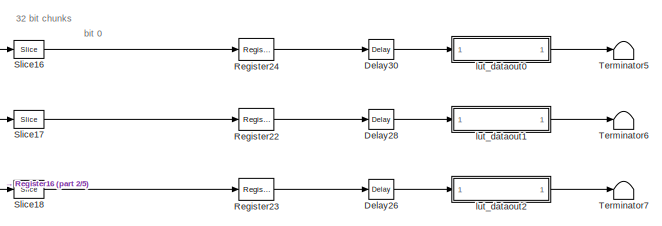
[diagram: root canvas - part 1/5, top right region]
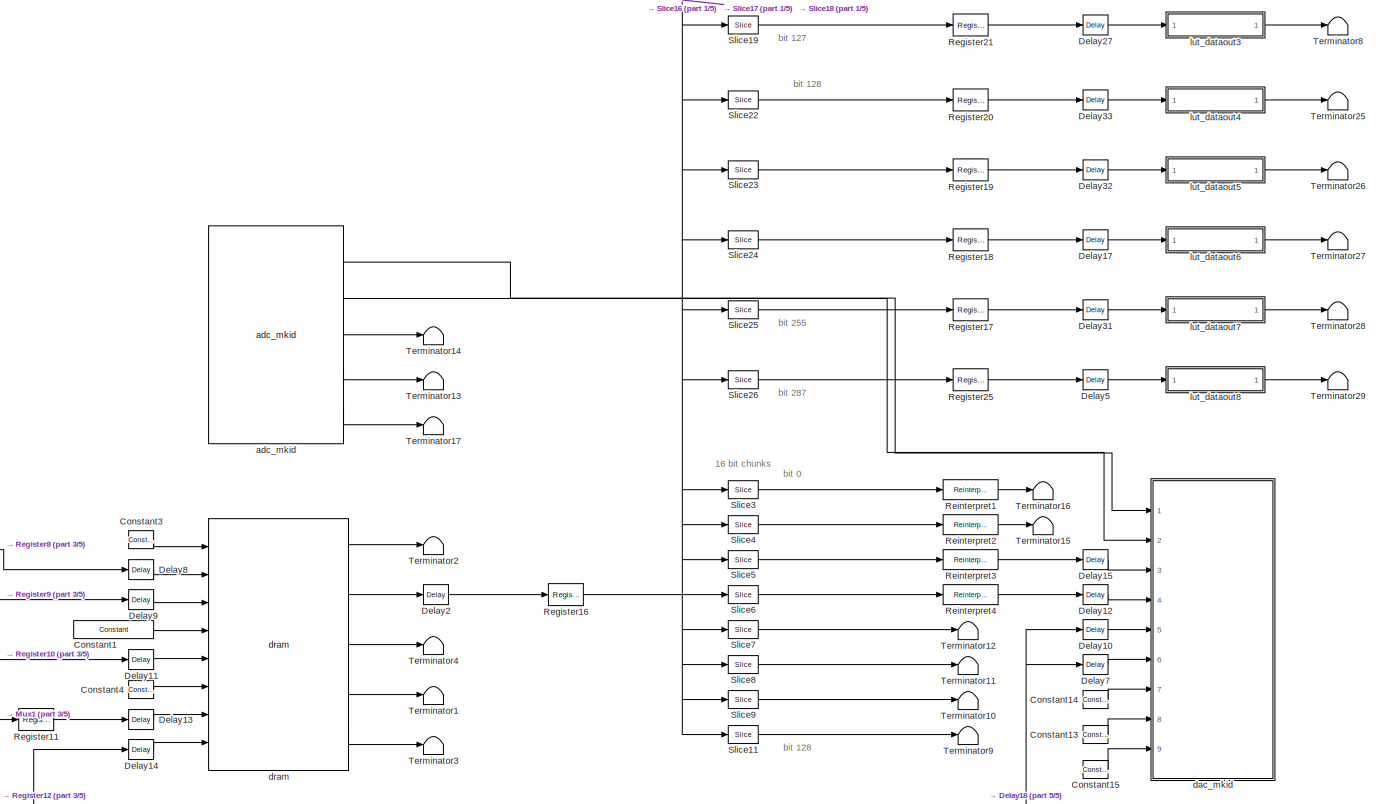
[diagram: root canvas - part 2/5, middle right region]
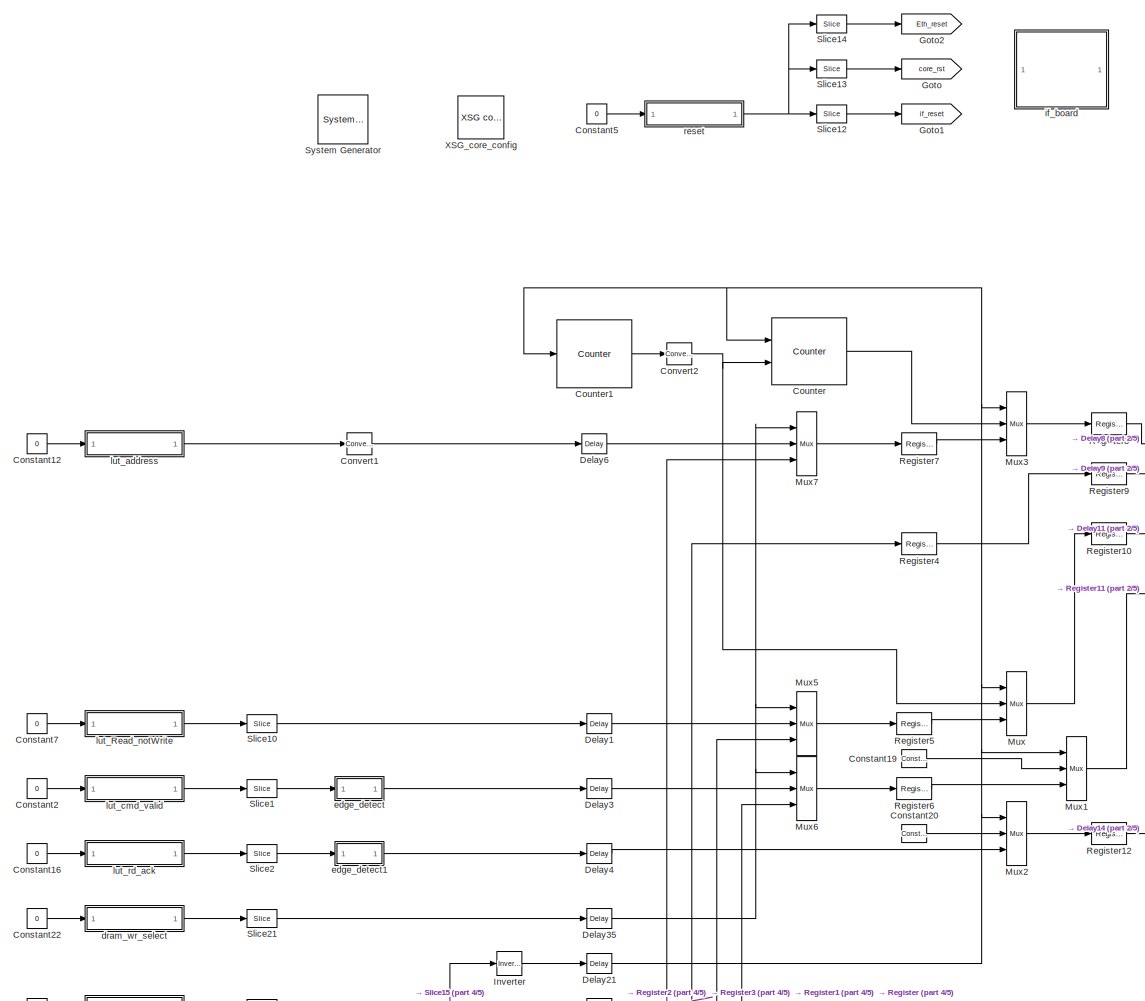
[diagram: root canvas - part 3/5, central region]
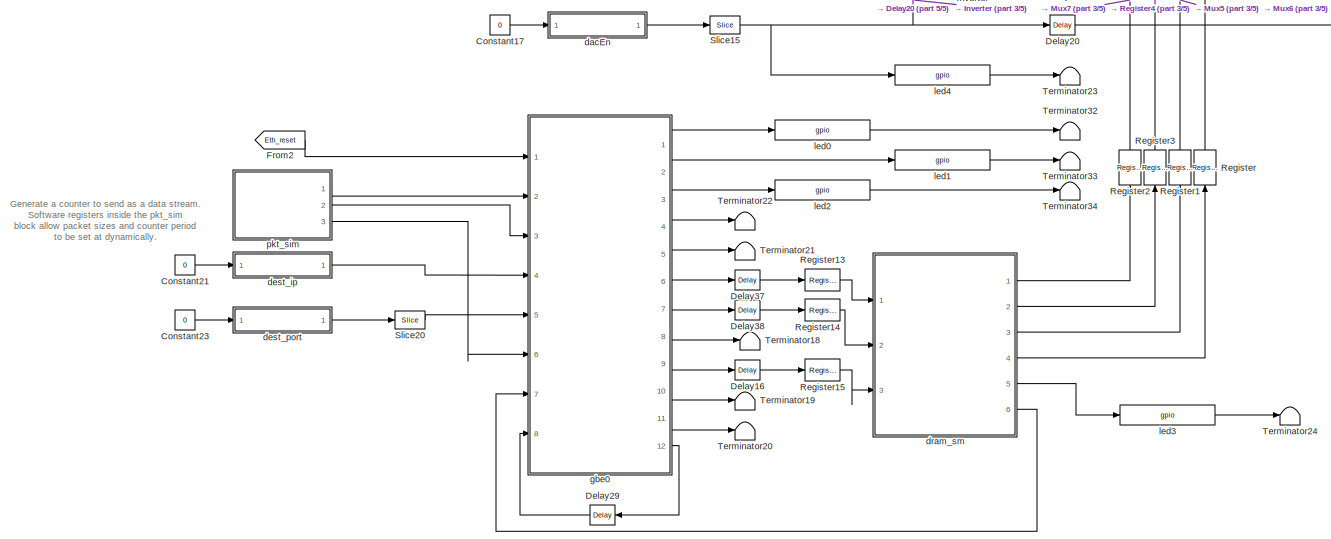
[diagram: root canvas - part 4/5, bottom left region]
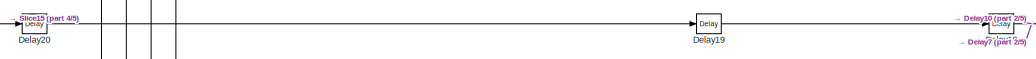
[diagram: root canvas - part 5/5, bottom center region]
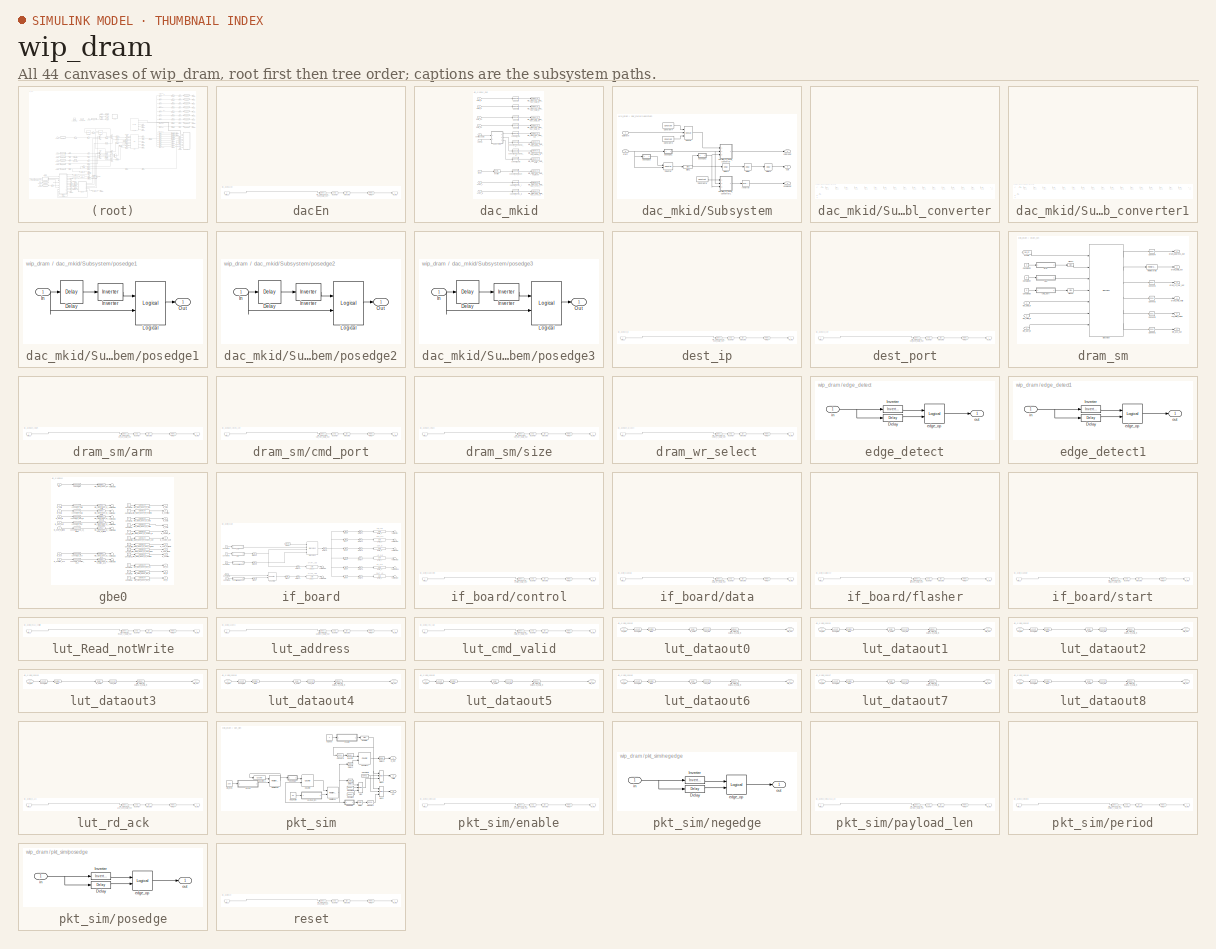
[diagram: thumbnail index - all 44 canvases of the model, root first then tree order]
MODEL wip_dram
KIND model
BLOCK [Reference]  System Generator  REF=xbsIndex_r4/ System Generator
  AttributesFormatString = System\\nGenerator
  Impl_file = ISE Defaults
  Ports = []
  SID = 4488
  SourceBlock = xbsIndex_r4/ System Generator
  SourceType = Xilinx System Generator Block
  Synth_file = XST Defaults
  Tag = genX
  UserData = DataTag0
  UserDataPersistent = on
  block_type = sysgen
  clock_wrapper = Clock Enables
  core_generation = According to Block Masks
  dbl_ovrd = According to Block Masks
  dcm_input_clock_period = 100
  deprecated_control = off
  directory = ./wip_dram/sysgen
  eval_field = 0
  has_advanced_control = 0
  incr_netlist = off
  infoedit = System Generator
  package = ff1759
  part = xc6vsx475t
  proj_type = Project Navigator
  run_coregen = off
  sg_icon_stat = 50,49,0,0,token,white,0,58c5b5770fe5f7c311f53dbc6e73f0f6,right,,[ ],[ ]
  sg_mask_display = fprintf('','COMMENT: begin icon graphics');\npatch([0 50 50 0 0 ],[0 0 49 49 0 ],[1 1 1 ]);\npatch([1.6375 16.81 27.31 37.81 48.31 27.31 12.1375 1.6375 ],[35.655 35.655 46.155 35.655 46.155 46.155 46.155 35.655 ],[0.933333 0.203922 0.141176 ]);\npatch([12.1375 27.31 16.81 1.6375 12.1375 ],[25.155 25.155 35.655 35.655 25.155 ],[0.698039 0.0313725 0.219608 ]);\npatch([1.6375 16.81 27.31 12.1375 1.63...<+335ch>
  sggui_pos = 941,177,464,463
  simulink_period = 1
  speed = -1
  synthesis_tool = XST
  sysclk_period = 3.9062
  testbench = off
  trim_vbits = Everywhere in SubSystem
  xilinxfamily = virtex6
BLOCK [Reference] Constant1  REF=xbsIndex_r4/Constant
  Ports = [0, 1]
  SID = 4950
  SourceBlock = xbsIndex_r4/Constant
  SourceType = Xilinx Constant Block Block
  arith_type = Unsigned
  bin_pt = 0
  block_type = constant
  block_version = 10.1.3
  carry = CIN
  const = 2^36-1
  dbl_ovrd = off
  dsp48_infoedit = The use of this block for DSP48 instructions is deprecated.  Please use the Opmode block.
  equ = P=C
  exp_width = 8
  explicit_period = on
  frac_width = 24
  gui_display_data_type = Fixed-point
  has_advanced_control = 0
  inp1 = P
  inp2 = PCIN>>17
  n_bits = 36
  opr = +
  opselect = C
  period = 1
  preci_type = Single
  sg_icon_stat = 80,18,0,1,white,blue,0,987a866f,right,,[ ],[ ]
  sg_mask_display = fprintf('','COMMENT: begin icon graphics');\npatch([0 80 80 0 0 ],[0 0 18 18 0 ],[0.77 0.82 0.91 ]);\nplot([0 80 80 0 0 ],[0 0 18 18 0 ]);\npatch([35.55 38.44 40.44 42.44 44.44 40.44 37.55 35.55 ],[11.22 11.22 13.22 11.22 13.22 13.22 13.22 11.22 ],[1 1 1 ]);\npatch([37.55 40.44 38.44 35.55 37.55 ],[9.22 9.22 11.22 11.22 9.22 ],[0.931 0.946 0.973 ]);\npatch([35.55 38.44 40.44 37.55 35.55 ],[7.22 7....<+322ch>
  sggui_pos = 1969,374,414,463
BLOCK [Constant] Constant12
  SID = 4966
  Value = 0
BLOCK [Reference] Constant13  REF=xbsIndex_r4/Constant
  Ports = [0, 1]
  SID = 4971
  SourceBlock = xbsIndex_r4/Constant
  SourceType = Xilinx Constant Block Block
  arith_type = Unsigned
  bin_pt = 0
  block_type = constant
  block_version = 10.1.3
  carry = CIN
  const = 0
  dbl_ovrd = off
  dsp48_infoedit = The use of this block for DSP48 instructions is deprecated.  Please use the Opmode block.
  equ = P=C
  exp_width = 8
  explicit_period = on
  frac_width = 24
  gui_display_data_type = Fixed-point
  has_advanced_control = 0
  inp1 = P
  inp2 = PCIN>>17
  n_bits = 4
  opr = +
  opselect = C
  period = 1
  preci_type = Single
  sg_icon_stat = 25,18,0,1,white,blue,0,bf4ddd8b,right,,[ ],[ ]
  sg_mask_display = fprintf('','COMMENT: begin icon graphics');\npatch([0 25 25 0 0 ],[0 0 18 18 0 ],[0.77 0.82 0.91 ]);\nplot([0 25 25 0 0 ],[0 0 18 18 0 ]);\npatch([7.55 10.44 12.44 14.44 16.44 12.44 9.55 7.55 ],[11.22 11.22 13.22 11.22 13.22 13.22 13.22 11.22 ],[1 1 1 ]);\npatch([9.55 12.44 10.44 7.55 9.55 ],[9.22 9.22 11.22 11.22 9.22 ],[0.931 0.946 0.973 ]);\npatch([7.55 10.44 12.44 9.55 7.55 ],[7.22 7.22 9.22 9...<+300ch>  <repeated x8 — deduplicated; at blocks: Constant13, Constant14, Constant15, Constant19, Constant20, Constant3, Constant4, Constant6>
  sggui_pos = 49,24,414,463
BLOCK [Reference] Constant14  REF=xbsIndex_r4/Constant
  Ports = [0, 1]
  SID = 4972
  SourceBlock = xbsIndex_r4/Constant
  SourceType = Xilinx Constant Block Block
  arith_type = Boolean
  bin_pt = 0
  block_type = constant
  block_version = 10.1.3
  carry = CIN
  const = 0
  dbl_ovrd = off
  dsp48_infoedit = The use of this block for DSP48 instructions is deprecated.  Please use the Opmode block.
  equ = P=C
  exp_width = 8
  explicit_period = on
  frac_width = 24
  gui_display_data_type = Boolean
  has_advanced_control = 0
  inp1 = P
  inp2 = PCIN>>17
  n_bits = 4
  opr = +
  opselect = C
  period = 1
  preci_type = Single
  sg_icon_stat = 25,18,0,1,white,blue,0,bf4ddd8b,right,,[ ],[ ]
  sggui_pos = 49,24,414,463
BLOCK [Reference] Constant15  REF=xbsIndex_r4/Constant
  Ports = [0, 1]
  SID = 4973
  SourceBlock = xbsIndex_r4/Constant
  SourceType = Xilinx Constant Block Block
  arith_type = Boolean
  bin_pt = 0
  block_type = constant
  block_version = 10.1.3
  carry = CIN
  const = 0
  dbl_ovrd = off
  dsp48_infoedit = The use of this block for DSP48 instructions is deprecated.  Please use the Opmode block.
  equ = P=C
  exp_width = 8
  explicit_period = on
  frac_width = 24
  gui_display_data_type = Boolean
  has_advanced_control = 0
  inp1 = P
  inp2 = PCIN>>17
  n_bits = 1
  opr = +
  opselect = C
  period = 1
  preci_type = Single
  sg_icon_stat = 25,18,0,1,white,blue,0,bf4ddd8b,right,,[ ],[ ]
  sggui_pos = 49,24,414,463
BLOCK [Constant] Constant16
  SID = 4959
  Value = 0
BLOCK [Constant] Constant17
  SID = 5007
  Value = 0
BLOCK [Reference] Constant19  REF=xbsIndex_r4/Constant
  Ports = [0, 1]
  SID = 5019
  SourceBlock = xbsIndex_r4/Constant
  SourceType = Xilinx Constant Block Block
  arith_type = Boolean
  bin_pt = 0
  block_type = constant
  block_version = 10.1.3
  carry = CIN
  const = 1
  dbl_ovrd = off
  dsp48_infoedit = The use of this block for DSP48 instructions is deprecated.  Please use the Opmode block.
  equ = P=C
  exp_width = 8
  explicit_period = on
  frac_width = 24
  gui_display_data_type = Boolean
  has_advanced_control = 0
  inp1 = P
  inp2 = PCIN>>17
  n_bits = 16
  opr = +
  opselect = C
  period = 1
  preci_type = Single
  sg_icon_stat = 25,18,0,1,white,blue,0,1c72b5be,right,,[ ],[ ]
  sggui_pos = 49,24,414,463
BLOCK [Constant] Constant2
  SID = 4960
  Value = 0
BLOCK [Reference] Constant20  REF=xbsIndex_r4/Constant
  Ports = [0, 1]
  SID = 5020
  SourceBlock = xbsIndex_r4/Constant
  SourceType = Xilinx Constant Block Block
  arith_type = Boolean
  bin_pt = 0
  block_type = constant
  block_version = 10.1.3
  carry = CIN
  const = 1
  dbl_ovrd = off
  dsp48_infoedit = The use of this block for DSP48 instructions is deprecated.  Please use the Opmode block.
  equ = P=C
  exp_width = 8
  explicit_period = on
  frac_width = 24
  gui_display_data_type = Boolean
  has_advanced_control = 0
  inp1 = P
  inp2 = PCIN>>17
  n_bits = 16
  opr = +
  opselect = C
  period = 1
  preci_type = Single
  sg_icon_stat = 25,18,0,1,white,blue,0,1c72b5be,right,,[ ],[ ]
  sggui_pos = 49,24,414,463
BLOCK [Constant] Constant21
  SID = 5164
  Value = 0
BLOCK [Constant] Constant22
  SID = 5242
  Value = 0
BLOCK [Constant] Constant23
  SID = 5165
  Value = 0
BLOCK [Reference] Constant3  REF=xbsIndex_r4/Constant
  Ports = [0, 1]
  SID = 4951
  SourceBlock = xbsIndex_r4/Constant
  SourceType = Xilinx Constant Block Block
  arith_type = Boolean
  bin_pt = 0
  block_type = constant
  block_version = 10.1.3
  carry = CIN
  const = 0
  dbl_ovrd = off
  dsp48_infoedit = The use of this block for DSP48 instructions is deprecated.  Please use the Opmode block.
  equ = P=C
  exp_width = 8
  explicit_period = on
  frac_width = 24
  gui_display_data_type = Boolean
  has_advanced_control = 0
  inp1 = P
  inp2 = PCIN>>17
  n_bits = 144
  opr = +
  opselect = C
  period = 1
  preci_type = Single
  sg_icon_stat = 25,18,0,1,white,blue,0,bf4ddd8b,right,,[ ],[ ]
  sggui_pos = 49,24,414,463
BLOCK [Reference] Constant4  REF=xbsIndex_r4/Constant
  Ports = [0, 1]
  SID = 4949
  SourceBlock = xbsIndex_r4/Constant
  SourceType = Xilinx Constant Block Block
  arith_type = Unsigned
  bin_pt = 0
  block_type = constant
  block_version = 10.1.3
  carry = CIN
  const = 0
  dbl_ovrd = off
  dsp48_infoedit = The use of this block for DSP48 instructions is deprecated.  Please use the Opmode block.
  equ = P=C
  exp_width = 8
  explicit_period = on
  frac_width = 24
  gui_display_data_type = Fixed-point
  has_advanced_control = 0
  inp1 = P
  inp2 = PCIN>>17
  n_bits = 32
  opr = +
  opselect = C
  period = 1
  preci_type = Single
  sg_icon_stat = 25,18,0,1,white,blue,0,bf4ddd8b,right,,[ ],[ ]
  sggui_pos = 49,24,414,463
BLOCK [Constant] Constant5
  SID = 5173
  Value = 0
BLOCK [Constant] Constant7
  SID = 4961
  Value = 0
BLOCK [Reference] Convert1  REF=xbsIndex_r4/Convert
  Ports = [1, 1]
  SID = 4954
  SourceBlock = xbsIndex_r4/Convert
  SourceType = Xilinx Type Converter Block
  arith_type = Unsigned
  bin_pt = 0
  block_type = convert
  block_version = 11.4
  dbl_ovrd = off
  en = off
  exp_bits = 8
  float_type = Single
  fraction_bits = 24
  gui_display_data_type = Fixed-point
  has_advanced_control = 0
  infoedit = Hardware notes: rounding and saturating require hardware resources; truncating and wrapping do not.
  latency = 0
  n_bits = 32
  overflow = Wrap
  pipeline = off
  quantization = Truncate
  sg_icon_stat = 25,22,1,1,white,blue,0,edca21da,right,,[ ],[ ]
  sg_mask_display = fprintf('','COMMENT: begin icon graphics');\npatch([0 25 25 0 0 ],[0 0 22 22 0 ],[0.77 0.82 0.91 ]);\nplot([0 25 25 0 0 ],[0 0 22 22 0 ]);\npatch([5.325 9.66 12.66 15.66 18.66 12.66 8.325 5.325 ],[14.33 14.33 17.33 14.33 17.33 17.33 17.33 14.33 ],[1 1 1 ]);\npatch([8.325 12.66 9.66 5.325 8.325 ],[11.33 11.33 14.33 14.33 11.33 ],[0.931 0.946 0.973 ]);\npatch([5.325 9.66 12.66 8.325 5.325 ],[8.33 8....<+318ch>  <repeated x7 — deduplicated; at blocks: Convert1, Convert2, Convert3, Convert4, Convert5>
  sggui_pos = 49,26,535,624
  xl_area = [0,0,0,0,0,0,0]
  xl_use_area = off
BLOCK [Reference] Convert2  REF=xbsIndex_r4/Convert
  Ports = [1, 1]
  SID = 5385
  SourceBlock = xbsIndex_r4/Convert
  SourceType = Xilinx Type Converter Block
  arith_type = Boolean
  bin_pt = 0
  block_type = convert
  block_version = 11.4
  dbl_ovrd = off
  en = off
  exp_bits = 8
  float_type = Single
  fraction_bits = 24
  gui_display_data_type = Boolean
  has_advanced_control = 0
  infoedit = Hardware notes: rounding and saturating require hardware resources; truncating and wrapping do not.
  latency = 0
  n_bits = 1
  overflow = Wrap
  pipeline = off
  quantization = Truncate
  sg_icon_stat = 25,22,1,1,white,blue,0,edca21da,right,,[ ],[ ]
  sggui_pos = 49,26,535,624
  xl_area = [0,0,0,0,0,0,0]
  xl_use_area = off
BLOCK [Reference] Counter  REF=xbsIndex_r4/Counter
  Ports = [2, 1]
  SID = 5006
  SourceBlock = xbsIndex_r4/Counter
  SourceType = Xilinx Counter Block
  arith_type = Unsigned
  bin_pt = 0
  block_type = counter
  cnt_by_val = 1
  cnt_to = Inf
  cnt_type = Count Limited
  dbl_ovrd = off
  en = on
  explicit_period = on
  has_advanced_control = 0
  implementation = Fabric
  infoedit = Hardware notes: Free running counters are the least expensive in hardware.  A count limited counter is implemented by combining a counter with a comparator.
  load_pin = off
  n_bits = 16
  operation = Up
  period = 1
  rst = on
  sg_icon_stat = 75,67,2,1,white,blue,0,131a2a7a,right,,[ ],[ ]
  sg_mask_display = fprintf('','COMMENT: begin icon graphics');\npatch([0 75 75 0 0 ],[0 0 67 67 0 ],[0.77 0.82 0.91 ]);\nplot([0 75 75 0 0 ],[0 0 67 67 0 ]);\npatch([16.975 29.98 38.98 47.98 56.98 38.98 25.975 16.975 ],[42.99 42.99 51.99 42.99 51.99 51.99 51.99 42.99 ],[1 1 1 ]);\npatch([25.975 38.98 29.98 16.975 25.975 ],[33.99 33.99 42.99 42.99 33.99 ],[0.931 0.946 0.973 ]);\npatch([16.975 29.98 38.98 25.975 16.97...<+461ch>
  sggui_pos = 49,24,416,716
  start_count = 0
  use_behavioral_HDL = off
  xl_area = [0,0,0,0,0,0,0]
  xl_use_area = off
BLOCK [Reference] Counter1  REF=xbsIndex_r4/Counter
  Ports = [1, 1]
  SID = 5384
  SourceBlock = xbsIndex_r4/Counter
  SourceType = Xilinx Counter Block
  arith_type = Unsigned
  bin_pt = 0
  block_type = counter
  cnt_by_val = 1
  cnt_to = Inf
  cnt_type = Count Limited
  dbl_ovrd = off
  en = off
  explicit_period = on
  has_advanced_control = 0
  implementation = Fabric
  infoedit = Hardware notes: Free running counters are the least expensive in hardware.  A count limited counter is implemented by combining a counter with a comparator.
  load_pin = off
  n_bits = 1
  operation = Up
  period = 1
  rst = on
  sg_icon_stat = 75,68,1,1,white,blue,0,53dad701,right,,[ ],[ ]
  sg_mask_display = fprintf('','COMMENT: begin icon graphics');\npatch([0 75 75 0 0 ],[0 0 68 68 0 ],[0.77 0.82 0.91 ]);\nplot([0 75 75 0 0 ],[0 0 68 68 0 ]);\npatch([16.975 29.98 38.98 47.98 56.98 38.98 25.975 16.975 ],[43.99 43.99 52.99 43.99 52.99 52.99 52.99 43.99 ],[1 1 1 ]);\npatch([25.975 38.98 29.98 16.975 25.975 ],[34.99 34.99 43.99 43.99 34.99 ],[0.931 0.946 0.973 ]);\npatch([16.975 29.98 38.98 25.975 16.97...<+417ch>
  sggui_pos = 49,24,416,716
  start_count = 0
  use_behavioral_HDL = off
  xl_area = [0,0,0,0,0,0,0]
  xl_use_area = off
BLOCK [Reference] Delay1  REF=xbsIndex_r4/Delay
  Ports = [1, 1]
  SID = 4931
  SourceBlock = xbsIndex_r4/Delay
  SourceType = Xilinx Delay Block
  block_type = delay
  block_version = 10.1.3
  dbl_ovrd = off
  en = off
  has_advanced_control = 0
  infoedit = Hardware notes: A delay line is a chain, each link of which is an SRL16 followed by a flip-flop.
  infoeditControl = Selection of Reset will increase slice count due to use of real FFs and instead of SRLs
  latency = 1
  reg_retiming = off
  rst = off
  sg_icon_stat = 25,20,1,1,white,blue,0,07b98262,right,,[ ],[ ]
  sg_mask_display = fprintf('','COMMENT: begin icon graphics');\npatch([0 25 25 0 0 ],[0 0 20 20 0 ],[0.77 0.82 0.91 ]);\nplot([0 25 25 0 0 ],[0 0 20 20 0 ]);\npatch([7.55 10.44 12.44 14.44 16.44 12.44 9.55 7.55 ],[12.22 12.22 14.22 12.22 14.22 14.22 14.22 12.22 ],[1 1 1 ]);\npatch([9.55 12.44 10.44 7.55 9.55 ],[10.22 10.22 12.22 12.22 10.22 ],[0.931 0.946 0.973 ]);\npatch([7.55 10.44 12.44 9.55 7.55 ],[8.22 8.22 10....<+312ch>  <repeated x39 — deduplicated; at blocks: Delay1, Delay10, Delay11, Delay12, Delay13, Delay14, Delay15, Delay16, Delay17, Delay18, Delay19, Delay2, Delay20, Delay21, Delay26, Delay27, +16 more>
  sggui_pos = 1969,286,416,361
  xl_area = [0,0,0,0,0,0,0]
  xl_use_area = off
BLOCK [Reference] Delay10  REF=xbsIndex_r4/Delay
  Ports = [1, 1]
  SID = 4975
  SourceBlock = xbsIndex_r4/Delay
  SourceType = Xilinx Delay Block
  block_type = delay
  block_version = 10.1.3
  dbl_ovrd = off
  en = off
  has_advanced_control = 0
  infoedit = Hardware notes: A delay line is a chain, each link of which is an SRL16 followed by a flip-flop.
  infoeditControl = Selection of Reset will increase slice count due to use of real FFs and instead of SRLs
  latency = 1
  reg_retiming = off
  rst = off
  sg_icon_stat = 25,20,1,1,white,blue,0,07b98262,right,,[ ],[ ]
  sggui_pos = 39,14,416,361
  xl_area = [0,0,0,0,0,0,0]
  xl_use_area = off
BLOCK [Reference] Delay11  REF=xbsIndex_r4/Delay
  Ports = [1, 1]
  SID = 4944
  SourceBlock = xbsIndex_r4/Delay
  SourceType = Xilinx Delay Block
  block_type = delay
  block_version = 10.1.3
  dbl_ovrd = off
  en = off
  has_advanced_control = 0
  infoedit = Hardware notes: A delay line is a chain, each link of which is an SRL16 followed by a flip-flop.
  infoeditControl = Selection of Reset will increase slice count due to use of real FFs and instead of SRLs
  latency = 1
  reg_retiming = off
  rst = off
  sg_icon_stat = 25,20,1,1,white,blue,0,07b98262,right,,[ ],[ ]
  sggui_pos = 49,24,416,361
  xl_area = [0,0,0,0,0,0,0]
  xl_use_area = off
BLOCK [Reference] Delay12  REF=xbsIndex_r4/Delay
  Ports = [1, 1]
  SID = 4976
  SourceBlock = xbsIndex_r4/Delay
  SourceType = Xilinx Delay Block
  block_type = delay
  block_version = 10.1.3
  dbl_ovrd = off
  en = off
  has_advanced_control = 0
  infoedit = Hardware notes: A delay line is a chain, each link of which is an SRL16 followed by a flip-flop.
  infoeditControl = Selection of Reset will increase slice count due to use of real FFs and instead of SRLs
  latency = 1
  reg_retiming = off
  rst = off
  sg_icon_stat = 25,20,1,1,white,blue,0,07b98262,right,,[ ],[ ]
  sggui_pos = 49,24,416,361
  xl_area = [0,0,0,0,0,0,0]
  xl_use_area = off
BLOCK [Reference] Delay13  REF=xbsIndex_r4/Delay
  Ports = [1, 1]
  SID = 4946
  SourceBlock = xbsIndex_r4/Delay
  SourceType = Xilinx Delay Block
  block_type = delay
  block_version = 10.1.3
  dbl_ovrd = off
  en = off
  has_advanced_control = 0
  infoedit = Hardware notes: A delay line is a chain, each link of which is an SRL16 followed by a flip-flop.
  infoeditControl = Selection of Reset will increase slice count due to use of real FFs and instead of SRLs
  latency = 1
  reg_retiming = off
  rst = off
  sg_icon_stat = 25,20,1,1,white,blue,0,07b98262,right,,[ ],[ ]
  sggui_pos = 49,24,416,361
  xl_area = [0,0,0,0,0,0,0]
  xl_use_area = off
BLOCK [Reference] Delay14  REF=xbsIndex_r4/Delay
  Ports = [1, 1]
  SID = 4947
  SourceBlock = xbsIndex_r4/Delay
  SourceType = Xilinx Delay Block
  block_type = delay
  block_version = 10.1.3
  dbl_ovrd = off
  en = off
  has_advanced_control = 0
  infoedit = Hardware notes: A delay line is a chain, each link of which is an SRL16 followed by a flip-flop.
  infoeditControl = Selection of Reset will increase slice count due to use of real FFs and instead of SRLs
  latency = 1
  reg_retiming = off
  rst = off
  sg_icon_stat = 25,20,1,1,white,blue,0,07b98262,right,,[ ],[ ]
  sggui_pos = 49,24,416,361
  xl_area = [0,0,0,0,0,0,0]
  xl_use_area = off
BLOCK [Reference] Delay15  REF=xbsIndex_r4/Delay
  Ports = [1, 1]
  SID = 4977
  SourceBlock = xbsIndex_r4/Delay
  SourceType = Xilinx Delay Block
  block_type = delay
  block_version = 10.1.3
  dbl_ovrd = off
  en = off
  has_advanced_control = 0
  infoedit = Hardware notes: A delay line is a chain, each link of which is an SRL16 followed by a flip-flop.
  infoeditControl = Selection of Reset will increase slice count due to use of real FFs and instead of SRLs
  latency = 1
  reg_retiming = off
  rst = off
  sg_icon_stat = 25,20,1,1,white,blue,0,07b98262,right,,[ ],[ ]
  sggui_pos = 49,24,416,361
  xl_area = [0,0,0,0,0,0,0]
  xl_use_area = off
BLOCK [Reference] Delay16  REF=xbsIndex_r4/Delay
  Ports = [1, 1]
  SID = 5330
  SourceBlock = xbsIndex_r4/Delay
  SourceType = Xilinx Delay Block
  block_type = delay
  block_version = 10.1.3
  dbl_ovrd = off
  en = off
  has_advanced_control = 0
  infoedit = Hardware notes: A delay line is a chain, each link of which is an SRL16 followed by a flip-flop.
  infoeditControl = Selection of Reset will increase slice count due to use of real FFs and instead of SRLs
  latency = 1
  reg_retiming = off
  rst = off
  sg_icon_stat = 25,20,1,1,white,blue,0,07b98262,right,,[ ],[ ]
  sggui_pos = 49,24,416,361
  xl_area = [0,0,0,0,0,0,0]
  xl_use_area = off
BLOCK [Reference] Delay17  REF=xbsIndex_r4/Delay
  Ports = [1, 1]
  SID = 5331
  SourceBlock = xbsIndex_r4/Delay
  SourceType = Xilinx Delay Block
  block_type = delay
  block_version = 10.1.3
  dbl_ovrd = off
  en = off
  has_advanced_control = 0
  infoedit = Hardware notes: A delay line is a chain, each link of which is an SRL16 followed by a flip-flop.
  infoeditControl = Selection of Reset will increase slice count due to use of real FFs and instead of SRLs
  latency = 1
  reg_retiming = off
  rst = off
  sg_icon_stat = 25,20,1,1,white,blue,0,07b98262,right,,[ ],[ ]
  sggui_pos = 49,24,416,361
  xl_area = [0,0,0,0,0,0,0]
  xl_use_area = off
BLOCK [Reference] Delay18  REF=xbsIndex_r4/Delay
  Ports = [1, 1]
  SID = 5013
  SourceBlock = xbsIndex_r4/Delay
  SourceType = Xilinx Delay Block
  block_type = delay
  block_version = 10.1.3
  dbl_ovrd = off
  en = off
  has_advanced_control = 0
  infoedit = Hardware notes: A delay line is a chain, each link of which is an SRL16 followed by a flip-flop.
  infoeditControl = Selection of Reset will increase slice count due to use of real FFs and instead of SRLs
  latency = 1
  reg_retiming = off
  rst = off
  sg_icon_stat = 25,20,1,1,white,blue,0,07b98262,right,,[ ],[ ]
  sggui_pos = 49,24,416,361
  xl_area = [0,0,0,0,0,0,0]
  xl_use_area = off
BLOCK [Reference] Delay19  REF=xbsIndex_r4/Delay
  Ports = [1, 1]
  SID = 5014
  SourceBlock = xbsIndex_r4/Delay
  SourceType = Xilinx Delay Block
  block_type = delay
  block_version = 10.1.3
  dbl_ovrd = off
  en = off
  has_advanced_control = 0
  infoedit = Hardware notes: A delay line is a chain, each link of which is an SRL16 followed by a flip-flop.
  infoeditControl = Selection of Reset will increase slice count due to use of real FFs and instead of SRLs
  latency = 1
  reg_retiming = off
  rst = off
  sg_icon_stat = 25,20,1,1,white,blue,0,07b98262,right,,[ ],[ ]
  sggui_pos = 49,24,416,361
  xl_area = [0,0,0,0,0,0,0]
  xl_use_area = off
BLOCK [Reference] Delay2  REF=xbsIndex_r4/Delay
  Ports = [1, 1]
  SID = 4930
  SourceBlock = xbsIndex_r4/Delay
  SourceType = Xilinx Delay Block
  block_type = delay
  block_version = 10.1.3
  dbl_ovrd = off
  en = off
  has_advanced_control = 0
  infoedit = Hardware notes: A delay line is a chain, each link of which is an SRL16 followed by a flip-flop.
  infoeditControl = Selection of Reset will increase slice count due to use of real FFs and instead of SRLs
  latency = 1
  reg_retiming = off
  rst = off
  sg_icon_stat = 25,20,1,1,white,blue,0,07b98262,right,,[ ],[ ]
  sggui_pos = 2335,225,416,361
  xl_area = [0,0,0,0,0,0,0]
  xl_use_area = off
BLOCK [Reference] Delay20  REF=xbsIndex_r4/Delay
  Ports = [1, 1]
  SID = 5015
  SourceBlock = xbsIndex_r4/Delay
  SourceType = Xilinx Delay Block
  block_type = delay
  block_version = 10.1.3
  dbl_ovrd = off
  en = off
  has_advanced_control = 0
  infoedit = Hardware notes: A delay line is a chain, each link of which is an SRL16 followed by a flip-flop.
  infoeditControl = Selection of Reset will increase slice count due to use of real FFs and instead of SRLs
  latency = 1
  reg_retiming = off
  rst = off
  sg_icon_stat = 25,20,1,1,white,blue,0,07b98262,right,,[ ],[ ]
  sggui_pos = 49,24,416,361
  xl_area = [0,0,0,0,0,0,0]
  xl_use_area = off
BLOCK [Reference] Delay21  REF=xbsIndex_r4/Delay
  Ports = [1, 1]
  SID = 5016
  SourceBlock = xbsIndex_r4/Delay
  SourceType = Xilinx Delay Block
  block_type = delay
  block_version = 10.1.3
  dbl_ovrd = off
  en = off
  has_advanced_control = 0
  infoedit = Hardware notes: A delay line is a chain, each link of which is an SRL16 followed by a flip-flop.
  infoeditControl = Selection of Reset will increase slice count due to use of real FFs and instead of SRLs
  latency = 1
  reg_retiming = off
  rst = off
  sg_icon_stat = 25,20,1,1,white,blue,0,07b98262,right,,[ ],[ ]
  sggui_pos = 49,24,416,361
  xl_area = [0,0,0,0,0,0,0]
  xl_use_area = off
BLOCK [Reference] Delay26  REF=xbsIndex_r4/Delay
  Ports = [1, 1]
  SID = 5032
  SourceBlock = xbsIndex_r4/Delay
  SourceType = Xilinx Delay Block
  block_type = delay
  block_version = 10.1.3
  dbl_ovrd = off
  en = off
  has_advanced_control = 0
  infoedit = Hardware notes: A delay line is a chain, each link of which is an SRL16 followed by a flip-flop.
  infoeditControl = Selection of Reset will increase slice count due to use of real FFs and instead of SRLs
  latency = 1
  reg_retiming = off
  rst = off
  sg_icon_stat = 25,20,1,1,white,blue,0,07b98262,right,,[ ],[ ]
  sggui_pos = 49,24,416,361
  xl_area = [0,0,0,0,0,0,0]
  xl_use_area = off
BLOCK [Reference] Delay27  REF=xbsIndex_r4/Delay
  Ports = [1, 1]
  SID = 5038
  SourceBlock = xbsIndex_r4/Delay
  SourceType = Xilinx Delay Block
  block_type = delay
  block_version = 10.1.3
  dbl_ovrd = off
  en = off
  has_advanced_control = 0
  infoedit = Hardware notes: A delay line is a chain, each link of which is an SRL16 followed by a flip-flop.
  infoeditControl = Selection of Reset will increase slice count due to use of real FFs and instead of SRLs
  latency = 1
  reg_retiming = off
  rst = off
  sg_icon_stat = 25,20,1,1,white,blue,0,07b98262,right,,[ ],[ ]
  sggui_pos = 49,24,416,361
  xl_area = [0,0,0,0,0,0,0]
  xl_use_area = off
BLOCK [Reference] Delay28  REF=xbsIndex_r4/Delay
  Ports = [1, 1]
  SID = 5034
  SourceBlock = xbsIndex_r4/Delay
  SourceType = Xilinx Delay Block
  block_type = delay
  block_version = 10.1.3
  dbl_ovrd = off
  en = off
  has_advanced_control = 0
  infoedit = Hardware notes: A delay line is a chain, each link of which is an SRL16 followed by a flip-flop.
  infoeditControl = Selection of Reset will increase slice count due to use of real FFs and instead of SRLs
  latency = 1
  reg_retiming = off
  rst = off
  sg_icon_stat = 25,20,1,1,white,blue,0,07b98262,right,,[ ],[ ]
  sggui_pos = 49,24,416,361
  xl_area = [0,0,0,0,0,0,0]
  xl_use_area = off
BLOCK [Reference] Delay29  REF=xbsIndex_r4/Delay
  Ports = [1, 1]
  SID = 5227
  SourceBlock = xbsIndex_r4/Delay
  SourceType = Xilinx Delay Block
  block_type = delay
  block_version = 10.1.3
  dbl_ovrd = off
  en = off
  has_advanced_control = 0
  infoedit = Hardware notes: A delay line is a chain, each link of which is an SRL16 followed by a flip-flop.
  infoeditControl = Selection of Reset will increase slice count due to use of real FFs and instead of SRLs
  latency = 1
  reg_retiming = off
  rst = off
  sg_icon_stat = 25,20,1,1,white,blue,0,07b98262,left,,[ ],[ ]
  sggui_pos = 49,24,416,361
  xl_area = [0,0,0,0,0,0,0]
  xl_use_area = off
BLOCK [Reference] Delay3  REF=xbsIndex_r4/Delay
  Ports = [1, 1]
  SID = 4932
  SourceBlock = xbsIndex_r4/Delay
  SourceType = Xilinx Delay Block
  block_type = delay
  block_version = 10.1.3
  dbl_ovrd = off
  en = off
  has_advanced_control = 0
  infoedit = Hardware notes: A delay line is a chain, each link of which is an SRL16 followed by a flip-flop.
  infoeditControl = Selection of Reset will increase slice count due to use of real FFs and instead of SRLs
  latency = 1
  reg_retiming = off
  rst = off
  sg_icon_stat = 25,20,1,1,white,blue,0,07b98262,right,,[ ],[ ]
  sggui_pos = 49,24,416,361
  xl_area = [0,0,0,0,0,0,0]
  xl_use_area = off
BLOCK [Reference] Delay30  REF=xbsIndex_r4/Delay
  Ports = [1, 1]
  SID = 5036
  SourceBlock = xbsIndex_r4/Delay
  SourceType = Xilinx Delay Block
  block_type = delay
  block_version = 10.1.3
  dbl_ovrd = off
  en = off
  has_advanced_control = 0
  infoedit = Hardware notes: A delay line is a chain, each link of which is an SRL16 followed by a flip-flop.
  infoeditControl = Selection of Reset will increase slice count due to use of real FFs and instead of SRLs
  latency = 1
  reg_retiming = off
  rst = off
  sg_icon_stat = 25,20,1,1,white,blue,0,07b98262,right,,[ ],[ ]
  sggui_pos = 49,24,416,361
  xl_area = [0,0,0,0,0,0,0]
  xl_use_area = off
BLOCK [Reference] Delay31  REF=xbsIndex_r4/Delay
  Ports = [1, 1]
  SID = 5332
  SourceBlock = xbsIndex_r4/Delay
  SourceType = Xilinx Delay Block
  block_type = delay
  block_version = 10.1.3
  dbl_ovrd = off
  en = off
  has_advanced_control = 0
  infoedit = Hardware notes: A delay line is a chain, each link of which is an SRL16 followed by a flip-flop.
  infoeditControl = Selection of Reset will increase slice count due to use of real FFs and instead of SRLs
  latency = 1
  reg_retiming = off
  rst = off
  sg_icon_stat = 25,20,1,1,white,blue,0,07b98262,right,,[ ],[ ]
  sggui_pos = 49,24,416,361
  xl_area = [0,0,0,0,0,0,0]
  xl_use_area = off
BLOCK [Reference] Delay32  REF=xbsIndex_r4/Delay
  Ports = [1, 1]
  SID = 5333
  SourceBlock = xbsIndex_r4/Delay
  SourceType = Xilinx Delay Block
  block_type = delay
  block_version = 10.1.3
  dbl_ovrd = off
  en = off
  has_advanced_control = 0
  infoedit = Hardware notes: A delay line is a chain, each link of which is an SRL16 followed by a flip-flop.
  infoeditControl = Selection of Reset will increase slice count due to use of real FFs and instead of SRLs
  latency = 1
  reg_retiming = off
  rst = off
  sg_icon_stat = 25,20,1,1,white,blue,0,07b98262,right,,[ ],[ ]
  sggui_pos = 49,24,416,361
  xl_area = [0,0,0,0,0,0,0]
  xl_use_area = off
BLOCK [Reference] Delay33  REF=xbsIndex_r4/Delay
  Ports = [1, 1]
  SID = 5334
  SourceBlock = xbsIndex_r4/Delay
  SourceType = Xilinx Delay Block
  block_type = delay
  block_version = 10.1.3
  dbl_ovrd = off
  en = off
  has_advanced_control = 0
  infoedit = Hardware notes: A delay line is a chain, each link of which is an SRL16 followed by a flip-flop.
  infoeditControl = Selection of Reset will increase slice count due to use of real FFs and instead of SRLs
  latency = 1
  reg_retiming = off
  rst = off
  sg_icon_stat = 25,20,1,1,white,blue,0,07b98262,right,,[ ],[ ]
  sggui_pos = 49,24,416,361
  xl_area = [0,0,0,0,0,0,0]
  xl_use_area = off
BLOCK [Reference] Delay35  REF=xbsIndex_r4/Delay
  Ports = [1, 1]
  SID = 5255
  SourceBlock = xbsIndex_r4/Delay
  SourceType = Xilinx Delay Block
  block_type = delay
  block_version = 10.1.3
  dbl_ovrd = off
  en = off
  has_advanced_control = 0
  infoedit = Hardware notes: A delay line is a chain, each link of which is an SRL16 followed by a flip-flop.
  infoeditControl = Selection of Reset will increase slice count due to use of real FFs and instead of SRLs
  latency = 1
  reg_retiming = off
  rst = off
  sg_icon_stat = 25,20,1,1,white,blue,0,07b98262,right,,[ ],[ ]
  sggui_pos = 49,24,416,361
  xl_area = [0,0,0,0,0,0,0]
  xl_use_area = off
BLOCK [Reference] Delay37  REF=xbsIndex_r4/Delay
  Ports = [1, 1]
  SID = 5303
  SourceBlock = xbsIndex_r4/Delay
  SourceType = Xilinx Delay Block
  block_type = delay
  block_version = 10.1.3
  dbl_ovrd = off
  en = off
  has_advanced_control = 0
  infoedit = Hardware notes: A delay line is a chain, each link of which is an SRL16 followed by a flip-flop.
  infoeditControl = Selection of Reset will increase slice count due to use of real FFs and instead of SRLs
  latency = 1
  reg_retiming = off
  rst = off
  sg_icon_stat = 25,20,1,1,white,blue,0,07b98262,right,,[ ],[ ]
  sggui_pos = 49,24,416,361
  xl_area = [0,0,0,0,0,0,0]
  xl_use_area = off
BLOCK [Reference] Delay38  REF=xbsIndex_r4/Delay
  Ports = [1, 1]
  SID = 5304
  SourceBlock = xbsIndex_r4/Delay
  SourceType = Xilinx Delay Block
  block_type = delay
  block_version = 10.1.3
  dbl_ovrd = off
  en = off
  has_advanced_control = 0
  infoedit = Hardware notes: A delay line is a chain, each link of which is an SRL16 followed by a flip-flop.
  infoeditControl = Selection of Reset will increase slice count due to use of real FFs and instead of SRLs
  latency = 1
  reg_retiming = off
  rst = off
  sg_icon_stat = 25,20,1,1,white,blue,0,07b98262,right,,[ ],[ ]
  sggui_pos = 49,24,416,361
  xl_area = [0,0,0,0,0,0,0]
  xl_use_area = off
BLOCK [Reference] Delay4  REF=xbsIndex_r4/Delay
  Ports = [1, 1]
  SID = 4933
  SourceBlock = xbsIndex_r4/Delay
  SourceType = Xilinx Delay Block
  block_type = delay
  block_version = 10.1.3
  dbl_ovrd = off
  en = off
  has_advanced_control = 0
  infoedit = Hardware notes: A delay line is a chain, each link of which is an SRL16 followed by a flip-flop.
  infoeditControl = Selection of Reset will increase slice count due to use of real FFs and instead of SRLs
  latency = 1
  reg_retiming = off
  rst = off
  sg_icon_stat = 25,20,1,1,white,blue,0,07b98262,right,,[ ],[ ]
  sggui_pos = 49,24,416,361
  xl_area = [0,0,0,0,0,0,0]
  xl_use_area = off
BLOCK [Reference] Delay5  REF=xbsIndex_r4/Delay
  Ports = [1, 1]
  SID = 5370
  SourceBlock = xbsIndex_r4/Delay
  SourceType = Xilinx Delay Block
  block_type = delay
  block_version = 10.1.3
  dbl_ovrd = off
  en = off
  has_advanced_control = 0
  infoedit = Hardware notes: A delay line is a chain, each link of which is an SRL16 followed by a flip-flop.
  infoeditControl = Selection of Reset will increase slice count due to use of real FFs and instead of SRLs
  latency = 1
  reg_retiming = off
  rst = off
  sg_icon_stat = 25,20,1,1,white,blue,0,07b98262,right,,[ ],[ ]
  sggui_pos = 49,24,416,361
  xl_area = [0,0,0,0,0,0,0]
  xl_use_area = off
BLOCK [Reference] Delay6  REF=xbsIndex_r4/Delay
  Ports = [1, 1]
  SID = 4935
  SourceBlock = xbsIndex_r4/Delay
  SourceType = Xilinx Delay Block
  block_type = delay
  block_version = 10.1.3
  dbl_ovrd = off
  en = off
  has_advanced_control = 0
  infoedit = Hardware notes: A delay line is a chain, each link of which is an SRL16 followed by a flip-flop.
  infoeditControl = Selection of Reset will increase slice count due to use of real FFs and instead of SRLs
  latency = 1
  reg_retiming = off
  rst = off
  sg_icon_stat = 25,20,1,1,white,blue,0,07b98262,right,,[ ],[ ]
  sggui_pos = 49,24,416,361
  xl_area = [0,0,0,0,0,0,0]
  xl_use_area = off
BLOCK [Reference] Delay7  REF=xbsIndex_r4/Delay
  Ports = [1, 1]
  SID = 4974
  SourceBlock = xbsIndex_r4/Delay
  SourceType = Xilinx Delay Block
  block_type = delay
  block_version = 10.1.3
  dbl_ovrd = off
  en = off
  has_advanced_control = 0
  infoedit = Hardware notes: A delay line is a chain, each link of which is an SRL16 followed by a flip-flop.
  infoeditControl = Selection of Reset will increase slice count due to use of real FFs and instead of SRLs
  latency = 1
  reg_retiming = off
  rst = off
  sg_icon_stat = 25,20,1,1,white,blue,0,07b98262,right,,[ ],[ ]
  sggui_pos = 49,24,416,361
  xl_area = [0,0,0,0,0,0,0]
  xl_use_area = off
BLOCK [Reference] Delay8  REF=xbsIndex_r4/Delay
  Ports = [1, 1]
  SID = 4941
  SourceBlock = xbsIndex_r4/Delay
  SourceType = Xilinx Delay Block
  block_type = delay
  block_version = 10.1.3
  dbl_ovrd = off
  en = off
  has_advanced_control = 0
  infoedit = Hardware notes: A delay line is a chain, each link of which is an SRL16 followed by a flip-flop.
  infoeditControl = Selection of Reset will increase slice count due to use of real FFs and instead of SRLs
  latency = 1
  reg_retiming = off
  rst = off
  sg_icon_stat = 25,20,1,1,white,blue,0,07b98262,right,,[ ],[ ]
  sggui_pos = 49,24,416,361
  xl_area = [0,0,0,0,0,0,0]
  xl_use_area = off
BLOCK [Reference] Delay9  REF=xbsIndex_r4/Delay
  Ports = [1, 1]
  SID = 4942
  SourceBlock = xbsIndex_r4/Delay
  SourceType = Xilinx Delay Block
  block_type = delay
  block_version = 10.1.3
  dbl_ovrd = off
  en = off
  has_advanced_control = 0
  infoedit = Hardware notes: A delay line is a chain, each link of which is an SRL16 followed by a flip-flop.
  infoeditControl = Selection of Reset will increase slice count due to use of real FFs and instead of SRLs
  latency = 1
  reg_retiming = off
  rst = off
  sg_icon_stat = 25,20,1,1,white,blue,0,07b98262,right,,[ ],[ ]
  sggui_pos = 49,24,416,361
  xl_area = [0,0,0,0,0,0,0]
  xl_use_area = off
BLOCK [From] From2
  GotoTag = Eth_reset
  SID = 5167
  TagVisibility = global
BLOCK [Goto] Goto
  GotoTag = core_rst
  SID = 4618
  TagVisibility = global
BLOCK [Goto] Goto1
  GotoTag = if_reset
  SID = 4619
  TagVisibility = global
BLOCK [Goto] Goto2
  GotoTag = Eth_reset
  SID = 4626
  TagVisibility = global
BLOCK [Reference] Inverter  REF=xbsIndex_r4/Inverter
  Ports = [1, 1]
  SID = 5017
  SourceBlock = xbsIndex_r4/Inverter
  SourceType = Xilinx Inverter Block
  block_type = inv
  block_version = 11.4
  dbl_ovrd = off
  en = off
  has_advanced_control = 0
  infoedit = Bitwise logical negation (one's complement) operator.
  latency = 0
  sg_icon_stat = 25,24,1,1,white,blue,0,267846e5,right,,[ ],[ ]
  sg_mask_display = fprintf('','COMMENT: begin icon graphics');\npatch([0 25 25 0 0 ],[0 0 24 24 0 ],[0.77 0.82 0.91 ]);\nplot([0 25 25 0 0 ],[0 0 24 24 0 ]);\npatch([5.325 9.66 12.66 15.66 18.66 12.66 8.325 5.325 ],[15.33 15.33 18.33 15.33 18.33 18.33 18.33 15.33 ],[1 1 1 ]);\npatch([8.325 12.66 9.66 5.325 8.325 ],[12.33 12.33 15.33 15.33 12.33 ],[0.931 0.946 0.973 ]);\npatch([5.325 9.66 12.66 8.325 5.325 ],[9.33 9....<+302ch>
  sggui_pos = 49,24,416,314
  xl_area = [0,0,0,0,0,0,0]
  xl_use_area = off
BLOCK [Reference] Mux  REF=xbsIndex_r4/Mux
  Ports = [3, 1]
  SID = 4968
  SourceBlock = xbsIndex_r4/Mux
  SourceType = Xilinx Bus Multiplexer Block
  arith_type = Unsigned
  bin_pt = 14
  block_type = mux
  dbl_ovrd = off
  en = off
  has_advanced_control = 0
  inputs = 2
  latency = 0
  n_bits = 16
  overflow = Wrap
  precision = Full
  quantization = Truncate
  sg_icon_stat = 20,64,3,1,white,blue,3,eb98d690,right,,[ ],[ ]
  sg_mask_display = fprintf('','COMMENT: begin icon graphics');\npatch([0 20 20 0 0 ],[0 9.14286 54.8571 64 0 ],[0.77 0.82 0.91 ]);\nplot([0 20 20 0 0 ],[0 9.14286 54.8571 64 0 ]);\npatch([5.55 8.44 10.44 12.44 14.44 10.44 7.55 5.55 ],[34.22 34.22 36.22 34.22 36.22 36.22 36.22 34.22 ],[1 1 1 ]);\npatch([7.55 10.44 8.44 5.55 7.55 ],[32.22 32.22 34.22 34.22 32.22 ],[0.931 0.946 0.973 ]);\npatch([5.55 8.44 10.44 7.55 5....<+469ch>  <repeated x7 — deduplicated; at blocks: Mux, Mux1, Mux2, Mux3, Mux5, Mux6, Mux7>
  sggui_pos = -1,-1,-1,-1
  xl_area = [0,0,0,0,0,0,0]
  xl_use_area = off
BLOCK [Reference] Mux1  REF=xbsIndex_r4/Mux
  Ports = [3, 1]
  SID = 5010
  SourceBlock = xbsIndex_r4/Mux
  SourceType = Xilinx Bus Multiplexer Block
  arith_type = Unsigned
  bin_pt = 14
  block_type = mux
  dbl_ovrd = off
  en = off
  has_advanced_control = 0
  inputs = 2
  latency = 0
  n_bits = 16
  overflow = Wrap
  precision = Full
  quantization = Truncate
  sg_icon_stat = 20,64,3,1,white,blue,3,eb98d690,right,,[ ],[ ]
  sggui_pos = -1,-1,-1,-1
  xl_area = [0,0,0,0,0,0,0]
  xl_use_area = off
BLOCK [Reference] Mux2  REF=xbsIndex_r4/Mux
  Ports = [3, 1]
  SID = 5011
  SourceBlock = xbsIndex_r4/Mux
  SourceType = Xilinx Bus Multiplexer Block
  arith_type = Unsigned
  bin_pt = 14
  block_type = mux
  dbl_ovrd = off
  en = off
  has_advanced_control = 0
  inputs = 2
  latency = 0
  n_bits = 16
  overflow = Wrap
  precision = Full
  quantization = Truncate
  sg_icon_stat = 20,64,3,1,white,blue,3,eb98d690,right,,[ ],[ ]
  sggui_pos = -1,-1,-1,-1
  xl_area = [0,0,0,0,0,0,0]
  xl_use_area = off
BLOCK [Reference] Mux3  REF=xbsIndex_r4/Mux
  Ports = [3, 1]
  SID = 5012
  SourceBlock = xbsIndex_r4/Mux
  SourceType = Xilinx Bus Multiplexer Block
  arith_type = Unsigned
  bin_pt = 14
  block_type = mux
  dbl_ovrd = off
  en = off
  has_advanced_control = 0
  inputs = 2
  latency = 0
  n_bits = 16
  overflow = Wrap
  precision = Full
  quantization = Truncate
  sg_icon_stat = 20,64,3,1,white,blue,3,eb98d690,right,,[ ],[ ]
  sggui_pos = -1,-1,-1,-1
  xl_area = [0,0,0,0,0,0,0]
  xl_use_area = off
BLOCK [Reference] Mux5  REF=xbsIndex_r4/Mux
  Ports = [3, 1]
  SID = 5246
  SourceBlock = xbsIndex_r4/Mux
  SourceType = Xilinx Bus Multiplexer Block
  arith_type = Unsigned
  bin_pt = 14
  block_type = mux
  dbl_ovrd = off
  en = off
  has_advanced_control = 0
  inputs = 2
  latency = 0
  n_bits = 16
  overflow = Wrap
  precision = Full
  quantization = Truncate
  sg_icon_stat = 20,64,3,1,white,blue,3,eb98d690,right,,[ ],[ ]
  sggui_pos = -1,-1,-1,-1
  xl_area = [0,0,0,0,0,0,0]
  xl_use_area = off
BLOCK [Reference] Mux6  REF=xbsIndex_r4/Mux
  Ports = [3, 1]
  SID = 5247
  SourceBlock = xbsIndex_r4/Mux
  SourceType = Xilinx Bus Multiplexer Block
  arith_type = Unsigned
  bin_pt = 14
  block_type = mux
  dbl_ovrd = off
  en = off
  has_advanced_control = 0
  inputs = 2
  latency = 0
  n_bits = 16
  overflow = Wrap
  precision = Full
  quantization = Truncate
  sg_icon_stat = 20,64,3,1,white,blue,3,eb98d690,right,,[ ],[ ]
  sggui_pos = -1,-1,-1,-1
  xl_area = [0,0,0,0,0,0,0]
  xl_use_area = off
BLOCK [Reference] Mux7  REF=xbsIndex_r4/Mux
  Ports = [3, 1]
  SID = 5248
  SourceBlock = xbsIndex_r4/Mux
  SourceType = Xilinx Bus Multiplexer Block
  arith_type = Unsigned
  bin_pt = 14
  block_type = mux
  dbl_ovrd = off
  en = off
  has_advanced_control = 0
  inputs = 2
  latency = 0
  n_bits = 16
  overflow = Wrap
  precision = Full
  quantization = Truncate
  sg_icon_stat = 20,64,3,1,white,blue,3,eb98d690,right,,[ ],[ ]
  sggui_pos = -1,-1,-1,-1
  xl_area = [0,0,0,0,0,0,0]
  xl_use_area = off
BLOCK [Reference] Register  REF=xbsIndex_r4/Register
  Ports = [1, 1]
  SID = 5312
  SourceBlock = xbsIndex_r4/Register
  SourceType = Xilinx Register Block
  block_type = register
  dbl_ovrd = off
  en = off
  has_advanced_control = 0
  init = 0
  rst = off
  sg_icon_stat = 22,35,1,1,white,blue,0,c80657c5,up,,[ ],[ ]
  sg_mask_display = fprintf('','COMMENT: begin icon graphics');\npatch([0 22 22 0 0 ],[0 0 35 35 0 ],[0.77 0.82 0.91 ]);\nplot([0 22 22 0 0 ],[0 0 35 35 0 ]);\npatch([4.325 8.66 11.66 14.66 17.66 11.66 7.325 4.325 ],[20.33 20.33 23.33 20.33 23.33 23.33 23.33 20.33 ],[1 1 1 ]);\npatch([7.325 11.66 8.66 4.325 7.325 ],[17.33 17.33 20.33 20.33 17.33 ],[0.931 0.946 0.973 ]);\npatch([4.325 8.66 11.66 7.325 4.325 ],[14.33 1...<+411ch>  <repeated x4 — deduplicated; at blocks: Register, Register1, Register2, Register3>
  sggui_pos = 2922,520,416,203
  xl_area = [0,0,0,0,0,0,0]
  xl_use_area = off
BLOCK [Reference] Register1  REF=xbsIndex_r4/Register
  Ports = [1, 1]
  SID = 5314
  SourceBlock = xbsIndex_r4/Register
  SourceType = Xilinx Register Block
  block_type = register
  dbl_ovrd = off
  en = off
  has_advanced_control = 0
  init = 0
  rst = off
  sg_icon_stat = 22,35,1,1,white,blue,0,c80657c5,up,,[ ],[ ]
  sggui_pos = 2922,520,416,203
  xl_area = [0,0,0,0,0,0,0]
  xl_use_area = off
BLOCK [Reference] Register10  REF=xbsIndex_r4/Register
  Ports = [1, 1]
  SID = 5323
  SourceBlock = xbsIndex_r4/Register
  SourceType = Xilinx Register Block
  block_type = register
  dbl_ovrd = off
  en = off
  has_advanced_control = 0
  init = 0
  rst = off
  sg_icon_stat = 35,22,1,1,white,blue,0,c80657c5,right,,[ ],[ ]
  sg_mask_display = fprintf('','COMMENT: begin icon graphics');\npatch([0 35 35 0 0 ],[0 0 22 22 0 ],[0.77 0.82 0.91 ]);\nplot([0 35 35 0 0 ],[0 0 22 22 0 ]);\npatch([10.325 14.66 17.66 20.66 23.66 17.66 13.325 10.325 ],[14.33 14.33 17.33 14.33 17.33 17.33 17.33 14.33 ],[1 1 1 ]);\npatch([13.325 17.66 14.66 10.325 13.325 ],[11.33 11.33 14.33 14.33 11.33 ],[0.931 0.946 0.973 ]);\npatch([10.325 14.66 17.66 13.325 10.32...<+417ch>  <repeated x22 — deduplicated; at blocks: Register10, Register11, Register12, Register13, Register14, Register15, Register16, Register17, Register18, Register19, Register20, Register21, Register22, Register23, Register24, Register25, +6 more>
  sggui_pos = 2922,520,416,203
  xl_area = [0,0,0,0,0,0,0]
  xl_use_area = off
BLOCK [Reference] Register11  REF=xbsIndex_r4/Register
  Ports = [1, 1]
  SID = 5324
  SourceBlock = xbsIndex_r4/Register
  SourceType = Xilinx Register Block
  block_type = register
  dbl_ovrd = off
  en = off
  has_advanced_control = 0
  init = 0
  rst = off
  sg_icon_stat = 35,22,1,1,white,blue,0,c80657c5,right,,[ ],[ ]
  sggui_pos = 2922,520,416,203
  xl_area = [0,0,0,0,0,0,0]
  xl_use_area = off
BLOCK [Reference] Register12  REF=xbsIndex_r4/Register
  Ports = [1, 1]
  SID = 5325
  SourceBlock = xbsIndex_r4/Register
  SourceType = Xilinx Register Block
  block_type = register
  dbl_ovrd = off
  en = off
  has_advanced_control = 0
  init = 0
  rst = off
  sg_icon_stat = 35,22,1,1,white,blue,0,c80657c5,right,,[ ],[ ]
  sggui_pos = 2922,520,416,203
  xl_area = [0,0,0,0,0,0,0]
  xl_use_area = off
BLOCK [Reference] Register13  REF=xbsIndex_r4/Register
  Ports = [1, 1]
  SID = 5326
  SourceBlock = xbsIndex_r4/Register
  SourceType = Xilinx Register Block
  block_type = register
  dbl_ovrd = off
  en = off
  has_advanced_control = 0
  init = 0
  rst = off
  sg_icon_stat = 35,22,1,1,white,blue,0,c80657c5,right,,[ ],[ ]
  sggui_pos = 2922,520,416,203
  xl_area = [0,0,0,0,0,0,0]
  xl_use_area = off
BLOCK [Reference] Register14  REF=xbsIndex_r4/Register
  Ports = [1, 1]
  SID = 5327
  SourceBlock = xbsIndex_r4/Register
  SourceType = Xilinx Register Block
  block_type = register
  dbl_ovrd = off
  en = off
  has_advanced_control = 0
  init = 0
  rst = off
  sg_icon_stat = 35,22,1,1,white,blue,0,c80657c5,right,,[ ],[ ]
  sggui_pos = 2922,520,416,203
  xl_area = [0,0,0,0,0,0,0]
  xl_use_area = off
BLOCK [Reference] Register15  REF=xbsIndex_r4/Register
  Ports = [1, 1]
  SID = 5328
  SourceBlock = xbsIndex_r4/Register
  SourceType = Xilinx Register Block
  block_type = register
  dbl_ovrd = off
  en = off
  has_advanced_control = 0
  init = 0
  rst = off
  sg_icon_stat = 35,22,1,1,white,blue,0,c80657c5,right,,[ ],[ ]
  sggui_pos = 2922,520,416,203
  xl_area = [0,0,0,0,0,0,0]
  xl_use_area = off
BLOCK [Reference] Register16  REF=xbsIndex_r4/Register
  Ports = [1, 1]
  SID = 5350
  SourceBlock = xbsIndex_r4/Register
  SourceType = Xilinx Register Block
  block_type = register
  dbl_ovrd = off
  en = off
  has_advanced_control = 0
  init = 0
  rst = off
  sg_icon_stat = 35,22,1,1,white,blue,0,c80657c5,right,,[ ],[ ]
  sggui_pos = 1969,520,416,203
  xl_area = [0,0,0,0,0,0,0]
  xl_use_area = off
BLOCK [Reference] Register17  REF=xbsIndex_r4/Register
  Ports = [1, 1]
  SID = 5351
  SourceBlock = xbsIndex_r4/Register
  SourceType = Xilinx Register Block
  block_type = register
  dbl_ovrd = off
  en = off
  has_advanced_control = 0
  init = 0
  rst = off
  sg_icon_stat = 35,22,1,1,white,blue,0,c80657c5,right,,[ ],[ ]
  sggui_pos = 2922,520,416,203
  xl_area = [0,0,0,0,0,0,0]
  xl_use_area = off
BLOCK [Reference] Register18  REF=xbsIndex_r4/Register
  Ports = [1, 1]
  SID = 5352
  SourceBlock = xbsIndex_r4/Register
  SourceType = Xilinx Register Block
  block_type = register
  dbl_ovrd = off
  en = off
  has_advanced_control = 0
  init = 0
  rst = off
  sg_icon_stat = 35,22,1,1,white,blue,0,c80657c5,right,,[ ],[ ]
  sggui_pos = 2922,520,416,203
  xl_area = [0,0,0,0,0,0,0]
  xl_use_area = off
BLOCK [Reference] Register19  REF=xbsIndex_r4/Register
  Ports = [1, 1]
  SID = 5353
  SourceBlock = xbsIndex_r4/Register
  SourceType = Xilinx Register Block
  block_type = register
  dbl_ovrd = off
  en = off
  has_advanced_control = 0
  init = 0
  rst = off
  sg_icon_stat = 35,22,1,1,white,blue,0,c80657c5,right,,[ ],[ ]
  sggui_pos = 2922,520,416,203
  xl_area = [0,0,0,0,0,0,0]
  xl_use_area = off
BLOCK [Reference] Register2  REF=xbsIndex_r4/Register
  Ports = [1, 1]
  SID = 5315
  SourceBlock = xbsIndex_r4/Register
  SourceType = Xilinx Register Block
  block_type = register
  dbl_ovrd = off
  en = off
  has_advanced_control = 0
  init = 0
  rst = off
  sg_icon_stat = 22,35,1,1,white,blue,0,c80657c5,up,,[ ],[ ]
  sggui_pos = 2922,520,416,203
  xl_area = [0,0,0,0,0,0,0]
  xl_use_area = off
BLOCK [Reference] Register20  REF=xbsIndex_r4/Register
  Ports = [1, 1]
  SID = 5354
  SourceBlock = xbsIndex_r4/Register
  SourceType = Xilinx Register Block
  block_type = register
  dbl_ovrd = off
  en = off
  has_advanced_control = 0
  init = 0
  rst = off
  sg_icon_stat = 35,22,1,1,white,blue,0,c80657c5,right,,[ ],[ ]
  sggui_pos = 2922,520,416,203
  xl_area = [0,0,0,0,0,0,0]
  xl_use_area = off
BLOCK [Reference] Register21  REF=xbsIndex_r4/Register
  Ports = [1, 1]
  SID = 5355
  SourceBlock = xbsIndex_r4/Register
  SourceType = Xilinx Register Block
  block_type = register
  dbl_ovrd = off
  en = off
  has_advanced_control = 0
  init = 0
  rst = off
  sg_icon_stat = 35,22,1,1,white,blue,0,c80657c5,right,,[ ],[ ]
  sggui_pos = 2922,520,416,203
  xl_area = [0,0,0,0,0,0,0]
  xl_use_area = off
BLOCK [Reference] Register22  REF=xbsIndex_r4/Register
  Ports = [1, 1]
  SID = 5356
  SourceBlock = xbsIndex_r4/Register
  SourceType = Xilinx Register Block
  block_type = register
  dbl_ovrd = off
  en = off
  has_advanced_control = 0
  init = 0
  rst = off
  sg_icon_stat = 35,22,1,1,white,blue,0,c80657c5,right,,[ ],[ ]
  sggui_pos = 2922,520,416,203
  xl_area = [0,0,0,0,0,0,0]
  xl_use_area = off
BLOCK [Reference] Register23  REF=xbsIndex_r4/Register
  Ports = [1, 1]
  SID = 5357
  SourceBlock = xbsIndex_r4/Register
  SourceType = Xilinx Register Block
  block_type = register
  dbl_ovrd = off
  en = off
  has_advanced_control = 0
  init = 0
  rst = off
  sg_icon_stat = 35,22,1,1,white,blue,0,c80657c5,right,,[ ],[ ]
  sggui_pos = 2922,520,416,203
  xl_area = [0,0,0,0,0,0,0]
  xl_use_area = off
BLOCK [Reference] Register24  REF=xbsIndex_r4/Register
  Ports = [1, 1]
  SID = 5358
  SourceBlock = xbsIndex_r4/Register
  SourceType = Xilinx Register Block
  block_type = register
  dbl_ovrd = off
  en = off
  has_advanced_control = 0
  init = 0
  rst = off
  sg_icon_stat = 35,22,1,1,white,blue,0,c80657c5,right,,[ ],[ ]
  sggui_pos = 2922,520,416,203
  xl_area = [0,0,0,0,0,0,0]
  xl_use_area = off
BLOCK [Reference] Register25  REF=xbsIndex_r4/Register
  Ports = [1, 1]
  SID = 5371
  SourceBlock = xbsIndex_r4/Register
  SourceType = Xilinx Register Block
  block_type = register
  dbl_ovrd = off
  en = off
  has_advanced_control = 0
  init = 0
  rst = off
  sg_icon_stat = 35,22,1,1,white,blue,0,c80657c5,right,,[ ],[ ]
  sggui_pos = 2922,520,416,203
  xl_area = [0,0,0,0,0,0,0]
  xl_use_area = off
BLOCK [Reference] Register3  REF=xbsIndex_r4/Register
  Ports = [1, 1]
  SID = 5316
  SourceBlock = xbsIndex_r4/Register
  SourceType = Xilinx Register Block
  block_type = register
  dbl_ovrd = off
  en = off
  has_advanced_control = 0
  init = 0
  rst = off
  sg_icon_stat = 22,35,1,1,white,blue,0,c80657c5,up,,[ ],[ ]
  sggui_pos = 2922,520,416,203
  xl_area = [0,0,0,0,0,0,0]
  xl_use_area = off
BLOCK [Reference] Register4  REF=xbsIndex_r4/Register
  Ports = [1, 1]
  SID = 5317
  SourceBlock = xbsIndex_r4/Register
  SourceType = Xilinx Register Block
  block_type = register
  dbl_ovrd = off
  en = off
  has_advanced_control = 0
  init = 0
  rst = off
  sg_icon_stat = 35,22,1,1,white,blue,0,c80657c5,right,,[ ],[ ]
  sggui_pos = 2922,520,416,203
  xl_area = [0,0,0,0,0,0,0]
  xl_use_area = off
BLOCK [Reference] Register5  REF=xbsIndex_r4/Register
  Ports = [1, 1]
  SID = 5318
  SourceBlock = xbsIndex_r4/Register
  SourceType = Xilinx Register Block
  block_type = register
  dbl_ovrd = off
  en = off
  has_advanced_control = 0
  init = 0
  rst = off
  sg_icon_stat = 35,22,1,1,white,blue,0,c80657c5,right,,[ ],[ ]
  sggui_pos = 2922,520,416,203
  xl_area = [0,0,0,0,0,0,0]
  xl_use_area = off
BLOCK [Reference] Register6  REF=xbsIndex_r4/Register
  Ports = [1, 1]
  SID = 5319
  SourceBlock = xbsIndex_r4/Register
  SourceType = Xilinx Register Block
  block_type = register
  dbl_ovrd = off
  en = off
  has_advanced_control = 0
  init = 0
  rst = off
  sg_icon_stat = 35,22,1,1,white,blue,0,c80657c5,right,,[ ],[ ]
  sggui_pos = 2922,520,416,203
  xl_area = [0,0,0,0,0,0,0]
  xl_use_area = off
BLOCK [Reference] Register7  REF=xbsIndex_r4/Register
  Ports = [1, 1]
  SID = 5320
  SourceBlock = xbsIndex_r4/Register
  SourceType = Xilinx Register Block
  block_type = register
  dbl_ovrd = off
  en = off
  has_advanced_control = 0
  init = 0
  rst = off
  sg_icon_stat = 35,22,1,1,white,blue,0,c80657c5,right,,[ ],[ ]
  sggui_pos = 2922,520,416,203
  xl_area = [0,0,0,0,0,0,0]
  xl_use_area = off
BLOCK [Reference] Register8  REF=xbsIndex_r4/Register
  Ports = [1, 1]
  SID = 5321
  SourceBlock = xbsIndex_r4/Register
  SourceType = Xilinx Register Block
  block_type = register
  dbl_ovrd = off
  en = off
  has_advanced_control = 0
  init = 0
  rst = off
  sg_icon_stat = 35,22,1,1,white,blue,0,c80657c5,right,,[ ],[ ]
  sggui_pos = 1969,520,416,203
  xl_area = [0,0,0,0,0,0,0]
  xl_use_area = off
BLOCK [Reference] Register9  REF=xbsIndex_r4/Register
  Ports = [1, 1]
  SID = 5322
  SourceBlock = xbsIndex_r4/Register
  SourceType = Xilinx Register Block
  block_type = register
  dbl_ovrd = off
  en = off
  has_advanced_control = 0
  init = 0
  rst = off
  sg_icon_stat = 35,22,1,1,white,blue,0,c80657c5,right,,[ ],[ ]
  sggui_pos = 2922,520,416,203
  xl_area = [0,0,0,0,0,0,0]
  xl_use_area = off
BLOCK [Reference] Reinterpret1  REF=xbsIndex_r4/Reinterpret
  Ports = [1, 1]
  SID = 4980
  SourceBlock = xbsIndex_r4/Reinterpret
  SourceType = Xilinx Type Reinterpreter Block
  arith_type = Signed  (2's comp)
  bin_pt = 15
  block_type = reinterpret
  block_version = 10.1.3
  force_arith_type = on
  force_bin_pt = on
  has_advanced_control = 0
  infoedit = Changes signal type without altering the binary representation.   You can change the signal between signed and unsigned, and relocate the binary point.<br><br>Hardware notes: In hardware this block costs nothing.<br><br>Example:  Suppose the input is 6 bits wide, signed, with 2 fractional bits, and the output is forced to unsigned with 0 fractional bits.  Then an input of -2.0 (1110.00 in binary 2...<+58ch>  <repeated x33 — deduplicated; at blocks: Reinterpret1, Reinterpret2, Reinterpret3, Reinterpret4, reint1, Reinterpret8>
  sg_icon_stat = 55,20,1,1,white,blue,0,6b04d0b0,right,,[ ],[ ]
  sg_mask_display = fprintf('','COMMENT: begin icon graphics');\npatch([0 55 55 0 0 ],[0 0 20 20 0 ],[0.77 0.82 0.91 ]);\nplot([0 55 55 0 0 ],[0 0 20 20 0 ]);\npatch([22.55 25.44 27.44 29.44 31.44 27.44 24.55 22.55 ],[12.22 12.22 14.22 12.22 14.22 14.22 14.22 12.22 ],[1 1 1 ]);\npatch([24.55 27.44 25.44 22.55 24.55 ],[10.22 10.22 12.22 12.22 10.22 ],[0.931 0.946 0.973 ]);\npatch([22.55 25.44 27.44 24.55 22.55 ],[8.22...<+314ch>  <repeated x4 — deduplicated; at blocks: Reinterpret1, Reinterpret2, Reinterpret3, Reinterpret4>
  sggui_pos = 2628,311,364,363
BLOCK [Reference] Reinterpret2  REF=xbsIndex_r4/Reinterpret
  Ports = [1, 1]
  SID = 4981
  SourceBlock = xbsIndex_r4/Reinterpret
  SourceType = Xilinx Type Reinterpreter Block
  arith_type = Signed  (2's comp)
  bin_pt = 15
  block_type = reinterpret
  block_version = 10.1.3
  force_arith_type = on
  force_bin_pt = on
  has_advanced_control = 0
  sg_icon_stat = 55,20,1,1,white,blue,0,6b04d0b0,right,,[ ],[ ]
  sggui_pos = 1000,502,364,363
BLOCK [Reference] Reinterpret3  REF=xbsIndex_r4/Reinterpret
  Ports = [1, 1]
  SID = 4982
  SourceBlock = xbsIndex_r4/Reinterpret
  SourceType = Xilinx Type Reinterpreter Block
  arith_type = Signed  (2's comp)
  bin_pt = 15
  block_type = reinterpret
  block_version = 10.1.3
  force_arith_type = on
  force_bin_pt = on
  has_advanced_control = 0
  sg_icon_stat = 55,20,1,1,white,blue,0,6b04d0b0,right,,[ ],[ ]
  sggui_pos = 993,502,364,363
BLOCK [Reference] Reinterpret4  REF=xbsIndex_r4/Reinterpret
  Ports = [1, 1]
  SID = 4983
  SourceBlock = xbsIndex_r4/Reinterpret
  SourceType = Xilinx Type Reinterpreter Block
  arith_type = Signed  (2's comp)
  bin_pt = 15
  block_type = reinterpret
  block_version = 10.1.3
  force_arith_type = on
  force_bin_pt = on
  has_advanced_control = 0
  sg_icon_stat = 55,20,1,1,white,blue,0,6b04d0b0,right,,[ ],[ ]
  sggui_pos = 986,502,364,363
BLOCK [Reference] Slice1  REF=xbsIndex_r4/Slice
  Ports = [1, 1]
  SID = 4955
  SourceBlock = xbsIndex_r4/Slice
  SourceType = Xilinx Bit Slice Extractor Block
  base0 = LSB of Input
  base1 = MSB of Input
  bit0 = 0
  bit1 = 0
  block_type = slice
  block_version = 10.1.3
  boolean_output = on
  dbl_ovrd = off
  has_advanced_control = 0
  infoedit = Extracts a given range of bits from each input sample and presents it at the output.  The output type is ordinarily unsigned with binary point at zero, but can be Boolean when the slice is one bit wide.<br><br>Hardware notes: In hardware this block costs nothing.  <repeated x59 — deduplicated; at blocks: Slice1, Slice10, Slice11, Slice12, Slice13, Slice14, Slice15, Slice16, Slice17, Slice18, Slice19, Slice2, Slice20, Slice21, Slice22, Slice23, +12 more>
  mode = Lower Bit Location + Width
  nbits = 16
  sg_icon_stat = 30,18,1,1,white,blue,0,1fd851a7,right,,[ ],[ ]
  sg_mask_display = fprintf('','COMMENT: begin icon graphics');\npatch([0 30 30 0 0 ],[0 0 18 18 0 ],[0.77 0.82 0.91 ]);\nplot([0 30 30 0 0 ],[0 0 18 18 0 ]);\npatch([10.55 13.44 15.44 17.44 19.44 15.44 12.55 10.55 ],[11.22 11.22 13.22 11.22 13.22 13.22 13.22 11.22 ],[1 1 1 ]);\npatch([12.55 15.44 13.44 10.55 12.55 ],[9.22 9.22 11.22 11.22 9.22 ],[0.931 0.946 0.973 ]);\npatch([10.55 13.44 15.44 12.55 10.55 ],[7.22 7....<+318ch>  <repeated x32 — deduplicated; at blocks: Slice1, Slice10, Slice11, Slice12, Slice13, Slice14, Slice15, Slice16, Slice17, Slice18, Slice19, Slice2, Slice20, Slice21, Slice22, Slice23, +10 more>
  sggui_pos = 39,14,543,482
BLOCK [Reference] Slice10  REF=xbsIndex_r4/Slice
  Ports = [1, 1]
  SID = 4952
  SourceBlock = xbsIndex_r4/Slice
  SourceType = Xilinx Bit Slice Extractor Block
  base0 = LSB of Input
  base1 = MSB of Input
  bit0 = 0
  bit1 = 0
  block_type = slice
  block_version = 10.1.3
  boolean_output = on
  dbl_ovrd = off
  has_advanced_control = 0
  mode = Lower Bit Location + Width
  nbits = 16
  sg_icon_stat = 30,18,1,1,white,blue,0,1fd851a7,right,,[ ],[ ]
  sggui_pos = 49,24,543,482
BLOCK [Reference] Slice11  REF=xbsIndex_r4/Slice
  Ports = [1, 1]
  SID = 4995
  SourceBlock = xbsIndex_r4/Slice
  SourceType = Xilinx Bit Slice Extractor Block
  base0 = LSB of Input
  base1 = MSB of Input
  bit0 = 112
  bit1 = 0
  block_type = slice
  block_version = 10.1.3
  boolean_output = off
  dbl_ovrd = off
  has_advanced_control = 0
  mode = Lower Bit Location + Width
  nbits = 16
  sg_icon_stat = 30,18,1,1,white,blue,0,1fd851a7,right,,[ ],[ ]
  sggui_pos = 49,24,543,482
BLOCK [Reference] Slice12  REF=xbsIndex_r4/Slice
  Ports = [1, 1]
  SID = 5003
  SourceBlock = xbsIndex_r4/Slice
  SourceType = Xilinx Bit Slice Extractor Block
  base0 = LSB of Input
  base1 = MSB of Input
  bit0 = 0
  bit1 = 0
  block_type = slice
  block_version = 10.1.3
  boolean_output = on
  dbl_ovrd = off
  has_advanced_control = 0
  mode = Lower Bit Location + Width
  nbits = 16
  sg_icon_stat = 30,18,1,1,white,blue,0,1fd851a7,right,,[ ],[ ]
  sggui_pos = 49,24,543,482
BLOCK [Reference] Slice13  REF=xbsIndex_r4/Slice
  Ports = [1, 1]
  SID = 5004
  SourceBlock = xbsIndex_r4/Slice
  SourceType = Xilinx Bit Slice Extractor Block
  base0 = LSB of Input
  base1 = MSB of Input
  bit0 = 1
  bit1 = 0
  block_type = slice
  block_version = 10.1.3
  boolean_output = on
  dbl_ovrd = off
  has_advanced_control = 0
  mode = Lower Bit Location + Width
  nbits = 16
  sg_icon_stat = 30,18,1,1,white,blue,0,1fd851a7,right,,[ ],[ ]
  sggui_pos = 49,24,543,482
BLOCK [Reference] Slice14  REF=xbsIndex_r4/Slice
  Ports = [1, 1]
  SID = 5005
  SourceBlock = xbsIndex_r4/Slice
  SourceType = Xilinx Bit Slice Extractor Block
  base0 = LSB of Input
  base1 = MSB of Input
  bit0 = 2
  bit1 = 0
  block_type = slice
  block_version = 10.1.3
  boolean_output = on
  dbl_ovrd = off
  has_advanced_control = 0
  mode = Lower Bit Location + Width
  nbits = 16
  sg_icon_stat = 30,18,1,1,white,blue,0,1fd851a7,right,,[ ],[ ]
  sggui_pos = 49,24,543,482
BLOCK [Reference] Slice15  REF=xbsIndex_r4/Slice
  Ports = [1, 1]
  SID = 5008
  SourceBlock = xbsIndex_r4/Slice
  SourceType = Xilinx Bit Slice Extractor Block
  base0 = LSB of Input
  base1 = MSB of Input
  bit0 = 0
  bit1 = 0
  block_type = slice
  block_version = 10.1.3
  boolean_output = on
  dbl_ovrd = off
  has_advanced_control = 0
  mode = Lower Bit Location + Width
  nbits = 16
  sg_icon_stat = 30,18,1,1,white,blue,0,1fd851a7,right,,[ ],[ ]
  sggui_pos = 37,14,543,482
BLOCK [Reference] Slice16  REF=xbsIndex_r4/Slice
  Ports = [1, 1]
  SID = 5039
  SourceBlock = xbsIndex_r4/Slice
  SourceType = Xilinx Bit Slice Extractor Block
  base0 = LSB of Input
  base1 = MSB of Input
  bit0 = 0
  bit1 = 0
  block_type = slice
  block_version = 10.1.3
  boolean_output = off
  dbl_ovrd = off
  has_advanced_control = 0
  mode = Lower Bit Location + Width
  nbits = 32
  sg_icon_stat = 30,18,1,1,white,blue,0,1fd851a7,right,,[ ],[ ]
  sggui_pos = 49,24,543,482
BLOCK [Reference] Slice17  REF=xbsIndex_r4/Slice
  Ports = [1, 1]
  SID = 5040
  SourceBlock = xbsIndex_r4/Slice
  SourceType = Xilinx Bit Slice Extractor Block
  base0 = LSB of Input
  base1 = MSB of Input
  bit0 = 32
  bit1 = 0
  block_type = slice
  block_version = 10.1.3
  boolean_output = off
  dbl_ovrd = off
  has_advanced_control = 0
  mode = Lower Bit Location + Width
  nbits = 32
  sg_icon_stat = 30,18,1,1,white,blue,0,1fd851a7,right,,[ ],[ ]
  sggui_pos = 49,24,543,482
BLOCK [Reference] Slice18  REF=xbsIndex_r4/Slice
  Ports = [1, 1]
  SID = 5041
  SourceBlock = xbsIndex_r4/Slice
  SourceType = Xilinx Bit Slice Extractor Block
  base0 = LSB of Input
  base1 = MSB of Input
  bit0 = 64
  bit1 = 0
  block_type = slice
  block_version = 10.1.3
  boolean_output = off
  dbl_ovrd = off
  has_advanced_control = 0
  mode = Lower Bit Location + Width
  nbits = 32
  sg_icon_stat = 30,18,1,1,white,blue,0,1fd851a7,right,,[ ],[ ]
  sggui_pos = 49,24,543,482
BLOCK [Reference] Slice19  REF=xbsIndex_r4/Slice
  Ports = [1, 1]
  SID = 5042
  SourceBlock = xbsIndex_r4/Slice
  SourceType = Xilinx Bit Slice Extractor Block
  base0 = LSB of Input
  base1 = MSB of Input
  bit0 = 96
  bit1 = 0
  block_type = slice
  block_version = 10.1.3
  boolean_output = off
  dbl_ovrd = off
  has_advanced_control = 0
  mode = Lower Bit Location + Width
  nbits = 32
  sg_icon_stat = 30,18,1,1,white,blue,0,1fd851a7,right,,[ ],[ ]
  sggui_pos = 49,24,543,482
BLOCK [Reference] Slice2  REF=xbsIndex_r4/Slice
  Ports = [1, 1]
  SID = 4956
  SourceBlock = xbsIndex_r4/Slice
  SourceType = Xilinx Bit Slice Extractor Block
  base0 = LSB of Input
  base1 = MSB of Input
  bit0 = 0
  bit1 = 0
  block_type = slice
  block_version = 10.1.3
  boolean_output = on
  dbl_ovrd = off
  has_advanced_control = 0
  mode = Lower Bit Location + Width
  nbits = 16
  sg_icon_stat = 30,18,1,1,white,blue,0,1fd851a7,right,,[ ],[ ]
  sggui_pos = 49,24,543,482
BLOCK [Reference] Slice20  REF=xbsIndex_r4/Slice
  Ports = [1, 1]
  SID = 5125
  SourceBlock = xbsIndex_r4/Slice
  SourceType = Xilinx Bit Slice Extractor Block
  base0 = LSB of Input
  base1 = MSB of Input
  bit0 = 0
  bit1 = 0
  block_type = slice
  block_version = 10.1.3
  boolean_output = off
  dbl_ovrd = off
  has_advanced_control = 0
  mode = Lower Bit Location + Width
  nbits = 16
  sg_icon_stat = 30,18,1,1,white,blue,0,1fd851a7,right,,[ ],[ ]
  sggui_pos = 49,24,543,482
BLOCK [Reference] Slice21  REF=xbsIndex_r4/Slice
  Ports = [1, 1]
  SID = 5243
  SourceBlock = xbsIndex_r4/Slice
  SourceType = Xilinx Bit Slice Extractor Block
  base0 = LSB of Input
  base1 = MSB of Input
  bit0 = 0
  bit1 = 0
  block_type = slice
  block_version = 10.1.3
  boolean_output = on
  dbl_ovrd = off
  has_advanced_control = 0
  mode = Lower Bit Location + Width
  nbits = 16
  sg_icon_stat = 30,18,1,1,white,blue,0,1fd851a7,right,,[ ],[ ]
  sggui_pos = 49,24,543,482
BLOCK [Reference] Slice22  REF=xbsIndex_r4/Slice
  Ports = [1, 1]
  SID = 5335
  SourceBlock = xbsIndex_r4/Slice
  SourceType = Xilinx Bit Slice Extractor Block
  base0 = LSB of Input
  base1 = MSB of Input
  bit0 = 128
  bit1 = 0
  block_type = slice
  block_version = 10.1.3
  boolean_output = off
  dbl_ovrd = off
  has_advanced_control = 0
  mode = Lower Bit Location + Width
  nbits = 32
  sg_icon_stat = 30,18,1,1,white,blue,0,1fd851a7,right,,[ ],[ ]
  sggui_pos = 49,24,543,482
BLOCK [Reference] Slice23  REF=xbsIndex_r4/Slice
  Ports = [1, 1]
  SID = 5336
  SourceBlock = xbsIndex_r4/Slice
  SourceType = Xilinx Bit Slice Extractor Block
  base0 = LSB of Input
  base1 = MSB of Input
  bit0 = 160
  bit1 = 0
  block_type = slice
  block_version = 10.1.3
  boolean_output = off
  dbl_ovrd = off
  has_advanced_control = 0
  mode = Lower Bit Location + Width
  nbits = 32
  sg_icon_stat = 30,18,1,1,white,blue,0,1fd851a7,right,,[ ],[ ]
  sggui_pos = 49,24,543,482
BLOCK [Reference] Slice24  REF=xbsIndex_r4/Slice
  Ports = [1, 1]
  SID = 5337
  SourceBlock = xbsIndex_r4/Slice
  SourceType = Xilinx Bit Slice Extractor Block
  base0 = LSB of Input
  base1 = MSB of Input
  bit0 = 192
  bit1 = 0
  block_type = slice
  block_version = 10.1.3
  boolean_output = off
  dbl_ovrd = off
  has_advanced_control = 0
  mode = Lower Bit Location + Width
  nbits = 32
  sg_icon_stat = 30,18,1,1,white,blue,0,1fd851a7,right,,[ ],[ ]
  sggui_pos = 49,24,543,482
BLOCK [Reference] Slice25  REF=xbsIndex_r4/Slice
  Ports = [1, 1]
  SID = 5338
  SourceBlock = xbsIndex_r4/Slice
  SourceType = Xilinx Bit Slice Extractor Block
  base0 = LSB of Input
  base1 = MSB of Input
  bit0 = 224
  bit1 = 0
  block_type = slice
  block_version = 10.1.3
  boolean_output = off
  dbl_ovrd = off
  has_advanced_control = 0
  mode = Lower Bit Location + Width
  nbits = 32
  sg_icon_stat = 30,18,1,1,white,blue,0,1fd851a7,right,,[ ],[ ]
  sggui_pos = 49,24,543,482
BLOCK [Reference] Slice26  REF=xbsIndex_r4/Slice
  Ports = [1, 1]
  SID = 5372
  SourceBlock = xbsIndex_r4/Slice
  SourceType = Xilinx Bit Slice Extractor Block
  base0 = LSB of Input
  base1 = MSB of Input
  bit0 = 256
  bit1 = 0
  block_type = slice
  block_version = 10.1.3
  boolean_output = off
  dbl_ovrd = off
  has_advanced_control = 0
  mode = Lower Bit Location + Width
  nbits = 32
  sg_icon_stat = 30,18,1,1,white,blue,0,1fd851a7,right,,[ ],[ ]
  sggui_pos = 49,24,543,482
BLOCK [Reference] Slice3  REF=xbsIndex_r4/Slice
  Ports = [1, 1]
  SID = 4967
  SourceBlock = xbsIndex_r4/Slice
  SourceType = Xilinx Bit Slice Extractor Block
  base0 = LSB of Input
  base1 = MSB of Input
  bit0 = 0
  bit1 = 0
  block_type = slice
  block_version = 10.1.3
  boolean_output = off
  dbl_ovrd = off
  has_advanced_control = 0
  mode = Lower Bit Location + Width
  nbits = 16
  sg_icon_stat = 30,18,1,1,white,blue,0,1fd851a7,right,,[ ],[ ]
  sggui_pos = 49,24,543,482
BLOCK [Reference] Slice4  REF=xbsIndex_r4/Slice
  Ports = [1, 1]
  SID = 4985
  SourceBlock = xbsIndex_r4/Slice
  SourceType = Xilinx Bit Slice Extractor Block
  base0 = LSB of Input
  base1 = MSB of Input
  bit0 = 16
  bit1 = 0
  block_type = slice
  block_version = 10.1.3
  boolean_output = off
  dbl_ovrd = off
  has_advanced_control = 0
  mode = Lower Bit Location + Width
  nbits = 16
  sg_icon_stat = 30,18,1,1,white,blue,0,1fd851a7,right,,[ ],[ ]
  sggui_pos = 49,24,543,482
BLOCK [Reference] Slice5  REF=xbsIndex_r4/Slice
  Ports = [1, 1]
  SID = 4986
  SourceBlock = xbsIndex_r4/Slice
  SourceType = Xilinx Bit Slice Extractor Block
  base0 = LSB of Input
  base1 = MSB of Input
  bit0 = 32
  bit1 = 0
  block_type = slice
  block_version = 10.1.3
  boolean_output = off
  dbl_ovrd = off
  has_advanced_control = 0
  mode = Lower Bit Location + Width
  nbits = 16
  sg_icon_stat = 30,18,1,1,white,blue,0,1fd851a7,right,,[ ],[ ]
  sggui_pos = 575,307,543,482
BLOCK [Reference] Slice6  REF=xbsIndex_r4/Slice
  Ports = [1, 1]
  SID = 4987
  SourceBlock = xbsIndex_r4/Slice
  SourceType = Xilinx Bit Slice Extractor Block
  base0 = LSB of Input
  base1 = MSB of Input
  bit0 = 48
  bit1 = 0
  block_type = slice
  block_version = 10.1.3
  boolean_output = off
  dbl_ovrd = off
  has_advanced_control = 0
  mode = Lower Bit Location + Width
  nbits = 16
  sg_icon_stat = 30,18,1,1,white,blue,0,1fd851a7,right,,[ ],[ ]
  sggui_pos = 49,24,543,482
BLOCK [Reference] Slice7  REF=xbsIndex_r4/Slice
  Ports = [1, 1]
  SID = 4988
  SourceBlock = xbsIndex_r4/Slice
  SourceType = Xilinx Bit Slice Extractor Block
  base0 = LSB of Input
  base1 = MSB of Input
  bit0 = 64
  bit1 = 0
  block_type = slice
  block_version = 10.1.3
  boolean_output = off
  dbl_ovrd = off
  has_advanced_control = 0
  mode = Lower Bit Location + Width
  nbits = 16
  sg_icon_stat = 30,18,1,1,white,blue,0,1fd851a7,right,,[ ],[ ]
  sggui_pos = 49,24,543,482
BLOCK [Reference] Slice8  REF=xbsIndex_r4/Slice
  Ports = [1, 1]
  SID = 4989
  SourceBlock = xbsIndex_r4/Slice
  SourceType = Xilinx Bit Slice Extractor Block
  base0 = LSB of Input
  base1 = MSB of Input
  bit0 = 80
  bit1 = 0
  block_type = slice
  block_version = 10.1.3
  boolean_output = off
  dbl_ovrd = off
  has_advanced_control = 0
  mode = Lower Bit Location + Width
  nbits = 16
  sg_icon_stat = 30,18,1,1,white,blue,0,1fd851a7,right,,[ ],[ ]
  sggui_pos = 49,24,543,482
BLOCK [Reference] Slice9  REF=xbsIndex_r4/Slice
  Ports = [1, 1]
  SID = 4994
  SourceBlock = xbsIndex_r4/Slice
  SourceType = Xilinx Bit Slice Extractor Block
  base0 = LSB of Input
  base1 = MSB of Input
  bit0 = 96
  bit1 = 0
  block_type = slice
  block_version = 10.1.3
  boolean_output = off
  dbl_ovrd = off
  has_advanced_control = 0
  mode = Lower Bit Location + Width
  nbits = 16
  sg_icon_stat = 30,18,1,1,white,blue,0,1fd851a7,right,,[ ],[ ]
  sggui_pos = 49,24,543,482
BLOCK [Terminator] Terminator1
  SID = 4903
BLOCK [Terminator] Terminator10
  SID = 5000
BLOCK [Terminator] Terminator11
  SID = 5001
BLOCK [Terminator] Terminator12
  SID = 5002
BLOCK [Terminator] Terminator13
  SID = 5052
BLOCK [Terminator] Terminator14
  SID = 5053
BLOCK [Terminator] Terminator15
  SID = 5054
BLOCK [Terminator] Terminator16
  SID = 5055
BLOCK [Terminator] Terminator17
  SID = 5056
BLOCK [Terminator] Terminator18
  SID = 5311
BLOCK [Terminator] Terminator19
  SID = 5366
BLOCK [Terminator] Terminator2
  SID = 4900
BLOCK [Terminator] Terminator20
  SID = 5226
BLOCK [Terminator] Terminator21
  SID = 5261
BLOCK [Terminator] Terminator22
  SID = 5262
BLOCK [Terminator] Terminator23
  SID = 5269
BLOCK [Terminator] Terminator24
  SID = 5268
BLOCK [Terminator] Terminator25
  SID = 5339
BLOCK [Terminator] Terminator26
  SID = 5340
BLOCK [Terminator] Terminator27
  SID = 5341
BLOCK [Terminator] Terminator28
  SID = 5342
BLOCK [Terminator] Terminator29
  SID = 5373
BLOCK [Terminator] Terminator3
  SID = 4904
BLOCK [Terminator] Terminator32
  SID = 5169
BLOCK [Terminator] Terminator33
  SID = 5170
BLOCK [Terminator] Terminator34
  SID = 5171
BLOCK [Terminator] Terminator4
  SID = 4905
BLOCK [Terminator] Terminator5
  SID = 4920
BLOCK [Terminator] Terminator6
  SID = 4921
BLOCK [Terminator] Terminator7
  SID = 4922
BLOCK [Terminator] Terminator8
  SID = 4923
BLOCK [Terminator] Terminator9
  SID = 4999
BLOCK [Reference] XSG_core_config  REF=xps_library/XSG core config  (lib defined in mdl_00b5cec29cd0, mdl_02ab6ecaa3d1, +5 more)
  MKDIG_clk_src = sys_clk
  Ports = []
  ROACH2_clk_src = sys_clk
  ROACH_clk_src = sys_clk
  SID = 4855
  SourceBlock = xps_library/XSG core config
  SourceType = xsg core config
  Tag = xps:xsg
  clk_rate = 200
  clk_src = sys_clk
  hw_sys = ROACH2:sx475t
  sample_period = 1
  synthesis_tool = XST
BLOCK [Reference] adc_mkid  REF=xps_library/ADCs/adc_mkid  (lib defined in mdl_00b5cec29cd0, mdl_02ab6ecaa3d1, +5 more)
  Ports = [0, 5]
  SID = 5051
  SourceBlock = xps_library/ADCs/adc_mkid
  SourceType = MKID ADC Interface Block
  Tag = xps:adc_mkid
  adc_brd = 1
  adc_clk_rate = 512
BLOCK [SubSystem] dacEn
  AncestorBlock = xps_library/software register
  AttributesFormatString = 1input
  FunctionWithSeparateData = off
  MaskHideContents = off
  MinAlgLoopOccurrences = off
  Opaque = off
  Ports = [1, 1]
  PropExecContextOutsideSubsystem = off
  RTWSystemCode = Auto
  RequestExecContextInheritance = off
  SID = 5009
  Tag = xps:sw_reg
BLOCK [Outport] dacEn/in_reg
  IconDisplay = Port number
  SID = 5009:9818
BLOCK [Reference] dacEn/io_delay  REF=xbsIndex_r4/Delay
  Ports = [1, 1]
  SID = 5009:11289
  SourceBlock = xbsIndex_r4/Delay
  SourceType = Xilinx Delay Block
  block_type = delay
  dbl_ovrd = off
  en = off
  has_advanced_control = 0
  infoedit = Hardware notes: A delay line is a chain, each link of which is an SRL16 followed by a flip-flop.
  infoeditControl = Selection of Reset will increase slice count due to use of real FFs and instead of SRLs
  latency = 0
  reg_retiming = on
  rst = off
  sg_icon_stat = 50,20,1,1,white,blue,0,24450e6f,right,,[ ],[ ]
  sg_mask_display = fprintf('','COMMENT: begin icon graphics');\npatch([0 50 50 0 0 ],[0 0 20 20 0 ],[0.77 0.82 0.91 ]);\nplot([0 50 50 0 0 ],[0 0 20 20 0 ]);\npatch([20.55 23.44 25.44 27.44 29.44 25.44 22.55 20.55 ],[12.22 12.22 14.22 12.22 14.22 14.22 14.22 12.22 ],[1 1 1 ]);\npatch([22.55 25.44 23.44 20.55 22.55 ],[10.22 10.22 12.22 12.22 10.22 ],[0.931 0.946 0.973 ]);\npatch([20.55 23.44 25.44 22.55 20.55 ],[8.22...<+322ch>  <repeated x28 — deduplicated; at blocks: io_delay>
  sggui_pos = -1,-1,-1,-1
  xl_area = [0,0,0,0,0,0,0]
  xl_use_area = off
BLOCK [Reference] dacEn/reint1  REF=xbsIndex_r4/Reinterpret
  Ports = [1, 1]
  SID = 5009:11294
  SourceBlock = xbsIndex_r4/Reinterpret
  SourceType = Xilinx Type Reinterpreter Block
  arith_type = Unsigned
  bin_pt = 0
  block_type = reinterpret
  force_arith_type = on
  force_bin_pt = on
  has_advanced_control = 0
  sg_icon_stat = 50,20,1,1,white,blue,0,6b04d0b0,right,,[ ],[ ]
  sg_mask_display = fprintf('','COMMENT: begin icon graphics');\npatch([0 50 50 0 0 ],[0 0 20 20 0 ],[0.77 0.82 0.91 ]);\nplot([0 50 50 0 0 ],[0 0 20 20 0 ]);\npatch([20.55 23.44 25.44 27.44 29.44 25.44 22.55 20.55 ],[12.22 12.22 14.22 12.22 14.22 14.22 14.22 12.22 ],[1 1 1 ]);\npatch([22.55 25.44 23.44 20.55 22.55 ],[10.22 10.22 12.22 12.22 10.22 ],[0.931 0.946 0.973 ]);\npatch([20.55 23.44 25.44 22.55 20.55 ],[8.22...<+312ch>  <repeated x21 — deduplicated; at blocks: reint1>
  sggui_pos = -1,-1,-1,-1
BLOCK [Inport] dacEn/sim_1
  IconDisplay = Port number
  SID = 5009:9812
BLOCK [Reference] dacEn/slice_reg  REF=xbsIndex_r4/Slice
  Ports = [1, 1]
  SID = 5009:11293
  SourceBlock = xbsIndex_r4/Slice
  SourceType = Xilinx Bit Slice Extractor Block
  base0 = LSB of Input
  base1 = MSB of Input
  bit0 = 0
  bit1 = 0
  block_type = slice
  boolean_output = off
  dbl_ovrd = off
  has_advanced_control = 0
  mode = Lower Bit Location + Width
  nbits = 32
  sg_icon_stat = 50,20,1,1,white,blue,0,1fd851a7,right,,[ ],[ ]
  sg_mask_display = fprintf('','COMMENT: begin icon graphics');\npatch([0 50 50 0 0 ],[0 0 20 20 0 ],[0.77 0.82 0.91 ]);\nplot([0 50 50 0 0 ],[0 0 20 20 0 ]);\npatch([20.55 23.44 25.44 27.44 29.44 25.44 22.55 20.55 ],[12.22 12.22 14.22 12.22 14.22 14.22 14.22 12.22 ],[1 1 1 ]);\npatch([22.55 25.44 23.44 20.55 22.55 ],[10.22 10.22 12.22 12.22 10.22 ],[0.931 0.946 0.973 ]);\npatch([20.55 23.44 25.44 22.55 20.55 ],[8.22...<+321ch>  <repeated x12 — deduplicated; at blocks: slice_reg>
  sggui_pos = -1,-1,-1,-1
BLOCK [Reference] dacEn/wip_dram_dacEn_user_data_out  REF=xbsIndex_r4/Gateway In
  ADCChannel = '1'
  LOCs = {}
  Ports = [1, 1]
  SID = 5009:11288
  SourceBlock = xbsIndex_r4/Gateway In
  SourceType = Xilinx Gateway In Block
  UseAsADC = off
  arith_type = Unsigned
  bin_pt = 0
  block_type = gatewayin
  dbl_ovrd = off
  exp_width = 8
  frac_width = 24
  gui_display_data_type = Fixed-point
  has_advanced_control = 0
  hdl_port = on
  infoedit = Gateway in block.  Converts inputs of type Simulink integer, single, double and fixed-point to  Xilinx fixed-point or floating-point data type.<br><br>Hardware notes:  In hardware these blocks become top level input ports.  <repeated x19 — deduplicated; at blocks: wip_dram_dacEn_user_data_out, wip_dram_dest_ip_user_data_out, wip_dram_dest_port_user_data_out, wip_dram_dram_sm_arm_user_data_out, wip_dram_dram_sm_cmd_port_user_data_out, wip_dram_dram_sm_size_user_data_out, wip_dram_dram_wr_select_user_data_out, wip_dram_if_board_control_user_data_out, wip_dram_if_board_data_user_data_out, wip_dram_if_board_flasher_user_data_out, wip_dram_if_board_start_user_data_out, wip_dram_lut_Read_notWrite_user_data_out, wip_dram_lut_address_user_data_out, wip_dram_lut_cmd_valid_user_data_out, wip_dram_lut_rd_ack_user_data_out, wip_dram_pkt_sim_enable_user_data_out, +3 more>
  inherit_from_input = off
  locs_specified = off
  n_bits = 32
  overflow = Saturate
  period = 1
  preci_type = Single
  quantization = Round  (unbiased: +/- Inf)
  sg_icon_stat = 50,20,1,1,white,yellow,1,00d3666e,right,,[ ],[ ]
  sg_mask_display = fprintf('','COMMENT: begin icon graphics');\npatch([0 50 50 0 0 ],[0 0 20 20 0 ],[0.95 0.93 0.65 ]);\nplot([0 50 50 0 0 ],[0 0 20 20 0 ]);\npatch([20.55 23.44 25.44 27.44 29.44 25.44 22.55 20.55 ],[12.22 12.22 14.22 12.22 14.22 14.22 14.22 12.22 ],[1 1 1 ]);\npatch([22.55 25.44 23.44 20.55 22.55 ],[10.22 10.22 12.22 12.22 10.22 ],[0.985 0.979 0.895 ]);\npatch([20.55 23.44 25.44 22.55 20.55 ],[8.22...<+396ch>  <repeated x12 — deduplicated; at blocks: wip_dram_dacEn_user_data_out, wip_dram_dest_ip_user_data_out, wip_dram_dest_port_user_data_out, wip_dram_dram_sm_arm_user_data_out, wip_dram_dram_sm_cmd_port_user_data_out, wip_dram_dram_sm_size_user_data_out, wip_dram_dram_wr_select_user_data_out, wip_dram_lut_Read_notWrite_user_data_out, wip_dram_lut_address_user_data_out, wip_dram_lut_cmd_valid_user_data_out, wip_dram_lut_rd_ack_user_data_out, wip_dram_reset_user_data_out>
  sggui_pos = -1,-1,-1,-1
  timing_constraint = None
  xl_area = [0,0,0,0,0,0,0]
  xl_use_area = off
BLOCK [SubSystem] dac_mkid
  AncestorBlock = xps_library/DACs/dac_mkid
  FunctionWithSeparateData = off
  MaskHideContents = off
  MinAlgLoopOccurrences = off
  Opaque = off
  Ports = [9]
  PropExecContextOutsideSubsystem = off
  RTWSystemCode = Auto
  RequestExecContextInheritance = off
  SID = 4969
  Tag = xps:dac_mkid
BLOCK [Reference] dac_mkid/Convert  REF=xbsIndex_r4/Convert
  Ports = [1, 1]
  SID = 4969:10
  SourceBlock = xbsIndex_r4/Convert
  SourceType = Xilinx Type Converter Block
  arith_type = Signed  (2's comp)
  bin_pt = 15
  block_type = convert
  block_version = 10.1.3
  dbl_ovrd = off
  en = off
  exp_bits = 8
  float_type = Single
  fraction_bits = 24
  gui_display_data_type = Fixed-point
  has_advanced_control = 0
  infoedit = Hardware notes: rounding and saturating require hardware resources; truncating and wrapping do not.
  latency = 0
  n_bits = 16
  overflow = Wrap
  pipeline = off
  quantization = Truncate
  sg_icon_stat = 45,26,1,1,white,blue,0,edca21da,right,,[ ],[ ]
  sg_mask_display = fprintf('','COMMENT: begin icon graphics');\npatch([0 45 45 0 0 ],[0 0 26 26 0 ],[0.77 0.82 0.91 ]);\nplot([0 45 45 0 0 ],[0 0 26 26 0 ]);\npatch([15.325 19.66 22.66 25.66 28.66 22.66 18.325 15.325 ],[16.33 16.33 19.33 16.33 19.33 19.33 19.33 16.33 ],[1 1 1 ]);\npatch([18.325 22.66 19.66 15.325 18.325 ],[13.33 13.33 16.33 16.33 13.33 ],[0.931 0.946 0.973 ]);\npatch([15.325 19.66 22.66 18.325 15.32...<+338ch>  <repeated x4 — deduplicated; at blocks: Convert, Convert1, Convert2, Convert3>
  sggui_pos = 20,20,470,336
  xl_area = [0,0,0,0,0,0,0]
  xl_use_area = off
BLOCK [Reference] dac_mkid/Convert1  REF=xbsIndex_r4/Convert
  Ports = [1, 1]
  SID = 4969:11
  SourceBlock = xbsIndex_r4/Convert
  SourceType = Xilinx Type Converter Block
  arith_type = Signed  (2's comp)
  bin_pt = 15
  block_type = convert
  block_version = 10.1.3
  dbl_ovrd = off
  en = off
  exp_bits = 8
  float_type = Single
  fraction_bits = 24
  gui_display_data_type = Fixed-point
  has_advanced_control = 0
  infoedit = Hardware notes: rounding and saturating require hardware resources; truncating and wrapping do not.
  latency = 0
  n_bits = 16
  overflow = Wrap
  pipeline = off
  quantization = Truncate
  sg_icon_stat = 45,26,1,1,white,blue,0,edca21da,right,,[ ],[ ]
  sggui_pos = 20,20,470,336
  xl_area = [0,0,0,0,0,0,0]
  xl_use_area = off
BLOCK [Reference] dac_mkid/Convert2  REF=xbsIndex_r4/Convert
  Ports = [1, 1]
  SID = 4969:12
  SourceBlock = xbsIndex_r4/Convert
  SourceType = Xilinx Type Converter Block
  arith_type = Signed  (2's comp)
  bin_pt = 15
  block_type = convert
  block_version = 10.1.3
  dbl_ovrd = off
  en = off
  exp_bits = 8
  float_type = Single
  fraction_bits = 24
  gui_display_data_type = Fixed-point
  has_advanced_control = 0
  infoedit = Hardware notes: rounding and saturating require hardware resources; truncating and wrapping do not.
  latency = 0
  n_bits = 16
  overflow = Wrap
  pipeline = off
  quantization = Truncate
  sg_icon_stat = 45,26,1,1,white,blue,0,edca21da,right,,[ ],[ ]
  sggui_pos = 49,24,524,624
  xl_area = [0,0,0,0,0,0,0]
  xl_use_area = off
BLOCK [Reference] dac_mkid/Convert3  REF=xbsIndex_r4/Convert
  Ports = [1, 1]
  SID = 4969:13
  SourceBlock = xbsIndex_r4/Convert
  SourceType = Xilinx Type Converter Block
  arith_type = Signed  (2's comp)
  bin_pt = 15
  block_type = convert
  block_version = 10.1.3
  dbl_ovrd = off
  en = off
  exp_bits = 8
  float_type = Single
  fraction_bits = 24
  gui_display_data_type = Fixed-point
  has_advanced_control = 0
  infoedit = Hardware notes: rounding and saturating require hardware resources; truncating and wrapping do not.
  latency = 0
  n_bits = 16
  overflow = Wrap
  pipeline = off
  quantization = Truncate
  sg_icon_stat = 45,26,1,1,white,blue,0,edca21da,right,,[ ],[ ]
  sggui_pos = 20,20,470,336
  xl_area = [0,0,0,0,0,0,0]
  xl_use_area = off
BLOCK [Reference] dac_mkid/Inverter  REF=xbsIndex_r4/Inverter
  Ports = [1, 1]
  SID = 4969:14
  SourceBlock = xbsIndex_r4/Inverter
  SourceType = Xilinx Inverter Block
  block_type = inv
  block_version = 10.1.3
  dbl_ovrd = off
  en = off
  has_advanced_control = 0
  infoedit = Bitwise logical negation (one's complement) operator.
  latency = 0
  sg_icon_stat = 45,26,1,1,white,blue,0,267846e5,right,,[ ],[ ]
  sg_mask_display = fprintf('','COMMENT: begin icon graphics');\npatch([0 45 45 0 0 ],[0 0 26 26 0 ],[0.77 0.82 0.91 ]);\nplot([0 45 45 0 0 ],[0 0 26 26 0 ]);\npatch([15.325 19.66 22.66 25.66 28.66 22.66 18.325 15.325 ],[16.33 16.33 19.33 16.33 19.33 19.33 19.33 16.33 ],[1 1 1 ]);\npatch([18.325 22.66 19.66 15.325 18.325 ],[13.33 13.33 16.33 16.33 13.33 ],[0.931 0.946 0.973 ]);\npatch([15.325 19.66 22.66 18.325 15.32...<+322ch>
  sggui_pos = 49,24,416,314
  xl_area = [0,0,0,0,0,0,0]
  xl_use_area = off
BLOCK [SubSystem] dac_mkid/Subsystem
  FunctionWithSeparateData = off
  MaskHideContents = off
  MinAlgLoopOccurrences = off
  Opaque = off
  Ports = [2, 3]
  PropExecContextOutsideSubsystem = off
  RTWSystemCode = Auto
  RequestExecContextInheritance = off
  SID = 4969:15
BLOCK [Reference] dac_mkid/Subsystem/Concat  REF=xbsIndex_r4/Concat
  Ports = [3, 1]
  SID = 4969:18
  SourceBlock = xbsIndex_r4/Concat
  SourceType = Xilinx Bus Concatenator Block
  block_type = concat
  block_version = 10.1.3
  dbl_ovrd = off
  has_advanced_control = 0
  infoedit = Concatenates two or more inputs.  Output will be cast to an unsigned value with the binary point at zero.
  num_inputs = 3
  sg_icon_stat = 40,62,3,1,white,blue,0,61ef8218,right,,[ ],[ ]
  sg_mask_display = fprintf('','COMMENT: begin icon graphics');\npatch([0 40 40 0 0 ],[0 0 62 62 0 ],[0.77 0.82 0.91 ]);\nplot([0 40 40 0 0 ],[0 0 62 62 0 ]);\npatch([8.875 16.1 21.1 26.1 31.1 21.1 13.875 8.875 ],[36.55 36.55 41.55 36.55 41.55 41.55 41.55 36.55 ],[1 1 1 ]);\npatch([13.875 21.1 16.1 8.875 13.875 ],[31.55 31.55 36.55 36.55 31.55 ],[0.931 0.946 0.973 ]);\npatch([8.875 16.1 21.1 13.875 8.875 ],[26.55 26....<+424ch>
  sggui_pos = 49,24,336,208
BLOCK [Reference] dac_mkid/Subsystem/Constant3  REF=xbsIndex_r4/Constant
  Ports = [0, 1]
  SID = 4969:19
  SourceBlock = xbsIndex_r4/Constant
  SourceType = Xilinx Constant Block Block
  arith_type = Unsigned
  bin_pt = 0
  block_type = constant
  block_version = 10.1.3
  carry = CIN
  const = 0
  dbl_ovrd = off
  dsp48_infoedit = The use of this block for DSP48 instructions is deprecated.  Please use the Opmode block.
  equ = P=C
  exp_width = 8
  explicit_period = on
  frac_width = 24
  gui_display_data_type = Fixed-point
  has_advanced_control = 0
  inp1 = P
  inp2 = PCIN>>17
  n_bits = 4
  opr = +
  opselect = C
  period = 1
  preci_type = Single
  sg_icon_stat = 55,26,0,1,white,blue,0,bf4ddd8b,right,,[ ],[ ]
  sg_mask_display = fprintf('','COMMENT: begin icon graphics');\npatch([0 55 55 0 0 ],[0 0 26 26 0 ],[0.77 0.82 0.91 ]);\nplot([0 55 55 0 0 ],[0 0 26 26 0 ]);\npatch([20.325 24.66 27.66 30.66 33.66 27.66 23.325 20.325 ],[16.33 16.33 19.33 16.33 19.33 19.33 19.33 16.33 ],[1 1 1 ]);\npatch([23.325 27.66 24.66 20.325 23.325 ],[13.33 13.33 16.33 16.33 13.33 ],[0.931 0.946 0.973 ]);\npatch([20.325 24.66 27.66 23.325 20.32...<+333ch>  <repeated x3 — deduplicated; at blocks: Constant3, filler>
  sggui_pos = 20,20,414,344
BLOCK [Reference] dac_mkid/Subsystem/Constant4  REF=xbsIndex_r4/Constant
  Ports = [0, 1]
  SID = 4969:20
  SourceBlock = xbsIndex_r4/Constant
  SourceType = Xilinx Constant Block Block
  arith_type = Unsigned
  bin_pt = 0
  block_type = constant
  block_version = 10.1.3
  carry = CIN
  const = 2^1+2^3+2^5
  dbl_ovrd = off
  dsp48_infoedit = The use of this block for DSP48 instructions is deprecated.  Please use the Opmode block.
  equ = P=C
  exp_width = 8
  explicit_period = on
  frac_width = 24
  gui_display_data_type = Fixed-point
  has_advanced_control = 0
  inp1 = P
  inp2 = PCIN>>17
  n_bits = 9
  opr = +
  opselect = C
  period = 1
  preci_type = Single
  sg_icon_stat = 55,26,0,1,white,blue,0,295bc14d,right,,[ ],[ ]
  sg_mask_display = fprintf('','COMMENT: begin icon graphics');\npatch([0 55 55 0 0 ],[0 0 26 26 0 ],[0.77 0.82 0.91 ]);\nplot([0 55 55 0 0 ],[0 0 26 26 0 ]);\npatch([20.325 24.66 27.66 30.66 33.66 27.66 23.325 20.325 ],[16.33 16.33 19.33 16.33 19.33 19.33 19.33 16.33 ],[1 1 1 ]);\npatch([23.325 27.66 24.66 20.325 23.325 ],[13.33 13.33 16.33 16.33 13.33 ],[0.931 0.946 0.973 ]);\npatch([20.325 24.66 27.66 23.325 20.32...<+334ch>
  sggui_pos = 49,24,414,463
BLOCK [Reference] dac_mkid/Subsystem/Constant8  REF=xbsIndex_r4/Constant
  Ports = [0, 1]
  SID = 4969:21
  SourceBlock = xbsIndex_r4/Constant
  SourceType = Xilinx Constant Block Block
  arith_type = Unsigned
  bin_pt = 0
  block_type = constant
  block_version = 10.1.3
  carry = CIN
  const = 2^17-1
  dbl_ovrd = off
  dsp48_infoedit = The use of this block for DSP48 instructions is deprecated.  Please use the Opmode block.
  equ = P=C
  exp_width = 8
  explicit_period = on
  frac_width = 24
  gui_display_data_type = Fixed-point
  has_advanced_control = 0
  inp1 = P
  inp2 = PCIN>>17
  n_bits = 17
  opr = +
  opselect = C
  period = 1
  preci_type = Single
  sg_icon_stat = 55,26,0,1,white,blue,0,9034bb69,right,,[ ],[ ]
  sg_mask_display = fprintf('','COMMENT: begin icon graphics');\npatch([0 55 55 0 0 ],[0 0 26 26 0 ],[0.77 0.82 0.91 ]);\nplot([0 55 55 0 0 ],[0 0 26 26 0 ]);\npatch([20.325 24.66 27.66 30.66 33.66 27.66 23.325 20.325 ],[16.33 16.33 19.33 16.33 19.33 19.33 19.33 16.33 ],[1 1 1 ]);\npatch([23.325 27.66 24.66 20.325 23.325 ],[13.33 13.33 16.33 16.33 13.33 ],[0.931 0.946 0.973 ]);\npatch([20.325 24.66 27.66 23.325 20.32...<+338ch>
  sggui_pos = 392,325,414,344
BLOCK [Reference] dac_mkid/Subsystem/Counter  REF=xbsIndex_r4/Counter
  Ports = [2, 1]
  SID = 4969:22
  SourceBlock = xbsIndex_r4/Counter
  SourceType = Xilinx Counter Block
  arith_type = Unsigned
  bin_pt = 0
  block_type = counter
  block_version = 10.1.3
  cnt_by_val = 1
  cnt_to = 2048
  cnt_type = Free Running
  dbl_ovrd = off
  en = on
  explicit_period = on
  has_advanced_control = 0
  implementation = Fabric
  infoedit = Hardware notes: Free running counters are the least expensive in hardware.  A count limited counter is implemented by combining a counter with a comparator.
  load_pin = off
  n_bits = 7
  operation = Up
  period = 1
  rst = on
  sg_icon_stat = 45,35,2,1,white,blue,0,ae3608d6,right,,[ ],[ ]
  sg_mask_display = fprintf('','COMMENT: begin icon graphics');\npatch([0 45 45 0 0 ],[0 0 35 35 0 ],[0.77 0.82 0.91 ]);\nplot([0 45 45 0 0 ],[0 0 35 35 0 ]);\npatch([10.875 18.1 23.1 28.1 33.1 23.1 15.875 10.875 ],[22.55 22.55 27.55 22.55 27.55 27.55 27.55 22.55 ],[1 1 1 ]);\npatch([15.875 23.1 18.1 10.875 15.875 ],[17.55 17.55 22.55 22.55 17.55 ],[0.931 0.946 0.973 ]);\npatch([10.875 18.1 23.1 15.875 10.875 ],[12.5...<+432ch>
  sggui_pos = 454,275,416,716
  start_count = 0
  use_behavioral_HDL = off
  use_rpm = off
  xl_area = [0,0,0,0,0,0,0]
  xl_use_area = off
BLOCK [Reference] dac_mkid/Subsystem/Delay  REF=xbsIndex_r4/Delay
  Ports = [1, 1]
  SID = 4969:23
  SourceBlock = xbsIndex_r4/Delay
  SourceType = Xilinx Delay Block
  block_type = delay
  block_version = 10.1.3
  dbl_ovrd = off
  en = off
  has_advanced_control = 0
  infoedit = Hardware notes: A delay line is a chain, each link of which is an SRL16 followed by a flip-flop.
  infoeditControl = Selection of Reset will increase slice count due to use of real FFs and instead of SRLs
  latency = 15
  reg_retiming = off
  rst = off
  sg_icon_stat = 35,32,1,1,white,blue,0,c21c4c41,right,,[ ],[ ]
  sg_mask_display = fprintf('','COMMENT: begin icon graphics');\npatch([0 35 35 0 0 ],[0 0 32 32 0 ],[0.77 0.82 0.91 ]);\nplot([0 35 35 0 0 ],[0 0 32 32 0 ]);\npatch([8.1 13.88 17.88 21.88 25.88 17.88 12.1 8.1 ],[20.44 20.44 24.44 20.44 24.44 24.44 24.44 20.44 ],[1 1 1 ]);\npatch([12.1 17.88 13.88 8.1 12.1 ],[16.44 16.44 20.44 20.44 16.44 ],[0.931 0.946 0.973 ]);\npatch([8.1 13.88 17.88 12.1 8.1 ],[12.44 12.44 16.44 ...<+311ch>  <repeated x3 — deduplicated; at blocks: Delay, Delay1, Delay2>
  sggui_pos = 20,20,348,254
  xl_area = [0,0,0,0,0,0,0]
  xl_use_area = off
BLOCK [Reference] dac_mkid/Subsystem/Delay1  REF=xbsIndex_r4/Delay
  Ports = [1, 1]
  SID = 4969:24
  SourceBlock = xbsIndex_r4/Delay
  SourceType = Xilinx Delay Block
  block_type = delay
  block_version = 10.1.3
  dbl_ovrd = off
  en = off
  has_advanced_control = 0
  infoedit = Hardware notes: A delay line is a chain, each link of which is an SRL16 followed by a flip-flop.
  infoeditControl = Selection of Reset will increase slice count due to use of real FFs and instead of SRLs
  latency = 15
  reg_retiming = off
  rst = off
  sg_icon_stat = 35,32,1,1,white,blue,0,c21c4c41,right,,[ ],[ ]
  sggui_pos = 20,20,348,254
  xl_area = [0,0,0,0,0,0,0]
  xl_use_area = off
BLOCK [Reference] dac_mkid/Subsystem/Delay2  REF=xbsIndex_r4/Delay
  Ports = [1, 1]
  SID = 4969:25
  SourceBlock = xbsIndex_r4/Delay
  SourceType = Xilinx Delay Block
  block_type = delay
  block_version = 10.1.3
  dbl_ovrd = off
  en = off
  has_advanced_control = 0
  infoedit = Hardware notes: A delay line is a chain, each link of which is an SRL16 followed by a flip-flop.
  infoeditControl = Selection of Reset will increase slice count due to use of real FFs and instead of SRLs
  latency = 15
  reg_retiming = off
  rst = off
  sg_icon_stat = 35,32,1,1,white,blue,0,c21c4c41,right,,[ ],[ ]
  sggui_pos = 20,20,348,254
  xl_area = [0,0,0,0,0,0,0]
  xl_use_area = off
BLOCK [Reference] dac_mkid/Subsystem/Inverter  REF=xbsIndex_r4/Inverter
  Ports = [1, 1]
  SID = 4969:26
  SourceBlock = xbsIndex_r4/Inverter
  SourceType = Xilinx Inverter Block
  block_type = inv
  block_version = 10.1.3
  dbl_ovrd = off
  en = off
  has_advanced_control = 0
  infoedit = Bitwise logical negation (one's complement) operator.
  latency = 0
  sg_icon_stat = 35,28,1,1,white,blue,0,267846e5,right,,[ ],[ ]
  sg_mask_display = fprintf('','COMMENT: begin icon graphics');\npatch([0 35 35 0 0 ],[0 0 28 28 0 ],[0.77 0.82 0.91 ]);\nplot([0 35 35 0 0 ],[0 0 28 28 0 ]);\npatch([8.1 13.88 17.88 21.88 25.88 17.88 12.1 8.1 ],[18.44 18.44 22.44 18.44 22.44 22.44 22.44 18.44 ],[1 1 1 ]);\npatch([12.1 17.88 13.88 8.1 12.1 ],[14.44 14.44 18.44 18.44 14.44 ],[0.931 0.946 0.973 ]);\npatch([8.1 13.88 17.88 12.1 8.1 ],[10.44 10.44 14.44 ...<+292ch>
  sggui_pos = -1,-1,-1,-1
  xl_area = [0,0,0,0,0,0,0]
  xl_use_area = off
BLOCK [Reference] dac_mkid/Subsystem/Slice1  REF=xbsIndex_r4/Slice
  Ports = [1, 1]
  SID = 4969:27
  SourceBlock = xbsIndex_r4/Slice
  SourceType = Xilinx Bit Slice Extractor Block
  base0 = MSB of Input
  base1 = MSB of Input
  bit0 = 0
  bit1 = 0
  block_type = slice
  block_version = 10.1.3
  boolean_output = on
  dbl_ovrd = off
  has_advanced_control = 0
  mode = Lower Bit Location + Width
  nbits = 7
  sg_icon_stat = 45,14,1,1,white,blue,0,1fd851a7,right,,[ ],[ ]
  sg_mask_display = fprintf('','COMMENT: begin icon graphics');\npatch([0 45 45 0 0 ],[0 0 14 14 0 ],[0.77 0.82 0.91 ]);\nplot([0 45 45 0 0 ],[0 0 14 14 0 ]);\npatch([17.55 20.44 22.44 24.44 26.44 22.44 19.55 17.55 ],[9.22 9.22 11.22 9.22 11.22 11.22 11.22 9.22 ],[1 1 1 ]);\npatch([19.55 22.44 20.44 17.55 19.55 ],[7.22 7.22 9.22 9.22 7.22 ],[0.931 0.946 0.973 ]);\npatch([17.55 20.44 22.44 19.55 17.55 ],[5.22 5.22 7.2...<+310ch>
  sggui_pos = 251,52,543,459
BLOCK [Outport] dac_mkid/Subsystem/enableOut
  IconDisplay = Port number
  Port = 2
  SID = 4969:97
BLOCK [Inport] dac_mkid/Subsystem/pDataIn
  IconDisplay = Port number
  SID = 4969:16
BLOCK [SubSystem] dac_mkid/Subsystem/parallel_to_serial_converter
  FunctionWithSeparateData = off
  MaskHideContents = off
  MinAlgLoopOccurrences = off
  Opaque = off
  Ports = [3, 1]
  PropExecContextOutsideSubsystem = off
  RTWSystemCode = Auto
  RequestExecContextInheritance = off
  SID = 4969:28
  UserData = DataTag1
  UserDataPersistent = on
BLOCK [Reference] dac_mkid/Subsystem/parallel_to_serial_converter/Logical  REF=xbsIndex_r4/Logical
  Ports = [2, 1]
  SID = 4969:32
  SourceBlock = xbsIndex_r4/Logical
  SourceType = Xilinx Logical Block Block
  align_bp = on
  arith_type = Unsigned
  bin_pt = 0
  block_type = logical
  block_version = 10.1.3
  dbl_ovrd = off
  en = off
  has_advanced_control = 0
  inputs = 2
  latency = 0
  logical_function = OR
  n_bits = 16
  precision = Full
  sg_icon_stat = 25,31,2,1,white,blue,0,7ede7d88,right,,[ ],[ ]
  sg_mask_display = fprintf('','COMMENT: begin icon graphics');\npatch([0 25 25 0 0 ],[0 0 31 31 0 ],[0.77 0.82 0.91 ]);\nplot([0 25 25 0 0 ],[0 0 31 31 0 ]);\npatch([5.325 9.66 12.66 15.66 18.66 12.66 8.325 5.325 ],[18.33 18.33 21.33 18.33 21.33 21.33 21.33 18.33 ],[1 1 1 ]);\npatch([8.325 12.66 9.66 5.325 8.325 ],[15.33 15.33 18.33 18.33 15.33 ],[0.931 0.946 0.973 ]);\npatch([5.325 9.66 12.66 8.325 5.325 ],[12.33 1...<+307ch>
  sggui_pos = 20,20,348,261
  xl_area = [0,0,0,0,0,0,0]
  xl_use_area = off
BLOCK [Reference] dac_mkid/Subsystem/parallel_to_serial_converter/filler  REF=xbsIndex_r4/Constant
  Ports = [0, 1]
  SID = 4969:33
  SourceBlock = xbsIndex_r4/Constant
  SourceType = Xilinx Constant Block Block
  arith_type = Unsigned
  bin_pt = 0
  block_type = constant
  block_version = 10.1.3
  carry = CIN
  const = 0
  dbl_ovrd = off
  dsp48_infoedit = The use of this block for DSP48 instructions is deprecated.  Please use the Opmode block.
  equ = P=C
  exp_width = 8
  explicit_period = on
  frac_width = 24
  gui_display_data_type = Fixed-point
  has_advanced_control = 0
  inp1 = P
  inp2 = PCIN>>17
  n_bits = sout_width
  opr = +
  opselect = C
  period = 1
  preci_type = Single
  sg_icon_stat = 55,26,0,1,white,blue,0,bf4ddd8b,right,,[ ],[ ]
  sggui_pos = 20,20,400,346
BLOCK [Inport] dac_mkid/Subsystem/parallel_to_serial_converter/ld
  IconDisplay = Port number
  Port = 2
  SID = 4969:30
BLOCK [Inport] dac_mkid/Subsystem/parallel_to_serial_converter/pin
  IconDisplay = Port number
  SID = 4969:29
BLOCK [Inport] dac_mkid/Subsystem/parallel_to_serial_converter/shift
  IconDisplay = Port number
  Port = 3
  SID = 4969:31
BLOCK [Reference] dac_mkid/Subsystem/parallel_to_serial_converter/shifter_unit1  REF=casper_library_flow_control/shifter_unit  (lib defined in mdl_5c20b51ea67c, mdl_83efbf0f8acb, +3 more)
  Ports = [4, 1]
  SID = 4969:34
  SourceBlock = casper_library_flow_control/shifter_unit
  SourceType = shifter_unit
  data_width = 1
  pin_offset = 0
BLOCK [Reference] dac_mkid/Subsystem/parallel_to_serial_converter/shifter_unit10  REF=casper_library_flow_control/shifter_unit  (lib defined in mdl_5c20b51ea67c, mdl_83efbf0f8acb, +3 more)
  Ports = [4, 1]
  SID = 4969:35
  SourceBlock = casper_library_flow_control/shifter_unit
  SourceType = shifter_unit
  data_width = 1
  pin_offset = 9
BLOCK [Reference] dac_mkid/Subsystem/parallel_to_serial_converter/shifter_unit11  REF=casper_library_flow_control/shifter_unit  (lib defined in mdl_5c20b51ea67c, mdl_83efbf0f8acb, +3 more)
  Ports = [4, 1]
  SID = 4969:36
  SourceBlock = casper_library_flow_control/shifter_unit
  SourceType = shifter_unit
  data_width = 1
  pin_offset = 10
BLOCK [Reference] dac_mkid/Subsystem/parallel_to_serial_converter/shifter_unit12  REF=casper_library_flow_control/shifter_unit  (lib defined in mdl_5c20b51ea67c, mdl_83efbf0f8acb, +3 more)
  Ports = [4, 1]
  SID = 4969:37
  SourceBlock = casper_library_flow_control/shifter_unit
  SourceType = shifter_unit
  data_width = 1
  pin_offset = 11
BLOCK [Reference] dac_mkid/Subsystem/parallel_to_serial_converter/shifter_unit13  REF=casper_library_flow_control/shifter_unit  (lib defined in mdl_5c20b51ea67c, mdl_83efbf0f8acb, +3 more)
  Ports = [4, 1]
  SID = 4969:38
  SourceBlock = casper_library_flow_control/shifter_unit
  SourceType = shifter_unit
  data_width = 1
  pin_offset = 12
BLOCK [Reference] dac_mkid/Subsystem/parallel_to_serial_converter/shifter_unit14  REF=casper_library_flow_control/shifter_unit  (lib defined in mdl_5c20b51ea67c, mdl_83efbf0f8acb, +3 more)
  Ports = [4, 1]
  SID = 4969:39
  SourceBlock = casper_library_flow_control/shifter_unit
  SourceType = shifter_unit
  data_width = 1
  pin_offset = 13
BLOCK [Reference] dac_mkid/Subsystem/parallel_to_serial_converter/shifter_unit15  REF=casper_library_flow_control/shifter_unit  (lib defined in mdl_5c20b51ea67c, mdl_83efbf0f8acb, +3 more)
  Ports = [4, 1]
  SID = 4969:40
  SourceBlock = casper_library_flow_control/shifter_unit
  SourceType = shifter_unit
  data_width = 1
  pin_offset = 14
BLOCK [Reference] dac_mkid/Subsystem/parallel_to_serial_converter/shifter_unit16  REF=casper_library_flow_control/shifter_unit  (lib defined in mdl_5c20b51ea67c, mdl_83efbf0f8acb, +3 more)
  Ports = [4, 1]
  SID = 4969:41
  SourceBlock = casper_library_flow_control/shifter_unit
  SourceType = shifter_unit
  data_width = 1
  pin_offset = 15
BLOCK [Reference] dac_mkid/Subsystem/parallel_to_serial_converter/shifter_unit17  REF=casper_library_flow_control/shifter_unit  (lib defined in mdl_5c20b51ea67c, mdl_83efbf0f8acb, +3 more)
  Ports = [4, 1]
  SID = 4969:42
  SourceBlock = casper_library_flow_control/shifter_unit
  SourceType = shifter_unit
  data_width = 1
  pin_offset = 16
BLOCK [Reference] dac_mkid/Subsystem/parallel_to_serial_converter/shifter_unit2  REF=casper_library_flow_control/shifter_unit  (lib defined in mdl_5c20b51ea67c, mdl_83efbf0f8acb, +3 more)
  Ports = [4, 1]
  SID = 4969:43
  SourceBlock = casper_library_flow_control/shifter_unit
  SourceType = shifter_unit
  data_width = 1
  pin_offset = 1
BLOCK [Reference] dac_mkid/Subsystem/parallel_to_serial_converter/shifter_unit3  REF=casper_library_flow_control/shifter_unit  (lib defined in mdl_5c20b51ea67c, mdl_83efbf0f8acb, +3 more)
  Ports = [4, 1]
  SID = 4969:44
  SourceBlock = casper_library_flow_control/shifter_unit
  SourceType = shifter_unit
  data_width = 1
  pin_offset = 2
BLOCK [Reference] dac_mkid/Subsystem/parallel_to_serial_converter/shifter_unit4  REF=casper_library_flow_control/shifter_unit  (lib defined in mdl_5c20b51ea67c, mdl_83efbf0f8acb, +3 more)
  Ports = [4, 1]
  SID = 4969:45
  SourceBlock = casper_library_flow_control/shifter_unit
  SourceType = shifter_unit
  data_width = 1
  pin_offset = 3
BLOCK [Reference] dac_mkid/Subsystem/parallel_to_serial_converter/shifter_unit5  REF=casper_library_flow_control/shifter_unit  (lib defined in mdl_5c20b51ea67c, mdl_83efbf0f8acb, +3 more)
  Ports = [4, 1]
  SID = 4969:46
  SourceBlock = casper_library_flow_control/shifter_unit
  SourceType = shifter_unit
  data_width = 1
  pin_offset = 4
BLOCK [Reference] dac_mkid/Subsystem/parallel_to_serial_converter/shifter_unit6  REF=casper_library_flow_control/shifter_unit  (lib defined in mdl_5c20b51ea67c, mdl_83efbf0f8acb, +3 more)
  Ports = [4, 1]
  SID = 4969:47
  SourceBlock = casper_library_flow_control/shifter_unit
  SourceType = shifter_unit
  data_width = 1
  pin_offset = 5
BLOCK [Reference] dac_mkid/Subsystem/parallel_to_serial_converter/shifter_unit7  REF=casper_library_flow_control/shifter_unit  (lib defined in mdl_5c20b51ea67c, mdl_83efbf0f8acb, +3 more)
  Ports = [4, 1]
  SID = 4969:48
  SourceBlock = casper_library_flow_control/shifter_unit
  SourceType = shifter_unit
  data_width = 1
  pin_offset = 6
BLOCK [Reference] dac_mkid/Subsystem/parallel_to_serial_converter/shifter_unit8  REF=casper_library_flow_control/shifter_unit  (lib defined in mdl_5c20b51ea67c, mdl_83efbf0f8acb, +3 more)
  Ports = [4, 1]
  SID = 4969:49
  SourceBlock = casper_library_flow_control/shifter_unit
  SourceType = shifter_unit
  data_width = 1
  pin_offset = 7
BLOCK [Reference] dac_mkid/Subsystem/parallel_to_serial_converter/shifter_unit9  REF=casper_library_flow_control/shifter_unit  (lib defined in mdl_5c20b51ea67c, mdl_83efbf0f8acb, +3 more)
  Ports = [4, 1]
  SID = 4969:50
  SourceBlock = casper_library_flow_control/shifter_unit
  SourceType = shifter_unit
  data_width = 1
  pin_offset = 8
BLOCK [Outport] dac_mkid/Subsystem/parallel_to_serial_converter/sout
  IconDisplay = Port number
  SID = 4969:51
BLOCK [SubSystem] dac_mkid/Subsystem/parallel_to_serial_converter1
  FunctionWithSeparateData = off
  MaskHideContents = off
  MinAlgLoopOccurrences = off
  Opaque = off
  Ports = [3, 1]
  PropExecContextOutsideSubsystem = off
  RTWSystemCode = Auto
  RequestExecContextInheritance = off
  SID = 4969:53
  UserData = DataTag2
  UserDataPersistent = on
BLOCK [Reference] dac_mkid/Subsystem/parallel_to_serial_converter1/Logical  REF=xbsIndex_r4/Logical
  Ports = [2, 1]
  SID = 4969:57
  SourceBlock = xbsIndex_r4/Logical
  SourceType = Xilinx Logical Block Block
  align_bp = on
  arith_type = Unsigned
  bin_pt = 0
  block_type = logical
  block_version = 10.1.3
  dbl_ovrd = off
  en = off
  has_advanced_control = 0
  inputs = 2
  latency = 0
  logical_function = OR
  n_bits = 16
  precision = Full
  sg_icon_stat = 25,31,2,1,white,blue,0,7ede7d88,right,,[ ],[ ]
  sg_mask_display = fprintf('','COMMENT: begin icon graphics');\npatch([0 25 25 0 0 ],[0 0 31 31 0 ],[0.77 0.82 0.91 ]);\nplot([0 25 25 0 0 ],[0 0 31 31 0 ]);\npatch([5.325 9.66 12.66 15.66 18.66 12.66 8.325 5.325 ],[18.33 18.33 21.33 18.33 21.33 21.33 21.33 18.33 ],[1 1 1 ]);\npatch([8.325 12.66 9.66 5.325 8.325 ],[15.33 15.33 18.33 18.33 15.33 ],[0.931 0.946 0.973 ]);\npatch([5.325 9.66 12.66 8.325 5.325 ],[12.33 1...<+307ch>
  sggui_pos = 20,20,348,261
  xl_area = [0,0,0,0,0,0,0]
  xl_use_area = off
BLOCK [Reference] dac_mkid/Subsystem/parallel_to_serial_converter1/filler  REF=xbsIndex_r4/Constant
  Ports = [0, 1]
  SID = 4969:58
  SourceBlock = xbsIndex_r4/Constant
  SourceType = Xilinx Constant Block Block
  arith_type = Unsigned
  bin_pt = 0
  block_type = constant
  block_version = 10.1.3
  carry = CIN
  const = 0
  dbl_ovrd = off
  dsp48_infoedit = The use of this block for DSP48 instructions is deprecated.  Please use the Opmode block.
  equ = P=C
  exp_width = 8
  explicit_period = on
  frac_width = 24
  gui_display_data_type = Fixed-point
  has_advanced_control = 0
  inp1 = P
  inp2 = PCIN>>17
  n_bits = sout_width
  opr = +
  opselect = C
  period = 1
  preci_type = Single
  sg_icon_stat = 55,26,0,1,white,blue,0,bf4ddd8b,right,,[ ],[ ]
  sggui_pos = 20,20,400,346
BLOCK [Inport] dac_mkid/Subsystem/parallel_to_serial_converter1/ld
  IconDisplay = Port number
  Port = 2
  SID = 4969:55
BLOCK [Inport] dac_mkid/Subsystem/parallel_to_serial_converter1/pin
  IconDisplay = Port number
  SID = 4969:54
BLOCK [Inport] dac_mkid/Subsystem/parallel_to_serial_converter1/shift
  IconDisplay = Port number
  Port = 3
  SID = 4969:56
BLOCK [Reference] dac_mkid/Subsystem/parallel_to_serial_converter1/shifter_unit1  REF=casper_library_flow_control/shifter_unit  (lib defined in mdl_5c20b51ea67c, mdl_83efbf0f8acb, +3 more)
  Ports = [4, 1]
  SID = 4969:59
  SourceBlock = casper_library_flow_control/shifter_unit
  SourceType = shifter_unit
  data_width = 1
  pin_offset = 0
BLOCK [Reference] dac_mkid/Subsystem/parallel_to_serial_converter1/shifter_unit10  REF=casper_library_flow_control/shifter_unit  (lib defined in mdl_5c20b51ea67c, mdl_83efbf0f8acb, +3 more)
  Ports = [4, 1]
  SID = 4969:60
  SourceBlock = casper_library_flow_control/shifter_unit
  SourceType = shifter_unit
  data_width = 1
  pin_offset = 9
BLOCK [Reference] dac_mkid/Subsystem/parallel_to_serial_converter1/shifter_unit11  REF=casper_library_flow_control/shifter_unit  (lib defined in mdl_5c20b51ea67c, mdl_83efbf0f8acb, +3 more)
  Ports = [4, 1]
  SID = 4969:61
  SourceBlock = casper_library_flow_control/shifter_unit
  SourceType = shifter_unit
  data_width = 1
  pin_offset = 10
BLOCK [Reference] dac_mkid/Subsystem/parallel_to_serial_converter1/shifter_unit12  REF=casper_library_flow_control/shifter_unit  (lib defined in mdl_5c20b51ea67c, mdl_83efbf0f8acb, +3 more)
  Ports = [4, 1]
  SID = 4969:62
  SourceBlock = casper_library_flow_control/shifter_unit
  SourceType = shifter_unit
  data_width = 1
  pin_offset = 11
BLOCK [Reference] dac_mkid/Subsystem/parallel_to_serial_converter1/shifter_unit13  REF=casper_library_flow_control/shifter_unit  (lib defined in mdl_5c20b51ea67c, mdl_83efbf0f8acb, +3 more)
  Ports = [4, 1]
  SID = 4969:63
  SourceBlock = casper_library_flow_control/shifter_unit
  SourceType = shifter_unit
  data_width = 1
  pin_offset = 12
BLOCK [Reference] dac_mkid/Subsystem/parallel_to_serial_converter1/shifter_unit14  REF=casper_library_flow_control/shifter_unit  (lib defined in mdl_5c20b51ea67c, mdl_83efbf0f8acb, +3 more)
  Ports = [4, 1]
  SID = 4969:64
  SourceBlock = casper_library_flow_control/shifter_unit
  SourceType = shifter_unit
  data_width = 1
  pin_offset = 13
BLOCK [Reference] dac_mkid/Subsystem/parallel_to_serial_converter1/shifter_unit15  REF=casper_library_flow_control/shifter_unit  (lib defined in mdl_5c20b51ea67c, mdl_83efbf0f8acb, +3 more)
  Ports = [4, 1]
  SID = 4969:65
  SourceBlock = casper_library_flow_control/shifter_unit
  SourceType = shifter_unit
  data_width = 1
  pin_offset = 14
BLOCK [Reference] dac_mkid/Subsystem/parallel_to_serial_converter1/shifter_unit16  REF=casper_library_flow_control/shifter_unit  (lib defined in mdl_5c20b51ea67c, mdl_83efbf0f8acb, +3 more)
  Ports = [4, 1]
  SID = 4969:66
  SourceBlock = casper_library_flow_control/shifter_unit
  SourceType = shifter_unit
  data_width = 1
  pin_offset = 15
BLOCK [Reference] dac_mkid/Subsystem/parallel_to_serial_converter1/shifter_unit17  REF=casper_library_flow_control/shifter_unit  (lib defined in mdl_5c20b51ea67c, mdl_83efbf0f8acb, +3 more)
  Ports = [4, 1]
  SID = 4969:67
  SourceBlock = casper_library_flow_control/shifter_unit
  SourceType = shifter_unit
  data_width = 1
  pin_offset = 16
BLOCK [Reference] dac_mkid/Subsystem/parallel_to_serial_converter1/shifter_unit2  REF=casper_library_flow_control/shifter_unit  (lib defined in mdl_5c20b51ea67c, mdl_83efbf0f8acb, +3 more)
  Ports = [4, 1]
  SID = 4969:68
  SourceBlock = casper_library_flow_control/shifter_unit
  SourceType = shifter_unit
  data_width = 1
  pin_offset = 1
BLOCK [Reference] dac_mkid/Subsystem/parallel_to_serial_converter1/shifter_unit3  REF=casper_library_flow_control/shifter_unit  (lib defined in mdl_5c20b51ea67c, mdl_83efbf0f8acb, +3 more)
  Ports = [4, 1]
  SID = 4969:69
  SourceBlock = casper_library_flow_control/shifter_unit
  SourceType = shifter_unit
  data_width = 1
  pin_offset = 2
BLOCK [Reference] dac_mkid/Subsystem/parallel_to_serial_converter1/shifter_unit4  REF=casper_library_flow_control/shifter_unit  (lib defined in mdl_5c20b51ea67c, mdl_83efbf0f8acb, +3 more)
  Ports = [4, 1]
  SID = 4969:70
  SourceBlock = casper_library_flow_control/shifter_unit
  SourceType = shifter_unit
  data_width = 1
  pin_offset = 3
BLOCK [Reference] dac_mkid/Subsystem/parallel_to_serial_converter1/shifter_unit5  REF=casper_library_flow_control/shifter_unit  (lib defined in mdl_5c20b51ea67c, mdl_83efbf0f8acb, +3 more)
  Ports = [4, 1]
  SID = 4969:71
  SourceBlock = casper_library_flow_control/shifter_unit
  SourceType = shifter_unit
  data_width = 1
  pin_offset = 4
BLOCK [Reference] dac_mkid/Subsystem/parallel_to_serial_converter1/shifter_unit6  REF=casper_library_flow_control/shifter_unit  (lib defined in mdl_5c20b51ea67c, mdl_83efbf0f8acb, +3 more)
  Ports = [4, 1]
  SID = 4969:72
  SourceBlock = casper_library_flow_control/shifter_unit
  SourceType = shifter_unit
  data_width = 1
  pin_offset = 5
BLOCK [Reference] dac_mkid/Subsystem/parallel_to_serial_converter1/shifter_unit7  REF=casper_library_flow_control/shifter_unit  (lib defined in mdl_5c20b51ea67c, mdl_83efbf0f8acb, +3 more)
  Ports = [4, 1]
  SID = 4969:73
  SourceBlock = casper_library_flow_control/shifter_unit
  SourceType = shifter_unit
  data_width = 1
  pin_offset = 6
BLOCK [Reference] dac_mkid/Subsystem/parallel_to_serial_converter1/shifter_unit8  REF=casper_library_flow_control/shifter_unit  (lib defined in mdl_5c20b51ea67c, mdl_83efbf0f8acb, +3 more)
  Ports = [4, 1]
  SID = 4969:74
  SourceBlock = casper_library_flow_control/shifter_unit
  SourceType = shifter_unit
  data_width = 1
  pin_offset = 7
BLOCK [Reference] dac_mkid/Subsystem/parallel_to_serial_converter1/shifter_unit9  REF=casper_library_flow_control/shifter_unit  (lib defined in mdl_5c20b51ea67c, mdl_83efbf0f8acb, +3 more)
  Ports = [4, 1]
  SID = 4969:75
  SourceBlock = casper_library_flow_control/shifter_unit
  SourceType = shifter_unit
  data_width = 1
  pin_offset = 8
BLOCK [Outport] dac_mkid/Subsystem/parallel_to_serial_converter1/sout
  IconDisplay = Port number
  SID = 4969:76
BLOCK [SubSystem] dac_mkid/Subsystem/posedge1
  FunctionWithSeparateData = off
  MaskHideContents = off
  MinAlgLoopOccurrences = off
  Opaque = off
  Ports = [1, 1]
  PropExecContextOutsideSubsystem = off
  RTWSystemCode = Auto
  RequestExecContextInheritance = off
  SID = 4969:78
  Tag = Rising Edge Detector
BLOCK [Reference] dac_mkid/Subsystem/posedge1/Delay  REF=xbsIndex_r4/Delay
  Ports = [1, 1]
  SID = 4969:80
  SourceBlock = xbsIndex_r4/Delay
  SourceType = Xilinx Delay Block
  block_type = delay
  block_version = 9.1.01
  dbl_ovrd = off
  en = off
  has_advanced_control = 0
  infoedit = Hardware notes: A delay line is a chain, each link of which is an SRL16 followed by a flip-flop.
  infoeditControl = Selection of Reset will increase slice count due to use of real FFs and instead of SRLs
  latency = 1
  reg_retiming = off
  rst = off
  sg_icon_stat = 45,46,1,1,white,blue,0,07b98262,right,,[ ],[ ]
  sg_mask_display = fprintf('','COMMENT: begin icon graphics');\npatch([0 45 45 0 0 ],[0 0 46 46 0 ],[0.77 0.82 0.91 ]);\nplot([0 45 45 0 0 ],[0 0 46 46 0 ]);\npatch([8.65 17.32 23.32 29.32 35.32 23.32 14.65 8.65 ],[29.66 29.66 35.66 29.66 35.66 35.66 35.66 29.66 ],[1 1 1 ]);\npatch([14.65 23.32 17.32 8.65 14.65 ],[23.66 23.66 29.66 29.66 23.66 ],[0.931 0.946 0.973 ]);\npatch([8.65 17.32 23.32 14.65 8.65 ],[17.66 17....<+326ch>  <repeated x3 — deduplicated; at blocks: Delay>
  sggui_pos = -1,-1,-1,-1
  xl_area = [0, 0, 0, 0, 0, 0, 0]
  xl_use_area = off
BLOCK [Inport] dac_mkid/Subsystem/posedge1/In
  IconDisplay = Port number
  SID = 4969:79
BLOCK [Reference] dac_mkid/Subsystem/posedge1/Inverter  REF=xbsIndex_r4/Inverter
  Ports = [1, 1]
  SID = 4969:81
  SourceBlock = xbsIndex_r4/Inverter
  SourceType = Xilinx Inverter Block
  block_type = inv
  block_version = 9.1.01
  dbl_ovrd = off
  en = off
  has_advanced_control = 0
  infoedit = Bitwise logical negation (one's complement) operator.
  latency = 0
  sg_icon_stat = 50,34,1,1,white,blue,0,267846e5,right,,[ ],[ ]
  sg_mask_display = fprintf('','COMMENT: begin icon graphics');\npatch([0 50 50 0 0 ],[0 0 34 34 0 ],[0.77 0.82 0.91 ]);\nplot([0 50 50 0 0 ],[0 0 34 34 0 ]);\npatch([16.1 21.88 25.88 29.88 33.88 25.88 20.1 16.1 ],[21.44 21.44 25.44 21.44 25.44 25.44 25.44 21.44 ],[1 1 1 ]);\npatch([20.1 25.88 21.88 16.1 20.1 ],[17.44 17.44 21.44 21.44 17.44 ],[0.931 0.946 0.973 ]);\npatch([16.1 21.88 25.88 20.1 16.1 ],[13.44 13.44 1...<+298ch>  <repeated x3 — deduplicated; at blocks: Inverter>
  sggui_pos = -1,-1,-1,-1
  xl_area = [0, 0, 0, 0, 0, 0, 0]
  xl_use_area = off
BLOCK [Reference] dac_mkid/Subsystem/posedge1/Logical  REF=xbsIndex_r4/Logical
  Ports = [2, 1]
  SID = 4969:82
  SourceBlock = xbsIndex_r4/Logical
  SourceType = Xilinx Logical Block Block
  align_bp = on
  arith_type = Unsigned
  bin_pt = 2
  block_type = logical
  block_version = 9.1.01
  dbl_ovrd = off
  en = off
  has_advanced_control = 0
  inputs = 2
  latency = 0
  logical_function = AND
  n_bits = 8
  precision = Full
  sg_icon_stat = 60,87,2,1,white,blue,0,83a4b621,right,,[ ],[ ]
  sg_mask_display = fprintf('','COMMENT: begin icon graphics');\npatch([0 60 60 0 0 ],[0 0 87 87 0 ],[0.77 0.82 0.91 ]);\nplot([0 60 60 0 0 ],[0 0 87 87 0 ]);\npatch([12.2 23.76 31.76 39.76 47.76 31.76 20.2 12.2 ],[51.88 51.88 59.88 51.88 59.88 59.88 59.88 51.88 ],[1 1 1 ]);\npatch([20.2 31.76 23.76 12.2 20.2 ],[43.88 43.88 51.88 51.88 43.88 ],[0.931 0.946 0.973 ]);\npatch([12.2 23.76 31.76 20.2 12.2 ],[35.88 35.88 4...<+304ch>  <repeated x3 — deduplicated; at blocks: Logical>
  sggui_pos = -1,-1,-1,-1
  xl_area = [0, 0, 0, 0, 0, 0, 0]
  xl_use_area = off
BLOCK [Outport] dac_mkid/Subsystem/posedge1/Out
  IconDisplay = Port number
  SID = 4969:83
BLOCK [SubSystem] dac_mkid/Subsystem/posedge2
  FunctionWithSeparateData = off
  MaskHideContents = off
  MinAlgLoopOccurrences = off
  Opaque = off
  Ports = [1, 1]
  PropExecContextOutsideSubsystem = off
  RTWSystemCode = Auto
  RequestExecContextInheritance = off
  SID = 4969:84
  Tag = Rising Edge Detector
BLOCK [Reference] dac_mkid/Subsystem/posedge2/Delay  REF=xbsIndex_r4/Delay
  Ports = [1, 1]
  SID = 4969:86
  SourceBlock = xbsIndex_r4/Delay
  SourceType = Xilinx Delay Block
  block_type = delay
  block_version = 9.1.01
  dbl_ovrd = off
  en = off
  has_advanced_control = 0
  infoedit = Hardware notes: A delay line is a chain, each link of which is an SRL16 followed by a flip-flop.
  infoeditControl = Selection of Reset will increase slice count due to use of real FFs and instead of SRLs
  latency = 1
  reg_retiming = off
  rst = off
  sg_icon_stat = 45,46,1,1,white,blue,0,07b98262,right,,[ ],[ ]
  sggui_pos = -1,-1,-1,-1
  xl_area = [0, 0, 0, 0, 0, 0, 0]
  xl_use_area = off
BLOCK [Inport] dac_mkid/Subsystem/posedge2/In
  IconDisplay = Port number
  SID = 4969:85
BLOCK [Reference] dac_mkid/Subsystem/posedge2/Inverter  REF=xbsIndex_r4/Inverter
  Ports = [1, 1]
  SID = 4969:87
  SourceBlock = xbsIndex_r4/Inverter
  SourceType = Xilinx Inverter Block
  block_type = inv
  block_version = 9.1.01
  dbl_ovrd = off
  en = off
  has_advanced_control = 0
  infoedit = Bitwise logical negation (one's complement) operator.
  latency = 0
  sg_icon_stat = 50,34,1,1,white,blue,0,267846e5,right,,[ ],[ ]
  sggui_pos = -1,-1,-1,-1
  xl_area = [0, 0, 0, 0, 0, 0, 0]
  xl_use_area = off
BLOCK [Reference] dac_mkid/Subsystem/posedge2/Logical  REF=xbsIndex_r4/Logical
  Ports = [2, 1]
  SID = 4969:88
  SourceBlock = xbsIndex_r4/Logical
  SourceType = Xilinx Logical Block Block
  align_bp = on
  arith_type = Unsigned
  bin_pt = 2
  block_type = logical
  block_version = 9.1.01
  dbl_ovrd = off
  en = off
  has_advanced_control = 0
  inputs = 2
  latency = 0
  logical_function = AND
  n_bits = 8
  precision = Full
  sg_icon_stat = 60,87,2,1,white,blue,0,83a4b621,right,,[ ],[ ]
  sggui_pos = -1,-1,-1,-1
  xl_area = [0, 0, 0, 0, 0, 0, 0]
  xl_use_area = off
BLOCK [Outport] dac_mkid/Subsystem/posedge2/Out
  IconDisplay = Port number
  SID = 4969:89
BLOCK [SubSystem] dac_mkid/Subsystem/posedge3
  FunctionWithSeparateData = off
  MaskHideContents = off
  MinAlgLoopOccurrences = off
  Opaque = off
  Ports = [1, 1]
  PropExecContextOutsideSubsystem = off
  RTWSystemCode = Auto
  RequestExecContextInheritance = off
  SID = 4969:90
  Tag = Rising Edge Detector
BLOCK [Reference] dac_mkid/Subsystem/posedge3/Delay  REF=xbsIndex_r4/Delay
  Ports = [1, 1]
  SID = 4969:92
  SourceBlock = xbsIndex_r4/Delay
  SourceType = Xilinx Delay Block
  block_type = delay
  block_version = 9.1.01
  dbl_ovrd = off
  en = off
  has_advanced_control = 0
  infoedit = Hardware notes: A delay line is a chain, each link of which is an SRL16 followed by a flip-flop.
  infoeditControl = Selection of Reset will increase slice count due to use of real FFs and instead of SRLs
  latency = 1
  reg_retiming = off
  rst = off
  sg_icon_stat = 45,46,1,1,white,blue,0,07b98262,right,,[ ],[ ]
  sggui_pos = -1,-1,-1,-1
  xl_area = [0, 0, 0, 0, 0, 0, 0]
  xl_use_area = off
BLOCK [Inport] dac_mkid/Subsystem/posedge3/In
  IconDisplay = Port number
  SID = 4969:91
BLOCK [Reference] dac_mkid/Subsystem/posedge3/Inverter  REF=xbsIndex_r4/Inverter
  Ports = [1, 1]
  SID = 4969:93
  SourceBlock = xbsIndex_r4/Inverter
  SourceType = Xilinx Inverter Block
  block_type = inv
  block_version = 9.1.01
  dbl_ovrd = off
  en = off
  has_advanced_control = 0
  infoedit = Bitwise logical negation (one's complement) operator.
  latency = 0
  sg_icon_stat = 50,34,1,1,white,blue,0,267846e5,right,,[ ],[ ]
  sggui_pos = -1,-1,-1,-1
  xl_area = [0, 0, 0, 0, 0, 0, 0]
  xl_use_area = off
BLOCK [Reference] dac_mkid/Subsystem/posedge3/Logical  REF=xbsIndex_r4/Logical
  Ports = [2, 1]
  SID = 4969:94
  SourceBlock = xbsIndex_r4/Logical
  SourceType = Xilinx Logical Block Block
  align_bp = on
  arith_type = Unsigned
  bin_pt = 2
  block_type = logical
  block_version = 9.1.01
  dbl_ovrd = off
  en = off
  has_advanced_control = 0
  inputs = 2
  latency = 0
  logical_function = AND
  n_bits = 8
  precision = Full
  sg_icon_stat = 60,87,2,1,white,blue,0,83a4b621,right,,[ ],[ ]
  sggui_pos = -1,-1,-1,-1
  xl_area = [0, 0, 0, 0, 0, 0, 0]
  xl_use_area = off
BLOCK [Outport] dac_mkid/Subsystem/posedge3/Out
  IconDisplay = Port number
  SID = 4969:95
BLOCK [Outport] dac_mkid/Subsystem/sDataOut
  IconDisplay = Port number
  SID = 4969:96
BLOCK [Outport] dac_mkid/Subsystem/sclk
  IconDisplay = Port number
  Port = 3
  SID = 4969:98
BLOCK [Inport] dac_mkid/Subsystem/start
  IconDisplay = Port number
  Port = 2
  SID = 4969:17
BLOCK [Inport] dac_mkid/config10Data
  IconDisplay = Port number
  Port = 8
  SID = 4969:8
BLOCK [Reference] dac_mkid/convert_not_reset  REF=xbsIndex_r4/Convert
  Ports = [1, 1]
  SID = 4969:99
  SourceBlock = xbsIndex_r4/Convert
  SourceType = Xilinx Type Converter Block
  arith_type = Boolean
  bin_pt = 0
  block_type = convert
  block_version = 10.1.3
  dbl_ovrd = off
  en = off
  exp_bits = 8
  float_type = Single
  fraction_bits = 24
  gui_display_data_type = Boolean
  has_advanced_control = 0
  infoedit = Hardware notes: rounding and saturating require hardware resources; truncating and wrapping do not.
  latency = 0
  n_bits = 16
  overflow = Wrap
  pipeline = off
  quantization = Truncate
  sg_icon_stat = 45,30,1,1,white,blue,0,edca21da,right,,[ ],[ ]
  sg_mask_display = fprintf('','COMMENT: begin icon graphics');\npatch([0 45 45 0 0 ],[0 0 30 30 0 ],[0.77 0.82 0.91 ]);\nplot([0 45 45 0 0 ],[0 0 30 30 0 ]);\npatch([13.1 18.88 22.88 26.88 30.88 22.88 17.1 13.1 ],[19.44 19.44 23.44 19.44 23.44 23.44 23.44 19.44 ],[1 1 1 ]);\npatch([17.1 22.88 18.88 13.1 17.1 ],[15.44 15.44 19.44 19.44 15.44 ],[0.931 0.946 0.973 ]);\npatch([13.1 18.88 22.88 17.1 13.1 ],[11.44 11.44 1...<+314ch>  <repeated x7 — deduplicated; at blocks: convert_not_reset, convert_not_sdenb_i, convert_not_sdenb_q, convert_sclk, convert_sdi, convert_sync_i, convert_sync_q>
  sggui_pos = 49,24,524,624
  xl_area = [0,0,0,0,0,0,0]
  xl_use_area = off
BLOCK [Reference] dac_mkid/convert_not_sdenb_i  REF=xbsIndex_r4/Convert
  Ports = [1, 1]
  SID = 4969:100
  SourceBlock = xbsIndex_r4/Convert
  SourceType = Xilinx Type Converter Block
  arith_type = Boolean
  bin_pt = 0
  block_type = convert
  block_version = 10.1.3
  dbl_ovrd = off
  en = off
  exp_bits = 8
  float_type = Single
  fraction_bits = 24
  gui_display_data_type = Fixed-point
  has_advanced_control = 0
  infoedit = Hardware notes: rounding and saturating require hardware resources; truncating and wrapping do not.
  latency = 0
  n_bits = 16
  overflow = Wrap
  pipeline = off
  quantization = Truncate
  sg_icon_stat = 45,30,1,1,white,blue,0,edca21da,right,,[ ],[ ]
  sggui_pos = 20,20,470,336
  xl_area = [0,0,0,0,0,0,0]
  xl_use_area = off
BLOCK [Reference] dac_mkid/convert_not_sdenb_q  REF=xbsIndex_r4/Convert
  Ports = [1, 1]
  SID = 4969:101
  SourceBlock = xbsIndex_r4/Convert
  SourceType = Xilinx Type Converter Block
  arith_type = Boolean
  bin_pt = 0
  block_type = convert
  block_version = 10.1.3
  dbl_ovrd = off
  en = off
  exp_bits = 8
  float_type = Single
  fraction_bits = 24
  gui_display_data_type = Fixed-point
  has_advanced_control = 0
  infoedit = Hardware notes: rounding and saturating require hardware resources; truncating and wrapping do not.
  latency = 0
  n_bits = 16
  overflow = Wrap
  pipeline = off
  quantization = Truncate
  sg_icon_stat = 45,30,1,1,white,blue,0,edca21da,right,,[ ],[ ]
  sggui_pos = 20,20,470,336
  xl_area = [0,0,0,0,0,0,0]
  xl_use_area = off
BLOCK [Reference] dac_mkid/convert_sclk  REF=xbsIndex_r4/Convert
  Ports = [1, 1]
  SID = 4969:102
  SourceBlock = xbsIndex_r4/Convert
  SourceType = Xilinx Type Converter Block
  arith_type = Boolean
  bin_pt = 0
  block_type = convert
  block_version = 10.1.3
  dbl_ovrd = off
  en = off
  exp_bits = 8
  float_type = Single
  fraction_bits = 24
  gui_display_data_type = Fixed-point
  has_advanced_control = 0
  infoedit = Hardware notes: rounding and saturating require hardware resources; truncating and wrapping do not.
  latency = 0
  n_bits = 16
  overflow = Wrap
  pipeline = off
  quantization = Truncate
  sg_icon_stat = 45,30,1,1,white,blue,0,edca21da,right,,[ ],[ ]
  sggui_pos = 20,20,470,336
  xl_area = [0,0,0,0,0,0,0]
  xl_use_area = off
BLOCK [Reference] dac_mkid/convert_sdi  REF=xbsIndex_r4/Convert
  Ports = [1, 1]
  SID = 4969:103
  SourceBlock = xbsIndex_r4/Convert
  SourceType = Xilinx Type Converter Block
  arith_type = Boolean
  bin_pt = 0
  block_type = convert
  block_version = 10.1.3
  dbl_ovrd = off
  en = off
  exp_bits = 8
  float_type = Single
  fraction_bits = 24
  gui_display_data_type = Fixed-point
  has_advanced_control = 0
  infoedit = Hardware notes: rounding and saturating require hardware resources; truncating and wrapping do not.
  latency = 0
  n_bits = 16
  overflow = Wrap
  pipeline = off
  quantization = Truncate
  sg_icon_stat = 45,30,1,1,white,blue,0,edca21da,right,,[ ],[ ]
  sggui_pos = 20,20,470,336
  xl_area = [0,0,0,0,0,0,0]
  xl_use_area = off
BLOCK [Reference] dac_mkid/convert_sync_i  REF=xbsIndex_r4/Convert
  Ports = [1, 1]
  SID = 4969:104
  SourceBlock = xbsIndex_r4/Convert
  SourceType = Xilinx Type Converter Block
  arith_type = Boolean
  bin_pt = 0
  block_type = convert
  block_version = 10.1.3
  dbl_ovrd = off
  en = off
  exp_bits = 8
  float_type = Single
  fraction_bits = 24
  gui_display_data_type = Fixed-point
  has_advanced_control = 0
  infoedit = Hardware notes: rounding and saturating require hardware resources; truncating and wrapping do not.
  latency = 0
  n_bits = 16
  overflow = Wrap
  pipeline = off
  quantization = Truncate
  sg_icon_stat = 45,30,1,1,white,blue,0,edca21da,right,,[ ],[ ]
  sggui_pos = 20,20,470,336
  xl_area = [0,0,0,0,0,0,0]
  xl_use_area = off
BLOCK [Reference] dac_mkid/convert_sync_q  REF=xbsIndex_r4/Convert
  Ports = [1, 1]
  SID = 4969:105
  SourceBlock = xbsIndex_r4/Convert
  SourceType = Xilinx Type Converter Block
  arith_type = Boolean
  bin_pt = 0
  block_type = convert
  block_version = 10.1.3
  dbl_ovrd = off
  en = off
  exp_bits = 8
  float_type = Single
  fraction_bits = 24
  gui_display_data_type = Fixed-point
  has_advanced_control = 0
  infoedit = Hardware notes: rounding and saturating require hardware resources; truncating and wrapping do not.
  latency = 0
  n_bits = 16
  overflow = Wrap
  pipeline = off
  quantization = Truncate
  sg_icon_stat = 45,30,1,1,white,blue,0,edca21da,right,,[ ],[ ]
  sggui_pos = 20,20,470,336
  xl_area = [0,0,0,0,0,0,0]
  xl_use_area = off
BLOCK [Inport] dac_mkid/data_i0
  IconDisplay = Port number
  SID = 4969:1
BLOCK [Inport] dac_mkid/data_i1
  IconDisplay = Port number
  Port = 2
  SID = 4969:2
BLOCK [Inport] dac_mkid/data_q0
  IconDisplay = Port number
  Port = 3
  SID = 4969:3
BLOCK [Inport] dac_mkid/data_q1
  IconDisplay = Port number
  Port = 4
  SID = 4969:4
BLOCK [Inport] dac_mkid/reset
  IconDisplay = Port number
  Port = 9
  SID = 4969:9
BLOCK [Inport] dac_mkid/sdenb
  IconDisplay = Port number
  Port = 7
  SID = 4969:7
BLOCK [Inport] dac_mkid/sync_i
  IconDisplay = Port number
  Port = 5
  SID = 4969:5
BLOCK [Inport] dac_mkid/sync_q
  IconDisplay = Port number
  Port = 6
  SID = 4969:6
BLOCK [Reference] dac_mkid/wip_dram_dac_mkid_dac_data_i0  REF=xbsIndex_r4/Gateway Out
  DACChannel = '1'
  LOCs = {}
  Ports = [1, 1]
  SID = 4969:106
  SourceBlock = xbsIndex_r4/Gateway Out
  SourceType = Xilinx Gateway Out Block
  UseAsDAC = off
  block_type = gatewayout
  block_version = 10.1.3
  has_advanced_control = 0
  hdl_port = on
  infoedit = Gateway out block.  Converts Xilinx fixed point inputs into ouputs of type Simulink integer, double, or fixed point.<P><P>Hardware notes:  In hardware these blocks become top level output ports or are discarded, depending on how they are configured.  <repeated x19 — deduplicated; at blocks: wip_dram_dac_mkid_dac_data_i0, wip_dram_dac_mkid_dac_data_i1, wip_dram_dac_mkid_dac_data_q0, wip_dram_dac_mkid_dac_data_q1, wip_dram_dac_mkid_dac_sync_i, wip_dram_dac_mkid_dac_sync_q, wip_dram_dac_mkid_not_reset, wip_dram_dac_mkid_not_sdenb_i, wip_dram_dac_mkid_not_sdenb_q, wip_dram_dac_mkid_sclk, wip_dram_dac_mkid_sdi, wip_dram_gbe0_rst, wip_dram_gbe0_rx_ack, wip_dram_gbe0_rx_overrun_ack, wip_dram_gbe0_tx_data, wip_dram_gbe0_tx_dest_ip, +3 more>
  inherit_from_input = off
  locs_specified = off
  sg_icon_stat = 60,20,1,1,white,yellow,1,cc31b7ac,right,,[ ],[ ]
  sg_mask_display = fprintf('','COMMENT: begin icon graphics');\npatch([0 60 60 0 0 ],[0 0 20 20 0 ],[0.95 0.93 0.65 ]);\nplot([0 60 60 0 0 ],[0 0 20 20 0 ]);\npatch([25.55 28.44 30.44 32.44 34.44 30.44 27.55 25.55 ],[12.22 12.22 14.22 12.22 14.22 14.22 14.22 12.22 ],[1 1 1 ]);\npatch([27.55 30.44 28.44 25.55 27.55 ],[10.22 10.22 12.22 12.22 10.22 ],[0.985 0.979 0.895 ]);\npatch([25.55 28.44 30.44 27.55 25.55 ],[8.22...<+397ch>  <repeated x11 — deduplicated; at blocks: wip_dram_dac_mkid_dac_data_i0, wip_dram_dac_mkid_dac_data_i1, wip_dram_dac_mkid_dac_data_q0, wip_dram_dac_mkid_dac_data_q1, wip_dram_dac_mkid_dac_sync_i, wip_dram_dac_mkid_dac_sync_q, wip_dram_dac_mkid_not_reset, wip_dram_dac_mkid_not_sdenb_i, wip_dram_dac_mkid_not_sdenb_q, wip_dram_dac_mkid_sclk, wip_dram_dac_mkid_sdi>
  sggui_pos = 1158,308,336,386
  timing_constraint = None
  xl_area = [0,0,0,0,0,0,0]
  xl_use_area = off
BLOCK [Reference] dac_mkid/wip_dram_dac_mkid_dac_data_i1  REF=xbsIndex_r4/Gateway Out
  DACChannel = '1'
  LOCs = {}
  Ports = [1, 1]
  SID = 4969:107
  SourceBlock = xbsIndex_r4/Gateway Out
  SourceType = Xilinx Gateway Out Block
  UseAsDAC = off
  block_type = gatewayout
  block_version = 10.1.3
  has_advanced_control = 0
  hdl_port = on
  inherit_from_input = off
  locs_specified = off
  sg_icon_stat = 60,20,1,1,white,yellow,1,cc31b7ac,right,,[ ],[ ]
  sggui_pos = 20,20,336,386
  timing_constraint = None
  xl_area = [0,0,0,0,0,0,0]
  xl_use_area = off
BLOCK [Reference] dac_mkid/wip_dram_dac_mkid_dac_data_q0  REF=xbsIndex_r4/Gateway Out
  DACChannel = '1'
  LOCs = {}
  Ports = [1, 1]
  SID = 4969:108
  SourceBlock = xbsIndex_r4/Gateway Out
  SourceType = Xilinx Gateway Out Block
  UseAsDAC = off
  block_type = gatewayout
  block_version = 10.1.3
  has_advanced_control = 0
  hdl_port = on
  inherit_from_input = off
  locs_specified = off
  sg_icon_stat = 60,20,1,1,white,yellow,1,cc31b7ac,right,,[ ],[ ]
  sggui_pos = 1158,308,336,386
  timing_constraint = None
  xl_area = [0,0,0,0,0,0,0]
  xl_use_area = off
BLOCK [Reference] dac_mkid/wip_dram_dac_mkid_dac_data_q1  REF=xbsIndex_r4/Gateway Out
  DACChannel = '1'
  LOCs = {}
  Ports = [1, 1]
  SID = 4969:109
  SourceBlock = xbsIndex_r4/Gateway Out
  SourceType = Xilinx Gateway Out Block
  UseAsDAC = off
  block_type = gatewayout
  block_version = 10.1.3
  has_advanced_control = 0
  hdl_port = on
  inherit_from_input = off
  locs_specified = off
  sg_icon_stat = 60,20,1,1,white,yellow,1,cc31b7ac,right,,[ ],[ ]
  sggui_pos = 20,20,336,386
  timing_constraint = None
  xl_area = [0,0,0,0,0,0,0]
  xl_use_area = off
BLOCK [Reference] dac_mkid/wip_dram_dac_mkid_dac_sync_i  REF=xbsIndex_r4/Gateway Out
  DACChannel = '1'
  LOCs = {}
  Ports = [1, 1]
  SID = 4969:110
  SourceBlock = xbsIndex_r4/Gateway Out
  SourceType = Xilinx Gateway Out Block
  UseAsDAC = off
  block_type = gatewayout
  block_version = 10.1.3
  has_advanced_control = 0
  hdl_port = on
  inherit_from_input = off
  locs_specified = off
  sg_icon_stat = 60,20,1,1,white,yellow,1,cc31b7ac,right,,[ ],[ ]
  sggui_pos = 20,20,336,386
  timing_constraint = None
  xl_area = [0,0,0,0,0,0,0]
  xl_use_area = off
BLOCK [Reference] dac_mkid/wip_dram_dac_mkid_dac_sync_q  REF=xbsIndex_r4/Gateway Out
  DACChannel = '1'
  LOCs = {}
  Ports = [1, 1]
  SID = 4969:111
  SourceBlock = xbsIndex_r4/Gateway Out
  SourceType = Xilinx Gateway Out Block
  UseAsDAC = off
  block_type = gatewayout
  block_version = 10.1.3
  has_advanced_control = 0
  hdl_port = on
  inherit_from_input = off
  locs_specified = off
  sg_icon_stat = 60,20,1,1,white,yellow,1,cc31b7ac,right,,[ ],[ ]
  sggui_pos = 20,20,336,386
  timing_constraint = None
  xl_area = [0,0,0,0,0,0,0]
  xl_use_area = off
BLOCK [Reference] dac_mkid/wip_dram_dac_mkid_not_reset  REF=xbsIndex_r4/Gateway Out
  DACChannel = '1'
  LOCs = {}
  Ports = [1, 1]
  SID = 4969:112
  SourceBlock = xbsIndex_r4/Gateway Out
  SourceType = Xilinx Gateway Out Block
  UseAsDAC = off
  block_type = gatewayout
  block_version = 10.1.3
  has_advanced_control = 0
  hdl_port = on
  inherit_from_input = off
  locs_specified = off
  sg_icon_stat = 60,20,1,1,white,yellow,1,cc31b7ac,right,,[ ],[ ]
  sggui_pos = 20,20,336,386
  timing_constraint = None
  xl_area = [0,0,0,0,0,0,0]
  xl_use_area = off
BLOCK [Reference] dac_mkid/wip_dram_dac_mkid_not_sdenb_i  REF=xbsIndex_r4/Gateway Out
  DACChannel = '1'
  LOCs = {}
  Ports = [1, 1]
  SID = 4969:113
  SourceBlock = xbsIndex_r4/Gateway Out
  SourceType = Xilinx Gateway Out Block
  UseAsDAC = off
  block_type = gatewayout
  block_version = 10.1.3
  has_advanced_control = 0
  hdl_port = on
  inherit_from_input = off
  locs_specified = off
  sg_icon_stat = 60,20,1,1,white,yellow,1,cc31b7ac,right,,[ ],[ ]
  sggui_pos = 20,20,336,386
  timing_constraint = None
  xl_area = [0,0,0,0,0,0,0]
  xl_use_area = off
BLOCK [Reference] dac_mkid/wip_dram_dac_mkid_not_sdenb_q  REF=xbsIndex_r4/Gateway Out
  DACChannel = '1'
  LOCs = {}
  Ports = [1, 1]
  SID = 4969:114
  SourceBlock = xbsIndex_r4/Gateway Out
  SourceType = Xilinx Gateway Out Block
  UseAsDAC = off
  block_type = gatewayout
  block_version = 10.1.3
  has_advanced_control = 0
  hdl_port = on
  inherit_from_input = off
  locs_specified = off
  sg_icon_stat = 60,20,1,1,white,yellow,1,cc31b7ac,right,,[ ],[ ]
  sggui_pos = 20,20,336,386
  timing_constraint = None
  xl_area = [0,0,0,0,0,0,0]
  xl_use_area = off
BLOCK [Reference] dac_mkid/wip_dram_dac_mkid_sclk  REF=xbsIndex_r4/Gateway Out
  DACChannel = '1'
  LOCs = {}
  Ports = [1, 1]
  SID = 4969:115
  SourceBlock = xbsIndex_r4/Gateway Out
  SourceType = Xilinx Gateway Out Block
  UseAsDAC = off
  block_type = gatewayout
  block_version = 10.1.3
  has_advanced_control = 0
  hdl_port = on
  inherit_from_input = off
  locs_specified = off
  sg_icon_stat = 60,20,1,1,white,yellow,1,cc31b7ac,right,,[ ],[ ]
  sggui_pos = 20,20,336,386
  timing_constraint = None
  xl_area = [0,0,0,0,0,0,0]
  xl_use_area = off
BLOCK [Reference] dac_mkid/wip_dram_dac_mkid_sdi  REF=xbsIndex_r4/Gateway Out
  DACChannel = '1'
  LOCs = {}
  Ports = [1, 1]
  SID = 4969:116
  SourceBlock = xbsIndex_r4/Gateway Out
  SourceType = Xilinx Gateway Out Block
  UseAsDAC = off
  block_type = gatewayout
  block_version = 10.1.3
  has_advanced_control = 0
  hdl_port = on
  inherit_from_input = off
  locs_specified = off
  sg_icon_stat = 60,20,1,1,white,yellow,1,cc31b7ac,right,,[ ],[ ]
  sggui_pos = 20,20,336,386
  timing_constraint = None
  xl_area = [0,0,0,0,0,0,0]
  xl_use_area = off
BLOCK [SubSystem] dest_ip
  AncestorBlock = xps_library/software register
  AttributesFormatString = 1input
  FunctionWithSeparateData = off
  MaskHideContents = off
  MinAlgLoopOccurrences = off
  Opaque = off
  Ports = [1, 1]
  PropExecContextOutsideSubsystem = off
  RTWSystemCode = Auto
  RequestExecContextInheritance = off
  SID = 5123
  Tag = xps:sw_reg
BLOCK [Outport] dest_ip/in_reg
  IconDisplay = Port number
  SID = 5123:6841
BLOCK [Reference] dest_ip/io_delay  REF=xbsIndex_r4/Delay
  Ports = [1, 1]
  SID = 5123:11248
  SourceBlock = xbsIndex_r4/Delay
  SourceType = Xilinx Delay Block
  block_type = delay
  dbl_ovrd = off
  en = off
  has_advanced_control = 0
  infoedit = Hardware notes: A delay line is a chain, each link of which is an SRL16 followed by a flip-flop.
  infoeditControl = Selection of Reset will increase slice count due to use of real FFs and instead of SRLs
  latency = 0
  reg_retiming = on
  rst = off
  sg_icon_stat = 50,20,1,1,white,blue,0,24450e6f,right,,[ ],[ ]
  sggui_pos = -1,-1,-1,-1
  xl_area = [0,0,0,0,0,0,0]
  xl_use_area = off
BLOCK [Reference] dest_ip/reint1  REF=xbsIndex_r4/Reinterpret
  Ports = [1, 1]
  SID = 5123:11253
  SourceBlock = xbsIndex_r4/Reinterpret
  SourceType = Xilinx Type Reinterpreter Block
  arith_type = Unsigned
  bin_pt = 0
  block_type = reinterpret
  force_arith_type = on
  force_bin_pt = on
  has_advanced_control = 0
  sg_icon_stat = 50,20,1,1,white,blue,0,6b04d0b0,right,,[ ],[ ]
  sggui_pos = -1,-1,-1,-1
BLOCK [Inport] dest_ip/sim_1
  IconDisplay = Port number
  SID = 5123:6835
BLOCK [Reference] dest_ip/slice_reg  REF=xbsIndex_r4/Slice
  Ports = [1, 1]
  SID = 5123:11252
  SourceBlock = xbsIndex_r4/Slice
  SourceType = Xilinx Bit Slice Extractor Block
  base0 = LSB of Input
  base1 = MSB of Input
  bit0 = 0
  bit1 = 0
  block_type = slice
  boolean_output = off
  dbl_ovrd = off
  has_advanced_control = 0
  mode = Lower Bit Location + Width
  nbits = 32
  sg_icon_stat = 50,20,1,1,white,blue,0,1fd851a7,right,,[ ],[ ]
  sggui_pos = -1,-1,-1,-1
BLOCK [Reference] dest_ip/wip_dram_dest_ip_user_data_out  REF=xbsIndex_r4/Gateway In
  ADCChannel = '1'
  LOCs = {}
  Ports = [1, 1]
  SID = 5123:11247
  SourceBlock = xbsIndex_r4/Gateway In
  SourceType = Xilinx Gateway In Block
  UseAsADC = off
  arith_type = Unsigned
  bin_pt = 0
  block_type = gatewayin
  dbl_ovrd = off
  exp_width = 8
  frac_width = 24
  gui_display_data_type = Fixed-point
  has_advanced_control = 0
  hdl_port = on
  inherit_from_input = off
  locs_specified = off
  n_bits = 32
  overflow = Saturate
  period = 1
  preci_type = Single
  quantization = Round  (unbiased: +/- Inf)
  sg_icon_stat = 50,20,1,1,white,yellow,1,00d3666e,right,,[ ],[ ]
  sggui_pos = -1,-1,-1,-1
  timing_constraint = None
  xl_area = [0,0,0,0,0,0,0]
  xl_use_area = off
BLOCK [SubSystem] dest_port
  AncestorBlock = xps_library/software register
  AttributesFormatString = 1input
  FunctionWithSeparateData = off
  MaskHideContents = off
  MinAlgLoopOccurrences = off
  Opaque = off
  Ports = [1, 1]
  PropExecContextOutsideSubsystem = off
  RTWSystemCode = Auto
  RequestExecContextInheritance = off
  SID = 5122
  Tag = xps:sw_reg
BLOCK [Outport] dest_port/in_reg
  IconDisplay = Port number
  SID = 5122:6841
BLOCK [Reference] dest_port/io_delay  REF=xbsIndex_r4/Delay
  Ports = [1, 1]
  SID = 5122:11255
  SourceBlock = xbsIndex_r4/Delay
  SourceType = Xilinx Delay Block
  block_type = delay
  dbl_ovrd = off
  en = off
  has_advanced_control = 0
  infoedit = Hardware notes: A delay line is a chain, each link of which is an SRL16 followed by a flip-flop.
  infoeditControl = Selection of Reset will increase slice count due to use of real FFs and instead of SRLs
  latency = 0
  reg_retiming = on
  rst = off
  sg_icon_stat = 50,20,1,1,white,blue,0,24450e6f,right,,[ ],[ ]
  sggui_pos = -1,-1,-1,-1
  xl_area = [0,0,0,0,0,0,0]
  xl_use_area = off
BLOCK [Reference] dest_port/reint1  REF=xbsIndex_r4/Reinterpret
  Ports = [1, 1]
  SID = 5122:11260
  SourceBlock = xbsIndex_r4/Reinterpret
  SourceType = Xilinx Type Reinterpreter Block
  arith_type = Unsigned
  bin_pt = 0
  block_type = reinterpret
  force_arith_type = on
  force_bin_pt = on
  has_advanced_control = 0
  sg_icon_stat = 50,20,1,1,white,blue,0,6b04d0b0,right,,[ ],[ ]
  sggui_pos = -1,-1,-1,-1
BLOCK [Inport] dest_port/sim_1
  IconDisplay = Port number
  SID = 5122:6835
BLOCK [Reference] dest_port/slice_reg  REF=xbsIndex_r4/Slice
  Ports = [1, 1]
  SID = 5122:11259
  SourceBlock = xbsIndex_r4/Slice
  SourceType = Xilinx Bit Slice Extractor Block
  base0 = LSB of Input
  base1 = MSB of Input
  bit0 = 0
  bit1 = 0
  block_type = slice
  boolean_output = off
  dbl_ovrd = off
  has_advanced_control = 0
  mode = Lower Bit Location + Width
  nbits = 32
  sg_icon_stat = 50,20,1,1,white,blue,0,1fd851a7,right,,[ ],[ ]
  sggui_pos = -1,-1,-1,-1
BLOCK [Reference] dest_port/wip_dram_dest_port_user_data_out  REF=xbsIndex_r4/Gateway In
  ADCChannel = '1'
  LOCs = {}
  Ports = [1, 1]
  SID = 5122:11254
  SourceBlock = xbsIndex_r4/Gateway In
  SourceType = Xilinx Gateway In Block
  UseAsADC = off
  arith_type = Unsigned
  bin_pt = 0
  block_type = gatewayin
  dbl_ovrd = off
  exp_width = 8
  frac_width = 24
  gui_display_data_type = Fixed-point
  has_advanced_control = 0
  hdl_port = on
  inherit_from_input = off
  locs_specified = off
  n_bits = 32
  overflow = Saturate
  period = 1
  preci_type = Single
  quantization = Round  (unbiased: +/- Inf)
  sg_icon_stat = 50,20,1,1,white,yellow,1,00d3666e,right,,[ ],[ ]
  sggui_pos = -1,-1,-1,-1
  timing_constraint = None
  xl_area = [0,0,0,0,0,0,0]
  xl_use_area = off
BLOCK [Reference] dram  REF=xps_library/dram  (lib defined in mdl_00b5cec29cd0, mdl_02ab6ecaa3d1, +5 more)
  Ports = [8, 5]
  SID = 4939
  SourceBlock = xps_library/dram
  SourceType = dram
  Tag = xps:dram
  arith_type = Unsigned
  bank_mgt = on
  bin_pt = 0
  bram_fifos = off
  dimm = 1
  disable_tag = on
  half_burst = off
  ip_clock = 200
  ram_depth = 18
  sample_period = 1
  use_sniffer = off
  wide_data = on
BLOCK [SubSystem] dram_sm
  FunctionWithSeparateData = off
  MaskHideContents = off
  MinAlgLoopOccurrences = off
  Opaque = off
  Ports = [3, 6]
  PropExecContextOutsideSubsystem = off
  RTWSystemCode = Auto
  RequestExecContextInheritance = off
  SID = 5233
BLOCK [Reference] dram_sm/Black Box  REF=xbsIndex_r4/Black Box
  Ports = [7, 6]
  SID = 5365
  SourceBlock = xbsIndex_r4/Black Box
  SourceType = Xilinx Black Box Block
  block_type = blackbox2
  has_advanced_control = 0
  infoedit = Incorporates black box HDL and simulation model into a System Generator design.<br><br>You must supply a Black Box with certain information about the HDL component you would like to bring into System Generator. This information is provided through a Matlab function.<br><br>When \"Simulation mode\" is set to \"Inactive\", you will typically want to provide a separate simulation model by using a Sim...<+134ch>
  init_code = ROACH2_DRAM_SM_config
  sg_icon_stat = 175,472,7,6,white,blue,0,4298a8d8,right,,[ ],[ ]
  sg_mask_display = fprintf('','COMMENT: begin icon graphics');\npatch([0 175 175 0 0 ],[0 0 472 472 0 ],[0.77 0.82 0.91 ]);\nplot([0 175 175 0 0 ],[0 0 472 472 0 ]);\npatch([31.375 67.5 92.5 117.5 142.5 92.5 56.375 31.375 ],[263.75 263.75 288.75 263.75 288.75 288.75 288.75 263.75 ],[1 1 1 ]);\npatch([56.375 92.5 67.5 31.375 56.375 ],[238.75 238.75 263.75 263.75 238.75 ],[0.931 0.946 0.973 ]);\npatch([31.375 67.5 92....<+1007ch>
  sggui_pos = 49,24,416,454
  sim_method = ISE Simulator
  verbose = off
  xl_area = [0,0,0,0,0,0,0]
  xl_use_area = off
BLOCK [Constant] dram_sm/Constant22
  SID = 5215
  Value = 0
BLOCK [Constant] dram_sm/Constant24
  SID = 5218
  Value = 0
BLOCK [Constant] dram_sm/Constant25
  SID = 5221
  Value = 0
BLOCK [Reference] dram_sm/Convert1  REF=xbsIndex_r4/Convert
  Ports = [1, 1]
  SID = 5256
  SourceBlock = xbsIndex_r4/Convert
  SourceType = Xilinx Type Converter Block
  arith_type = Boolean
  bin_pt = 0
  block_type = convert
  block_version = 11.4
  dbl_ovrd = off
  en = off
  exp_bits = 8
  float_type = Single
  fraction_bits = 24
  gui_display_data_type = Boolean
  has_advanced_control = 0
  infoedit = Hardware notes: rounding and saturating require hardware resources; truncating and wrapping do not.
  latency = 0
  n_bits = 32
  overflow = Wrap
  pipeline = off
  quantization = Truncate
  sg_icon_stat = 25,22,1,1,white,blue,0,edca21da,right,,[ ],[ ]
  sggui_pos = 37,16,535,624
  xl_area = [0,0,0,0,0,0,0]
  xl_use_area = off
BLOCK [Reference] dram_sm/Convert2  REF=xbsIndex_r4/Convert
  Ports = [1, 1]
  SID = 5257
  SourceBlock = xbsIndex_r4/Convert
  SourceType = Xilinx Type Converter Block
  arith_type = Boolean
  bin_pt = 0
  block_type = convert
  block_version = 11.4
  dbl_ovrd = off
  en = off
  exp_bits = 8
  float_type = Single
  fraction_bits = 24
  gui_display_data_type = Boolean
  has_advanced_control = 0
  infoedit = Hardware notes: rounding and saturating require hardware resources; truncating and wrapping do not.
  latency = 0
  n_bits = 32
  overflow = Wrap
  pipeline = off
  quantization = Truncate
  sg_icon_stat = 25,22,1,1,white,blue,0,edca21da,right,,[ ],[ ]
  sggui_pos = 37,16,535,624
  xl_area = [0,0,0,0,0,0,0]
  xl_use_area = off
BLOCK [Reference] dram_sm/Convert3  REF=xbsIndex_r4/Convert
  Ports = [1, 1]
  SID = 5258
  SourceBlock = xbsIndex_r4/Convert
  SourceType = Xilinx Type Converter Block
  arith_type = Boolean
  bin_pt = 0
  block_type = convert
  block_version = 11.4
  dbl_ovrd = off
  en = off
  exp_bits = 8
  float_type = Single
  fraction_bits = 24
  gui_display_data_type = Boolean
  has_advanced_control = 0
  infoedit = Hardware notes: rounding and saturating require hardware resources; truncating and wrapping do not.
  latency = 0
  n_bits = 32
  overflow = Wrap
  pipeline = off
  quantization = Truncate
  sg_icon_stat = 25,22,1,1,white,blue,0,edca21da,right,,[ ],[ ]
  sggui_pos = 49,24,535,624
  xl_area = [0,0,0,0,0,0,0]
  xl_use_area = off
BLOCK [Reference] dram_sm/Convert4  REF=xbsIndex_r4/Convert
  Ports = [1, 1]
  SID = 5260
  SourceBlock = xbsIndex_r4/Convert
  SourceType = Xilinx Type Converter Block
  arith_type = Unsigned
  bin_pt = 0
  block_type = convert
  block_version = 11.4
  dbl_ovrd = off
  en = off
  exp_bits = 8
  float_type = Single
  fraction_bits = 24
  gui_display_data_type = Fixed-point
  has_advanced_control = 0
  infoedit = Hardware notes: rounding and saturating require hardware resources; truncating and wrapping do not.
  latency = 0
  n_bits = 32
  overflow = Wrap
  pipeline = off
  quantization = Truncate
  sg_icon_stat = 25,22,1,1,white,blue,0,edca21da,right,,[ ],[ ]
  sggui_pos = 20,26,535,427
  xl_area = [0,0,0,0,0,0,0]
  xl_use_area = off
BLOCK [Reference] dram_sm/Convert5  REF=xbsIndex_r4/Convert
  Ports = [1, 1]
  SID = 5264
  SourceBlock = xbsIndex_r4/Convert
  SourceType = Xilinx Type Converter Block
  arith_type = Boolean
  bin_pt = 0
  block_type = convert
  block_version = 11.4
  dbl_ovrd = off
  en = off
  exp_bits = 8
  float_type = Single
  fraction_bits = 24
  gui_display_data_type = Boolean
  has_advanced_control = 0
  infoedit = Hardware notes: rounding and saturating require hardware resources; truncating and wrapping do not.
  latency = 0
  n_bits = 32
  overflow = Wrap
  pipeline = off
  quantization = Truncate
  sg_icon_stat = 25,22,1,1,white,blue,0,edca21da,right,,[ ],[ ]
  sggui_pos = 49,26,535,624
  xl_area = [0,0,0,0,0,0,0]
  xl_use_area = off
BLOCK [From] dram_sm/From1
  GotoTag = core_rst
  SID = 5214
  TagVisibility = global
BLOCK [Reference] dram_sm/Reinterpret8  REF=xbsIndex_r4/Reinterpret
  Ports = [1, 1]
  SID = 5259
  SourceBlock = xbsIndex_r4/Reinterpret
  SourceType = Xilinx Type Reinterpreter Block
  arith_type = Unsigned
  bin_pt = 0
  block_type = reinterpret
  block_version = 10.1.3
  force_arith_type = on
  force_bin_pt = on
  has_advanced_control = 0
  sg_icon_stat = 55,24,1,1,white,blue,0,6b04d0b0,right,,[ ],[ ]
  sg_mask_display = fprintf('','COMMENT: begin icon graphics');\npatch([0 55 55 0 0 ],[0 0 24 24 0 ],[0.77 0.82 0.91 ]);\nplot([0 55 55 0 0 ],[0 0 24 24 0 ]);\npatch([20.325 24.66 27.66 30.66 33.66 27.66 23.325 20.325 ],[15.33 15.33 18.33 15.33 18.33 18.33 18.33 15.33 ],[1 1 1 ]);\npatch([23.325 27.66 24.66 20.325 23.325 ],[12.33 12.33 15.33 15.33 12.33 ],[0.931 0.946 0.973 ]);\npatch([20.325 24.66 27.66 23.325 20.32...<+326ch>
  sggui_pos = 1007,502,364,363
BLOCK [Reference] dram_sm/Slice21  REF=xbsIndex_r4/Slice
  Ports = [1, 1]
  SID = 5216
  SourceBlock = xbsIndex_r4/Slice
  SourceType = Xilinx Bit Slice Extractor Block
  base0 = LSB of Input
  base1 = MSB of Input
  bit0 = 0
  bit1 = 0
  block_type = slice
  block_version = 10.1.3
  boolean_output = on
  dbl_ovrd = off
  has_advanced_control = 0
  mode = Lower Bit Location + Width
  nbits = 1
  sg_icon_stat = 30,18,1,1,white,blue,0,1fd851a7,right,,[ ],[ ]
  sggui_pos = 39,14,543,482
BLOCK [Reference] dram_sm/Slice22  REF=xbsIndex_r4/Slice
  Ports = [1, 1]
  SID = 5223
  SourceBlock = xbsIndex_r4/Slice
  SourceType = Xilinx Bit Slice Extractor Block
  base0 = LSB of Input
  base1 = MSB of Input
  bit0 = 0
  bit1 = 0
  block_type = slice
  block_version = 10.1.3
  boolean_output = off
  dbl_ovrd = off
  has_advanced_control = 0
  mode = Lower Bit Location + Width
  nbits = 16
  sg_icon_stat = 30,18,1,1,white,blue,0,1fd851a7,right,,[ ],[ ]
  sggui_pos = 37,14,543,482
BLOCK [SubSystem] dram_sm/arm
  AncestorBlock = xps_library/software register
  AttributesFormatString = 1input
  FunctionWithSeparateData = off
  MaskHideContents = off
  MinAlgLoopOccurrences = off
  Opaque = off
  Ports = [1, 1]
  PropExecContextOutsideSubsystem = off
  RTWSystemCode = Auto
  RequestExecContextInheritance = off
  SID = 5217
  Tag = xps:sw_reg
BLOCK [Outport] dram_sm/arm/in_reg
  IconDisplay = Port number
  SID = 5217:6841
BLOCK [Reference] dram_sm/arm/io_delay  REF=xbsIndex_r4/Delay
  Ports = [1, 1]
  SID = 5217:11208
  SourceBlock = xbsIndex_r4/Delay
  SourceType = Xilinx Delay Block
  block_type = delay
  dbl_ovrd = off
  en = off
  has_advanced_control = 0
  infoedit = Hardware notes: A delay line is a chain, each link of which is an SRL16 followed by a flip-flop.
  infoeditControl = Selection of Reset will increase slice count due to use of real FFs and instead of SRLs
  latency = 0
  reg_retiming = on
  rst = off
  sg_icon_stat = 50,20,1,1,white,blue,0,24450e6f,right,,[ ],[ ]
  sggui_pos = -1,-1,-1,-1
  xl_area = [0,0,0,0,0,0,0]
  xl_use_area = off
BLOCK [Reference] dram_sm/arm/reint1  REF=xbsIndex_r4/Reinterpret
  Ports = [1, 1]
  SID = 5217:11213
  SourceBlock = xbsIndex_r4/Reinterpret
  SourceType = Xilinx Type Reinterpreter Block
  arith_type = Unsigned
  bin_pt = 0
  block_type = reinterpret
  force_arith_type = on
  force_bin_pt = on
  has_advanced_control = 0
  sg_icon_stat = 50,20,1,1,white,blue,0,6b04d0b0,right,,[ ],[ ]
  sggui_pos = -1,-1,-1,-1
BLOCK [Inport] dram_sm/arm/sim_1
  IconDisplay = Port number
  SID = 5217:6835
BLOCK [Reference] dram_sm/arm/slice_reg  REF=xbsIndex_r4/Slice
  Ports = [1, 1]
  SID = 5217:11212
  SourceBlock = xbsIndex_r4/Slice
  SourceType = Xilinx Bit Slice Extractor Block
  base0 = LSB of Input
  base1 = MSB of Input
  bit0 = 0
  bit1 = 0
  block_type = slice
  boolean_output = off
  dbl_ovrd = off
  has_advanced_control = 0
  mode = Lower Bit Location + Width
  nbits = 32
  sg_icon_stat = 50,20,1,1,white,blue,0,1fd851a7,right,,[ ],[ ]
  sggui_pos = -1,-1,-1,-1
BLOCK [Reference] dram_sm/arm/wip_dram_dram_sm_arm_user_data_out  REF=xbsIndex_r4/Gateway In
  ADCChannel = '1'
  LOCs = {}
  Ports = [1, 1]
  SID = 5217:11207
  SourceBlock = xbsIndex_r4/Gateway In
  SourceType = Xilinx Gateway In Block
  UseAsADC = off
  arith_type = Unsigned
  bin_pt = 0
  block_type = gatewayin
  dbl_ovrd = off
  exp_width = 8
  frac_width = 24
  gui_display_data_type = Fixed-point
  has_advanced_control = 0
  hdl_port = on
  inherit_from_input = off
  locs_specified = off
  n_bits = 32
  overflow = Saturate
  period = 1
  preci_type = Single
  quantization = Round  (unbiased: +/- Inf)
  sg_icon_stat = 50,20,1,1,white,yellow,1,00d3666e,right,,[ ],[ ]
  sggui_pos = -1,-1,-1,-1
  timing_constraint = None
  xl_area = [0,0,0,0,0,0,0]
  xl_use_area = off
BLOCK [SubSystem] dram_sm/cmd_port
  AncestorBlock = xps_library/software register
  AttributesFormatString = 1input
  FunctionWithSeparateData = off
  MaskHideContents = off
  MinAlgLoopOccurrences = off
  Opaque = off
  Ports = [1, 1]
  PropExecContextOutsideSubsystem = off
  RTWSystemCode = Auto
  RequestExecContextInheritance = off
  SID = 5222
  Tag = xps:sw_reg
BLOCK [Outport] dram_sm/cmd_port/in_reg
  IconDisplay = Port number
  SID = 5222:6841
BLOCK [Reference] dram_sm/cmd_port/io_delay  REF=xbsIndex_r4/Delay
  Ports = [1, 1]
  SID = 5222:11222
  SourceBlock = xbsIndex_r4/Delay
  SourceType = Xilinx Delay Block
  block_type = delay
  dbl_ovrd = off
  en = off
  has_advanced_control = 0
  infoedit = Hardware notes: A delay line is a chain, each link of which is an SRL16 followed by a flip-flop.
  infoeditControl = Selection of Reset will increase slice count due to use of real FFs and instead of SRLs
  latency = 0
  reg_retiming = on
  rst = off
  sg_icon_stat = 50,20,1,1,white,blue,0,24450e6f,right,,[ ],[ ]
  sggui_pos = -1,-1,-1,-1
  xl_area = [0,0,0,0,0,0,0]
  xl_use_area = off
BLOCK [Reference] dram_sm/cmd_port/reint1  REF=xbsIndex_r4/Reinterpret
  Ports = [1, 1]
  SID = 5222:11227
  SourceBlock = xbsIndex_r4/Reinterpret
  SourceType = Xilinx Type Reinterpreter Block
  arith_type = Unsigned
  bin_pt = 0
  block_type = reinterpret
  force_arith_type = on
  force_bin_pt = on
  has_advanced_control = 0
  sg_icon_stat = 50,20,1,1,white,blue,0,6b04d0b0,right,,[ ],[ ]
  sggui_pos = -1,-1,-1,-1
BLOCK [Inport] dram_sm/cmd_port/sim_1
  IconDisplay = Port number
  SID = 5222:6835
BLOCK [Reference] dram_sm/cmd_port/slice_reg  REF=xbsIndex_r4/Slice
  Ports = [1, 1]
  SID = 5222:11226
  SourceBlock = xbsIndex_r4/Slice
  SourceType = Xilinx Bit Slice Extractor Block
  base0 = LSB of Input
  base1 = MSB of Input
  bit0 = 0
  bit1 = 0
  block_type = slice
  boolean_output = off
  dbl_ovrd = off
  has_advanced_control = 0
  mode = Lower Bit Location + Width
  nbits = 32
  sg_icon_stat = 50,20,1,1,white,blue,0,1fd851a7,right,,[ ],[ ]
  sggui_pos = -1,-1,-1,-1
BLOCK [Reference] dram_sm/cmd_port/wip_dram_dram_sm_cmd_port_user_data_out  REF=xbsIndex_r4/Gateway In
  ADCChannel = '1'
  LOCs = {}
  Ports = [1, 1]
  SID = 5222:11221
  SourceBlock = xbsIndex_r4/Gateway In
  SourceType = Xilinx Gateway In Block
  UseAsADC = off
  arith_type = Unsigned
  bin_pt = 0
  block_type = gatewayin
  dbl_ovrd = off
  exp_width = 8
  frac_width = 24
  gui_display_data_type = Fixed-point
  has_advanced_control = 0
  hdl_port = on
  inherit_from_input = off
  locs_specified = off
  n_bits = 32
  overflow = Saturate
  period = 1
  preci_type = Single
  quantization = Round  (unbiased: +/- Inf)
  sg_icon_stat = 50,20,1,1,white,yellow,1,00d3666e,right,,[ ],[ ]
  sggui_pos = -1,-1,-1,-1
  timing_constraint = None
  xl_area = [0,0,0,0,0,0,0]
  xl_use_area = off
BLOCK [Outport] dram_sm/dram_address_out
  IconDisplay = Port number
  SID = 5239
BLOCK [Outport] dram_sm/dram_cmd_valid
  IconDisplay = Port number
  Port = 4
  SID = 5241
BLOCK [Outport] dram_sm/dram_data_out
  IconDisplay = Port number
  Port = 2
  SID = 5238
BLOCK [Outport] dram_sm/dram_rd_nwr_out
  IconDisplay = Port number
  Port = 3
  SID = 5240
BLOCK [Outport] dram_sm/eth_ack_out
  IconDisplay = Port number
  Port = 6
  SID = 5237
BLOCK [Inport] dram_sm/eth_data_in
  IconDisplay = Port number
  SID = 5234
BLOCK [Inport] dram_sm/eth_port_in
  IconDisplay = Port number
  Port = 3
  SID = 5236
BLOCK [Inport] dram_sm/eth_valid_in
  IconDisplay = Port number
  Port = 2
  SID = 5235
BLOCK [SubSystem] dram_sm/size
  AncestorBlock = xps_library/software register
  AttributesFormatString = 1input
  FunctionWithSeparateData = off
  MaskHideContents = off
  MinAlgLoopOccurrences = off
  Opaque = off
  Ports = [1, 1]
  PropExecContextOutsideSubsystem = off
  RTWSystemCode = Auto
  RequestExecContextInheritance = off
  SID = 5220
  Tag = xps:sw_reg
BLOCK [Outport] dram_sm/size/in_reg
  IconDisplay = Port number
  SID = 5220:6841
BLOCK [Reference] dram_sm/size/io_delay  REF=xbsIndex_r4/Delay
  Ports = [1, 1]
  SID = 5220:11215
  SourceBlock = xbsIndex_r4/Delay
  SourceType = Xilinx Delay Block
  block_type = delay
  dbl_ovrd = off
  en = off
  has_advanced_control = 0
  infoedit = Hardware notes: A delay line is a chain, each link of which is an SRL16 followed by a flip-flop.
  infoeditControl = Selection of Reset will increase slice count due to use of real FFs and instead of SRLs
  latency = 0
  reg_retiming = on
  rst = off
  sg_icon_stat = 50,20,1,1,white,blue,0,24450e6f,right,,[ ],[ ]
  sggui_pos = -1,-1,-1,-1
  xl_area = [0,0,0,0,0,0,0]
  xl_use_area = off
BLOCK [Reference] dram_sm/size/reint1  REF=xbsIndex_r4/Reinterpret
  Ports = [1, 1]
  SID = 5220:11220
  SourceBlock = xbsIndex_r4/Reinterpret
  SourceType = Xilinx Type Reinterpreter Block
  arith_type = Unsigned
  bin_pt = 0
  block_type = reinterpret
  force_arith_type = on
  force_bin_pt = on
  has_advanced_control = 0
  sg_icon_stat = 50,20,1,1,white,blue,0,6b04d0b0,right,,[ ],[ ]
  sggui_pos = -1,-1,-1,-1
BLOCK [Inport] dram_sm/size/sim_1
  IconDisplay = Port number
  SID = 5220:6835
BLOCK [Reference] dram_sm/size/slice_reg  REF=xbsIndex_r4/Slice
  Ports = [1, 1]
  SID = 5220:11219
  SourceBlock = xbsIndex_r4/Slice
  SourceType = Xilinx Bit Slice Extractor Block
  base0 = LSB of Input
  base1 = MSB of Input
  bit0 = 0
  bit1 = 0
  block_type = slice
  boolean_output = off
  dbl_ovrd = off
  has_advanced_control = 0
  mode = Lower Bit Location + Width
  nbits = 32
  sg_icon_stat = 50,20,1,1,white,blue,0,1fd851a7,right,,[ ],[ ]
  sggui_pos = -1,-1,-1,-1
BLOCK [Reference] dram_sm/size/wip_dram_dram_sm_size_user_data_out  REF=xbsIndex_r4/Gateway In
  ADCChannel = '1'
  LOCs = {}
  Ports = [1, 1]
  SID = 5220:11214
  SourceBlock = xbsIndex_r4/Gateway In
  SourceType = Xilinx Gateway In Block
  UseAsADC = off
  arith_type = Unsigned
  bin_pt = 0
  block_type = gatewayin
  dbl_ovrd = off
  exp_width = 8
  frac_width = 24
  gui_display_data_type = Fixed-point
  has_advanced_control = 0
  hdl_port = on
  inherit_from_input = off
  locs_specified = off
  n_bits = 32
  overflow = Saturate
  period = 1
  preci_type = Single
  quantization = Round  (unbiased: +/- Inf)
  sg_icon_stat = 50,20,1,1,white,yellow,1,00d3666e,right,,[ ],[ ]
  sggui_pos = -1,-1,-1,-1
  timing_constraint = None
  xl_area = [0,0,0,0,0,0,0]
  xl_use_area = off
BLOCK [Outport] dram_sm/sm_state_active
  IconDisplay = Port number
  Port = 5
  SID = 5265
BLOCK [SubSystem] dram_wr_select
  AncestorBlock = xps_library/software register
  AttributesFormatString = 1input
  FunctionWithSeparateData = off
  MaskHideContents = off
  MinAlgLoopOccurrences = off
  Opaque = off
  Ports = [1, 1]
  PropExecContextOutsideSubsystem = off
  RTWSystemCode = Auto
  RequestExecContextInheritance = off
  SID = 5244
  Tag = xps:sw_reg
BLOCK [Outport] dram_wr_select/in_reg
  IconDisplay = Port number
  SID = 5244:6841
BLOCK [Reference] dram_wr_select/io_delay  REF=xbsIndex_r4/Delay
  Ports = [1, 1]
  SID = 5244:11255
  SourceBlock = xbsIndex_r4/Delay
  SourceType = Xilinx Delay Block
  block_type = delay
  dbl_ovrd = off
  en = off
  has_advanced_control = 0
  infoedit = Hardware notes: A delay line is a chain, each link of which is an SRL16 followed by a flip-flop.
  infoeditControl = Selection of Reset will increase slice count due to use of real FFs and instead of SRLs
  latency = 0
  reg_retiming = on
  rst = off
  sg_icon_stat = 50,20,1,1,white,blue,0,24450e6f,right,,[ ],[ ]
  sggui_pos = -1,-1,-1,-1
  xl_area = [0,0,0,0,0,0,0]
  xl_use_area = off
BLOCK [Reference] dram_wr_select/reint1  REF=xbsIndex_r4/Reinterpret
  Ports = [1, 1]
  SID = 5244:11260
  SourceBlock = xbsIndex_r4/Reinterpret
  SourceType = Xilinx Type Reinterpreter Block
  arith_type = Unsigned
  bin_pt = 0
  block_type = reinterpret
  force_arith_type = on
  force_bin_pt = on
  has_advanced_control = 0
  sg_icon_stat = 50,20,1,1,white,blue,0,6b04d0b0,right,,[ ],[ ]
  sggui_pos = -1,-1,-1,-1
BLOCK [Inport] dram_wr_select/sim_1
  IconDisplay = Port number
  SID = 5244:6835
BLOCK [Reference] dram_wr_select/slice_reg  REF=xbsIndex_r4/Slice
  Ports = [1, 1]
  SID = 5244:11259
  SourceBlock = xbsIndex_r4/Slice
  SourceType = Xilinx Bit Slice Extractor Block
  base0 = LSB of Input
  base1 = MSB of Input
  bit0 = 0
  bit1 = 0
  block_type = slice
  boolean_output = off
  dbl_ovrd = off
  has_advanced_control = 0
  mode = Lower Bit Location + Width
  nbits = 32
  sg_icon_stat = 50,20,1,1,white,blue,0,1fd851a7,right,,[ ],[ ]
  sggui_pos = -1,-1,-1,-1
BLOCK [Reference] dram_wr_select/wip_dram_dram_wr_select_user_data_out  REF=xbsIndex_r4/Gateway In
  ADCChannel = '1'
  LOCs = {}
  Ports = [1, 1]
  SID = 5244:11254
  SourceBlock = xbsIndex_r4/Gateway In
  SourceType = Xilinx Gateway In Block
  UseAsADC = off
  arith_type = Unsigned
  bin_pt = 0
  block_type = gatewayin
  dbl_ovrd = off
  exp_width = 8
  frac_width = 24
  gui_display_data_type = Fixed-point
  has_advanced_control = 0
  hdl_port = on
  inherit_from_input = off
  locs_specified = off
  n_bits = 32
  overflow = Saturate
  period = 1
  preci_type = Single
  quantization = Round  (unbiased: +/- Inf)
  sg_icon_stat = 50,20,1,1,white,yellow,1,00d3666e,right,,[ ],[ ]
  sggui_pos = -1,-1,-1,-1
  timing_constraint = None
  xl_area = [0,0,0,0,0,0,0]
  xl_use_area = off
BLOCK [SubSystem] edge_detect
  AncestorBlock = casper_library_misc/edge_detect
  AttributesFormatString = rising edges\nactive high
  FunctionWithSeparateData = off
  MaskHideContents = off
  MinAlgLoopOccurrences = off
  Opaque = off
  Ports = [1, 1]
  PropExecContextOutsideSubsystem = off
  RTWSystemCode = Auto
  RequestExecContextInheritance = off
  SID = 4886
  UserData = DataTag3
  UserDataPersistent = on
BLOCK [Reference] edge_detect/Delay  REF=xbsIndex_r4/Delay
  Ports = [1, 1]
  SID = 4886:2
  SourceBlock = xbsIndex_r4/Delay
  SourceType = Xilinx Delay Block
  block_type = delay
  block_version = 10.1.3
  dbl_ovrd = off
  en = off
  has_advanced_control = 0
  infoedit = Hardware notes: A delay line is a chain, each link of which is an SRL16 followed by a flip-flop.
  infoeditControl = Selection of Reset will increase slice count due to use of real FFs and instead of SRLs
  latency = 1
  reg_retiming = off
  rst = off
  sg_icon_stat = 45,16,1,1,white,blue,0,07b98262,right,,[ ],[ ]
  sg_mask_display = fprintf('','COMMENT: begin icon graphics');\npatch([0 45 45 0 0 ],[0 0 16 16 0 ],[0.77 0.82 0.91 ]);\nplot([0 45 45 0 0 ],[0 0 16 16 0 ]);\npatch([17.55 20.44 22.44 24.44 26.44 22.44 19.55 17.55 ],[10.22 10.22 12.22 10.22 12.22 12.22 12.22 10.22 ],[1 1 1 ]);\npatch([19.55 22.44 20.44 17.55 19.55 ],[8.22 8.22 10.22 10.22 8.22 ],[0.931 0.946 0.973 ]);\npatch([17.55 20.44 22.44 19.55 17.55 ],[6.22 6....<+317ch>  <repeated x4 — deduplicated; at blocks: Delay>
  sggui_pos = -1,-1,-1,-1
  xl_area = [0, 0, 0, 0, 0, 0, 0]
  xl_use_area = off
BLOCK [Reference] edge_detect/Inverter  REF=xbsIndex_r4/Inverter
  Ports = [1, 1]
  SID = 4886:3
  SourceBlock = xbsIndex_r4/Inverter
  SourceType = Xilinx Inverter Block
  block_type = inv
  block_version = 10.1.3
  dbl_ovrd = off
  en = off
  has_advanced_control = 0
  infoedit = Bitwise logical negation (one's complement) operator.
  latency = 0
  sg_icon_stat = 45,16,1,1,white,blue,0,267846e5,right,,[ ],[ ]
  sg_mask_display = fprintf('','COMMENT: begin icon graphics');\npatch([0 45 45 0 0 ],[0 0 16 16 0 ],[0.77 0.82 0.91 ]);\nplot([0 45 45 0 0 ],[0 0 16 16 0 ]);\npatch([17.55 20.44 22.44 24.44 26.44 22.44 19.55 17.55 ],[10.22 10.22 12.22 10.22 12.22 12.22 12.22 10.22 ],[1 1 1 ]);\npatch([19.55 22.44 20.44 17.55 19.55 ],[8.22 8.22 10.22 10.22 8.22 ],[0.931 0.946 0.973 ]);\npatch([17.55 20.44 22.44 19.55 17.55 ],[6.22 6....<+299ch>  <repeated x4 — deduplicated; at blocks: Inverter>
  sggui_pos = -1,-1,-1,-1
  xl_area = [0, 0, 0, 0, 0, 0, 0]
  xl_use_area = off
BLOCK [Reference] edge_detect/edge_op  REF=xbsIndex_r4/Logical
  Ports = [2, 1]
  SID = 4886:4
  SourceBlock = xbsIndex_r4/Logical
  SourceType = Xilinx Logical Block Block
  align_bp = on
  arith_type = Unsigned
  bin_pt = 2
  block_type = logical
  block_version = 10.1.3
  dbl_ovrd = off
  en = off
  has_advanced_control = 0
  inputs = 2
  latency = 0
  logical_function = NOR
  n_bits = 8
  precision = Full
  sg_icon_stat = 45,44,2,1,white,blue,0,affe8783,right,,[ ],[ ]
  sg_mask_display = fprintf('','COMMENT: begin icon graphics');\npatch([0 45 45 0 0 ],[0 0 44 44 0 ],[0.77 0.82 0.91 ]);\nplot([0 45 45 0 0 ],[0 0 44 44 0 ]);\npatch([8.65 17.32 23.32 29.32 35.32 23.32 14.65 8.65 ],[28.66 28.66 34.66 28.66 34.66 34.66 34.66 28.66 ],[1 1 1 ]);\npatch([14.65 23.32 17.32 8.65 14.65 ],[22.66 22.66 28.66 28.66 22.66 ],[0.931 0.946 0.973 ]);\npatch([8.65 17.32 23.32 14.65 8.65 ],[16.66 16....<+310ch>  <repeated x4 — deduplicated; at blocks: edge_op>
  sggui_pos = -1,-1,-1,-1
  xl_area = [0, 0, 0, 0, 0, 0, 0]
  xl_use_area = off
BLOCK [Inport] edge_detect/in
  IconDisplay = Port number
  SID = 4886:1
BLOCK [Outport] edge_detect/out
  IconDisplay = Port number
  SID = 4886:5
BLOCK [SubSystem] edge_detect1
  AncestorBlock = casper_library_misc/edge_detect
  AttributesFormatString = rising edges\nactive high
  FunctionWithSeparateData = off
  MaskHideContents = off
  MinAlgLoopOccurrences = off
  Opaque = off
  Ports = [1, 1]
  PropExecContextOutsideSubsystem = off
  RTWSystemCode = Auto
  RequestExecContextInheritance = off
  SID = 4918
  UserData = DataTag4
  UserDataPersistent = on
BLOCK [Reference] edge_detect1/Delay  REF=xbsIndex_r4/Delay
  Ports = [1, 1]
  SID = 4918:2
  SourceBlock = xbsIndex_r4/Delay
  SourceType = Xilinx Delay Block
  block_type = delay
  block_version = 10.1.3
  dbl_ovrd = off
  en = off
  has_advanced_control = 0
  infoedit = Hardware notes: A delay line is a chain, each link of which is an SRL16 followed by a flip-flop.
  infoeditControl = Selection of Reset will increase slice count due to use of real FFs and instead of SRLs
  latency = 1
  reg_retiming = off
  rst = off
  sg_icon_stat = 45,16,1,1,white,blue,0,07b98262,right,,[ ],[ ]
  sggui_pos = -1,-1,-1,-1
  xl_area = [0, 0, 0, 0, 0, 0, 0]
  xl_use_area = off
BLOCK [Reference] edge_detect1/Inverter  REF=xbsIndex_r4/Inverter
  Ports = [1, 1]
  SID = 4918:3
  SourceBlock = xbsIndex_r4/Inverter
  SourceType = Xilinx Inverter Block
  block_type = inv
  block_version = 10.1.3
  dbl_ovrd = off
  en = off
  has_advanced_control = 0
  infoedit = Bitwise logical negation (one's complement) operator.
  latency = 0
  sg_icon_stat = 45,16,1,1,white,blue,0,267846e5,right,,[ ],[ ]
  sggui_pos = -1,-1,-1,-1
  xl_area = [0, 0, 0, 0, 0, 0, 0]
  xl_use_area = off
BLOCK [Reference] edge_detect1/edge_op  REF=xbsIndex_r4/Logical
  Ports = [2, 1]
  SID = 4918:4
  SourceBlock = xbsIndex_r4/Logical
  SourceType = Xilinx Logical Block Block
  align_bp = on
  arith_type = Unsigned
  bin_pt = 2
  block_type = logical
  block_version = 10.1.3
  dbl_ovrd = off
  en = off
  has_advanced_control = 0
  inputs = 2
  latency = 0
  logical_function = NOR
  n_bits = 8
  precision = Full
  sg_icon_stat = 45,44,2,1,white,blue,0,affe8783,right,,[ ],[ ]
  sggui_pos = -1,-1,-1,-1
  xl_area = [0, 0, 0, 0, 0, 0, 0]
  xl_use_area = off
BLOCK [Inport] edge_detect1/in
  IconDisplay = Port number
  SID = 4918:1
BLOCK [Outport] edge_detect1/out
  IconDisplay = Port number
  SID = 4918:5
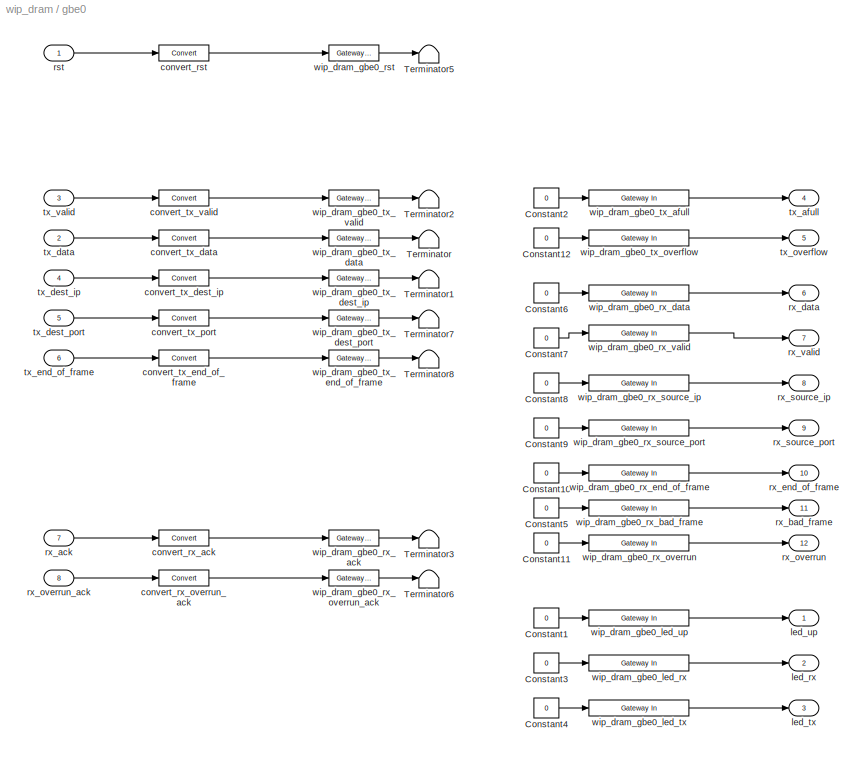
BLOCK [SubSystem] gbe0
  AncestorBlock = xps_library/ten_Gbe_v2
  FunctionWithSeparateData = off
  MaskHideContents = off
  MinAlgLoopOccurrences = off
  Opaque = off
  Ports = [8, 12]
  PropExecContextOutsideSubsystem = off
  RTWSystemCode = Auto
  RequestExecContextInheritance = off
  SID = 5166
  Tag = xps:tengbe_v2
BLOCK [Constant] gbe0/Constant1
  SID = 5166:9
  Value = 0
BLOCK [Constant] gbe0/Constant10
  SID = 5166:10
  Value = 0
BLOCK [Constant] gbe0/Constant11
  SID = 5166:11
  Value = 0
BLOCK [Constant] gbe0/Constant12
  SID = 5166:12
  Value = 0
BLOCK [Constant] gbe0/Constant2
  SID = 5166:13
  Value = 0
BLOCK [Constant] gbe0/Constant3
  SID = 5166:14
  Value = 0
BLOCK [Constant] gbe0/Constant4
  SID = 5166:15
  Value = 0
BLOCK [Constant] gbe0/Constant5
  SID = 5166:16
  Value = 0
BLOCK [Constant] gbe0/Constant6
  SID = 5166:17
  Value = 0
BLOCK [Constant] gbe0/Constant7
  SID = 5166:18
  Value = 0
BLOCK [Constant] gbe0/Constant8
  SID = 5166:19
  Value = 0
BLOCK [Constant] gbe0/Constant9
  SID = 5166:20
  Value = 0
BLOCK [Terminator] gbe0/Terminator
  SID = 5166:21
BLOCK [Terminator] gbe0/Terminator1
  SID = 5166:22
BLOCK [Terminator] gbe0/Terminator2
  SID = 5166:23
BLOCK [Terminator] gbe0/Terminator3
  SID = 5166:24
BLOCK [Terminator] gbe0/Terminator5
  SID = 5166:25
BLOCK [Terminator] gbe0/Terminator6
  SID = 5166:26
BLOCK [Terminator] gbe0/Terminator7
  SID = 5166:27
BLOCK [Terminator] gbe0/Terminator8
  SID = 5166:28
BLOCK [Reference] gbe0/convert_rst  REF=xbsIndex_r4/Convert
  Ports = [1, 1]
  SID = 5166:29
  SourceBlock = xbsIndex_r4/Convert
  SourceType = Xilinx Type Converter Block
  arith_type = Boolean
  bin_pt = 0
  block_type = convert
  block_version = 9.1.01
  dbl_ovrd = off
  en = off
  exp_bits = 8
  float_type = Single
  fraction_bits = 24
  gui_display_data_type = Fixed-point
  has_advanced_control = 0
  infoedit = Hardware notes: rounding and saturating require hardware resources; truncating and wrapping do not.
  latency = 0
  n_bits = 64
  overflow = Wrap
  pipeline = off
  quantization = Truncate
  sg_icon_stat = 50,16,1,1,white,blue,0,edca21da,right,,[ ],[ ]
  sg_mask_display = fprintf('','COMMENT: begin icon graphics');\npatch([0 50 50 0 0 ],[0 0 16 16 0 ],[0.77 0.82 0.91 ]);\nplot([0 50 50 0 0 ],[0 0 16 16 0 ]);\npatch([20.55 23.44 25.44 27.44 29.44 25.44 22.55 20.55 ],[10.22 10.22 12.22 10.22 12.22 12.22 12.22 10.22 ],[1 1 1 ]);\npatch([22.55 25.44 23.44 20.55 22.55 ],[8.22 8.22 10.22 10.22 8.22 ],[0.931 0.946 0.973 ]);\npatch([20.55 23.44 25.44 22.55 20.55 ],[6.22 6....<+317ch>  <repeated x8 — deduplicated; at blocks: convert_rst, convert_rx_ack, convert_rx_overrun_ack, convert_tx_data, convert_tx_dest_ip, convert_tx_end_of_frame, convert_tx_port, convert_tx_valid>
  sggui_pos = -1,-1,-1,-1
  xl_area = [0, 0, 0, 0, 0, 0, 0]
  xl_use_area = off
BLOCK [Reference] gbe0/convert_rx_ack  REF=xbsIndex_r4/Convert
  Ports = [1, 1]
  SID = 5166:30
  SourceBlock = xbsIndex_r4/Convert
  SourceType = Xilinx Type Converter Block
  arith_type = Boolean
  bin_pt = 0
  block_type = convert
  block_version = 9.1.01
  dbl_ovrd = off
  en = off
  exp_bits = 8
  float_type = Single
  fraction_bits = 24
  gui_display_data_type = Fixed-point
  has_advanced_control = 0
  infoedit = Hardware notes: rounding and saturating require hardware resources; truncating and wrapping do not.
  latency = 0
  n_bits = 64
  overflow = Wrap
  pipeline = off
  quantization = Truncate
  sg_icon_stat = 50,16,1,1,white,blue,0,edca21da,right,,[ ],[ ]
  sggui_pos = -1,-1,-1,-1
  xl_area = [0, 0, 0, 0, 0, 0, 0]
  xl_use_area = off
BLOCK [Reference] gbe0/convert_rx_overrun_ack  REF=xbsIndex_r4/Convert
  Ports = [1, 1]
  SID = 5166:31
  SourceBlock = xbsIndex_r4/Convert
  SourceType = Xilinx Type Converter Block
  arith_type = Boolean
  bin_pt = 0
  block_type = convert
  block_version = 9.1.01
  dbl_ovrd = off
  en = off
  exp_bits = 8
  float_type = Single
  fraction_bits = 24
  gui_display_data_type = Fixed-point
  has_advanced_control = 0
  infoedit = Hardware notes: rounding and saturating require hardware resources; truncating and wrapping do not.
  latency = 0
  n_bits = 64
  overflow = Wrap
  pipeline = off
  quantization = Truncate
  sg_icon_stat = 50,16,1,1,white,blue,0,edca21da,right,,[ ],[ ]
  sggui_pos = -1,-1,-1,-1
  xl_area = [0, 0, 0, 0, 0, 0, 0]
  xl_use_area = off
BLOCK [Reference] gbe0/convert_tx_data  REF=xbsIndex_r4/Convert
  Ports = [1, 1]
  SID = 5166:32
  SourceBlock = xbsIndex_r4/Convert
  SourceType = Xilinx Type Converter Block
  arith_type = Unsigned
  bin_pt = 0
  block_type = convert
  block_version = 9.1.01
  dbl_ovrd = off
  en = off
  exp_bits = 8
  float_type = Single
  fraction_bits = 24
  gui_display_data_type = Fixed-point
  has_advanced_control = 0
  infoedit = Hardware notes: rounding and saturating require hardware resources; truncating and wrapping do not.
  latency = 0
  n_bits = 64
  overflow = Wrap
  pipeline = off
  quantization = Truncate
  sg_icon_stat = 50,16,1,1,white,blue,0,edca21da,right,,[ ],[ ]
  sggui_pos = 20,20,374,375
  xl_area = [0, 0, 0, 0, 0, 0, 0]
  xl_use_area = off
BLOCK [Reference] gbe0/convert_tx_dest_ip  REF=xbsIndex_r4/Convert
  Ports = [1, 1]
  SID = 5166:33
  SourceBlock = xbsIndex_r4/Convert
  SourceType = Xilinx Type Converter Block
  arith_type = Unsigned
  bin_pt = 0
  block_type = convert
  block_version = 9.1.01
  dbl_ovrd = off
  en = off
  exp_bits = 8
  float_type = Single
  fraction_bits = 24
  gui_display_data_type = Fixed-point
  has_advanced_control = 0
  infoedit = Hardware notes: rounding and saturating require hardware resources; truncating and wrapping do not.
  latency = 0
  n_bits = 32
  overflow = Wrap
  pipeline = off
  quantization = Truncate
  sg_icon_stat = 50,16,1,1,white,blue,0,edca21da,right,,[ ],[ ]
  sggui_pos = 20,30,538,429
  xl_area = [0, 0, 0, 0, 0, 0, 0]
  xl_use_area = off
BLOCK [Reference] gbe0/convert_tx_end_of_frame  REF=xbsIndex_r4/Convert
  Ports = [1, 1]
  SID = 5166:34
  SourceBlock = xbsIndex_r4/Convert
  SourceType = Xilinx Type Converter Block
  arith_type = Boolean
  bin_pt = 0
  block_type = convert
  block_version = 9.1.01
  dbl_ovrd = off
  en = off
  exp_bits = 8
  float_type = Single
  fraction_bits = 24
  gui_display_data_type = Fixed-point
  has_advanced_control = 0
  infoedit = Hardware notes: rounding and saturating require hardware resources; truncating and wrapping do not.
  latency = 0
  n_bits = 1
  overflow = Wrap
  pipeline = off
  quantization = Truncate
  sg_icon_stat = 50,16,1,1,white,blue,0,edca21da,right,,[ ],[ ]
  sggui_pos = -1,-1,-1,-1
  xl_area = [0, 0, 0, 0, 0, 0, 0]
  xl_use_area = off
BLOCK [Reference] gbe0/convert_tx_port  REF=xbsIndex_r4/Convert
  Ports = [1, 1]
  SID = 5166:35
  SourceBlock = xbsIndex_r4/Convert
  SourceType = Xilinx Type Converter Block
  arith_type = Unsigned
  bin_pt = 0
  block_type = convert
  block_version = 9.1.01
  dbl_ovrd = off
  en = off
  exp_bits = 8
  float_type = Single
  fraction_bits = 24
  gui_display_data_type = Fixed-point
  has_advanced_control = 0
  infoedit = Hardware notes: rounding and saturating require hardware resources; truncating and wrapping do not.
  latency = 0
  n_bits = 16
  overflow = Wrap
  pipeline = off
  quantization = Truncate
  sg_icon_stat = 50,16,1,1,white,blue,0,edca21da,right,,[ ],[ ]
  sggui_pos = 20,30,538,429
  xl_area = [0, 0, 0, 0, 0, 0, 0]
  xl_use_area = off
BLOCK [Reference] gbe0/convert_tx_valid  REF=xbsIndex_r4/Convert
  Ports = [1, 1]
  SID = 5166:36
  SourceBlock = xbsIndex_r4/Convert
  SourceType = Xilinx Type Converter Block
  arith_type = Boolean
  bin_pt = 0
  block_type = convert
  block_version = 9.1.01
  dbl_ovrd = off
  en = off
  exp_bits = 8
  float_type = Single
  fraction_bits = 24
  gui_display_data_type = Fixed-point
  has_advanced_control = 0
  infoedit = Hardware notes: rounding and saturating require hardware resources; truncating and wrapping do not.
  latency = 0
  n_bits = 1
  overflow = Wrap
  pipeline = off
  quantization = Truncate
  sg_icon_stat = 50,16,1,1,white,blue,0,edca21da,right,,[ ],[ ]
  sggui_pos = 20,20,374,375
  xl_area = [0, 0, 0, 0, 0, 0, 0]
  xl_use_area = off
BLOCK [Outport] gbe0/led_rx
  IconDisplay = Port number
  Port = 2
  SID = 5166:58
BLOCK [Outport] gbe0/led_tx
  IconDisplay = Port number
  Port = 3
  SID = 5166:59
BLOCK [Outport] gbe0/led_up
  IconDisplay = Port number
  SID = 5166:57
BLOCK [Inport] gbe0/rst
  IconDisplay = Port number
  SID = 5166:1
BLOCK [Inport] gbe0/rx_ack
  IconDisplay = Port number
  Port = 7
  SID = 5166:7
BLOCK [Outport] gbe0/rx_bad_frame
  IconDisplay = Port number
  Port = 11
  SID = 5166:67
BLOCK [Outport] gbe0/rx_data
  IconDisplay = Port number
  Port = 6
  SID = 5166:62
BLOCK [Outport] gbe0/rx_end_of_frame
  IconDisplay = Port number
  Port = 10
  SID = 5166:66
BLOCK [Outport] gbe0/rx_overrun
  IconDisplay = Port number
  Port = 12
  SID = 5166:68
BLOCK [Inport] gbe0/rx_overrun_ack
  IconDisplay = Port number
  Port = 8
  SID = 5166:8
BLOCK [Outport] gbe0/rx_source_ip
  IconDisplay = Port number
  Port = 8
  SID = 5166:64
BLOCK [Outport] gbe0/rx_source_port
  IconDisplay = Port number
  Port = 9
  SID = 5166:65
BLOCK [Outport] gbe0/rx_valid
  IconDisplay = Port number
  Port = 7
  SID = 5166:63
BLOCK [Outport] gbe0/tx_afull
  IconDisplay = Port number
  Port = 4
  SID = 5166:60
BLOCK [Inport] gbe0/tx_data
  IconDisplay = Port number
  Port = 2
  SID = 5166:2
BLOCK [Inport] gbe0/tx_dest_ip
  IconDisplay = Port number
  Port = 4
  SID = 5166:4
BLOCK [Inport] gbe0/tx_dest_port
  IconDisplay = Port number
  Port = 5
  SID = 5166:5
BLOCK [Inport] gbe0/tx_end_of_frame
  IconDisplay = Port number
  Port = 6
  SID = 5166:6
BLOCK [Outport] gbe0/tx_overflow
  IconDisplay = Port number
  Port = 5
  SID = 5166:61
BLOCK [Inport] gbe0/tx_valid
  IconDisplay = Port number
  Port = 3
  SID = 5166:3
BLOCK [Reference] gbe0/wip_dram_gbe0_led_rx  REF=xbsIndex_r4/Gateway In
  ADCChannel = '1'
  LOCs = {}
  Ports = [1, 1]
  SID = 5166:37
  SourceBlock = xbsIndex_r4/Gateway In
  SourceType = Xilinx Gateway In Block
  UseAsADC = off
  arith_type = Boolean
  bin_pt = 0
  block_type = gatewayin
  block_version = 9.1.01
  dbl_ovrd = off
  exp_width = 8
  frac_width = 24
  gui_display_data_type = Fixed-point
  has_advanced_control = 0
  hdl_port = on
  infoedit = Gateway in block.  Converts inputs of type Simulink integer, double and fixed point to  Xilinx fixed point type.<P><P>Hardware notes:  In hardware these blocks become top level input ports.  <repeated x12 — deduplicated; at blocks: wip_dram_gbe0_led_rx, wip_dram_gbe0_led_tx, wip_dram_gbe0_led_up, wip_dram_gbe0_rx_bad_frame, wip_dram_gbe0_rx_data, wip_dram_gbe0_rx_end_of_frame, wip_dram_gbe0_rx_overrun, wip_dram_gbe0_rx_source_ip, wip_dram_gbe0_rx_source_port, wip_dram_gbe0_rx_valid, wip_dram_gbe0_tx_afull, wip_dram_gbe0_tx_overflow>
  inherit_from_input = off
  locs_specified = off
  n_bits = 1
  overflow = Wrap
  period = 1
  preci_type = Single
  quantization = Truncate
  sg_icon_stat = 100,16,1,1,white,yellow,1,00d3666e,right,,[ ],[ ]
  sg_mask_display = fprintf('','COMMENT: begin icon graphics');\npatch([0 100 100 0 0 ],[0 0 16 16 0 ],[0.95 0.93 0.65 ]);\nplot([0 100 100 0 0 ],[0 0 16 16 0 ]);\npatch([45.55 48.44 50.44 52.44 54.44 50.44 47.55 45.55 ],[10.22 10.22 12.22 10.22 12.22 12.22 12.22 10.22 ],[1 1 1 ]);\npatch([47.55 50.44 48.44 45.55 47.55 ],[8.22 8.22 10.22 10.22 8.22 ],[0.985 0.979 0.895 ]);\npatch([45.55 48.44 50.44 47.55 45.55 ],[6.2...<+395ch>  <repeated x12 — deduplicated; at blocks: wip_dram_gbe0_led_rx, wip_dram_gbe0_led_tx, wip_dram_gbe0_led_up, wip_dram_gbe0_rx_bad_frame, wip_dram_gbe0_rx_data, wip_dram_gbe0_rx_end_of_frame, wip_dram_gbe0_rx_overrun, wip_dram_gbe0_rx_source_ip, wip_dram_gbe0_rx_source_port, wip_dram_gbe0_rx_valid, wip_dram_gbe0_tx_afull, wip_dram_gbe0_tx_overflow>
  sggui_pos = -1,-1,-1,-1
  timing_constraint = None
  xl_area = [0, 0, 0, 0, 0, 0, 0]
  xl_use_area = off
BLOCK [Reference] gbe0/wip_dram_gbe0_led_tx  REF=xbsIndex_r4/Gateway In
  ADCChannel = '1'
  LOCs = {}
  Ports = [1, 1]
  SID = 5166:38
  SourceBlock = xbsIndex_r4/Gateway In
  SourceType = Xilinx Gateway In Block
  UseAsADC = off
  arith_type = Boolean
  bin_pt = 0
  block_type = gatewayin
  block_version = 9.1.01
  dbl_ovrd = off
  exp_width = 8
  frac_width = 24
  gui_display_data_type = Fixed-point
  has_advanced_control = 0
  hdl_port = on
  inherit_from_input = off
  locs_specified = off
  n_bits = 1
  overflow = Wrap
  period = 1
  preci_type = Single
  quantization = Truncate
  sg_icon_stat = 100,16,1,1,white,yellow,1,00d3666e,right,,[ ],[ ]
  sggui_pos = -1,-1,-1,-1
  timing_constraint = None
  xl_area = [0, 0, 0, 0, 0, 0, 0]
  xl_use_area = off
BLOCK [Reference] gbe0/wip_dram_gbe0_led_up  REF=xbsIndex_r4/Gateway In
  ADCChannel = '1'
  LOCs = {}
  Ports = [1, 1]
  SID = 5166:39
  SourceBlock = xbsIndex_r4/Gateway In
  SourceType = Xilinx Gateway In Block
  UseAsADC = off
  arith_type = Boolean
  bin_pt = 0
  block_type = gatewayin
  block_version = 9.1.01
  dbl_ovrd = off
  exp_width = 8
  frac_width = 24
  gui_display_data_type = Fixed-point
  has_advanced_control = 0
  hdl_port = on
  inherit_from_input = off
  locs_specified = off
  n_bits = 1
  overflow = Wrap
  period = 1
  preci_type = Single
  quantization = Truncate
  sg_icon_stat = 100,16,1,1,white,yellow,1,00d3666e,right,,[ ],[ ]
  sggui_pos = -1,-1,-1,-1
  timing_constraint = None
  xl_area = [0, 0, 0, 0, 0, 0, 0]
  xl_use_area = off
BLOCK [Reference] gbe0/wip_dram_gbe0_rst  REF=xbsIndex_r4/Gateway Out
  DACChannel = '1'
  LOCs = {}
  Ports = [1, 1]
  SID = 5166:40
  SourceBlock = xbsIndex_r4/Gateway Out
  SourceType = Xilinx Gateway Out Block
  UseAsDAC = off
  block_type = gatewayout
  block_version = 9.1.01
  has_advanced_control = 0
  hdl_port = on
  inherit_from_input = off
  locs_specified = off
  sg_icon_stat = 50,16,1,1,white,yellow,1,cc31b7ac,right,,[ ],[ ]
  sg_mask_display = fprintf('','COMMENT: begin icon graphics');\npatch([0 50 50 0 0 ],[0 0 16 16 0 ],[0.95 0.93 0.65 ]);\nplot([0 50 50 0 0 ],[0 0 16 16 0 ]);\npatch([20.55 23.44 25.44 27.44 29.44 25.44 22.55 20.55 ],[10.22 10.22 12.22 10.22 12.22 12.22 12.22 10.22 ],[1 1 1 ]);\npatch([22.55 25.44 23.44 20.55 22.55 ],[8.22 8.22 10.22 10.22 8.22 ],[0.985 0.979 0.895 ]);\npatch([20.55 23.44 25.44 22.55 20.55 ],[6.22 6....<+392ch>  <repeated x8 — deduplicated; at blocks: wip_dram_gbe0_rst, wip_dram_gbe0_rx_ack, wip_dram_gbe0_rx_overrun_ack, wip_dram_gbe0_tx_data, wip_dram_gbe0_tx_dest_ip, wip_dram_gbe0_tx_dest_port, wip_dram_gbe0_tx_end_of_frame, wip_dram_gbe0_tx_valid>
  sggui_pos = -1,-1,-1,-1
  timing_constraint = None
  xl_area = [0, 0, 0, 0, 0, 0, 0]
  xl_use_area = off
BLOCK [Reference] gbe0/wip_dram_gbe0_rx_ack  REF=xbsIndex_r4/Gateway Out
  DACChannel = '1'
  LOCs = {}
  Ports = [1, 1]
  SID = 5166:41
  SourceBlock = xbsIndex_r4/Gateway Out
  SourceType = Xilinx Gateway Out Block
  UseAsDAC = off
  block_type = gatewayout
  block_version = 9.1.01
  has_advanced_control = 0
  hdl_port = on
  inherit_from_input = off
  locs_specified = off
  sg_icon_stat = 50,16,1,1,white,yellow,1,cc31b7ac,right,,[ ],[ ]
  sggui_pos = -1,-1,-1,-1
  timing_constraint = None
  xl_area = [0, 0, 0, 0, 0, 0, 0]
  xl_use_area = off
BLOCK [Reference] gbe0/wip_dram_gbe0_rx_bad_frame  REF=xbsIndex_r4/Gateway In
  ADCChannel = '1'
  LOCs = {}
  Ports = [1, 1]
  SID = 5166:42
  SourceBlock = xbsIndex_r4/Gateway In
  SourceType = Xilinx Gateway In Block
  UseAsADC = off
  arith_type = Boolean
  bin_pt = 0
  block_type = gatewayin
  block_version = 9.1.01
  dbl_ovrd = off
  exp_width = 8
  frac_width = 24
  gui_display_data_type = Fixed-point
  has_advanced_control = 0
  hdl_port = on
  inherit_from_input = off
  locs_specified = off
  n_bits = 1
  overflow = Wrap
  period = 1
  preci_type = Single
  quantization = Truncate
  sg_icon_stat = 100,16,1,1,white,yellow,1,00d3666e,right,,[ ],[ ]
  sggui_pos = -1,-1,-1,-1
  timing_constraint = None
  xl_area = [0, 0, 0, 0, 0, 0, 0]
  xl_use_area = off
BLOCK [Reference] gbe0/wip_dram_gbe0_rx_data  REF=xbsIndex_r4/Gateway In
  ADCChannel = '1'
  LOCs = {}
  Ports = [1, 1]
  SID = 5166:43
  SourceBlock = xbsIndex_r4/Gateway In
  SourceType = Xilinx Gateway In Block
  UseAsADC = off
  arith_type = Unsigned
  bin_pt = 0
  block_type = gatewayin
  block_version = 9.1.01
  dbl_ovrd = off
  exp_width = 8
  frac_width = 24
  gui_display_data_type = Fixed-point
  has_advanced_control = 0
  hdl_port = on
  inherit_from_input = off
  locs_specified = off
  n_bits = 64
  overflow = Wrap
  period = 1
  preci_type = Single
  quantization = Truncate
  sg_icon_stat = 100,16,1,1,white,yellow,1,00d3666e,right,,[ ],[ ]
  sggui_pos = -1,-1,-1,-1
  timing_constraint = None
  xl_area = [0, 0, 0, 0, 0, 0, 0]
  xl_use_area = off
BLOCK [Reference] gbe0/wip_dram_gbe0_rx_end_of_frame  REF=xbsIndex_r4/Gateway In
  ADCChannel = '1'
  LOCs = {}
  Ports = [1, 1]
  SID = 5166:44
  SourceBlock = xbsIndex_r4/Gateway In
  SourceType = Xilinx Gateway In Block
  UseAsADC = off
  arith_type = Boolean
  bin_pt = 0
  block_type = gatewayin
  block_version = 9.1.01
  dbl_ovrd = off
  exp_width = 8
  frac_width = 24
  gui_display_data_type = Fixed-point
  has_advanced_control = 0
  hdl_port = on
  inherit_from_input = off
  locs_specified = off
  n_bits = 1
  overflow = Wrap
  period = 1
  preci_type = Single
  quantization = Truncate
  sg_icon_stat = 100,16,1,1,white,yellow,1,00d3666e,right,,[ ],[ ]
  sggui_pos = -1,-1,-1,-1
  timing_constraint = None
  xl_area = [0, 0, 0, 0, 0, 0, 0]
  xl_use_area = off
BLOCK [Reference] gbe0/wip_dram_gbe0_rx_overrun  REF=xbsIndex_r4/Gateway In
  ADCChannel = '1'
  LOCs = {}
  Ports = [1, 1]
  SID = 5166:45
  SourceBlock = xbsIndex_r4/Gateway In
  SourceType = Xilinx Gateway In Block
  UseAsADC = off
  arith_type = Boolean
  bin_pt = 0
  block_type = gatewayin
  block_version = 9.1.01
  dbl_ovrd = off
  exp_width = 8
  frac_width = 24
  gui_display_data_type = Fixed-point
  has_advanced_control = 0
  hdl_port = on
  inherit_from_input = off
  locs_specified = off
  n_bits = 1
  overflow = Wrap
  period = 1
  preci_type = Single
  quantization = Truncate
  sg_icon_stat = 100,16,1,1,white,yellow,1,00d3666e,right,,[ ],[ ]
  sggui_pos = -1,-1,-1,-1
  timing_constraint = None
  xl_area = [0, 0, 0, 0, 0, 0, 0]
  xl_use_area = off
BLOCK [Reference] gbe0/wip_dram_gbe0_rx_overrun_ack  REF=xbsIndex_r4/Gateway Out
  DACChannel = '1'
  LOCs = {}
  Ports = [1, 1]
  SID = 5166:46
  SourceBlock = xbsIndex_r4/Gateway Out
  SourceType = Xilinx Gateway Out Block
  UseAsDAC = off
  block_type = gatewayout
  block_version = 9.1.01
  has_advanced_control = 0
  hdl_port = on
  inherit_from_input = off
  locs_specified = off
  sg_icon_stat = 50,16,1,1,white,yellow,1,cc31b7ac,right,,[ ],[ ]
  sggui_pos = -1,-1,-1,-1
  timing_constraint = None
  xl_area = [0, 0, 0, 0, 0, 0, 0]
  xl_use_area = off
BLOCK [Reference] gbe0/wip_dram_gbe0_rx_source_ip  REF=xbsIndex_r4/Gateway In
  ADCChannel = '1'
  LOCs = {}
  Ports = [1, 1]
  SID = 5166:47
  SourceBlock = xbsIndex_r4/Gateway In
  SourceType = Xilinx Gateway In Block
  UseAsADC = off
  arith_type = Unsigned
  bin_pt = 0
  block_type = gatewayin
  block_version = 9.1.01
  dbl_ovrd = off
  exp_width = 8
  frac_width = 24
  gui_display_data_type = Fixed-point
  has_advanced_control = 0
  hdl_port = on
  inherit_from_input = off
  locs_specified = off
  n_bits = 32
  overflow = Wrap
  period = 1
  preci_type = Single
  quantization = Truncate
  sg_icon_stat = 100,16,1,1,white,yellow,1,00d3666e,right,,[ ],[ ]
  sggui_pos = 20,50,419,481
  timing_constraint = None
  xl_area = [0, 0, 0, 0, 0, 0, 0]
  xl_use_area = off
BLOCK [Reference] gbe0/wip_dram_gbe0_rx_source_port  REF=xbsIndex_r4/Gateway In
  ADCChannel = '1'
  LOCs = {}
  Ports = [1, 1]
  SID = 5166:48
  SourceBlock = xbsIndex_r4/Gateway In
  SourceType = Xilinx Gateway In Block
  UseAsADC = off
  arith_type = Unsigned
  bin_pt = 0
  block_type = gatewayin
  block_version = 9.1.01
  dbl_ovrd = off
  exp_width = 8
  frac_width = 24
  gui_display_data_type = Fixed-point
  has_advanced_control = 0
  hdl_port = on
  inherit_from_input = off
  locs_specified = off
  n_bits = 16
  overflow = Wrap
  period = 1
  preci_type = Single
  quantization = Truncate
  sg_icon_stat = 100,16,1,1,white,yellow,1,00d3666e,right,,[ ],[ ]
  sggui_pos = 20,50,419,481
  timing_constraint = None
  xl_area = [0, 0, 0, 0, 0, 0, 0]
  xl_use_area = off
BLOCK [Reference] gbe0/wip_dram_gbe0_rx_valid  REF=xbsIndex_r4/Gateway In
  ADCChannel = '1'
  LOCs = {}
  Ports = [1, 1]
  SID = 5166:49
  SourceBlock = xbsIndex_r4/Gateway In
  SourceType = Xilinx Gateway In Block
  UseAsADC = off
  arith_type = Boolean
  bin_pt = 0
  block_type = gatewayin
  block_version = 9.1.01
  dbl_ovrd = off
  exp_width = 8
  frac_width = 24
  gui_display_data_type = Fixed-point
  has_advanced_control = 0
  hdl_port = on
  inherit_from_input = off
  locs_specified = off
  n_bits = 1
  overflow = Wrap
  period = 1
  preci_type = Single
  quantization = Truncate
  sg_icon_stat = 100,16,1,1,white,yellow,1,00d3666e,right,,[ ],[ ]
  sggui_pos = -1,-1,-1,-1
  timing_constraint = None
  xl_area = [0, 0, 0, 0, 0, 0, 0]
  xl_use_area = off
BLOCK [Reference] gbe0/wip_dram_gbe0_tx_afull  REF=xbsIndex_r4/Gateway In
  ADCChannel = '1'
  LOCs = {}
  Ports = [1, 1]
  SID = 5166:50
  SourceBlock = xbsIndex_r4/Gateway In
  SourceType = Xilinx Gateway In Block
  UseAsADC = off
  arith_type = Boolean
  bin_pt = 0
  block_type = gatewayin
  block_version = 9.1.01
  dbl_ovrd = off
  exp_width = 8
  frac_width = 24
  gui_display_data_type = Fixed-point
  has_advanced_control = 0
  hdl_port = on
  inherit_from_input = off
  locs_specified = off
  n_bits = 1
  overflow = Wrap
  period = 1
  preci_type = Single
  quantization = Truncate
  sg_icon_stat = 100,16,1,1,white,yellow,1,00d3666e,right,,[ ],[ ]
  sggui_pos = -1,-1,-1,-1
  timing_constraint = None
  xl_area = [0, 0, 0, 0, 0, 0, 0]
  xl_use_area = off
BLOCK [Reference] gbe0/wip_dram_gbe0_tx_data  REF=xbsIndex_r4/Gateway Out
  DACChannel = '1'
  LOCs = {}
  Ports = [1, 1]
  SID = 5166:51
  SourceBlock = xbsIndex_r4/Gateway Out
  SourceType = Xilinx Gateway Out Block
  UseAsDAC = off
  block_type = gatewayout
  block_version = 9.1.01
  has_advanced_control = 0
  hdl_port = on
  inherit_from_input = off
  locs_specified = off
  sg_icon_stat = 50,16,1,1,white,yellow,1,cc31b7ac,right,,[ ],[ ]
  sggui_pos = -1,-1,-1,-1
  timing_constraint = None
  xl_area = [0, 0, 0, 0, 0, 0, 0]
  xl_use_area = off
BLOCK [Reference] gbe0/wip_dram_gbe0_tx_dest_ip  REF=xbsIndex_r4/Gateway Out
  DACChannel = '1'
  LOCs = {}
  Ports = [1, 1]
  SID = 5166:52
  SourceBlock = xbsIndex_r4/Gateway Out
  SourceType = Xilinx Gateway Out Block
  UseAsDAC = off
  block_type = gatewayout
  block_version = 9.1.01
  has_advanced_control = 0
  hdl_port = on
  inherit_from_input = off
  locs_specified = off
  sg_icon_stat = 50,16,1,1,white,yellow,1,cc31b7ac,right,,[ ],[ ]
  sggui_pos = -1,-1,-1,-1
  timing_constraint = None
  xl_area = [0, 0, 0, 0, 0, 0, 0]
  xl_use_area = off
BLOCK [Reference] gbe0/wip_dram_gbe0_tx_dest_port  REF=xbsIndex_r4/Gateway Out
  DACChannel = '1'
  LOCs = {}
  Ports = [1, 1]
  SID = 5166:53
  SourceBlock = xbsIndex_r4/Gateway Out
  SourceType = Xilinx Gateway Out Block
  UseAsDAC = off
  block_type = gatewayout
  block_version = 9.1.01
  has_advanced_control = 0
  hdl_port = on
  inherit_from_input = off
  locs_specified = off
  sg_icon_stat = 50,16,1,1,white,yellow,1,cc31b7ac,right,,[ ],[ ]
  sggui_pos = -1,-1,-1,-1
  timing_constraint = None
  xl_area = [0, 0, 0, 0, 0, 0, 0]
  xl_use_area = off
BLOCK [Reference] gbe0/wip_dram_gbe0_tx_end_of_frame  REF=xbsIndex_r4/Gateway Out
  DACChannel = '1'
  LOCs = {}
  Ports = [1, 1]
  SID = 5166:54
  SourceBlock = xbsIndex_r4/Gateway Out
  SourceType = Xilinx Gateway Out Block
  UseAsDAC = off
  block_type = gatewayout
  block_version = 9.1.01
  has_advanced_control = 0
  hdl_port = on
  inherit_from_input = off
  locs_specified = off
  sg_icon_stat = 50,16,1,1,white,yellow,1,cc31b7ac,right,,[ ],[ ]
  sggui_pos = -1,-1,-1,-1
  timing_constraint = None
  xl_area = [0, 0, 0, 0, 0, 0, 0]
  xl_use_area = off
BLOCK [Reference] gbe0/wip_dram_gbe0_tx_overflow  REF=xbsIndex_r4/Gateway In
  ADCChannel = '1'
  LOCs = {}
  Ports = [1, 1]
  SID = 5166:55
  SourceBlock = xbsIndex_r4/Gateway In
  SourceType = Xilinx Gateway In Block
  UseAsADC = off
  arith_type = Boolean
  bin_pt = 0
  block_type = gatewayin
  block_version = 9.1.01
  dbl_ovrd = off
  exp_width = 8
  frac_width = 24
  gui_display_data_type = Fixed-point
  has_advanced_control = 0
  hdl_port = on
  inherit_from_input = off
  locs_specified = off
  n_bits = 1
  overflow = Wrap
  period = 1
  preci_type = Single
  quantization = Truncate
  sg_icon_stat = 100,16,1,1,white,yellow,1,00d3666e,right,,[ ],[ ]
  sggui_pos = -1,-1,-1,-1
  timing_constraint = None
  xl_area = [0, 0, 0, 0, 0, 0, 0]
  xl_use_area = off
BLOCK [Reference] gbe0/wip_dram_gbe0_tx_valid  REF=xbsIndex_r4/Gateway Out
  DACChannel = '1'
  LOCs = {}
  Ports = [1, 1]
  SID = 5166:56
  SourceBlock = xbsIndex_r4/Gateway Out
  SourceType = Xilinx Gateway Out Block
  UseAsDAC = off
  block_type = gatewayout
  block_version = 9.1.01
  has_advanced_control = 0
  hdl_port = on
  inherit_from_input = off
  locs_specified = off
  sg_icon_stat = 50,16,1,1,white,yellow,1,cc31b7ac,right,,[ ],[ ]
  sggui_pos = -1,-1,-1,-1
  timing_constraint = None
  xl_area = [0, 0, 0, 0, 0, 0, 0]
  xl_use_area = off
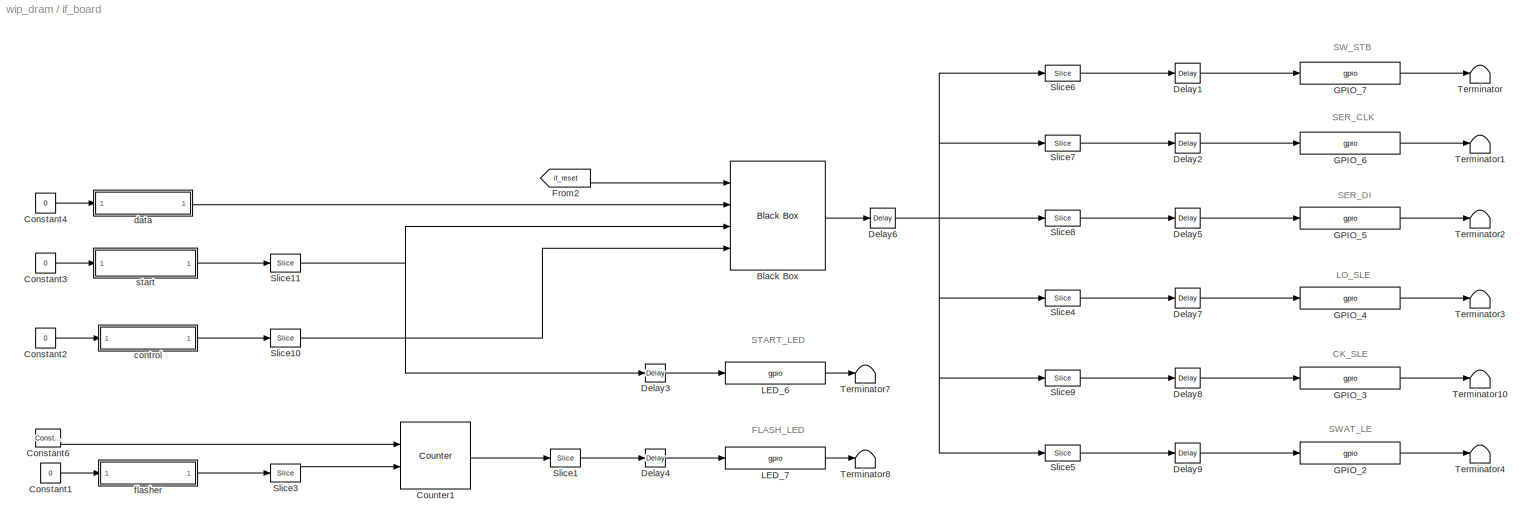
BLOCK [SubSystem] if_board
  Description = Subsystem to control the MUSIC IF Board. To be interfaced with the python class IF_Board from if_board.py
  FunctionWithSeparateData = off
  MaskHideContents = off
  MinAlgLoopOccurrences = off
  Opaque = off
  Ports = []
  PropExecContextOutsideSubsystem = off
  RTWSystemCode = Auto
  RequestExecContextInheritance = off
  SID = 4768
BLOCK [Reference] if_board/Black Box  REF=xbsIndex_r4/Black Box
  Ports = [4, 1]
  SID = 4544
  SourceBlock = xbsIndex_r4/Black Box
  SourceType = Xilinx Black Box Block
  block_type = blackbox2
  has_advanced_control = 0
  infoedit = Incorporates black box HDL and simulation model into a System Generator design.<br><br>You must supply a Black Box with certain information about the HDL component you would like to bring into System Generator. This information is provided through a Matlab function.<br><br>When \"Simulation mode\" is set to \"Inactive\", you will typically want to provide a separate simulation model by using a Sim...<+134ch>
  init_code = ROACH2_IF_SM_config
  sg_icon_stat = 95,109,4,1,white,blue,0,d7129f53,right,,[ ],[ ]
  sg_mask_display = fprintf('','COMMENT: begin icon graphics');\npatch([0 95 95 0 0 ],[0 0 109 109 0 ],[0.77 0.82 0.91 ]);\nplot([0 95 95 0 0 ],[0 0 109 109 0 ]);\npatch([18.075 36.86 49.86 62.86 75.86 49.86 31.075 18.075 ],[68.43 68.43 81.43 68.43 81.43 81.43 81.43 68.43 ],[1 1 1 ]);\npatch([31.075 49.86 36.86 18.075 31.075 ],[55.43 55.43 68.43 68.43 55.43 ],[0.931 0.946 0.973 ]);\npatch([18.075 36.86 49.86 31.075 1...<+541ch>
  sggui_pos = 516,210,416,454
  sim_method = Inactive
  verbose = off
  xl_area = [0,0,0,0,0,0,0]
  xl_use_area = off
BLOCK [Constant] if_board/Constant1
  SID = 5180
  Value = 0
BLOCK [Constant] if_board/Constant2
  SID = 5181
  Value = 0
BLOCK [Constant] if_board/Constant3
  SID = 5182
  Value = 0
BLOCK [Constant] if_board/Constant4
  SID = 5183
  Value = 0
BLOCK [Reference] if_board/Constant6  REF=xbsIndex_r4/Constant
  Ports = [0, 1]
  SID = 5179
  SourceBlock = xbsIndex_r4/Constant
  SourceType = Xilinx Constant Block Block
  arith_type = Boolean
  bin_pt = 0
  block_type = constant
  block_version = 10.1.3
  carry = CIN
  const = 0
  dbl_ovrd = off
  dsp48_infoedit = The use of this block for DSP48 instructions is deprecated.  Please use the Opmode block.
  equ = P=C
  exp_width = 8
  explicit_period = on
  frac_width = 24
  gui_display_data_type = Boolean
  has_advanced_control = 0
  inp1 = P
  inp2 = PCIN>>17
  n_bits = 16
  opr = +
  opselect = C
  period = 1
  preci_type = Single
  sg_icon_stat = 25,18,0,1,white,blue,0,bf4ddd8b,right,,[ ],[ ]
  sggui_pos = 39,14,414,463
BLOCK [Reference] if_board/Counter1  REF=xbsIndex_r4/Counter
  Ports = [2, 1]
  SID = 4517
  SourceBlock = xbsIndex_r4/Counter
  SourceType = Xilinx Counter Block
  arith_type = Unsigned
  bin_pt = 0
  block_type = counter
  block_version = 10.1.3
  cnt_by_val = 1
  cnt_to = 2048
  cnt_type = Free Running
  dbl_ovrd = off
  en = on
  explicit_period = on
  has_advanced_control = 0
  implementation = Fabric
  infoedit = Hardware notes: Free running counters are the least expensive in hardware.  A count limited counter is implemented by combining a counter with a comparator.
  load_pin = off
  n_bits = 28
  operation = Up
  period = 1
  rst = on
  sg_icon_stat = 70,67,2,1,white,blue,0,ae3608d6,right,,[ ],[ ]
  sg_mask_display = fprintf('','COMMENT: begin icon graphics');\npatch([0 70 70 0 0 ],[0 0 67 67 0 ],[0.77 0.82 0.91 ]);\nplot([0 70 70 0 0 ],[0 0 67 67 0 ]);\npatch([14.975 27.98 36.98 45.98 54.98 36.98 23.975 14.975 ],[42.99 42.99 51.99 42.99 51.99 51.99 51.99 42.99 ],[1 1 1 ]);\npatch([23.975 36.98 27.98 14.975 23.975 ],[33.99 33.99 42.99 42.99 33.99 ],[0.931 0.946 0.973 ]);\npatch([14.975 27.98 36.98 23.975 14.97...<+447ch>
  sggui_pos = 49,24,447,773
  start_count = 0
  use_behavioral_HDL = off
  use_rpm = off
  xl_area = [0,0,0,0,0,0,0]
  xl_use_area = off
BLOCK [Reference] if_board/Delay1  REF=xbsIndex_r4/Delay
  Ports = [1, 1]
  SID = 5204
  SourceBlock = xbsIndex_r4/Delay
  SourceType = Xilinx Delay Block
  block_type = delay
  block_version = 10.1.3
  dbl_ovrd = off
  en = off
  has_advanced_control = 0
  infoedit = Hardware notes: A delay line is a chain, each link of which is an SRL16 followed by a flip-flop.
  infoeditControl = Selection of Reset will increase slice count due to use of real FFs and instead of SRLs
  latency = 1
  reg_retiming = off
  rst = off
  sg_icon_stat = 25,20,1,1,white,blue,0,07b98262,right,,[ ],[ ]
  sggui_pos = 39,14,416,361
  xl_area = [0,0,0,0,0,0,0]
  xl_use_area = off
BLOCK [Reference] if_board/Delay2  REF=xbsIndex_r4/Delay
  Ports = [1, 1]
  SID = 5205
  SourceBlock = xbsIndex_r4/Delay
  SourceType = Xilinx Delay Block
  block_type = delay
  block_version = 10.1.3
  dbl_ovrd = off
  en = off
  has_advanced_control = 0
  infoedit = Hardware notes: A delay line is a chain, each link of which is an SRL16 followed by a flip-flop.
  infoeditControl = Selection of Reset will increase slice count due to use of real FFs and instead of SRLs
  latency = 1
  reg_retiming = off
  rst = off
  sg_icon_stat = 25,20,1,1,white,blue,0,07b98262,right,,[ ],[ ]
  sggui_pos = 39,14,416,361
  xl_area = [0,0,0,0,0,0,0]
  xl_use_area = off
BLOCK [Reference] if_board/Delay3  REF=xbsIndex_r4/Delay
  Ports = [1, 1]
  SID = 4502
  SourceBlock = xbsIndex_r4/Delay
  SourceType = Xilinx Delay Block
  block_type = delay
  block_version = 10.1.3
  dbl_ovrd = off
  en = off
  has_advanced_control = 0
  infoedit = Hardware notes: A delay line is a chain, each link of which is an SRL16 followed by a flip-flop.
  infoeditControl = Selection of Reset will increase slice count due to use of real FFs and instead of SRLs
  latency = 1
  reg_retiming = off
  rst = off
  sg_icon_stat = 20,18,1,1,white,blue,0,07b98262,right,,[ ],[ ]
  sg_mask_display = fprintf('','COMMENT: begin icon graphics');\npatch([0 20 20 0 0 ],[0 0 18 18 0 ],[0.77 0.82 0.91 ]);\nplot([0 20 20 0 0 ],[0 0 18 18 0 ]);\npatch([5.55 8.44 10.44 12.44 14.44 10.44 7.55 5.55 ],[11.22 11.22 13.22 11.22 13.22 13.22 13.22 11.22 ],[1 1 1 ]);\npatch([7.55 10.44 8.44 5.55 7.55 ],[9.22 9.22 11.22 11.22 9.22 ],[0.931 0.946 0.973 ]);\npatch([5.55 8.44 10.44 7.55 5.55 ],[7.22 7.22 9.22 9.22...<+303ch>
  sggui_pos = 20,20,348,254
  xl_area = [0,0,0,0,0,0,0]
  xl_use_area = off
BLOCK [Reference] if_board/Delay4  REF=xbsIndex_r4/Delay
  Ports = [1, 1]
  SID = 4509
  SourceBlock = xbsIndex_r4/Delay
  SourceType = Xilinx Delay Block
  block_type = delay
  block_version = 10.1.3
  dbl_ovrd = off
  en = off
  has_advanced_control = 0
  infoedit = Hardware notes: A delay line is a chain, each link of which is an SRL16 followed by a flip-flop.
  infoeditControl = Selection of Reset will increase slice count due to use of real FFs and instead of SRLs
  latency = 1
  reg_retiming = off
  rst = off
  sg_icon_stat = 20,18,1,1,white,blue,0,07b98262,right,,[ ],[ ]
  sg_mask_display = fprintf('','COMMENT: begin icon graphics');\npatch([0 20 20 0 0 ],[0 0 18 18 0 ],[0.77 0.82 0.91 ]);\nplot([0 20 20 0 0 ],[0 0 18 18 0 ]);\npatch([5.55 8.44 10.44 12.44 14.44 10.44 7.55 5.55 ],[11.22 11.22 13.22 11.22 13.22 13.22 13.22 11.22 ],[1 1 1 ]);\npatch([7.55 10.44 8.44 5.55 7.55 ],[9.22 9.22 11.22 11.22 9.22 ],[0.931 0.946 0.973 ]);\npatch([5.55 8.44 10.44 7.55 5.55 ],[7.22 7.22 9.22 9.22...<+303ch>
  sggui_pos = 20,20,348,254
  xl_area = [0,0,0,0,0,0,0]
  xl_use_area = off
BLOCK [Reference] if_board/Delay5  REF=xbsIndex_r4/Delay
  Ports = [1, 1]
  SID = 5206
  SourceBlock = xbsIndex_r4/Delay
  SourceType = Xilinx Delay Block
  block_type = delay
  block_version = 10.1.3
  dbl_ovrd = off
  en = off
  has_advanced_control = 0
  infoedit = Hardware notes: A delay line is a chain, each link of which is an SRL16 followed by a flip-flop.
  infoeditControl = Selection of Reset will increase slice count due to use of real FFs and instead of SRLs
  latency = 1
  reg_retiming = off
  rst = off
  sg_icon_stat = 25,20,1,1,white,blue,0,07b98262,right,,[ ],[ ]
  sggui_pos = 39,14,416,361
  xl_area = [0,0,0,0,0,0,0]
  xl_use_area = off
BLOCK [Reference] if_board/Delay6  REF=xbsIndex_r4/Delay
  Ports = [1, 1]
  SID = 5176
  SourceBlock = xbsIndex_r4/Delay
  SourceType = Xilinx Delay Block
  block_type = delay
  block_version = 10.1.3
  dbl_ovrd = off
  en = off
  has_advanced_control = 0
  infoedit = Hardware notes: A delay line is a chain, each link of which is an SRL16 followed by a flip-flop.
  infoeditControl = Selection of Reset will increase slice count due to use of real FFs and instead of SRLs
  latency = 1
  reg_retiming = off
  rst = off
  sg_icon_stat = 25,20,1,1,white,blue,0,07b98262,right,,[ ],[ ]
  sggui_pos = 39,14,416,361
  xl_area = [0,0,0,0,0,0,0]
  xl_use_area = off
BLOCK [Reference] if_board/Delay7  REF=xbsIndex_r4/Delay
  Ports = [1, 1]
  SID = 5207
  SourceBlock = xbsIndex_r4/Delay
  SourceType = Xilinx Delay Block
  block_type = delay
  block_version = 10.1.3
  dbl_ovrd = off
  en = off
  has_advanced_control = 0
  infoedit = Hardware notes: A delay line is a chain, each link of which is an SRL16 followed by a flip-flop.
  infoeditControl = Selection of Reset will increase slice count due to use of real FFs and instead of SRLs
  latency = 1
  reg_retiming = off
  rst = off
  sg_icon_stat = 25,20,1,1,white,blue,0,07b98262,right,,[ ],[ ]
  sggui_pos = 39,14,416,361
  xl_area = [0,0,0,0,0,0,0]
  xl_use_area = off
BLOCK [Reference] if_board/Delay8  REF=xbsIndex_r4/Delay
  Ports = [1, 1]
  SID = 5208
  SourceBlock = xbsIndex_r4/Delay
  SourceType = Xilinx Delay Block
  block_type = delay
  block_version = 10.1.3
  dbl_ovrd = off
  en = off
  has_advanced_control = 0
  infoedit = Hardware notes: A delay line is a chain, each link of which is an SRL16 followed by a flip-flop.
  infoeditControl = Selection of Reset will increase slice count due to use of real FFs and instead of SRLs
  latency = 1
  reg_retiming = off
  rst = off
  sg_icon_stat = 25,20,1,1,white,blue,0,07b98262,right,,[ ],[ ]
  sggui_pos = 39,14,416,361
  xl_area = [0,0,0,0,0,0,0]
  xl_use_area = off
BLOCK [Reference] if_board/Delay9  REF=xbsIndex_r4/Delay
  Ports = [1, 1]
  SID = 5209
  SourceBlock = xbsIndex_r4/Delay
  SourceType = Xilinx Delay Block
  block_type = delay
  block_version = 10.1.3
  dbl_ovrd = off
  en = off
  has_advanced_control = 0
  infoedit = Hardware notes: A delay line is a chain, each link of which is an SRL16 followed by a flip-flop.
  infoeditControl = Selection of Reset will increase slice count due to use of real FFs and instead of SRLs
  latency = 1
  reg_retiming = off
  rst = off
  sg_icon_stat = 25,20,1,1,white,blue,0,07b98262,right,,[ ],[ ]
  sggui_pos = 39,14,416,361
  xl_area = [0,0,0,0,0,0,0]
  xl_use_area = off
BLOCK [From] if_board/From2
  GotoTag = if_reset
  SID = 4629
  TagVisibility = global
BLOCK [Reference] if_board/GPIO_2  REF=xps_library/gpio  (lib defined in mdl_00b5cec29cd0, mdl_02ab6ecaa3d1, +5 more)
  Ports = [1, 1]
  SID = 5191
  SourceBlock = xps_library/gpio
  SourceType = gpio
  Tag = xps:gpio
  arith_type = Unsigned
  bin_pt = 0
  bit_index = 2
  bitwidth = 1
  io_dir = out
  io_group = ROACH2:gpio
  reg_clk_phase = 0
  reg_iob = on
  sample_period = 1
  termination = None
  use_ddr = off
  use_single_ended = off
BLOCK [Reference] if_board/GPIO_3  REF=xps_library/gpio  (lib defined in mdl_00b5cec29cd0, mdl_02ab6ecaa3d1, +5 more)
  Ports = [1, 1]
  SID = 5198
  SourceBlock = xps_library/gpio
  SourceType = gpio
  Tag = xps:gpio
  arith_type = Unsigned
  bin_pt = 0
  bit_index = 3
  bitwidth = 1
  io_dir = out
  io_group = ROACH2:gpio
  reg_clk_phase = 0
  reg_iob = on
  sample_period = 1
  termination = None
  use_ddr = off
  use_single_ended = off
BLOCK [Reference] if_board/GPIO_4  REF=xps_library/gpio  (lib defined in mdl_00b5cec29cd0, mdl_02ab6ecaa3d1, +5 more)
  Ports = [1, 1]
  SID = 5199
  SourceBlock = xps_library/gpio
  SourceType = gpio
  Tag = xps:gpio
  arith_type = Unsigned
  bin_pt = 0
  bit_index = 4
  bitwidth = 1
  io_dir = out
  io_group = ROACH2:gpio
  reg_clk_phase = 0
  reg_iob = on
  sample_period = 1
  termination = None
  use_ddr = off
  use_single_ended = off
BLOCK [Reference] if_board/GPIO_5  REF=xps_library/gpio  (lib defined in mdl_00b5cec29cd0, mdl_02ab6ecaa3d1, +5 more)
  Ports = [1, 1]
  SID = 5200
  SourceBlock = xps_library/gpio
  SourceType = gpio
  Tag = xps:gpio
  arith_type = Unsigned
  bin_pt = 0
  bit_index = 5
  bitwidth = 1
  io_dir = out
  io_group = ROACH2:gpio
  reg_clk_phase = 0
  reg_iob = on
  sample_period = 1
  termination = None
  use_ddr = off
  use_single_ended = off
BLOCK [Reference] if_board/GPIO_6  REF=xps_library/gpio  (lib defined in mdl_00b5cec29cd0, mdl_02ab6ecaa3d1, +5 more)
  Ports = [1, 1]
  SID = 5201
  SourceBlock = xps_library/gpio
  SourceType = gpio
  Tag = xps:gpio
  arith_type = Unsigned
  bin_pt = 0
  bit_index = 6
  bitwidth = 1
  io_dir = out
  io_group = ROACH2:gpio
  reg_clk_phase = 0
  reg_iob = on
  sample_period = 1
  termination = None
  use_ddr = off
  use_single_ended = off
BLOCK [Reference] if_board/GPIO_7  REF=xps_library/gpio  (lib defined in mdl_00b5cec29cd0, mdl_02ab6ecaa3d1, +5 more)
  Ports = [1, 1]
  SID = 5202
  SourceBlock = xps_library/gpio
  SourceType = gpio
  Tag = xps:gpio
  arith_type = Unsigned
  bin_pt = 0
  bit_index = 7
  bitwidth = 1
  io_dir = out
  io_group = ROACH2:gpio
  reg_clk_phase = 0
  reg_iob = on
  sample_period = 1
  termination = None
  use_ddr = off
  use_single_ended = off
BLOCK [Reference] if_board/LED_6  REF=xps_library/gpio  (lib defined in mdl_00b5cec29cd0, mdl_02ab6ecaa3d1, +5 more)
  Ports = [1, 1]
  SID = 5190
  SourceBlock = xps_library/gpio
  SourceType = gpio
  Tag = xps:gpio
  arith_type = Unsigned
  bin_pt = 0
  bit_index = 6
  bitwidth = 1
  io_dir = out
  io_group = ROACH2:led
  reg_clk_phase = 0
  reg_iob = on
  sample_period = 1
  termination = None
  use_ddr = off
  use_single_ended = off
BLOCK [Reference] if_board/LED_7  REF=xps_library/gpio  (lib defined in mdl_00b5cec29cd0, mdl_02ab6ecaa3d1, +5 more)
  Ports = [1, 1]
  SID = 5188
  SourceBlock = xps_library/gpio
  SourceType = gpio
  Tag = xps:gpio
  arith_type = Unsigned
  bin_pt = 0
  bit_index = 7
  bitwidth = 1
  io_dir = out
  io_group = ROACH2:led
  reg_clk_phase = 0
  reg_iob = on
  sample_period = 1
  termination = None
  use_ddr = off
  use_single_ended = off
BLOCK [Reference] if_board/Slice1  REF=xbsIndex_r4/Slice
  Ports = [1, 1]
  SID = 5189
  SourceBlock = xbsIndex_r4/Slice
  SourceType = Xilinx Bit Slice Extractor Block
  base0 = MSB of Input
  base1 = MSB of Input
  bit0 = 0
  bit1 = 0
  block_type = slice
  block_version = 10.1.3
  boolean_output = on
  dbl_ovrd = off
  has_advanced_control = 0
  mode = Lower Bit Location + Width
  nbits = 16
  sg_icon_stat = 30,18,1,1,white,blue,0,1fd851a7,right,,[ ],[ ]
  sggui_pos = 37,14,543,482
BLOCK [Reference] if_board/Slice10  REF=xbsIndex_r4/Slice
  Ports = [1, 1]
  SID = 5185
  SourceBlock = xbsIndex_r4/Slice
  SourceType = Xilinx Bit Slice Extractor Block
  base0 = LSB of Input
  base1 = MSB of Input
  bit0 = 0
  bit1 = 0
  block_type = slice
  block_version = 10.1.3
  boolean_output = off
  dbl_ovrd = off
  has_advanced_control = 0
  mode = Lower Bit Location + Width
  nbits = 4
  sg_icon_stat = 30,18,1,1,white,blue,0,1fd851a7,right,,[ ],[ ]
  sggui_pos = 39,14,543,482
BLOCK [Reference] if_board/Slice11  REF=xbsIndex_r4/Slice
  Ports = [1, 1]
  SID = 5186
  SourceBlock = xbsIndex_r4/Slice
  SourceType = Xilinx Bit Slice Extractor Block
  base0 = LSB of Input
  base1 = MSB of Input
  bit0 = 0
  bit1 = 0
  block_type = slice
  block_version = 10.1.3
  boolean_output = on
  dbl_ovrd = off
  has_advanced_control = 0
  mode = Lower Bit Location + Width
  nbits = 16
  sg_icon_stat = 30,18,1,1,white,blue,0,1fd851a7,right,,[ ],[ ]
  sggui_pos = 49,24,543,482
BLOCK [Reference] if_board/Slice3  REF=xbsIndex_r4/Slice
  Ports = [1, 1]
  SID = 5184
  SourceBlock = xbsIndex_r4/Slice
  SourceType = Xilinx Bit Slice Extractor Block
  base0 = LSB of Input
  base1 = MSB of Input
  bit0 = 0
  bit1 = 0
  block_type = slice
  block_version = 10.1.3
  boolean_output = on
  dbl_ovrd = off
  has_advanced_control = 0
  mode = Lower Bit Location + Width
  nbits = 16
  sg_icon_stat = 30,18,1,1,white,blue,0,1fd851a7,right,,[ ],[ ]
  sggui_pos = 39,14,543,482
BLOCK [Reference] if_board/Slice4  REF=xbsIndex_r4/Slice
  Ports = [1, 1]
  SID = 4529
  SourceBlock = xbsIndex_r4/Slice
  SourceType = Xilinx Bit Slice Extractor Block
  base0 = LSB of Input
  base1 = MSB of Input
  bit0 = 3
  bit1 = 0
  block_type = slice
  block_version = 11.4
  boolean_output = on
  dbl_ovrd = off
  has_advanced_control = 0
  mode = Lower Bit Location + Width
  nbits = 1
  sg_icon_stat = 35,16,1,1,white,blue,0,1fd851a7,right,,[ ],[ ]
  sg_mask_display = fprintf('','COMMENT: begin icon graphics');\npatch([0 35 35 0 0 ],[0 0 16 16 0 ],[0.77 0.82 0.91 ]);\nplot([0 35 35 0 0 ],[0 0 16 16 0 ]);\npatch([12.55 15.44 17.44 19.44 21.44 17.44 14.55 12.55 ],[10.22 10.22 12.22 10.22 12.22 12.22 12.22 10.22 ],[1 1 1 ]);\npatch([14.55 17.44 15.44 12.55 14.55 ],[8.22 8.22 10.22 10.22 8.22 ],[0.931 0.946 0.973 ]);\npatch([12.55 15.44 17.44 14.55 12.55 ],[6.22 6....<+318ch>  <repeated x6 — deduplicated; at blocks: Slice4, Slice5, Slice6, Slice7, Slice8, Slice9>
  sggui_pos = 49,24,576,500
BLOCK [Reference] if_board/Slice5  REF=xbsIndex_r4/Slice
  Ports = [1, 1]
  SID = 4530
  SourceBlock = xbsIndex_r4/Slice
  SourceType = Xilinx Bit Slice Extractor Block
  base0 = LSB of Input
  base1 = MSB of Input
  bit0 = 5
  bit1 = 0
  block_type = slice
  block_version = 11.4
  boolean_output = on
  dbl_ovrd = off
  has_advanced_control = 0
  mode = Lower Bit Location + Width
  nbits = 1
  sg_icon_stat = 35,16,1,1,white,blue,0,1fd851a7,right,,[ ],[ ]
  sggui_pos = 49,24,543,482
BLOCK [Reference] if_board/Slice6  REF=xbsIndex_r4/Slice
  Ports = [1, 1]
  SID = 4531
  SourceBlock = xbsIndex_r4/Slice
  SourceType = Xilinx Bit Slice Extractor Block
  base0 = LSB of Input
  base1 = MSB of Input
  bit0 = 0
  bit1 = 0
  block_type = slice
  block_version = 11.4
  boolean_output = on
  dbl_ovrd = off
  has_advanced_control = 0
  mode = Lower Bit Location + Width
  nbits = 1
  sg_icon_stat = 35,16,1,1,white,blue,0,1fd851a7,right,,[ ],[ ]
  sggui_pos = 49,24,576,500
BLOCK [Reference] if_board/Slice7  REF=xbsIndex_r4/Slice
  Ports = [1, 1]
  SID = 4532
  SourceBlock = xbsIndex_r4/Slice
  SourceType = Xilinx Bit Slice Extractor Block
  base0 = LSB of Input
  base1 = MSB of Input
  bit0 = 1
  bit1 = 0
  block_type = slice
  block_version = 11.4
  boolean_output = on
  dbl_ovrd = off
  has_advanced_control = 0
  mode = Lower Bit Location + Width
  nbits = 1
  sg_icon_stat = 35,16,1,1,white,blue,0,1fd851a7,right,,[ ],[ ]
  sggui_pos = 49,24,576,500
BLOCK [Reference] if_board/Slice8  REF=xbsIndex_r4/Slice
  Ports = [1, 1]
  SID = 4533
  SourceBlock = xbsIndex_r4/Slice
  SourceType = Xilinx Bit Slice Extractor Block
  base0 = LSB of Input
  base1 = MSB of Input
  bit0 = 2
  bit1 = 0
  block_type = slice
  block_version = 11.4
  boolean_output = on
  dbl_ovrd = off
  has_advanced_control = 0
  mode = Lower Bit Location + Width
  nbits = 1
  sg_icon_stat = 35,16,1,1,white,blue,0,1fd851a7,right,,[ ],[ ]
  sggui_pos = 49,24,576,500
BLOCK [Reference] if_board/Slice9  REF=xbsIndex_r4/Slice
  Ports = [1, 1]
  SID = 4537
  SourceBlock = xbsIndex_r4/Slice
  SourceType = Xilinx Bit Slice Extractor Block
  base0 = LSB of Input
  base1 = MSB of Input
  bit0 = 4
  bit1 = 0
  block_type = slice
  block_version = 11.4
  boolean_output = on
  dbl_ovrd = off
  has_advanced_control = 0
  mode = Lower Bit Location + Width
  nbits = 1
  sg_icon_stat = 35,16,1,1,white,blue,0,1fd851a7,right,,[ ],[ ]
  sggui_pos = 49,24,543,482
BLOCK [Terminator] if_board/Terminator
  SID = 638
BLOCK [Terminator] if_board/Terminator1
  SID = 639
BLOCK [Terminator] if_board/Terminator10
  SID = 4534
BLOCK [Terminator] if_board/Terminator2
  SID = 640
BLOCK [Terminator] if_board/Terminator3
  SID = 641
BLOCK [Terminator] if_board/Terminator4
  SID = 642
BLOCK [Terminator] if_board/Terminator7
  SID = 4504
BLOCK [Terminator] if_board/Terminator8
  SID = 4511
BLOCK [SubSystem] if_board/control
  AncestorBlock = xps_library/software register
  AttributesFormatString = 1input
  FunctionWithSeparateData = off
  MaskHideContents = off
  MinAlgLoopOccurrences = off
  Opaque = off
  Ports = [1, 1]
  PropExecContextOutsideSubsystem = off
  RTWSystemCode = Auto
  RequestExecContextInheritance = off
  SID = 512
  Tag = xps:sw_reg
BLOCK [Outport] if_board/control/in_reg
  IconDisplay = Port number
  SID = 512:6841
BLOCK [Reference] if_board/control/io_delay  REF=xbsIndex_r4/Delay
  Ports = [1, 1]
  SID = 512:10882
  SourceBlock = xbsIndex_r4/Delay
  SourceType = Xilinx Delay Block
  block_type = delay
  dbl_ovrd = off
  en = off
  has_advanced_control = 0
  infoedit = Hardware notes: A delay line is a chain, each link of which is an SRL16 followed by a flip-flop.
  infoeditControl = Selection of Reset will increase slice count due to use of real FFs and instead of SRLs
  latency = 0
  reg_retiming = on
  rst = off
  sg_icon_stat = 50,20,1,1,white,blue,0,24450e6f,right,,[ ],[ ]
  sggui_pos = -1,-1,-1,-1
  xl_area = [0,0,0,0,0,0,0]
  xl_use_area = off
BLOCK [Reference] if_board/control/reint1  REF=xbsIndex_r4/Reinterpret
  Ports = [1, 1]
  SID = 512:10887
  SourceBlock = xbsIndex_r4/Reinterpret
  SourceType = Xilinx Type Reinterpreter Block
  arith_type = Unsigned
  bin_pt = 0
  block_type = reinterpret
  force_arith_type = on
  force_bin_pt = on
  has_advanced_control = 0
  sg_icon_stat = 50,32,1,1,white,blue,0,6b04d0b0,right,,[ ],[ ]
  sg_mask_display = fprintf('','COMMENT: begin icon graphics');\npatch([0 50 50 0 0 ],[0 0 32 32 0 ],[0.77 0.82 0.91 ]);\nplot([0 50 50 0 0 ],[0 0 32 32 0 ]);\npatch([16.1 21.88 25.88 29.88 33.88 25.88 20.1 16.1 ],[20.44 20.44 24.44 20.44 24.44 24.44 24.44 20.44 ],[1 1 1 ]);\npatch([20.1 25.88 21.88 16.1 20.1 ],[16.44 16.44 20.44 20.44 16.44 ],[0.931 0.946 0.973 ]);\npatch([16.1 21.88 25.88 20.1 16.1 ],[12.44 12.44 1...<+306ch>  <repeated x7 — deduplicated; at blocks: reint1>
  sggui_pos = -1,-1,-1,-1
BLOCK [Inport] if_board/control/sim_1
  IconDisplay = Port number
  SID = 512:6835
BLOCK [Reference] if_board/control/slice_reg  REF=xbsIndex_r4/Slice
  Ports = [1, 1]
  SID = 512:10886
  SourceBlock = xbsIndex_r4/Slice
  SourceType = Xilinx Bit Slice Extractor Block
  base0 = LSB of Input
  base1 = MSB of Input
  bit0 = 0
  bit1 = 0
  block_type = slice
  boolean_output = off
  dbl_ovrd = off
  has_advanced_control = 0
  mode = Lower Bit Location + Width
  nbits = 32
  sg_icon_stat = 60,30,1,1,white,blue,0,1fd851a7,right,,[ ],[ ]
  sg_mask_display = fprintf('','COMMENT: begin icon graphics');\npatch([0 60 60 0 0 ],[0 0 30 30 0 ],[0.77 0.82 0.91 ]);\nplot([0 60 60 0 0 ],[0 0 30 30 0 ]);\npatch([21.1 26.88 30.88 34.88 38.88 30.88 25.1 21.1 ],[19.44 19.44 23.44 19.44 23.44 23.44 23.44 19.44 ],[1 1 1 ]);\npatch([25.1 30.88 26.88 21.1 25.1 ],[15.44 15.44 19.44 19.44 15.44 ],[0.931 0.946 0.973 ]);\npatch([21.1 26.88 30.88 25.1 21.1 ],[11.44 11.44 1...<+315ch>  <repeated x7 — deduplicated; at blocks: slice_reg>
  sggui_pos = -1,-1,-1,-1
BLOCK [Reference] if_board/control/wip_dram_if_board_control_user_data_out  REF=xbsIndex_r4/Gateway In
  ADCChannel = '1'
  LOCs = {}
  Ports = [1, 1]
  SID = 512:10881
  SourceBlock = xbsIndex_r4/Gateway In
  SourceType = Xilinx Gateway In Block
  UseAsADC = off
  arith_type = Unsigned
  bin_pt = 0
  block_type = gatewayin
  dbl_ovrd = off
  exp_width = 8
  frac_width = 24
  gui_display_data_type = Fixed-point
  has_advanced_control = 0
  hdl_port = on
  inherit_from_input = off
  locs_specified = off
  n_bits = 32
  overflow = Saturate
  period = 1
  preci_type = Single
  quantization = Round  (unbiased: +/- Inf)
  sg_icon_stat = 65,20,1,1,white,yellow,1,00d3666e,right,,[ ],[ ]
  sg_mask_display = fprintf('','COMMENT: begin icon graphics');\npatch([0 65 65 0 0 ],[0 0 20 20 0 ],[0.95 0.93 0.65 ]);\nplot([0 65 65 0 0 ],[0 0 20 20 0 ]);\npatch([27.55 30.44 32.44 34.44 36.44 32.44 29.55 27.55 ],[12.22 12.22 14.22 12.22 14.22 14.22 14.22 12.22 ],[1 1 1 ]);\npatch([29.55 32.44 30.44 27.55 29.55 ],[10.22 10.22 12.22 12.22 10.22 ],[0.985 0.979 0.895 ]);\npatch([27.55 30.44 32.44 29.55 27.55 ],[8.22...<+396ch>  <repeated x7 — deduplicated; at blocks: wip_dram_if_board_control_user_data_out, wip_dram_if_board_data_user_data_out, wip_dram_if_board_flasher_user_data_out, wip_dram_if_board_start_user_data_out, wip_dram_pkt_sim_enable_user_data_out, wip_dram_pkt_sim_payload_len_user_data_out, wip_dram_pkt_sim_period_user_data_out>
  sggui_pos = -1,-1,-1,-1
  timing_constraint = None
  xl_area = [0,0,0,0,0,0,0]
  xl_use_area = off
BLOCK [SubSystem] if_board/data
  AncestorBlock = xps_library/software register
  AttributesFormatString = 1input
  FunctionWithSeparateData = off
  MaskHideContents = off
  MinAlgLoopOccurrences = off
  Opaque = off
  Ports = [1, 1]
  PropExecContextOutsideSubsystem = off
  RTWSystemCode = Auto
  RequestExecContextInheritance = off
  SID = 614
  Tag = xps:sw_reg
BLOCK [Outport] if_board/data/in_reg
  IconDisplay = Port number
  SID = 614:6841
BLOCK [Reference] if_board/data/io_delay  REF=xbsIndex_r4/Delay
  Ports = [1, 1]
  SID = 614:10875
  SourceBlock = xbsIndex_r4/Delay
  SourceType = Xilinx Delay Block
  block_type = delay
  dbl_ovrd = off
  en = off
  has_advanced_control = 0
  infoedit = Hardware notes: A delay line is a chain, each link of which is an SRL16 followed by a flip-flop.
  infoeditControl = Selection of Reset will increase slice count due to use of real FFs and instead of SRLs
  latency = 0
  reg_retiming = on
  rst = off
  sg_icon_stat = 50,20,1,1,white,blue,0,24450e6f,right,,[ ],[ ]
  sggui_pos = -1,-1,-1,-1
  xl_area = [0,0,0,0,0,0,0]
  xl_use_area = off
BLOCK [Reference] if_board/data/reint1  REF=xbsIndex_r4/Reinterpret
  Ports = [1, 1]
  SID = 614:10880
  SourceBlock = xbsIndex_r4/Reinterpret
  SourceType = Xilinx Type Reinterpreter Block
  arith_type = Unsigned
  bin_pt = 0
  block_type = reinterpret
  force_arith_type = on
  force_bin_pt = on
  has_advanced_control = 0
  sg_icon_stat = 50,32,1,1,white,blue,0,6b04d0b0,right,,[ ],[ ]
  sggui_pos = -1,-1,-1,-1
BLOCK [Inport] if_board/data/sim_1
  IconDisplay = Port number
  SID = 614:6835
BLOCK [Reference] if_board/data/slice_reg  REF=xbsIndex_r4/Slice
  Ports = [1, 1]
  SID = 614:10879
  SourceBlock = xbsIndex_r4/Slice
  SourceType = Xilinx Bit Slice Extractor Block
  base0 = LSB of Input
  base1 = MSB of Input
  bit0 = 0
  bit1 = 0
  block_type = slice
  boolean_output = off
  dbl_ovrd = off
  has_advanced_control = 0
  mode = Lower Bit Location + Width
  nbits = 32
  sg_icon_stat = 60,30,1,1,white,blue,0,1fd851a7,right,,[ ],[ ]
  sggui_pos = -1,-1,-1,-1
BLOCK [Reference] if_board/data/wip_dram_if_board_data_user_data_out  REF=xbsIndex_r4/Gateway In
  ADCChannel = '1'
  LOCs = {}
  Ports = [1, 1]
  SID = 614:10874
  SourceBlock = xbsIndex_r4/Gateway In
  SourceType = Xilinx Gateway In Block
  UseAsADC = off
  arith_type = Unsigned
  bin_pt = 0
  block_type = gatewayin
  dbl_ovrd = off
  exp_width = 8
  frac_width = 24
  gui_display_data_type = Fixed-point
  has_advanced_control = 0
  hdl_port = on
  inherit_from_input = off
  locs_specified = off
  n_bits = 32
  overflow = Saturate
  period = 1
  preci_type = Single
  quantization = Round  (unbiased: +/- Inf)
  sg_icon_stat = 65,20,1,1,white,yellow,1,00d3666e,right,,[ ],[ ]
  sggui_pos = -1,-1,-1,-1
  timing_constraint = None
  xl_area = [0,0,0,0,0,0,0]
  xl_use_area = off
BLOCK [SubSystem] if_board/flasher
  AncestorBlock = xps_library/software register
  AttributesFormatString = 1input
  FunctionWithSeparateData = off
  MaskHideContents = off
  MinAlgLoopOccurrences = off
  Opaque = off
  Ports = [1, 1]
  PropExecContextOutsideSubsystem = off
  RTWSystemCode = Auto
  RequestExecContextInheritance = off
  SID = 4507
  Tag = xps:sw_reg
BLOCK [Outport] if_board/flasher/in_reg
  IconDisplay = Port number
  SID = 4507:6841
BLOCK [Reference] if_board/flasher/io_delay  REF=xbsIndex_r4/Delay
  Ports = [1, 1]
  SID = 4507:10896
  SourceBlock = xbsIndex_r4/Delay
  SourceType = Xilinx Delay Block
  block_type = delay
  dbl_ovrd = off
  en = off
  has_advanced_control = 0
  infoedit = Hardware notes: A delay line is a chain, each link of which is an SRL16 followed by a flip-flop.
  infoeditControl = Selection of Reset will increase slice count due to use of real FFs and instead of SRLs
  latency = 0
  reg_retiming = on
  rst = off
  sg_icon_stat = 50,20,1,1,white,blue,0,24450e6f,right,,[ ],[ ]
  sggui_pos = -1,-1,-1,-1
  xl_area = [0,0,0,0,0,0,0]
  xl_use_area = off
BLOCK [Reference] if_board/flasher/reint1  REF=xbsIndex_r4/Reinterpret
  Ports = [1, 1]
  SID = 4507:10901
  SourceBlock = xbsIndex_r4/Reinterpret
  SourceType = Xilinx Type Reinterpreter Block
  arith_type = Unsigned
  bin_pt = 0
  block_type = reinterpret
  force_arith_type = on
  force_bin_pt = on
  has_advanced_control = 0
  sg_icon_stat = 50,32,1,1,white,blue,0,6b04d0b0,right,,[ ],[ ]
  sggui_pos = -1,-1,-1,-1
BLOCK [Inport] if_board/flasher/sim_1
  IconDisplay = Port number
  SID = 4507:6835
BLOCK [Reference] if_board/flasher/slice_reg  REF=xbsIndex_r4/Slice
  Ports = [1, 1]
  SID = 4507:10900
  SourceBlock = xbsIndex_r4/Slice
  SourceType = Xilinx Bit Slice Extractor Block
  base0 = LSB of Input
  base1 = MSB of Input
  bit0 = 0
  bit1 = 0
  block_type = slice
  boolean_output = off
  dbl_ovrd = off
  has_advanced_control = 0
  mode = Lower Bit Location + Width
  nbits = 32
  sg_icon_stat = 60,30,1,1,white,blue,0,1fd851a7,right,,[ ],[ ]
  sggui_pos = -1,-1,-1,-1
BLOCK [Reference] if_board/flasher/wip_dram_if_board_flasher_user_data_out  REF=xbsIndex_r4/Gateway In
  ADCChannel = '1'
  LOCs = {}
  Ports = [1, 1]
  SID = 4507:10895
  SourceBlock = xbsIndex_r4/Gateway In
  SourceType = Xilinx Gateway In Block
  UseAsADC = off
  arith_type = Unsigned
  bin_pt = 0
  block_type = gatewayin
  dbl_ovrd = off
  exp_width = 8
  frac_width = 24
  gui_display_data_type = Fixed-point
  has_advanced_control = 0
  hdl_port = on
  inherit_from_input = off
  locs_specified = off
  n_bits = 32
  overflow = Saturate
  period = 1
  preci_type = Single
  quantization = Round  (unbiased: +/- Inf)
  sg_icon_stat = 65,20,1,1,white,yellow,1,00d3666e,right,,[ ],[ ]
  sggui_pos = -1,-1,-1,-1
  timing_constraint = None
  xl_area = [0,0,0,0,0,0,0]
  xl_use_area = off
BLOCK [SubSystem] if_board/start
  AncestorBlock = xps_library/software register
  AttributesFormatString = 1input
  FunctionWithSeparateData = off
  MaskHideContents = off
  MinAlgLoopOccurrences = off
  Opaque = off
  Ports = [1, 1]
  PropExecContextOutsideSubsystem = off
  RTWSystemCode = Auto
  RequestExecContextInheritance = off
  SID = 1302
  Tag = xps:sw_reg
BLOCK [Outport] if_board/start/in_reg
  IconDisplay = Port number
  SID = 1302:6841
BLOCK [Reference] if_board/start/io_delay  REF=xbsIndex_r4/Delay
  Ports = [1, 1]
  SID = 1302:10875
  SourceBlock = xbsIndex_r4/Delay
  SourceType = Xilinx Delay Block
  block_type = delay
  dbl_ovrd = off
  en = off
  has_advanced_control = 0
  infoedit = Hardware notes: A delay line is a chain, each link of which is an SRL16 followed by a flip-flop.
  infoeditControl = Selection of Reset will increase slice count due to use of real FFs and instead of SRLs
  latency = 0
  reg_retiming = on
  rst = off
  sg_icon_stat = 50,20,1,1,white,blue,0,24450e6f,right,,[ ],[ ]
  sggui_pos = -1,-1,-1,-1
  xl_area = [0,0,0,0,0,0,0]
  xl_use_area = off
BLOCK [Reference] if_board/start/reint1  REF=xbsIndex_r4/Reinterpret
  Ports = [1, 1]
  SID = 1302:10880
  SourceBlock = xbsIndex_r4/Reinterpret
  SourceType = Xilinx Type Reinterpreter Block
  arith_type = Unsigned
  bin_pt = 0
  block_type = reinterpret
  force_arith_type = on
  force_bin_pt = on
  has_advanced_control = 0
  sg_icon_stat = 50,32,1,1,white,blue,0,6b04d0b0,right,,[ ],[ ]
  sggui_pos = -1,-1,-1,-1
BLOCK [Inport] if_board/start/sim_1
  IconDisplay = Port number
  SID = 1302:6835
BLOCK [Reference] if_board/start/slice_reg  REF=xbsIndex_r4/Slice
  Ports = [1, 1]
  SID = 1302:10879
  SourceBlock = xbsIndex_r4/Slice
  SourceType = Xilinx Bit Slice Extractor Block
  base0 = LSB of Input
  base1 = MSB of Input
  bit0 = 0
  bit1 = 0
  block_type = slice
  boolean_output = off
  dbl_ovrd = off
  has_advanced_control = 0
  mode = Lower Bit Location + Width
  nbits = 32
  sg_icon_stat = 60,30,1,1,white,blue,0,1fd851a7,right,,[ ],[ ]
  sggui_pos = -1,-1,-1,-1
BLOCK [Reference] if_board/start/wip_dram_if_board_start_user_data_out  REF=xbsIndex_r4/Gateway In
  ADCChannel = '1'
  LOCs = {}
  Ports = [1, 1]
  SID = 1302:10874
  SourceBlock = xbsIndex_r4/Gateway In
  SourceType = Xilinx Gateway In Block
  UseAsADC = off
  arith_type = Unsigned
  bin_pt = 0
  block_type = gatewayin
  dbl_ovrd = off
  exp_width = 8
  frac_width = 24
  gui_display_data_type = Fixed-point
  has_advanced_control = 0
  hdl_port = on
  inherit_from_input = off
  locs_specified = off
  n_bits = 32
  overflow = Saturate
  period = 1
  preci_type = Single
  quantization = Round  (unbiased: +/- Inf)
  sg_icon_stat = 65,20,1,1,white,yellow,1,00d3666e,right,,[ ],[ ]
  sggui_pos = -1,-1,-1,-1
  timing_constraint = None
  xl_area = [0,0,0,0,0,0,0]
  xl_use_area = off
BLOCK [Reference] led0  REF=xps_library/gpio  (lib defined in mdl_00b5cec29cd0, mdl_02ab6ecaa3d1, +5 more)
  Ports = [1, 1]
  SID = 5128
  SourceBlock = xps_library/gpio
  SourceType = gpio
  Tag = xps:gpio
  arith_type = Boolean
  bin_pt = 0
  bit_index = 0
  bitwidth = 1
  io_dir = out
  io_group = ROACH2:led
  reg_clk_phase = 0
  reg_iob = on
  sample_period = 1
  termination = None
  use_ddr = off
  use_single_ended = off
BLOCK [Reference] led1  REF=xps_library/gpio  (lib defined in mdl_00b5cec29cd0, mdl_02ab6ecaa3d1, +5 more)
  Ports = [1, 1]
  SID = 5129
  SourceBlock = xps_library/gpio
  SourceType = gpio
  Tag = xps:gpio
  arith_type = Boolean
  bin_pt = 0
  bit_index = 1
  bitwidth = 1
  io_dir = out
  io_group = ROACH2:led
  reg_clk_phase = 0
  reg_iob = on
  sample_period = 1
  termination = None
  use_ddr = off
  use_single_ended = off
BLOCK [Reference] led2  REF=xps_library/gpio  (lib defined in mdl_00b5cec29cd0, mdl_02ab6ecaa3d1, +5 more)
  Ports = [1, 1]
  SID = 5168
  SourceBlock = xps_library/gpio
  SourceType = gpio
  Tag = xps:gpio
  arith_type = Boolean
  bin_pt = 0
  bit_index = 2
  bitwidth = 1
  io_dir = out
  io_group = ROACH2:led
  reg_clk_phase = 0
  reg_iob = on
  sample_period = 1
  termination = None
  use_ddr = off
  use_single_ended = off
BLOCK [Reference] led3  REF=xps_library/gpio  (lib defined in mdl_00b5cec29cd0, mdl_02ab6ecaa3d1, +5 more)
  Ports = [1, 1]
  SID = 5267
  SourceBlock = xps_library/gpio
  SourceType = gpio
  Tag = xps:gpio
  arith_type = Boolean
  bin_pt = 0
  bit_index = 3
  bitwidth = 1
  io_dir = out
  io_group = ROACH2:led
  reg_clk_phase = 0
  reg_iob = on
  sample_period = 1
  termination = None
  use_ddr = off
  use_single_ended = off
BLOCK [Reference] led4  REF=xps_library/gpio  (lib defined in mdl_00b5cec29cd0, mdl_02ab6ecaa3d1, +5 more)
  Ports = [1, 1]
  SID = 5270
  SourceBlock = xps_library/gpio
  SourceType = gpio
  Tag = xps:gpio
  arith_type = Boolean
  bin_pt = 0
  bit_index = 4
  bitwidth = 1
  io_dir = out
  io_group = ROACH2:led
  reg_clk_phase = 0
  reg_iob = on
  sample_period = 1
  termination = None
  use_ddr = off
  use_single_ended = off
BLOCK [SubSystem] lut_Read_notWrite
  AncestorBlock = xps_library/software register
  AttributesFormatString = 1input
  FunctionWithSeparateData = off
  MaskHideContents = off
  MinAlgLoopOccurrences = off
  Opaque = off
  Ports = [1, 1]
  PropExecContextOutsideSubsystem = off
  RTWSystemCode = Auto
  RequestExecContextInheritance = off
  SID = 4895
  Tag = xps:sw_reg
BLOCK [Outport] lut_Read_notWrite/in_reg
  IconDisplay = Port number
  SID = 4895:6841
BLOCK [Reference] lut_Read_notWrite/io_delay  REF=xbsIndex_r4/Delay
  Ports = [1, 1]
  SID = 4895:11232
  SourceBlock = xbsIndex_r4/Delay
  SourceType = Xilinx Delay Block
  block_type = delay
  dbl_ovrd = off
  en = off
  has_advanced_control = 0
  infoedit = Hardware notes: A delay line is a chain, each link of which is an SRL16 followed by a flip-flop.
  infoeditControl = Selection of Reset will increase slice count due to use of real FFs and instead of SRLs
  latency = 0
  reg_retiming = on
  rst = off
  sg_icon_stat = 50,20,1,1,white,blue,0,24450e6f,right,,[ ],[ ]
  sggui_pos = -1,-1,-1,-1
  xl_area = [0,0,0,0,0,0,0]
  xl_use_area = off
BLOCK [Reference] lut_Read_notWrite/reint1  REF=xbsIndex_r4/Reinterpret
  Ports = [1, 1]
  SID = 4895:11237
  SourceBlock = xbsIndex_r4/Reinterpret
  SourceType = Xilinx Type Reinterpreter Block
  arith_type = Unsigned
  bin_pt = 0
  block_type = reinterpret
  force_arith_type = on
  force_bin_pt = on
  has_advanced_control = 0
  sg_icon_stat = 50,20,1,1,white,blue,0,6b04d0b0,right,,[ ],[ ]
  sggui_pos = -1,-1,-1,-1
BLOCK [Inport] lut_Read_notWrite/sim_1
  IconDisplay = Port number
  SID = 4895:6835
BLOCK [Reference] lut_Read_notWrite/slice_reg  REF=xbsIndex_r4/Slice
  Ports = [1, 1]
  SID = 4895:11236
  SourceBlock = xbsIndex_r4/Slice
  SourceType = Xilinx Bit Slice Extractor Block
  base0 = LSB of Input
  base1 = MSB of Input
  bit0 = 0
  bit1 = 0
  block_type = slice
  boolean_output = off
  dbl_ovrd = off
  has_advanced_control = 0
  mode = Lower Bit Location + Width
  nbits = 32
  sg_icon_stat = 50,20,1,1,white,blue,0,1fd851a7,right,,[ ],[ ]
  sggui_pos = -1,-1,-1,-1
BLOCK [Reference] lut_Read_notWrite/wip_dram_lut_Read_notWrite_user_data_out  REF=xbsIndex_r4/Gateway In
  ADCChannel = '1'
  LOCs = {}
  Ports = [1, 1]
  SID = 4895:11231
  SourceBlock = xbsIndex_r4/Gateway In
  SourceType = Xilinx Gateway In Block
  UseAsADC = off
  arith_type = Unsigned
  bin_pt = 0
  block_type = gatewayin
  dbl_ovrd = off
  exp_width = 8
  frac_width = 24
  gui_display_data_type = Fixed-point
  has_advanced_control = 0
  hdl_port = on
  inherit_from_input = off
  locs_specified = off
  n_bits = 32
  overflow = Saturate
  period = 1
  preci_type = Single
  quantization = Round  (unbiased: +/- Inf)
  sg_icon_stat = 50,20,1,1,white,yellow,1,00d3666e,right,,[ ],[ ]
  sggui_pos = -1,-1,-1,-1
  timing_constraint = None
  xl_area = [0,0,0,0,0,0,0]
  xl_use_area = off
BLOCK [SubSystem] lut_address
  AncestorBlock = xps_library/software register
  AttributesFormatString = 1input
  FunctionWithSeparateData = off
  MaskHideContents = off
  MinAlgLoopOccurrences = off
  Opaque = off
  Ports = [1, 1]
  PropExecContextOutsideSubsystem = off
  RTWSystemCode = Auto
  RequestExecContextInheritance = off
  SID = 4888
  Tag = xps:sw_reg
BLOCK [Outport] lut_address/in_reg
  IconDisplay = Port number
  SID = 4888:6841
BLOCK [Reference] lut_address/io_delay  REF=xbsIndex_r4/Delay
  Ports = [1, 1]
  SID = 4888:11204
  SourceBlock = xbsIndex_r4/Delay
  SourceType = Xilinx Delay Block
  block_type = delay
  dbl_ovrd = off
  en = off
  has_advanced_control = 0
  infoedit = Hardware notes: A delay line is a chain, each link of which is an SRL16 followed by a flip-flop.
  infoeditControl = Selection of Reset will increase slice count due to use of real FFs and instead of SRLs
  latency = 0
  reg_retiming = on
  rst = off
  sg_icon_stat = 50,20,1,1,white,blue,0,24450e6f,right,,[ ],[ ]
  sggui_pos = -1,-1,-1,-1
  xl_area = [0,0,0,0,0,0,0]
  xl_use_area = off
BLOCK [Reference] lut_address/reint1  REF=xbsIndex_r4/Reinterpret
  Ports = [1, 1]
  SID = 4888:11209
  SourceBlock = xbsIndex_r4/Reinterpret
  SourceType = Xilinx Type Reinterpreter Block
  arith_type = Unsigned
  bin_pt = 0
  block_type = reinterpret
  force_arith_type = on
  force_bin_pt = on
  has_advanced_control = 0
  sg_icon_stat = 50,20,1,1,white,blue,0,6b04d0b0,right,,[ ],[ ]
  sggui_pos = -1,-1,-1,-1
BLOCK [Inport] lut_address/sim_1
  IconDisplay = Port number
  SID = 4888:6835
BLOCK [Reference] lut_address/slice_reg  REF=xbsIndex_r4/Slice
  Ports = [1, 1]
  SID = 4888:11208
  SourceBlock = xbsIndex_r4/Slice
  SourceType = Xilinx Bit Slice Extractor Block
  base0 = LSB of Input
  base1 = MSB of Input
  bit0 = 0
  bit1 = 0
  block_type = slice
  boolean_output = off
  dbl_ovrd = off
  has_advanced_control = 0
  mode = Lower Bit Location + Width
  nbits = 32
  sg_icon_stat = 50,20,1,1,white,blue,0,1fd851a7,right,,[ ],[ ]
  sggui_pos = -1,-1,-1,-1
BLOCK [Reference] lut_address/wip_dram_lut_address_user_data_out  REF=xbsIndex_r4/Gateway In
  ADCChannel = '1'
  LOCs = {}
  Ports = [1, 1]
  SID = 4888:11203
  SourceBlock = xbsIndex_r4/Gateway In
  SourceType = Xilinx Gateway In Block
  UseAsADC = off
  arith_type = Unsigned
  bin_pt = 0
  block_type = gatewayin
  dbl_ovrd = off
  exp_width = 8
  frac_width = 24
  gui_display_data_type = Fixed-point
  has_advanced_control = 0
  hdl_port = on
  inherit_from_input = off
  locs_specified = off
  n_bits = 32
  overflow = Saturate
  period = 1
  preci_type = Single
  quantization = Round  (unbiased: +/- Inf)
  sg_icon_stat = 50,20,1,1,white,yellow,1,00d3666e,right,,[ ],[ ]
  sggui_pos = -1,-1,-1,-1
  timing_constraint = None
  xl_area = [0,0,0,0,0,0,0]
  xl_use_area = off
BLOCK [SubSystem] lut_cmd_valid
  AncestorBlock = xps_library/software register
  AttributesFormatString = 1input
  FunctionWithSeparateData = off
  MaskHideContents = off
  MinAlgLoopOccurrences = off
  Opaque = off
  Ports = [1, 1]
  PropExecContextOutsideSubsystem = off
  RTWSystemCode = Auto
  RequestExecContextInheritance = off
  SID = 4896
  Tag = xps:sw_reg
BLOCK [Outport] lut_cmd_valid/in_reg
  IconDisplay = Port number
  SID = 4896:6841
BLOCK [Reference] lut_cmd_valid/io_delay  REF=xbsIndex_r4/Delay
  Ports = [1, 1]
  SID = 4896:11225
  SourceBlock = xbsIndex_r4/Delay
  SourceType = Xilinx Delay Block
  block_type = delay
  dbl_ovrd = off
  en = off
  has_advanced_control = 0
  infoedit = Hardware notes: A delay line is a chain, each link of which is an SRL16 followed by a flip-flop.
  infoeditControl = Selection of Reset will increase slice count due to use of real FFs and instead of SRLs
  latency = 0
  reg_retiming = on
  rst = off
  sg_icon_stat = 50,20,1,1,white,blue,0,24450e6f,right,,[ ],[ ]
  sggui_pos = -1,-1,-1,-1
  xl_area = [0,0,0,0,0,0,0]
  xl_use_area = off
BLOCK [Reference] lut_cmd_valid/reint1  REF=xbsIndex_r4/Reinterpret
  Ports = [1, 1]
  SID = 4896:11230
  SourceBlock = xbsIndex_r4/Reinterpret
  SourceType = Xilinx Type Reinterpreter Block
  arith_type = Unsigned
  bin_pt = 0
  block_type = reinterpret
  force_arith_type = on
  force_bin_pt = on
  has_advanced_control = 0
  sg_icon_stat = 50,20,1,1,white,blue,0,6b04d0b0,right,,[ ],[ ]
  sggui_pos = -1,-1,-1,-1
BLOCK [Inport] lut_cmd_valid/sim_1
  IconDisplay = Port number
  SID = 4896:6835
BLOCK [Reference] lut_cmd_valid/slice_reg  REF=xbsIndex_r4/Slice
  Ports = [1, 1]
  SID = 4896:11229
  SourceBlock = xbsIndex_r4/Slice
  SourceType = Xilinx Bit Slice Extractor Block
  base0 = LSB of Input
  base1 = MSB of Input
  bit0 = 0
  bit1 = 0
  block_type = slice
  boolean_output = off
  dbl_ovrd = off
  has_advanced_control = 0
  mode = Lower Bit Location + Width
  nbits = 32
  sg_icon_stat = 50,20,1,1,white,blue,0,1fd851a7,right,,[ ],[ ]
  sggui_pos = -1,-1,-1,-1
BLOCK [Reference] lut_cmd_valid/wip_dram_lut_cmd_valid_user_data_out  REF=xbsIndex_r4/Gateway In
  ADCChannel = '1'
  LOCs = {}
  Ports = [1, 1]
  SID = 4896:11224
  SourceBlock = xbsIndex_r4/Gateway In
  SourceType = Xilinx Gateway In Block
  UseAsADC = off
  arith_type = Unsigned
  bin_pt = 0
  block_type = gatewayin
  dbl_ovrd = off
  exp_width = 8
  frac_width = 24
  gui_display_data_type = Fixed-point
  has_advanced_control = 0
  hdl_port = on
  inherit_from_input = off
  locs_specified = off
  n_bits = 32
  overflow = Saturate
  period = 1
  preci_type = Single
  quantization = Round  (unbiased: +/- Inf)
  sg_icon_stat = 50,20,1,1,white,yellow,1,00d3666e,right,,[ ],[ ]
  sggui_pos = -1,-1,-1,-1
  timing_constraint = None
  xl_area = [0,0,0,0,0,0,0]
  xl_use_area = off
BLOCK [SubSystem] lut_dataout0
  AncestorBlock = xps_library/software register
  AttributesFormatString = 1output
  FunctionWithSeparateData = off
  MaskHideContents = off
  MinAlgLoopOccurrences = off
  Opaque = off
  Ports = [1, 1]
  PropExecContextOutsideSubsystem = off
  RTWSystemCode = Auto
  RequestExecContextInheritance = off
  SID = 4916
  Tag = xps:sw_reg
BLOCK [Reference] lut_dataout0/assert_reg  REF=xbsIndex_r4/Assert
  Ports = [1, 1]
  SID = 4916:10561
  SourceBlock = xbsIndex_r4/Assert
  SourceType = Xilinx Assert Block
  arith_type = Unsigned
  assert_rate = off
  assert_type = on
  bin_pt = 0
  block_type = assert
  exp_width = 8
  frac_width = 24
  gui_display_data_type = Fixed-point
  has_advanced_control = 0
  infoedit = Asserts a user-defined sample rate and/or type on a signal.<br><br>Hardware notes: In hardware this block costs nothing.
  n_bits = 32
  output_port = on
  period = 1
  preci_type = Single
  rate_source = Explicitly
  sg_icon_stat = 50,20,1,1,white,blue,0,9657e937,right,,[ ],[ ]
  sg_mask_display = fprintf('','COMMENT: begin icon graphics');\npatch([0 50 50 0 0 ],[0 0 20 20 0 ],[0.77 0.82 0.91 ]);\nplot([0 50 50 0 0 ],[0 0 20 20 0 ]);\npatch([20.55 23.44 25.44 27.44 29.44 25.44 22.55 20.55 ],[12.22 12.22 14.22 12.22 14.22 14.22 14.22 12.22 ],[1 1 1 ]);\npatch([22.55 25.44 23.44 20.55 22.55 ],[10.22 10.22 12.22 12.22 10.22 ],[0.931 0.946 0.973 ]);\npatch([20.55 23.44 25.44 22.55 20.55 ],[8.22...<+307ch>  <repeated x9 — deduplicated; at blocks: assert_reg>
  sggui_pos = -1,-1,-1,-1
  type_source = Explicitly
BLOCK [Reference] lut_dataout0/cast_gw  REF=xbsIndex_r4/Convert
  Ports = [1, 1]
  SID = 4916:10559
  SourceBlock = xbsIndex_r4/Convert
  SourceType = Xilinx Type Converter Block
  arith_type = Unsigned
  bin_pt = 0
  block_type = convert
  dbl_ovrd = off
  en = off
  exp_bits = 8
  float_type = Single
  fraction_bits = 24
  gui_display_data_type = Fixed-point
  has_advanced_control = 0
  infoedit = Hardware notes: rounding and saturating require hardware resources; truncating and wrapping do not.
  latency = 0
  n_bits = 32
  overflow = Wrap
  pipeline = off
  quantization = Truncate
  sg_icon_stat = 50,20,1,1,white,blue,0,edca21da,right,,[ ],[ ]
  sg_mask_display = fprintf('','COMMENT: begin icon graphics');\npatch([0 50 50 0 0 ],[0 0 20 20 0 ],[0.77 0.82 0.91 ]);\nplot([0 50 50 0 0 ],[0 0 20 20 0 ]);\npatch([20.55 23.44 25.44 27.44 29.44 25.44 22.55 20.55 ],[12.22 12.22 14.22 12.22 14.22 14.22 14.22 12.22 ],[1 1 1 ]);\npatch([22.55 25.44 23.44 20.55 22.55 ],[10.22 10.22 12.22 12.22 10.22 ],[0.931 0.946 0.973 ]);\npatch([20.55 23.44 25.44 22.55 20.55 ],[8.22...<+320ch>  <repeated x9 — deduplicated; at blocks: cast_gw>
  sggui_pos = -1,-1,-1,-1
  xl_area = [0,0,0,0,0,0,0]
  xl_use_area = off
BLOCK [Reference] lut_dataout0/io_delay  REF=xbsIndex_r4/Delay
  Ports = [1, 1]
  SID = 4916:10558
  SourceBlock = xbsIndex_r4/Delay
  SourceType = Xilinx Delay Block
  block_type = delay
  dbl_ovrd = off
  en = off
  has_advanced_control = 0
  infoedit = Hardware notes: A delay line is a chain, each link of which is an SRL16 followed by a flip-flop.
  infoeditControl = Selection of Reset will increase slice count due to use of real FFs and instead of SRLs
  latency = 0
  reg_retiming = on
  rst = off
  sg_icon_stat = 50,20,1,1,white,blue,0,24450e6f,right,,[ ],[ ]
  sggui_pos = -1,-1,-1,-1
  xl_area = [0,0,0,0,0,0,0]
  xl_use_area = off
BLOCK [Inport] lut_dataout0/out_reg
  IconDisplay = Port number
  SID = 4916:8764
BLOCK [Reference] lut_dataout0/reint1  REF=xbsIndex_r4/Reinterpret
  Ports = [1, 1]
  SID = 4916:10562
  SourceBlock = xbsIndex_r4/Reinterpret
  SourceType = Xilinx Type Reinterpreter Block
  arith_type = Unsigned
  bin_pt = 0
  block_type = reinterpret
  force_arith_type = on
  force_bin_pt = on
  has_advanced_control = 0
  sg_icon_stat = 50,20,1,1,white,blue,0,6b04d0b0,right,,[ ],[ ]
  sggui_pos = -1,-1,-1,-1
BLOCK [Outport] lut_dataout0/sim_out
  IconDisplay = Port number
  SID = 4916:8763
BLOCK [Reference] lut_dataout0/wip_dram_lut_dataout0_user_data_in  REF=xbsIndex_r4/Gateway Out
  DACChannel = '1'
  LOCs = {}
  Ports = [1, 1]
  SID = 4916:10560
  SourceBlock = xbsIndex_r4/Gateway Out
  SourceType = Xilinx Gateway Out Block
  UseAsDAC = off
  block_type = gatewayout
  has_advanced_control = 0
  hdl_port = on
  infoedit = Gateway out block.  Converts Xilinx fixed-point or floating-point type inputs into ouputs of type Simulink integer, single, double, or fixed-point.<br><br>Hardware notes:  In hardware these blocks become top level output ports or are discarded, depending on how they are configured.  <repeated x9 — deduplicated; at blocks: wip_dram_lut_dataout0_user_data_in, wip_dram_lut_dataout1_user_data_in, wip_dram_lut_dataout2_user_data_in, wip_dram_lut_dataout3_user_data_in, wip_dram_lut_dataout4_user_data_in, wip_dram_lut_dataout5_user_data_in, wip_dram_lut_dataout6_user_data_in, wip_dram_lut_dataout7_user_data_in, wip_dram_lut_dataout8_user_data_in>
  inherit_from_input = off
  locs_specified = off
  sg_icon_stat = 50,20,1,1,white,yellow,1,cc31b7ac,right,,[ ],[ ]
  sg_mask_display = fprintf('','COMMENT: begin icon graphics');\npatch([0 50 50 0 0 ],[0 0 20 20 0 ],[0.95 0.93 0.65 ]);\nplot([0 50 50 0 0 ],[0 0 20 20 0 ]);\npatch([20.55 23.44 25.44 27.44 29.44 25.44 22.55 20.55 ],[12.22 12.22 14.22 12.22 14.22 14.22 14.22 12.22 ],[1 1 1 ]);\npatch([22.55 25.44 23.44 20.55 22.55 ],[10.22 10.22 12.22 12.22 10.22 ],[0.985 0.979 0.895 ]);\npatch([20.55 23.44 25.44 22.55 20.55 ],[8.22...<+397ch>  <repeated x9 — deduplicated; at blocks: wip_dram_lut_dataout0_user_data_in, wip_dram_lut_dataout1_user_data_in, wip_dram_lut_dataout2_user_data_in, wip_dram_lut_dataout3_user_data_in, wip_dram_lut_dataout4_user_data_in, wip_dram_lut_dataout5_user_data_in, wip_dram_lut_dataout6_user_data_in, wip_dram_lut_dataout7_user_data_in, wip_dram_lut_dataout8_user_data_in>
  sggui_pos = -1,-1,-1,-1
  timing_constraint = None
  xl_area = [0,0,0,0,0,0,0]
  xl_use_area = off
BLOCK [SubSystem] lut_dataout1
  AncestorBlock = xps_library/software register
  AttributesFormatString = 1output
  FunctionWithSeparateData = off
  MaskHideContents = off
  MinAlgLoopOccurrences = off
  Opaque = off
  Ports = [1, 1]
  PropExecContextOutsideSubsystem = off
  RTWSystemCode = Auto
  RequestExecContextInheritance = off
  SID = 4915
  Tag = xps:sw_reg
BLOCK [Reference] lut_dataout1/assert_reg  REF=xbsIndex_r4/Assert
  Ports = [1, 1]
  SID = 4915:10556
  SourceBlock = xbsIndex_r4/Assert
  SourceType = Xilinx Assert Block
  arith_type = Unsigned
  assert_rate = off
  assert_type = on
  bin_pt = 0
  block_type = assert
  exp_width = 8
  frac_width = 24
  gui_display_data_type = Fixed-point
  has_advanced_control = 0
  infoedit = Asserts a user-defined sample rate and/or type on a signal.<br><br>Hardware notes: In hardware this block costs nothing.
  n_bits = 32
  output_port = on
  period = 1
  preci_type = Single
  rate_source = Explicitly
  sg_icon_stat = 50,20,1,1,white,blue,0,9657e937,right,,[ ],[ ]
  sggui_pos = -1,-1,-1,-1
  type_source = Explicitly
BLOCK [Reference] lut_dataout1/cast_gw  REF=xbsIndex_r4/Convert
  Ports = [1, 1]
  SID = 4915:10554
  SourceBlock = xbsIndex_r4/Convert
  SourceType = Xilinx Type Converter Block
  arith_type = Unsigned
  bin_pt = 0
  block_type = convert
  dbl_ovrd = off
  en = off
  exp_bits = 8
  float_type = Single
  fraction_bits = 24
  gui_display_data_type = Fixed-point
  has_advanced_control = 0
  infoedit = Hardware notes: rounding and saturating require hardware resources; truncating and wrapping do not.
  latency = 0
  n_bits = 32
  overflow = Wrap
  pipeline = off
  quantization = Truncate
  sg_icon_stat = 50,20,1,1,white,blue,0,edca21da,right,,[ ],[ ]
  sggui_pos = -1,-1,-1,-1
  xl_area = [0,0,0,0,0,0,0]
  xl_use_area = off
BLOCK [Reference] lut_dataout1/io_delay  REF=xbsIndex_r4/Delay
  Ports = [1, 1]
  SID = 4915:10553
  SourceBlock = xbsIndex_r4/Delay
  SourceType = Xilinx Delay Block
  block_type = delay
  dbl_ovrd = off
  en = off
  has_advanced_control = 0
  infoedit = Hardware notes: A delay line is a chain, each link of which is an SRL16 followed by a flip-flop.
  infoeditControl = Selection of Reset will increase slice count due to use of real FFs and instead of SRLs
  latency = 0
  reg_retiming = on
  rst = off
  sg_icon_stat = 50,20,1,1,white,blue,0,24450e6f,right,,[ ],[ ]
  sggui_pos = -1,-1,-1,-1
  xl_area = [0,0,0,0,0,0,0]
  xl_use_area = off
BLOCK [Inport] lut_dataout1/out_reg
  IconDisplay = Port number
  SID = 4915:8764
BLOCK [Reference] lut_dataout1/reint1  REF=xbsIndex_r4/Reinterpret
  Ports = [1, 1]
  SID = 4915:10557
  SourceBlock = xbsIndex_r4/Reinterpret
  SourceType = Xilinx Type Reinterpreter Block
  arith_type = Unsigned
  bin_pt = 0
  block_type = reinterpret
  force_arith_type = on
  force_bin_pt = on
  has_advanced_control = 0
  sg_icon_stat = 50,20,1,1,white,blue,0,6b04d0b0,right,,[ ],[ ]
  sggui_pos = -1,-1,-1,-1
BLOCK [Outport] lut_dataout1/sim_out
  IconDisplay = Port number
  SID = 4915:8763
BLOCK [Reference] lut_dataout1/wip_dram_lut_dataout1_user_data_in  REF=xbsIndex_r4/Gateway Out
  DACChannel = '1'
  LOCs = {}
  Ports = [1, 1]
  SID = 4915:10555
  SourceBlock = xbsIndex_r4/Gateway Out
  SourceType = Xilinx Gateway Out Block
  UseAsDAC = off
  block_type = gatewayout
  has_advanced_control = 0
  hdl_port = on
  inherit_from_input = off
  locs_specified = off
  sg_icon_stat = 50,20,1,1,white,yellow,1,cc31b7ac,right,,[ ],[ ]
  sggui_pos = -1,-1,-1,-1
  timing_constraint = None
  xl_area = [0,0,0,0,0,0,0]
  xl_use_area = off
BLOCK [SubSystem] lut_dataout2
  AncestorBlock = xps_library/software register
  AttributesFormatString = 1output
  FunctionWithSeparateData = off
  MaskHideContents = off
  MinAlgLoopOccurrences = off
  Opaque = off
  Ports = [1, 1]
  PropExecContextOutsideSubsystem = off
  RTWSystemCode = Auto
  RequestExecContextInheritance = off
  SID = 4914
  Tag = xps:sw_reg
BLOCK [Reference] lut_dataout2/assert_reg  REF=xbsIndex_r4/Assert
  Ports = [1, 1]
  SID = 4914:10551
  SourceBlock = xbsIndex_r4/Assert
  SourceType = Xilinx Assert Block
  arith_type = Unsigned
  assert_rate = off
  assert_type = on
  bin_pt = 0
  block_type = assert
  exp_width = 8
  frac_width = 24
  gui_display_data_type = Fixed-point
  has_advanced_control = 0
  infoedit = Asserts a user-defined sample rate and/or type on a signal.<br><br>Hardware notes: In hardware this block costs nothing.
  n_bits = 32
  output_port = on
  period = 1
  preci_type = Single
  rate_source = Explicitly
  sg_icon_stat = 50,20,1,1,white,blue,0,9657e937,right,,[ ],[ ]
  sggui_pos = -1,-1,-1,-1
  type_source = Explicitly
BLOCK [Reference] lut_dataout2/cast_gw  REF=xbsIndex_r4/Convert
  Ports = [1, 1]
  SID = 4914:10549
  SourceBlock = xbsIndex_r4/Convert
  SourceType = Xilinx Type Converter Block
  arith_type = Unsigned
  bin_pt = 0
  block_type = convert
  dbl_ovrd = off
  en = off
  exp_bits = 8
  float_type = Single
  fraction_bits = 24
  gui_display_data_type = Fixed-point
  has_advanced_control = 0
  infoedit = Hardware notes: rounding and saturating require hardware resources; truncating and wrapping do not.
  latency = 0
  n_bits = 32
  overflow = Wrap
  pipeline = off
  quantization = Truncate
  sg_icon_stat = 50,20,1,1,white,blue,0,edca21da,right,,[ ],[ ]
  sggui_pos = -1,-1,-1,-1
  xl_area = [0,0,0,0,0,0,0]
  xl_use_area = off
BLOCK [Reference] lut_dataout2/io_delay  REF=xbsIndex_r4/Delay
  Ports = [1, 1]
  SID = 4914:10548
  SourceBlock = xbsIndex_r4/Delay
  SourceType = Xilinx Delay Block
  block_type = delay
  dbl_ovrd = off
  en = off
  has_advanced_control = 0
  infoedit = Hardware notes: A delay line is a chain, each link of which is an SRL16 followed by a flip-flop.
  infoeditControl = Selection of Reset will increase slice count due to use of real FFs and instead of SRLs
  latency = 0
  reg_retiming = on
  rst = off
  sg_icon_stat = 50,20,1,1,white,blue,0,24450e6f,right,,[ ],[ ]
  sggui_pos = -1,-1,-1,-1
  xl_area = [0,0,0,0,0,0,0]
  xl_use_area = off
BLOCK [Inport] lut_dataout2/out_reg
  IconDisplay = Port number
  SID = 4914:8764
BLOCK [Reference] lut_dataout2/reint1  REF=xbsIndex_r4/Reinterpret
  Ports = [1, 1]
  SID = 4914:10552
  SourceBlock = xbsIndex_r4/Reinterpret
  SourceType = Xilinx Type Reinterpreter Block
  arith_type = Unsigned
  bin_pt = 0
  block_type = reinterpret
  force_arith_type = on
  force_bin_pt = on
  has_advanced_control = 0
  sg_icon_stat = 50,20,1,1,white,blue,0,6b04d0b0,right,,[ ],[ ]
  sggui_pos = -1,-1,-1,-1
BLOCK [Outport] lut_dataout2/sim_out
  IconDisplay = Port number
  SID = 4914:8763
BLOCK [Reference] lut_dataout2/wip_dram_lut_dataout2_user_data_in  REF=xbsIndex_r4/Gateway Out
  DACChannel = '1'
  LOCs = {}
  Ports = [1, 1]
  SID = 4914:10550
  SourceBlock = xbsIndex_r4/Gateway Out
  SourceType = Xilinx Gateway Out Block
  UseAsDAC = off
  block_type = gatewayout
  has_advanced_control = 0
  hdl_port = on
  inherit_from_input = off
  locs_specified = off
  sg_icon_stat = 50,20,1,1,white,yellow,1,cc31b7ac,right,,[ ],[ ]
  sggui_pos = -1,-1,-1,-1
  timing_constraint = None
  xl_area = [0,0,0,0,0,0,0]
  xl_use_area = off
BLOCK [SubSystem] lut_dataout3
  AncestorBlock = xps_library/software register
  AttributesFormatString = 1output
  FunctionWithSeparateData = off
  MaskHideContents = off
  MinAlgLoopOccurrences = off
  Opaque = off
  Ports = [1, 1]
  PropExecContextOutsideSubsystem = off
  RTWSystemCode = Auto
  RequestExecContextInheritance = off
  SID = 4907
  Tag = xps:sw_reg
BLOCK [Reference] lut_dataout3/assert_reg  REF=xbsIndex_r4/Assert
  Ports = [1, 1]
  SID = 4907:10546
  SourceBlock = xbsIndex_r4/Assert
  SourceType = Xilinx Assert Block
  arith_type = Unsigned
  assert_rate = off
  assert_type = on
  bin_pt = 0
  block_type = assert
  exp_width = 8
  frac_width = 24
  gui_display_data_type = Fixed-point
  has_advanced_control = 0
  infoedit = Asserts a user-defined sample rate and/or type on a signal.<br><br>Hardware notes: In hardware this block costs nothing.
  n_bits = 32
  output_port = on
  period = 1
  preci_type = Single
  rate_source = Explicitly
  sg_icon_stat = 50,20,1,1,white,blue,0,9657e937,right,,[ ],[ ]
  sggui_pos = -1,-1,-1,-1
  type_source = Explicitly
BLOCK [Reference] lut_dataout3/cast_gw  REF=xbsIndex_r4/Convert
  Ports = [1, 1]
  SID = 4907:10544
  SourceBlock = xbsIndex_r4/Convert
  SourceType = Xilinx Type Converter Block
  arith_type = Unsigned
  bin_pt = 0
  block_type = convert
  dbl_ovrd = off
  en = off
  exp_bits = 8
  float_type = Single
  fraction_bits = 24
  gui_display_data_type = Fixed-point
  has_advanced_control = 0
  infoedit = Hardware notes: rounding and saturating require hardware resources; truncating and wrapping do not.
  latency = 0
  n_bits = 32
  overflow = Wrap
  pipeline = off
  quantization = Truncate
  sg_icon_stat = 50,20,1,1,white,blue,0,edca21da,right,,[ ],[ ]
  sggui_pos = -1,-1,-1,-1
  xl_area = [0,0,0,0,0,0,0]
  xl_use_area = off
BLOCK [Reference] lut_dataout3/io_delay  REF=xbsIndex_r4/Delay
  Ports = [1, 1]
  SID = 4907:10543
  SourceBlock = xbsIndex_r4/Delay
  SourceType = Xilinx Delay Block
  block_type = delay
  dbl_ovrd = off
  en = off
  has_advanced_control = 0
  infoedit = Hardware notes: A delay line is a chain, each link of which is an SRL16 followed by a flip-flop.
  infoeditControl = Selection of Reset will increase slice count due to use of real FFs and instead of SRLs
  latency = 0
  reg_retiming = on
  rst = off
  sg_icon_stat = 50,20,1,1,white,blue,0,24450e6f,right,,[ ],[ ]
  sggui_pos = -1,-1,-1,-1
  xl_area = [0,0,0,0,0,0,0]
  xl_use_area = off
BLOCK [Inport] lut_dataout3/out_reg
  IconDisplay = Port number
  SID = 4907:8764
BLOCK [Reference] lut_dataout3/reint1  REF=xbsIndex_r4/Reinterpret
  Ports = [1, 1]
  SID = 4907:10547
  SourceBlock = xbsIndex_r4/Reinterpret
  SourceType = Xilinx Type Reinterpreter Block
  arith_type = Unsigned
  bin_pt = 0
  block_type = reinterpret
  force_arith_type = on
  force_bin_pt = on
  has_advanced_control = 0
  sg_icon_stat = 50,20,1,1,white,blue,0,6b04d0b0,right,,[ ],[ ]
  sggui_pos = -1,-1,-1,-1
BLOCK [Outport] lut_dataout3/sim_out
  IconDisplay = Port number
  SID = 4907:8763
BLOCK [Reference] lut_dataout3/wip_dram_lut_dataout3_user_data_in  REF=xbsIndex_r4/Gateway Out
  DACChannel = '1'
  LOCs = {}
  Ports = [1, 1]
  SID = 4907:10545
  SourceBlock = xbsIndex_r4/Gateway Out
  SourceType = Xilinx Gateway Out Block
  UseAsDAC = off
  block_type = gatewayout
  has_advanced_control = 0
  hdl_port = on
  inherit_from_input = off
  locs_specified = off
  sg_icon_stat = 50,20,1,1,white,yellow,1,cc31b7ac,right,,[ ],[ ]
  sggui_pos = -1,-1,-1,-1
  timing_constraint = None
  xl_area = [0,0,0,0,0,0,0]
  xl_use_area = off
BLOCK [SubSystem] lut_dataout4
  AncestorBlock = xps_library/software register
  AttributesFormatString = 1output
  FunctionWithSeparateData = off
  MaskHideContents = off
  MinAlgLoopOccurrences = off
  Opaque = off
  Ports = [1, 1]
  PropExecContextOutsideSubsystem = off
  RTWSystemCode = Auto
  RequestExecContextInheritance = off
  SID = 5343
  Tag = xps:sw_reg
BLOCK [Reference] lut_dataout4/assert_reg  REF=xbsIndex_r4/Assert
  Ports = [1, 1]
  SID = 5343:10566
  SourceBlock = xbsIndex_r4/Assert
  SourceType = Xilinx Assert Block
  arith_type = Unsigned
  assert_rate = off
  assert_type = on
  bin_pt = 0
  block_type = assert
  exp_width = 8
  frac_width = 24
  gui_display_data_type = Fixed-point
  has_advanced_control = 0
  infoedit = Asserts a user-defined sample rate and/or type on a signal.<br><br>Hardware notes: In hardware this block costs nothing.
  n_bits = 32
  output_port = on
  period = 1
  preci_type = Single
  rate_source = Explicitly
  sg_icon_stat = 50,20,1,1,white,blue,0,9657e937,right,,[ ],[ ]
  sggui_pos = -1,-1,-1,-1
  type_source = Explicitly
BLOCK [Reference] lut_dataout4/cast_gw  REF=xbsIndex_r4/Convert
  Ports = [1, 1]
  SID = 5343:10564
  SourceBlock = xbsIndex_r4/Convert
  SourceType = Xilinx Type Converter Block
  arith_type = Unsigned
  bin_pt = 0
  block_type = convert
  dbl_ovrd = off
  en = off
  exp_bits = 8
  float_type = Single
  fraction_bits = 24
  gui_display_data_type = Fixed-point
  has_advanced_control = 0
  infoedit = Hardware notes: rounding and saturating require hardware resources; truncating and wrapping do not.
  latency = 0
  n_bits = 32
  overflow = Wrap
  pipeline = off
  quantization = Truncate
  sg_icon_stat = 50,20,1,1,white,blue,0,edca21da,right,,[ ],[ ]
  sggui_pos = -1,-1,-1,-1
  xl_area = [0,0,0,0,0,0,0]
  xl_use_area = off
BLOCK [Reference] lut_dataout4/io_delay  REF=xbsIndex_r4/Delay
  Ports = [1, 1]
  SID = 5343:10563
  SourceBlock = xbsIndex_r4/Delay
  SourceType = Xilinx Delay Block
  block_type = delay
  dbl_ovrd = off
  en = off
  has_advanced_control = 0
  infoedit = Hardware notes: A delay line is a chain, each link of which is an SRL16 followed by a flip-flop.
  infoeditControl = Selection of Reset will increase slice count due to use of real FFs and instead of SRLs
  latency = 0
  reg_retiming = on
  rst = off
  sg_icon_stat = 50,20,1,1,white,blue,0,24450e6f,right,,[ ],[ ]
  sggui_pos = -1,-1,-1,-1
  xl_area = [0,0,0,0,0,0,0]
  xl_use_area = off
BLOCK [Inport] lut_dataout4/out_reg
  IconDisplay = Port number
  SID = 5343:8764
BLOCK [Reference] lut_dataout4/reint1  REF=xbsIndex_r4/Reinterpret
  Ports = [1, 1]
  SID = 5343:10567
  SourceBlock = xbsIndex_r4/Reinterpret
  SourceType = Xilinx Type Reinterpreter Block
  arith_type = Unsigned
  bin_pt = 0
  block_type = reinterpret
  force_arith_type = on
  force_bin_pt = on
  has_advanced_control = 0
  sg_icon_stat = 50,20,1,1,white,blue,0,6b04d0b0,right,,[ ],[ ]
  sggui_pos = -1,-1,-1,-1
BLOCK [Outport] lut_dataout4/sim_out
  IconDisplay = Port number
  SID = 5343:8763
BLOCK [Reference] lut_dataout4/wip_dram_lut_dataout4_user_data_in  REF=xbsIndex_r4/Gateway Out
  DACChannel = '1'
  LOCs = {}
  Ports = [1, 1]
  SID = 5343:10565
  SourceBlock = xbsIndex_r4/Gateway Out
  SourceType = Xilinx Gateway Out Block
  UseAsDAC = off
  block_type = gatewayout
  has_advanced_control = 0
  hdl_port = on
  inherit_from_input = off
  locs_specified = off
  sg_icon_stat = 50,20,1,1,white,yellow,1,cc31b7ac,right,,[ ],[ ]
  sggui_pos = -1,-1,-1,-1
  timing_constraint = None
  xl_area = [0,0,0,0,0,0,0]
  xl_use_area = off
BLOCK [SubSystem] lut_dataout5
  AncestorBlock = xps_library/software register
  AttributesFormatString = 1output
  FunctionWithSeparateData = off
  MaskHideContents = off
  MinAlgLoopOccurrences = off
  Opaque = off
  Ports = [1, 1]
  PropExecContextOutsideSubsystem = off
  RTWSystemCode = Auto
  RequestExecContextInheritance = off
  SID = 5344
  Tag = xps:sw_reg
BLOCK [Reference] lut_dataout5/assert_reg  REF=xbsIndex_r4/Assert
  Ports = [1, 1]
  SID = 5344:10561
  SourceBlock = xbsIndex_r4/Assert
  SourceType = Xilinx Assert Block
  arith_type = Unsigned
  assert_rate = off
  assert_type = on
  bin_pt = 0
  block_type = assert
  exp_width = 8
  frac_width = 24
  gui_display_data_type = Fixed-point
  has_advanced_control = 0
  infoedit = Asserts a user-defined sample rate and/or type on a signal.<br><br>Hardware notes: In hardware this block costs nothing.
  n_bits = 32
  output_port = on
  period = 1
  preci_type = Single
  rate_source = Explicitly
  sg_icon_stat = 50,20,1,1,white,blue,0,9657e937,right,,[ ],[ ]
  sggui_pos = -1,-1,-1,-1
  type_source = Explicitly
BLOCK [Reference] lut_dataout5/cast_gw  REF=xbsIndex_r4/Convert
  Ports = [1, 1]
  SID = 5344:10559
  SourceBlock = xbsIndex_r4/Convert
  SourceType = Xilinx Type Converter Block
  arith_type = Unsigned
  bin_pt = 0
  block_type = convert
  dbl_ovrd = off
  en = off
  exp_bits = 8
  float_type = Single
  fraction_bits = 24
  gui_display_data_type = Fixed-point
  has_advanced_control = 0
  infoedit = Hardware notes: rounding and saturating require hardware resources; truncating and wrapping do not.
  latency = 0
  n_bits = 32
  overflow = Wrap
  pipeline = off
  quantization = Truncate
  sg_icon_stat = 50,20,1,1,white,blue,0,edca21da,right,,[ ],[ ]
  sggui_pos = -1,-1,-1,-1
  xl_area = [0,0,0,0,0,0,0]
  xl_use_area = off
BLOCK [Reference] lut_dataout5/io_delay  REF=xbsIndex_r4/Delay
  Ports = [1, 1]
  SID = 5344:10558
  SourceBlock = xbsIndex_r4/Delay
  SourceType = Xilinx Delay Block
  block_type = delay
  dbl_ovrd = off
  en = off
  has_advanced_control = 0
  infoedit = Hardware notes: A delay line is a chain, each link of which is an SRL16 followed by a flip-flop.
  infoeditControl = Selection of Reset will increase slice count due to use of real FFs and instead of SRLs
  latency = 0
  reg_retiming = on
  rst = off
  sg_icon_stat = 50,20,1,1,white,blue,0,24450e6f,right,,[ ],[ ]
  sggui_pos = -1,-1,-1,-1
  xl_area = [0,0,0,0,0,0,0]
  xl_use_area = off
BLOCK [Inport] lut_dataout5/out_reg
  IconDisplay = Port number
  SID = 5344:8764
BLOCK [Reference] lut_dataout5/reint1  REF=xbsIndex_r4/Reinterpret
  Ports = [1, 1]
  SID = 5344:10562
  SourceBlock = xbsIndex_r4/Reinterpret
  SourceType = Xilinx Type Reinterpreter Block
  arith_type = Unsigned
  bin_pt = 0
  block_type = reinterpret
  force_arith_type = on
  force_bin_pt = on
  has_advanced_control = 0
  sg_icon_stat = 50,20,1,1,white,blue,0,6b04d0b0,right,,[ ],[ ]
  sggui_pos = -1,-1,-1,-1
BLOCK [Outport] lut_dataout5/sim_out
  IconDisplay = Port number
  SID = 5344:8763
BLOCK [Reference] lut_dataout5/wip_dram_lut_dataout5_user_data_in  REF=xbsIndex_r4/Gateway Out
  DACChannel = '1'
  LOCs = {}
  Ports = [1, 1]
  SID = 5344:10560
  SourceBlock = xbsIndex_r4/Gateway Out
  SourceType = Xilinx Gateway Out Block
  UseAsDAC = off
  block_type = gatewayout
  has_advanced_control = 0
  hdl_port = on
  inherit_from_input = off
  locs_specified = off
  sg_icon_stat = 50,20,1,1,white,yellow,1,cc31b7ac,right,,[ ],[ ]
  sggui_pos = -1,-1,-1,-1
  timing_constraint = None
  xl_area = [0,0,0,0,0,0,0]
  xl_use_area = off
BLOCK [SubSystem] lut_dataout6
  AncestorBlock = xps_library/software register
  AttributesFormatString = 1output
  FunctionWithSeparateData = off
  MaskHideContents = off
  MinAlgLoopOccurrences = off
  Opaque = off
  Ports = [1, 1]
  PropExecContextOutsideSubsystem = off
  RTWSystemCode = Auto
  RequestExecContextInheritance = off
  SID = 5345
  Tag = xps:sw_reg
BLOCK [Reference] lut_dataout6/assert_reg  REF=xbsIndex_r4/Assert
  Ports = [1, 1]
  SID = 5345:10556
  SourceBlock = xbsIndex_r4/Assert
  SourceType = Xilinx Assert Block
  arith_type = Unsigned
  assert_rate = off
  assert_type = on
  bin_pt = 0
  block_type = assert
  exp_width = 8
  frac_width = 24
  gui_display_data_type = Fixed-point
  has_advanced_control = 0
  infoedit = Asserts a user-defined sample rate and/or type on a signal.<br><br>Hardware notes: In hardware this block costs nothing.
  n_bits = 32
  output_port = on
  period = 1
  preci_type = Single
  rate_source = Explicitly
  sg_icon_stat = 50,20,1,1,white,blue,0,9657e937,right,,[ ],[ ]
  sggui_pos = -1,-1,-1,-1
  type_source = Explicitly
BLOCK [Reference] lut_dataout6/cast_gw  REF=xbsIndex_r4/Convert
  Ports = [1, 1]
  SID = 5345:10554
  SourceBlock = xbsIndex_r4/Convert
  SourceType = Xilinx Type Converter Block
  arith_type = Unsigned
  bin_pt = 0
  block_type = convert
  dbl_ovrd = off
  en = off
  exp_bits = 8
  float_type = Single
  fraction_bits = 24
  gui_display_data_type = Fixed-point
  has_advanced_control = 0
  infoedit = Hardware notes: rounding and saturating require hardware resources; truncating and wrapping do not.
  latency = 0
  n_bits = 32
  overflow = Wrap
  pipeline = off
  quantization = Truncate
  sg_icon_stat = 50,20,1,1,white,blue,0,edca21da,right,,[ ],[ ]
  sggui_pos = -1,-1,-1,-1
  xl_area = [0,0,0,0,0,0,0]
  xl_use_area = off
BLOCK [Reference] lut_dataout6/io_delay  REF=xbsIndex_r4/Delay
  Ports = [1, 1]
  SID = 5345:10553
  SourceBlock = xbsIndex_r4/Delay
  SourceType = Xilinx Delay Block
  block_type = delay
  dbl_ovrd = off
  en = off
  has_advanced_control = 0
  infoedit = Hardware notes: A delay line is a chain, each link of which is an SRL16 followed by a flip-flop.
  infoeditControl = Selection of Reset will increase slice count due to use of real FFs and instead of SRLs
  latency = 0
  reg_retiming = on
  rst = off
  sg_icon_stat = 50,20,1,1,white,blue,0,24450e6f,right,,[ ],[ ]
  sggui_pos = -1,-1,-1,-1
  xl_area = [0,0,0,0,0,0,0]
  xl_use_area = off
BLOCK [Inport] lut_dataout6/out_reg
  IconDisplay = Port number
  SID = 5345:8764
BLOCK [Reference] lut_dataout6/reint1  REF=xbsIndex_r4/Reinterpret
  Ports = [1, 1]
  SID = 5345:10557
  SourceBlock = xbsIndex_r4/Reinterpret
  SourceType = Xilinx Type Reinterpreter Block
  arith_type = Unsigned
  bin_pt = 0
  block_type = reinterpret
  force_arith_type = on
  force_bin_pt = on
  has_advanced_control = 0
  sg_icon_stat = 50,20,1,1,white,blue,0,6b04d0b0,right,,[ ],[ ]
  sggui_pos = -1,-1,-1,-1
BLOCK [Outport] lut_dataout6/sim_out
  IconDisplay = Port number
  SID = 5345:8763
BLOCK [Reference] lut_dataout6/wip_dram_lut_dataout6_user_data_in  REF=xbsIndex_r4/Gateway Out
  DACChannel = '1'
  LOCs = {}
  Ports = [1, 1]
  SID = 5345:10555
  SourceBlock = xbsIndex_r4/Gateway Out
  SourceType = Xilinx Gateway Out Block
  UseAsDAC = off
  block_type = gatewayout
  has_advanced_control = 0
  hdl_port = on
  inherit_from_input = off
  locs_specified = off
  sg_icon_stat = 50,20,1,1,white,yellow,1,cc31b7ac,right,,[ ],[ ]
  sggui_pos = -1,-1,-1,-1
  timing_constraint = None
  xl_area = [0,0,0,0,0,0,0]
  xl_use_area = off
BLOCK [SubSystem] lut_dataout7
  AncestorBlock = xps_library/software register
  AttributesFormatString = 1output
  FunctionWithSeparateData = off
  MaskHideContents = off
  MinAlgLoopOccurrences = off
  Opaque = off
  Ports = [1, 1]
  PropExecContextOutsideSubsystem = off
  RTWSystemCode = Auto
  RequestExecContextInheritance = off
  SID = 5346
  Tag = xps:sw_reg
BLOCK [Reference] lut_dataout7/assert_reg  REF=xbsIndex_r4/Assert
  Ports = [1, 1]
  SID = 5346:10551
  SourceBlock = xbsIndex_r4/Assert
  SourceType = Xilinx Assert Block
  arith_type = Unsigned
  assert_rate = off
  assert_type = on
  bin_pt = 0
  block_type = assert
  exp_width = 8
  frac_width = 24
  gui_display_data_type = Fixed-point
  has_advanced_control = 0
  infoedit = Asserts a user-defined sample rate and/or type on a signal.<br><br>Hardware notes: In hardware this block costs nothing.
  n_bits = 32
  output_port = on
  period = 1
  preci_type = Single
  rate_source = Explicitly
  sg_icon_stat = 50,20,1,1,white,blue,0,9657e937,right,,[ ],[ ]
  sggui_pos = -1,-1,-1,-1
  type_source = Explicitly
BLOCK [Reference] lut_dataout7/cast_gw  REF=xbsIndex_r4/Convert
  Ports = [1, 1]
  SID = 5346:10549
  SourceBlock = xbsIndex_r4/Convert
  SourceType = Xilinx Type Converter Block
  arith_type = Unsigned
  bin_pt = 0
  block_type = convert
  dbl_ovrd = off
  en = off
  exp_bits = 8
  float_type = Single
  fraction_bits = 24
  gui_display_data_type = Fixed-point
  has_advanced_control = 0
  infoedit = Hardware notes: rounding and saturating require hardware resources; truncating and wrapping do not.
  latency = 0
  n_bits = 32
  overflow = Wrap
  pipeline = off
  quantization = Truncate
  sg_icon_stat = 50,20,1,1,white,blue,0,edca21da,right,,[ ],[ ]
  sggui_pos = -1,-1,-1,-1
  xl_area = [0,0,0,0,0,0,0]
  xl_use_area = off
BLOCK [Reference] lut_dataout7/io_delay  REF=xbsIndex_r4/Delay
  Ports = [1, 1]
  SID = 5346:10548
  SourceBlock = xbsIndex_r4/Delay
  SourceType = Xilinx Delay Block
  block_type = delay
  dbl_ovrd = off
  en = off
  has_advanced_control = 0
  infoedit = Hardware notes: A delay line is a chain, each link of which is an SRL16 followed by a flip-flop.
  infoeditControl = Selection of Reset will increase slice count due to use of real FFs and instead of SRLs
  latency = 0
  reg_retiming = on
  rst = off
  sg_icon_stat = 50,20,1,1,white,blue,0,24450e6f,right,,[ ],[ ]
  sggui_pos = -1,-1,-1,-1
  xl_area = [0,0,0,0,0,0,0]
  xl_use_area = off
BLOCK [Inport] lut_dataout7/out_reg
  IconDisplay = Port number
  SID = 5346:8764
BLOCK [Reference] lut_dataout7/reint1  REF=xbsIndex_r4/Reinterpret
  Ports = [1, 1]
  SID = 5346:10552
  SourceBlock = xbsIndex_r4/Reinterpret
  SourceType = Xilinx Type Reinterpreter Block
  arith_type = Unsigned
  bin_pt = 0
  block_type = reinterpret
  force_arith_type = on
  force_bin_pt = on
  has_advanced_control = 0
  sg_icon_stat = 50,20,1,1,white,blue,0,6b04d0b0,right,,[ ],[ ]
  sggui_pos = -1,-1,-1,-1
BLOCK [Outport] lut_dataout7/sim_out
  IconDisplay = Port number
  SID = 5346:8763
BLOCK [Reference] lut_dataout7/wip_dram_lut_dataout7_user_data_in  REF=xbsIndex_r4/Gateway Out
  DACChannel = '1'
  LOCs = {}
  Ports = [1, 1]
  SID = 5346:10550
  SourceBlock = xbsIndex_r4/Gateway Out
  SourceType = Xilinx Gateway Out Block
  UseAsDAC = off
  block_type = gatewayout
  has_advanced_control = 0
  hdl_port = on
  inherit_from_input = off
  locs_specified = off
  sg_icon_stat = 50,20,1,1,white,yellow,1,cc31b7ac,right,,[ ],[ ]
  sggui_pos = -1,-1,-1,-1
  timing_constraint = None
  xl_area = [0,0,0,0,0,0,0]
  xl_use_area = off
BLOCK [SubSystem] lut_dataout8
  AncestorBlock = xps_library/software register
  AttributesFormatString = 1output
  FunctionWithSeparateData = off
  MaskHideContents = off
  MinAlgLoopOccurrences = off
  Opaque = off
  Ports = [1, 1]
  PropExecContextOutsideSubsystem = off
  RTWSystemCode = Auto
  RequestExecContextInheritance = off
  SID = 5374
  Tag = xps:sw_reg
BLOCK [Reference] lut_dataout8/assert_reg  REF=xbsIndex_r4/Assert
  Ports = [1, 1]
  SID = 5374:10556
  SourceBlock = xbsIndex_r4/Assert
  SourceType = Xilinx Assert Block
  arith_type = Unsigned
  assert_rate = off
  assert_type = on
  bin_pt = 0
  block_type = assert
  exp_width = 8
  frac_width = 24
  gui_display_data_type = Fixed-point
  has_advanced_control = 0
  infoedit = Asserts a user-defined sample rate and/or type on a signal.<br><br>Hardware notes: In hardware this block costs nothing.
  n_bits = 32
  output_port = on
  period = 1
  preci_type = Single
  rate_source = Explicitly
  sg_icon_stat = 50,20,1,1,white,blue,0,9657e937,right,,[ ],[ ]
  sggui_pos = -1,-1,-1,-1
  type_source = Explicitly
BLOCK [Reference] lut_dataout8/cast_gw  REF=xbsIndex_r4/Convert
  Ports = [1, 1]
  SID = 5374:10554
  SourceBlock = xbsIndex_r4/Convert
  SourceType = Xilinx Type Converter Block
  arith_type = Unsigned
  bin_pt = 0
  block_type = convert
  dbl_ovrd = off
  en = off
  exp_bits = 8
  float_type = Single
  fraction_bits = 24
  gui_display_data_type = Fixed-point
  has_advanced_control = 0
  infoedit = Hardware notes: rounding and saturating require hardware resources; truncating and wrapping do not.
  latency = 0
  n_bits = 32
  overflow = Wrap
  pipeline = off
  quantization = Truncate
  sg_icon_stat = 50,20,1,1,white,blue,0,edca21da,right,,[ ],[ ]
  sggui_pos = -1,-1,-1,-1
  xl_area = [0,0,0,0,0,0,0]
  xl_use_area = off
BLOCK [Reference] lut_dataout8/io_delay  REF=xbsIndex_r4/Delay
  Ports = [1, 1]
  SID = 5374:10553
  SourceBlock = xbsIndex_r4/Delay
  SourceType = Xilinx Delay Block
  block_type = delay
  dbl_ovrd = off
  en = off
  has_advanced_control = 0
  infoedit = Hardware notes: A delay line is a chain, each link of which is an SRL16 followed by a flip-flop.
  infoeditControl = Selection of Reset will increase slice count due to use of real FFs and instead of SRLs
  latency = 0
  reg_retiming = on
  rst = off
  sg_icon_stat = 50,20,1,1,white,blue,0,24450e6f,right,,[ ],[ ]
  sggui_pos = -1,-1,-1,-1
  xl_area = [0,0,0,0,0,0,0]
  xl_use_area = off
BLOCK [Inport] lut_dataout8/out_reg
  IconDisplay = Port number
  SID = 5374:8764
BLOCK [Reference] lut_dataout8/reint1  REF=xbsIndex_r4/Reinterpret
  Ports = [1, 1]
  SID = 5374:10557
  SourceBlock = xbsIndex_r4/Reinterpret
  SourceType = Xilinx Type Reinterpreter Block
  arith_type = Unsigned
  bin_pt = 0
  block_type = reinterpret
  force_arith_type = on
  force_bin_pt = on
  has_advanced_control = 0
  sg_icon_stat = 50,20,1,1,white,blue,0,6b04d0b0,right,,[ ],[ ]
  sggui_pos = -1,-1,-1,-1
BLOCK [Outport] lut_dataout8/sim_out
  IconDisplay = Port number
  SID = 5374:8763
BLOCK [Reference] lut_dataout8/wip_dram_lut_dataout8_user_data_in  REF=xbsIndex_r4/Gateway Out
  DACChannel = '1'
  LOCs = {}
  Ports = [1, 1]
  SID = 5374:10555
  SourceBlock = xbsIndex_r4/Gateway Out
  SourceType = Xilinx Gateway Out Block
  UseAsDAC = off
  block_type = gatewayout
  has_advanced_control = 0
  hdl_port = on
  inherit_from_input = off
  locs_specified = off
  sg_icon_stat = 50,20,1,1,white,yellow,1,cc31b7ac,right,,[ ],[ ]
  sggui_pos = -1,-1,-1,-1
  timing_constraint = None
  xl_area = [0,0,0,0,0,0,0]
  xl_use_area = off
BLOCK [SubSystem] lut_rd_ack
  AncestorBlock = xps_library/software register
  AttributesFormatString = 1input
  FunctionWithSeparateData = off
  MaskHideContents = off
  MinAlgLoopOccurrences = off
  Opaque = off
  Ports = [1, 1]
  PropExecContextOutsideSubsystem = off
  RTWSystemCode = Auto
  RequestExecContextInheritance = off
  SID = 4919
  Tag = xps:sw_reg
BLOCK [Outport] lut_rd_ack/in_reg
  IconDisplay = Port number
  SID = 4919:6841
BLOCK [Reference] lut_rd_ack/io_delay  REF=xbsIndex_r4/Delay
  Ports = [1, 1]
  SID = 4919:11232
  SourceBlock = xbsIndex_r4/Delay
  SourceType = Xilinx Delay Block
  block_type = delay
  dbl_ovrd = off
  en = off
  has_advanced_control = 0
  infoedit = Hardware notes: A delay line is a chain, each link of which is an SRL16 followed by a flip-flop.
  infoeditControl = Selection of Reset will increase slice count due to use of real FFs and instead of SRLs
  latency = 0
  reg_retiming = on
  rst = off
  sg_icon_stat = 50,20,1,1,white,blue,0,24450e6f,right,,[ ],[ ]
  sggui_pos = -1,-1,-1,-1
  xl_area = [0,0,0,0,0,0,0]
  xl_use_area = off
BLOCK [Reference] lut_rd_ack/reint1  REF=xbsIndex_r4/Reinterpret
  Ports = [1, 1]
  SID = 4919:11237
  SourceBlock = xbsIndex_r4/Reinterpret
  SourceType = Xilinx Type Reinterpreter Block
  arith_type = Unsigned
  bin_pt = 0
  block_type = reinterpret
  force_arith_type = on
  force_bin_pt = on
  has_advanced_control = 0
  sg_icon_stat = 50,20,1,1,white,blue,0,6b04d0b0,right,,[ ],[ ]
  sggui_pos = -1,-1,-1,-1
BLOCK [Inport] lut_rd_ack/sim_1
  IconDisplay = Port number
  SID = 4919:6835
BLOCK [Reference] lut_rd_ack/slice_reg  REF=xbsIndex_r4/Slice
  Ports = [1, 1]
  SID = 4919:11236
  SourceBlock = xbsIndex_r4/Slice
  SourceType = Xilinx Bit Slice Extractor Block
  base0 = LSB of Input
  base1 = MSB of Input
  bit0 = 0
  bit1 = 0
  block_type = slice
  boolean_output = off
  dbl_ovrd = off
  has_advanced_control = 0
  mode = Lower Bit Location + Width
  nbits = 32
  sg_icon_stat = 50,20,1,1,white,blue,0,1fd851a7,right,,[ ],[ ]
  sggui_pos = -1,-1,-1,-1
BLOCK [Reference] lut_rd_ack/wip_dram_lut_rd_ack_user_data_out  REF=xbsIndex_r4/Gateway In
  ADCChannel = '1'
  LOCs = {}
  Ports = [1, 1]
  SID = 4919:11231
  SourceBlock = xbsIndex_r4/Gateway In
  SourceType = Xilinx Gateway In Block
  UseAsADC = off
  arith_type = Unsigned
  bin_pt = 0
  block_type = gatewayin
  dbl_ovrd = off
  exp_width = 8
  frac_width = 24
  gui_display_data_type = Fixed-point
  has_advanced_control = 0
  hdl_port = on
  inherit_from_input = off
  locs_specified = off
  n_bits = 32
  overflow = Saturate
  period = 1
  preci_type = Single
  quantization = Round  (unbiased: +/- Inf)
  sg_icon_stat = 50,20,1,1,white,yellow,1,00d3666e,right,,[ ],[ ]
  sggui_pos = -1,-1,-1,-1
  timing_constraint = None
  xl_area = [0,0,0,0,0,0,0]
  xl_use_area = off
BLOCK [SubSystem] pkt_sim
  FunctionWithSeparateData = off
  MaskHideContents = off
  MinAlgLoopOccurrences = off
  Opaque = off
  Ports = [0, 3]
  PropExecContextOutsideSubsystem = off
  RTWSystemCode = Auto
  RequestExecContextInheritance = off
  SID = 5130
BLOCK [Reference] pkt_sim/Constant  REF=xbsIndex_r4/Constant
  Ports = [0, 1]
  SID = 5131
  SourceBlock = xbsIndex_r4/Constant
  SourceType = Xilinx Constant Block Block
  arith_type = Boolean
  bin_pt = 14
  block_type = constant
  block_version = 11.4
  carry = CIN
  const = 1
  dbl_ovrd = off
  dsp48_infoedit = The use of this block for DSP48 instructions is deprecated.  Please use the Opmode block.
  equ = P=C
  exp_width = 8
  explicit_period = on
  frac_width = 24
  gui_display_data_type = Fixed-point
  has_advanced_control = 0
  inp1 = P
  inp2 = PCIN>>17
  n_bits = 16
  opr = +
  opselect = C
  period = 1
  preci_type = Single
  sg_icon_stat = 35,16,0,1,white,blue,0,1c72b5be,right,,[ ],[ ]
  sg_list_contents = {'table'=>{'carry'=>'popup(0|1|CIN|~SIGN(P or PCIN)|~SIGN(A*B or A:B)|~SIGND(A*B or A:B))','inp1'=>'popup(0|P|A:B|A*B|C|P+C|A:B+C)','inp2'=>'popup(0|PCIN|P|C|PCIN>>17|P>>17)','opselect'=>'popup(C + A*B|PCIN + A*B|P + A*B|A * B|C + A:B|C - A:B|C|Custom)','userSelections'=>{'carry'=>'CIN','inp1'=>'P','inp2'=>'PCIN>>17','opselect'=>'C'}}}  <repeated x3 — deduplicated; at blocks: Constant, Constant1, Constant2>
  sg_mask_display = fprintf('','COMMENT: begin icon graphics');\npatch([0 35 35 0 0 ],[0 0 16 16 0 ],[0.77 0.82 0.91 ]);\nplot([0 35 35 0 0 ],[0 0 16 16 0 ]);\npatch([12.55 15.44 17.44 19.44 21.44 17.44 14.55 12.55 ],[10.22 10.22 12.22 10.22 12.22 12.22 12.22 10.22 ],[1 1 1 ]);\npatch([14.55 17.44 15.44 12.55 14.55 ],[8.22 8.22 10.22 10.22 8.22 ],[0.931 0.946 0.973 ]);\npatch([12.55 15.44 17.44 14.55 12.55 ],[6.22 6....<+312ch>  <repeated x3 — deduplicated; at blocks: Constant, Constant1, Constant2>
  sggui_pos = 20,45,473,439
BLOCK [Reference] pkt_sim/Constant1  REF=xbsIndex_r4/Constant
  Ports = [0, 1]
  SID = 5132
  SourceBlock = xbsIndex_r4/Constant
  SourceType = Xilinx Constant Block Block
  arith_type = Boolean
  bin_pt = 14
  block_type = constant
  block_version = 11.4
  carry = CIN
  const = 0
  dbl_ovrd = off
  dsp48_infoedit = The use of this block for DSP48 instructions is deprecated.  Please use the Opmode block.
  equ = P=C
  exp_width = 8
  explicit_period = on
  frac_width = 24
  gui_display_data_type = Fixed-point
  has_advanced_control = 0
  inp1 = P
  inp2 = PCIN>>17
  n_bits = 16
  opr = +
  opselect = C
  period = 1
  preci_type = Single
  sg_icon_stat = 35,16,0,1,white,blue,0,bf4ddd8b,right,,[ ],[ ]
  sggui_pos = 20,45,473,439
BLOCK [Reference] pkt_sim/Constant2  REF=xbsIndex_r4/Constant
  Ports = [0, 1]
  SID = 5133
  SourceBlock = xbsIndex_r4/Constant
  SourceType = Xilinx Constant Block Block
  arith_type = Boolean
  bin_pt = 14
  block_type = constant
  block_version = 11.4
  carry = CIN
  const = 0
  dbl_ovrd = off
  dsp48_infoedit = The use of this block for DSP48 instructions is deprecated.  Please use the Opmode block.
  equ = P=C
  exp_width = 8
  explicit_period = on
  frac_width = 24
  gui_display_data_type = Fixed-point
  has_advanced_control = 0
  inp1 = P
  inp2 = PCIN>>17
  n_bits = 16
  opr = +
  opselect = C
  period = 1
  preci_type = Single
  sg_icon_stat = 35,16,0,1,white,blue,0,bf4ddd8b,right,,[ ],[ ]
  sggui_pos = 20,45,473,439
BLOCK [Reference] pkt_sim/Convert  REF=xbsIndex_r4/Convert
  Ports = [1, 1]
  SID = 5134
  SourceBlock = xbsIndex_r4/Convert
  SourceType = Xilinx Type Converter Block
  arith_type = Boolean
  bin_pt = 14
  block_type = convert
  block_version = 11.4
  dbl_ovrd = off
  en = off
  exp_bits = 8
  float_type = Single
  fraction_bits = 24
  gui_display_data_type = Fixed-point
  has_advanced_control = 0
  infoedit = Hardware notes: rounding and saturating require hardware resources; truncating and wrapping do not.
  latency = 0
  n_bits = 16
  overflow = Wrap
  pipeline = off
  quantization = Truncate
  sg_icon_stat = 30,18,1,1,white,blue,0,edca21da,right,,[ ],[ ]
  sg_mask_display = fprintf('','COMMENT: begin icon graphics');\npatch([0 30 30 0 0 ],[0 0 18 18 0 ],[0.77 0.82 0.91 ]);\nplot([0 30 30 0 0 ],[0 0 18 18 0 ]);\npatch([10.55 13.44 15.44 17.44 19.44 15.44 12.55 10.55 ],[11.22 11.22 13.22 11.22 13.22 13.22 13.22 11.22 ],[1 1 1 ]);\npatch([12.55 15.44 13.44 10.55 12.55 ],[9.22 9.22 11.22 11.22 9.22 ],[0.931 0.946 0.973 ]);\npatch([10.55 13.44 15.44 12.55 10.55 ],[7.22 7....<+317ch>
  sggui_pos = 587,204,532,429
  xl_area = [0,0,0,0,0,0,0]
  xl_use_area = off
BLOCK [Reference] pkt_sim/Convert1  REF=xbsIndex_r4/Convert
  Ports = [1, 1]
  SID = 5135
  SourceBlock = xbsIndex_r4/Convert
  SourceType = Xilinx Type Converter Block
  arith_type = Boolean
  bin_pt = 14
  block_type = convert
  block_version = 11.4
  dbl_ovrd = off
  en = off
  exp_bits = 8
  float_type = Single
  fraction_bits = 24
  gui_display_data_type = Fixed-point
  has_advanced_control = 0
  infoedit = Hardware notes: rounding and saturating require hardware resources; truncating and wrapping do not.
  latency = 0
  n_bits = 16
  overflow = Wrap
  pipeline = off
  quantization = Truncate
  sg_icon_stat = 30,18,1,1,white,blue,0,edca21da,right,,[ ],[ ]
  sg_mask_display = fprintf('','COMMENT: begin icon graphics');\npatch([0 30 30 0 0 ],[0 0 18 18 0 ],[0.77 0.82 0.91 ]);\nplot([0 30 30 0 0 ],[0 0 18 18 0 ]);\npatch([10.55 13.44 15.44 17.44 19.44 15.44 12.55 10.55 ],[11.22 11.22 13.22 11.22 13.22 13.22 13.22 11.22 ],[1 1 1 ]);\npatch([12.55 15.44 13.44 10.55 12.55 ],[9.22 9.22 11.22 11.22 9.22 ],[0.931 0.946 0.973 ]);\npatch([10.55 13.44 15.44 12.55 10.55 ],[7.22 7....<+317ch>
  sggui_pos = 587,204,532,429
  xl_area = [0,0,0,0,0,0,0]
  xl_use_area = off
BLOCK [Reference] pkt_sim/Counter  REF=xbsIndex_r4/Counter
  Ports = [2, 1]
  SID = 5136
  SourceBlock = xbsIndex_r4/Counter
  SourceType = Xilinx Counter Block
  arith_type = Unsigned
  bin_pt = 0
  block_type = counter
  block_version = 11.4
  cnt_by_val = 1
  cnt_to = Inf
  cnt_type = Free Running
  dbl_ovrd = off
  en = on
  explicit_period = on
  has_advanced_control = 0
  implementation = Fabric
  infoedit = Hardware notes: Free running counters are the least expensive in hardware.  A count limited counter is implemented by combining a counter with a comparator.
  load_pin = off
  n_bits = 32
  operation = Up
  period = 1
  rst = on
  sg_icon_stat = 60,60,2,1,white,blue,0,ae3608d6,right,,[ ],[ ]
  sg_mask_display = fprintf('','COMMENT: begin icon graphics');\npatch([0 60 60 0 0 ],[0 0 60 60 0 ],[0.77 0.82 0.91 ]);\nplot([0 60 60 0 0 ],[0 0 60 60 0 ]);\npatch([12.2 23.76 31.76 39.76 47.76 31.76 20.2 12.2 ],[38.88 38.88 46.88 38.88 46.88 46.88 46.88 38.88 ],[1 1 1 ]);\npatch([20.2 31.76 23.76 12.2 20.2 ],[30.88 30.88 38.88 38.88 30.88 ],[0.931 0.946 0.973 ]);\npatch([12.2 23.76 31.76 20.2 12.2 ],[22.88 22.88 3...<+423ch>
  sggui_pos = 1182,108,419,748
  start_count = 0
  use_behavioral_HDL = off
  xl_area = [0,0,0,0,0,0,0]
  xl_use_area = off
BLOCK [Reference] pkt_sim/Counter1  REF=xbsIndex_r4/Counter
  Ports = [1, 1]
  SID = 5137
  SourceBlock = xbsIndex_r4/Counter
  SourceType = Xilinx Counter Block
  arith_type = Unsigned
  bin_pt = 0
  block_type = counter
  block_version = 11.4
  cnt_by_val = 1
  cnt_to = Inf
  cnt_type = Free Running
  dbl_ovrd = off
  en = off
  explicit_period = on
  has_advanced_control = 0
  implementation = Fabric
  infoedit = Hardware notes: Free running counters are the least expensive in hardware.  A count limited counter is implemented by combining a counter with a comparator.
  load_pin = off
  n_bits = 32
  operation = Up
  period = 1
  rst = on
  sg_icon_stat = 60,20,1,1,white,blue,0,803eba70,right,,[ ],[ ]
  sg_mask_display = fprintf('','COMMENT: begin icon graphics');\npatch([0 60 60 0 0 ],[0 0 20 20 0 ],[0.77 0.82 0.91 ]);\nplot([0 60 60 0 0 ],[0 0 20 20 0 ]);\npatch([25.55 28.44 30.44 32.44 34.44 30.44 27.55 25.55 ],[12.22 12.22 14.22 12.22 14.22 14.22 14.22 12.22 ],[1 1 1 ]);\npatch([27.55 30.44 28.44 25.55 27.55 ],[10.22 10.22 12.22 12.22 10.22 ],[0.931 0.946 0.973 ]);\npatch([25.55 28.44 30.44 27.55 25.55 ],[8.22...<+381ch>
  sggui_pos = 897,91,419,748
  start_count = 1
  use_behavioral_HDL = off
  xl_area = [0,0,0,0,0,0,0]
  xl_use_area = off
BLOCK [Reference] pkt_sim/Counter2  REF=xbsIndex_r4/Counter
  Ports = [2, 1]
  SID = 5138
  SourceBlock = xbsIndex_r4/Counter
  SourceType = Xilinx Counter Block
  arith_type = Unsigned
  bin_pt = 0
  block_type = counter
  block_version = 11.4
  cnt_by_val = 1
  cnt_to = Inf
  cnt_type = Free Running
  dbl_ovrd = off
  en = on
  explicit_period = off
  has_advanced_control = 0
  implementation = Fabric
  infoedit = Hardware notes: Free running counters are the least expensive in hardware.  A count limited counter is implemented by combining a counter with a comparator.
  load_pin = off
  n_bits = 64
  operation = Up
  period = 1
  rst = on
  sg_icon_stat = 60,60,2,1,white,blue,0,ae3608d6,right,,[ ],[ ]
  sg_mask_display = fprintf('','COMMENT: begin icon graphics');\npatch([0 60 60 0 0 ],[0 0 60 60 0 ],[0.77 0.82 0.91 ]);\nplot([0 60 60 0 0 ],[0 0 60 60 0 ]);\npatch([12.2 23.76 31.76 39.76 47.76 31.76 20.2 12.2 ],[38.88 38.88 46.88 38.88 46.88 46.88 46.88 38.88 ],[1 1 1 ]);\npatch([20.2 31.76 23.76 12.2 20.2 ],[30.88 30.88 38.88 38.88 30.88 ],[0.931 0.946 0.973 ]);\npatch([12.2 23.76 31.76 20.2 12.2 ],[22.88 22.88 3...<+423ch>
  sggui_pos = 897,91,419,748
  start_count = 0
  use_behavioral_HDL = off
  xl_area = [0,0,0,0,0,0,0]
  xl_use_area = off
BLOCK [Reference] pkt_sim/Delay  REF=xbsIndex_r4/Delay
  Ports = [1, 1]
  SID = 5139
  SourceBlock = xbsIndex_r4/Delay
  SourceType = Xilinx Delay Block
  block_type = delay
  block_version = 11.4
  dbl_ovrd = off
  en = off
  has_advanced_control = 0
  infoedit = Hardware notes: A delay line is a chain, each link of which is an SRL16 followed by a flip-flop.
  infoeditControl = Selection of Reset will increase slice count due to use of real FFs and instead of SRLs
  latency = 1
  reg_retiming = on
  rst = off
  sg_icon_stat = 25,18,1,1,white,blue,0,07b98262,right,,[ ],[ ]
  sg_mask_display = fprintf('','COMMENT: begin icon graphics');\npatch([0 25 25 0 0 ],[0 0 18 18 0 ],[0.77 0.82 0.91 ]);\nplot([0 25 25 0 0 ],[0 0 18 18 0 ]);\npatch([7.55 10.44 12.44 14.44 16.44 12.44 9.55 7.55 ],[11.22 11.22 13.22 11.22 13.22 13.22 13.22 11.22 ],[1 1 1 ]);\npatch([9.55 12.44 10.44 7.55 9.55 ],[9.22 9.22 11.22 11.22 9.22 ],[0.931 0.946 0.973 ]);\npatch([7.55 10.44 12.44 9.55 7.55 ],[7.22 7.22 9.22 9...<+307ch>  <repeated x4 — deduplicated; at blocks: Delay, Delay1, Delay2, Delay3>
  sggui_pos = 20,45,419,315
  xl_area = [0,0,0,0,0,0,0]
  xl_use_area = off
BLOCK [Reference] pkt_sim/Delay1  REF=xbsIndex_r4/Delay
  Ports = [1, 1]
  SID = 5140
  SourceBlock = xbsIndex_r4/Delay
  SourceType = Xilinx Delay Block
  block_type = delay
  block_version = 11.4
  dbl_ovrd = off
  en = off
  has_advanced_control = 0
  infoedit = Hardware notes: A delay line is a chain, each link of which is an SRL16 followed by a flip-flop.
  infoeditControl = Selection of Reset will increase slice count due to use of real FFs and instead of SRLs
  latency = 1
  reg_retiming = on
  rst = off
  sg_icon_stat = 25,18,1,1,white,blue,0,07b98262,right,,[ ],[ ]
  sggui_pos = 20,45,419,315
  xl_area = [0,0,0,0,0,0,0]
  xl_use_area = off
BLOCK [Reference] pkt_sim/Delay2  REF=xbsIndex_r4/Delay
  Ports = [1, 1]
  SID = 5141
  SourceBlock = xbsIndex_r4/Delay
  SourceType = Xilinx Delay Block
  block_type = delay
  block_version = 11.4
  dbl_ovrd = off
  en = off
  has_advanced_control = 0
  infoedit = Hardware notes: A delay line is a chain, each link of which is an SRL16 followed by a flip-flop.
  infoeditControl = Selection of Reset will increase slice count due to use of real FFs and instead of SRLs
  latency = 1
  reg_retiming = on
  rst = off
  sg_icon_stat = 25,18,1,1,white,blue,0,07b98262,right,,[ ],[ ]
  sggui_pos = 20,45,419,315
  xl_area = [0,0,0,0,0,0,0]
  xl_use_area = off
BLOCK [Reference] pkt_sim/Delay3  REF=xbsIndex_r4/Delay
  Ports = [1, 1]
  SID = 5142
  SourceBlock = xbsIndex_r4/Delay
  SourceType = Xilinx Delay Block
  block_type = delay
  block_version = 11.4
  dbl_ovrd = off
  en = off
  has_advanced_control = 0
  infoedit = Hardware notes: A delay line is a chain, each link of which is an SRL16 followed by a flip-flop.
  infoeditControl = Selection of Reset will increase slice count due to use of real FFs and instead of SRLs
  latency = 1
  reg_retiming = on
  rst = off
  sg_icon_stat = 25,18,1,1,white,blue,0,07b98262,right,,[ ],[ ]
  sggui_pos = 20,45,419,315
  xl_area = [0,0,0,0,0,0,0]
  xl_use_area = off
BLOCK [Reference] pkt_sim/Inverter  REF=xbsIndex_r4/Inverter
  Ports = [1, 1]
  SID = 5143
  SourceBlock = xbsIndex_r4/Inverter
  SourceType = Xilinx Inverter Block
  block_type = inv
  block_version = 11.4
  dbl_ovrd = off
  en = off
  has_advanced_control = 0
  infoedit = Bitwise logical negation (one's complement) operator.
  latency = 0
  sg_icon_stat = 35,16,1,1,white,blue,0,267846e5,right,,[ ],[ ]
  sg_mask_display = fprintf('','COMMENT: begin icon graphics');\npatch([0 35 35 0 0 ],[0 0 16 16 0 ],[0.77 0.82 0.91 ]);\nplot([0 35 35 0 0 ],[0 0 16 16 0 ]);\npatch([12.55 15.44 17.44 19.44 21.44 17.44 14.55 12.55 ],[10.22 10.22 12.22 10.22 12.22 12.22 12.22 10.22 ],[1 1 1 ]);\npatch([14.55 17.44 15.44 12.55 14.55 ],[8.22 8.22 10.22 10.22 8.22 ],[0.931 0.946 0.973 ]);\npatch([12.55 15.44 17.44 14.55 12.55 ],[6.22 6....<+301ch>
  sggui_pos = 20,45,419,325
  xl_area = [0,0,0,0,0,0,0]
  xl_use_area = off
BLOCK [Reference] pkt_sim/Mux  REF=xbsIndex_r4/Mux
  Ports = [3, 1]
  SID = 5144
  SourceBlock = xbsIndex_r4/Mux
  SourceType = Xilinx Bus Multiplexer Block
  arith_type = Unsigned
  bin_pt = 14
  block_type = mux
  block_version = 11.4
  dbl_ovrd = off
  en = off
  has_advanced_control = 0
  inputs = 2
  latency = 1
  n_bits = 16
  overflow = Wrap
  precision = Full
  quantization = Truncate
  sg_icon_stat = 20,54,3,1,white,blue,3,a150fb03,right,,[ ],[ ]
  sg_list_contents = {'table'=>{'inputs'=>'popup(2|3|4|5|6|7|8|9|10|11|12|13|14|15|16|17|18|19|20|21|22|23|24|25|26|27|28|29|30|31|32)','userSelections'=>{'inputs'=>'2'}}}
  sg_mask_display = fprintf('','COMMENT: begin icon graphics');\npatch([0 20 20 0 0 ],[0 7.71429 46.2857 54 0 ],[0.77 0.82 0.91 ]);\nplot([0 20 20 0 0 ],[0 7.71429 46.2857 54 0 ]);\npatch([5.55 8.44 10.44 12.44 14.44 10.44 7.55 5.55 ],[29.22 29.22 31.22 29.22 31.22 31.22 31.22 29.22 ],[1 1 1 ]);\npatch([7.55 10.44 8.44 5.55 7.55 ],[27.22 27.22 29.22 29.22 27.22 ],[0.931 0.946 0.973 ]);\npatch([5.55 8.44 10.44 7.55 5....<+479ch>  <repeated x3 — deduplicated; at blocks: Mux, Mux1, Mux2>
  sggui_pos = 20,45,419,344
  xl_area = [0,0,0,0,0,0,0]
  xl_use_area = off
BLOCK [Reference] pkt_sim/Mux1  REF=xbsIndex_r4/Mux
  Ports = [3, 1]
  SID = 5145
  SourceBlock = xbsIndex_r4/Mux
  SourceType = Xilinx Bus Multiplexer Block
  arith_type = Unsigned
  bin_pt = 14
  block_type = mux
  block_version = 11.4
  dbl_ovrd = off
  en = off
  has_advanced_control = 0
  inputs = 2
  latency = 1
  n_bits = 16
  overflow = Wrap
  precision = Full
  quantization = Truncate
  sg_icon_stat = 20,54,3,1,white,blue,3,a150fb03,right,,[ ],[ ]
  sg_list_contents = {'table'=>{'inputs'=>'popup(2|3|4|5|6|7|8|9|10|11|12|13|14|15|16|17|18|19|20|21|22|23|24|25|26|27|28|29|30|31|32)','userSelections'=>{'inputs'=>'2'}}}
  sggui_pos = 37,33,419,344
  xl_area = [0,0,0,0,0,0,0]
  xl_use_area = off
BLOCK [Reference] pkt_sim/Mux2  REF=xbsIndex_r4/Mux
  Ports = [3, 1]
  SID = 5146
  SourceBlock = xbsIndex_r4/Mux
  SourceType = Xilinx Bus Multiplexer Block
  arith_type = Unsigned
  bin_pt = 14
  block_type = mux
  block_version = 11.4
  dbl_ovrd = off
  en = off
  has_advanced_control = 0
  inputs = 2
  latency = 1
  n_bits = 16
  overflow = Wrap
  precision = Full
  quantization = Truncate
  sg_icon_stat = 20,54,3,1,white,blue,3,a150fb03,right,,[ ],[ ]
  sg_list_contents = {'table'=>{'inputs'=>'popup(2|3|4|5|6|7|8|9|10|11|12|13|14|15|16|17|18|19|20|21|22|23|24|25|26|27|28|29|30|31|32)','userSelections'=>{'inputs'=>'2'}}}
  sggui_pos = 20,45,419,344
  xl_area = [0,0,0,0,0,0,0]
  xl_use_area = off
BLOCK [Reference] pkt_sim/Relational  REF=xbsIndex_r4/Relational
  Ports = [2, 1]
  SID = 5147
  SourceBlock = xbsIndex_r4/Relational
  SourceType = Xilinx Arithmetic Relational Operator Block
  block_type = relational
  block_version = 11.4
  dbl_ovrd = off
  en = off
  has_advanced_control = 0
  latency = 0
  mode = a<b
  sg_icon_stat = 55,56,2,1,white,blue,0,731fb07f,right,,[ ],[ ]
  sg_list_contents = {'table'=>{'mode'=>'popup(a=b|a!=b|a<b|a>b|a<=b|a>=b)','userSelections'=>{'mode'=>'a<b'}}}
  sg_mask_display = fprintf('','COMMENT: begin icon graphics');\npatch([0 55 55 0 0 ],[0 0 56 56 0 ],[0.77 0.82 0.91 ]);\nplot([0 55 55 0 0 ],[0 0 56 56 0 ]);\npatch([11.425 21.54 28.54 35.54 42.54 28.54 18.425 11.425 ],[35.77 35.77 42.77 35.77 42.77 42.77 42.77 35.77 ],[1 1 1 ]);\npatch([18.425 28.54 21.54 11.425 18.425 ],[28.77 28.77 35.77 35.77 28.77 ],[0.931 0.946 0.973 ]);\npatch([11.425 21.54 28.54 18.425 11.42...<+473ch>
  sggui_pos = 20,45,419,209
  xl_area = [0,0,0,0,0,0,0]
  xl_use_area = off
BLOCK [Reference] pkt_sim/Relational1  REF=xbsIndex_r4/Relational
  Ports = [2, 1]
  SID = 5148
  SourceBlock = xbsIndex_r4/Relational
  SourceType = Xilinx Arithmetic Relational Operator Block
  block_type = relational
  block_version = 11.4
  dbl_ovrd = off
  en = off
  has_advanced_control = 0
  latency = 0
  mode = a>=b
  sg_icon_stat = 55,56,2,1,white,blue,0,6218dc92,right,,[ ],[ ]
  sg_list_contents = {'table'=>{'mode'=>'popup(a=b|a!=b|a<b|a>b|a<=b|a>=b)','userSelections'=>{'mode'=>'a>=b'}}}
  sg_mask_display = fprintf('','COMMENT: begin icon graphics');\npatch([0 55 55 0 0 ],[0 0 56 56 0 ],[0.77 0.82 0.91 ]);\nplot([0 55 55 0 0 ],[0 0 56 56 0 ]);\npatch([11.425 21.54 28.54 35.54 42.54 28.54 18.425 11.425 ],[35.77 35.77 42.77 35.77 42.77 42.77 42.77 35.77 ],[1 1 1 ]);\npatch([18.425 28.54 21.54 11.425 18.425 ],[28.77 28.77 35.77 35.77 28.77 ],[0.931 0.946 0.973 ]);\npatch([11.425 21.54 28.54 18.425 11.42...<+477ch>
  sggui_pos = 20,45,419,209
  xl_area = [0,0,0,0,0,0,0]
  xl_use_area = off
BLOCK [Outport] pkt_sim/d_out
  IconDisplay = Port number
  SID = 5158
BLOCK [Constant] pkt_sim/eConst
  SID = 5149
BLOCK [SubSystem] pkt_sim/enable
  AncestorBlock = xps_library/software register
  AttributesFormatString = 1input
  FunctionWithSeparateData = off
  MaskHideContents = off
  MinAlgLoopOccurrences = off
  Opaque = off
  Ports = [1, 1]
  PropExecContextOutsideSubsystem = off
  RTWSystemCode = Auto
  RequestExecContextInheritance = off
  SID = 5150
  Tag = xps:sw_reg
BLOCK [Outport] pkt_sim/enable/in_reg
  IconDisplay = Port number
  SID = 5150:6814
BLOCK [Reference] pkt_sim/enable/io_delay  REF=xbsIndex_r4/Delay
  Ports = [1, 1]
  SID = 5150:9329
  SourceBlock = xbsIndex_r4/Delay
  SourceType = Xilinx Delay Block
  block_type = delay
  dbl_ovrd = off
  en = off
  has_advanced_control = 0
  infoedit = Hardware notes: A delay line is a chain, each link of which is an SRL16 followed by a flip-flop.
  infoeditControl = Selection of Reset will increase slice count due to use of real FFs and instead of SRLs
  latency = 0
  reg_retiming = on
  rst = off
  sg_icon_stat = 50,20,1,1,white,blue,0,24450e6f,right,,[ ],[ ]
  sggui_pos = -1,-1,-1,-1
  xl_area = [0,0,0,0,0,0,0]
  xl_use_area = off
BLOCK [Reference] pkt_sim/enable/reint1  REF=xbsIndex_r4/Reinterpret
  Ports = [1, 1]
  SID = 5150:9334
  SourceBlock = xbsIndex_r4/Reinterpret
  SourceType = Xilinx Type Reinterpreter Block
  arith_type = Unsigned
  bin_pt = 0
  block_type = reinterpret
  force_arith_type = on
  force_bin_pt = on
  has_advanced_control = 0
  sg_icon_stat = 50,32,1,1,white,blue,0,6b04d0b0,right,,[ ],[ ]
  sggui_pos = -1,-1,-1,-1
BLOCK [Inport] pkt_sim/enable/sim_1
  IconDisplay = Port number
  SID = 5150:6808
BLOCK [Reference] pkt_sim/enable/slice_reg  REF=xbsIndex_r4/Slice
  Ports = [1, 1]
  SID = 5150:9333
  SourceBlock = xbsIndex_r4/Slice
  SourceType = Xilinx Bit Slice Extractor Block
  base0 = LSB of Input
  base1 = MSB of Input
  bit0 = 0
  bit1 = 0
  block_type = slice
  boolean_output = off
  dbl_ovrd = off
  has_advanced_control = 0
  mode = Lower Bit Location + Width
  nbits = 32
  sg_icon_stat = 60,30,1,1,white,blue,0,1fd851a7,right,,[ ],[ ]
  sggui_pos = -1,-1,-1,-1
BLOCK [Reference] pkt_sim/enable/wip_dram_pkt_sim_enable_user_data_out  REF=xbsIndex_r4/Gateway In
  ADCChannel = '1'
  LOCs = {}
  Ports = [1, 1]
  SID = 5150:9328
  SourceBlock = xbsIndex_r4/Gateway In
  SourceType = Xilinx Gateway In Block
  UseAsADC = off
  arith_type = Unsigned
  bin_pt = 0
  block_type = gatewayin
  dbl_ovrd = off
  exp_width = 8
  frac_width = 24
  gui_display_data_type = Fixed-point
  has_advanced_control = 0
  hdl_port = on
  inherit_from_input = off
  locs_specified = off
  n_bits = 32
  overflow = Saturate
  period = 1
  preci_type = Single
  quantization = Round  (unbiased: +/- Inf)
  sg_icon_stat = 65,20,1,1,white,yellow,1,00d3666e,right,,[ ],[ ]
  sggui_pos = -1,-1,-1,-1
  timing_constraint = None
  xl_area = [0,0,0,0,0,0,0]
  xl_use_area = off
BLOCK [Reference] pkt_sim/enabler  REF=xbsIndex_r4/Slice
  Ports = [1, 1]
  SID = 5151
  SourceBlock = xbsIndex_r4/Slice
  SourceType = Xilinx Bit Slice Extractor Block
  base0 = LSB of Input
  base1 = MSB of Input
  bit0 = 0
  bit1 = 0
  block_type = slice
  block_version = 11.4
  boolean_output = off
  dbl_ovrd = off
  has_advanced_control = 0
  mode = Lower Bit Location + Width
  nbits = 1
  sg_icon_stat = 40,16,1,1,white,blue,0,1fd851a7,right,,[ ],[ ]
  sg_mask_display = fprintf('','COMMENT: begin icon graphics');\npatch([0 40 40 0 0 ],[0 0 16 16 0 ],[0.77 0.82 0.91 ]);\nplot([0 40 40 0 0 ],[0 0 16 16 0 ]);\npatch([15.55 18.44 20.44 22.44 24.44 20.44 17.55 15.55 ],[10.22 10.22 12.22 10.22 12.22 12.22 12.22 10.22 ],[1 1 1 ]);\npatch([17.55 20.44 18.44 15.55 17.55 ],[8.22 8.22 10.22 10.22 8.22 ],[0.931 0.946 0.973 ]);\npatch([15.55 18.44 20.44 17.55 15.55 ],[6.22 6....<+318ch>
  sggui_pos = 654,202,537,482
BLOCK [Outport] pkt_sim/eof
  IconDisplay = Port number
  Port = 3
  SID = 5160
BLOCK [SubSystem] pkt_sim/negedge
  AncestorBlock = casper_library_misc/edge_detect
  AttributesFormatString = falling edges\nactive high
  FunctionWithSeparateData = off
  MaskHideContents = off
  MinAlgLoopOccurrences = off
  Opaque = off
  Ports = [1, 1]
  PropExecContextOutsideSubsystem = off
  RTWSystemCode = Auto
  RequestExecContextInheritance = off
  SID = 5152
  UserData = DataTag5
  UserDataPersistent = on
BLOCK [Reference] pkt_sim/negedge/Delay  REF=xbsIndex_r4/Delay
  Ports = [1, 1]
  SID = 5152:2
  SourceBlock = xbsIndex_r4/Delay
  SourceType = Xilinx Delay Block
  block_type = delay
  block_version = 10.1.3
  dbl_ovrd = off
  en = off
  has_advanced_control = 0
  infoedit = Hardware notes: A delay line is a chain, each link of which is an SRL16 followed by a flip-flop.
  infoeditControl = Selection of Reset will increase slice count due to use of real FFs and instead of SRLs
  latency = 1
  reg_retiming = off
  rst = off
  sg_icon_stat = 45,16,1,1,white,blue,0,07b98262,right,,[ ],[ ]
  sggui_pos = -1,-1,-1,-1
  xl_area = [0, 0, 0, 0, 0, 0, 0]
  xl_use_area = off
BLOCK [Reference] pkt_sim/negedge/Inverter  REF=xbsIndex_r4/Inverter
  Ports = [1, 1]
  SID = 5152:3
  SourceBlock = xbsIndex_r4/Inverter
  SourceType = Xilinx Inverter Block
  block_type = inv
  block_version = 10.1.3
  dbl_ovrd = off
  en = off
  has_advanced_control = 0
  infoedit = Bitwise logical negation (one's complement) operator.
  latency = 0
  sg_icon_stat = 45,16,1,1,white,blue,0,267846e5,right,,[ ],[ ]
  sggui_pos = -1,-1,-1,-1
  xl_area = [0, 0, 0, 0, 0, 0, 0]
  xl_use_area = off
BLOCK [Reference] pkt_sim/negedge/edge_op  REF=xbsIndex_r4/Logical
  Ports = [2, 1]
  SID = 5152:4
  SourceBlock = xbsIndex_r4/Logical
  SourceType = Xilinx Logical Block Block
  align_bp = on
  arith_type = Unsigned
  bin_pt = 2
  block_type = logical
  block_version = 10.1.3
  dbl_ovrd = off
  en = off
  has_advanced_control = 0
  inputs = 2
  latency = 0
  logical_function = AND
  n_bits = 8
  precision = Full
  sg_icon_stat = 45,44,2,1,white,blue,0,83a4b621,right,,[ ],[ ]
  sggui_pos = -1,-1,-1,-1
  xl_area = [0, 0, 0, 0, 0, 0, 0]
  xl_use_area = off
BLOCK [Inport] pkt_sim/negedge/in
  IconDisplay = Port number
  SID = 5152:1
BLOCK [Outport] pkt_sim/negedge/out
  IconDisplay = Port number
  SID = 5152:5
BLOCK [SubSystem] pkt_sim/payload_len
  AncestorBlock = xps_library/software register
  AttributesFormatString = 1input
  FunctionWithSeparateData = off
  MaskHideContents = off
  MinAlgLoopOccurrences = off
  Opaque = off
  Ports = [1, 1]
  PropExecContextOutsideSubsystem = off
  RTWSystemCode = Auto
  RequestExecContextInheritance = off
  SID = 5153
  Tag = xps:sw_reg
BLOCK [Outport] pkt_sim/payload_len/in_reg
  IconDisplay = Port number
  SID = 5153:6814
BLOCK [Reference] pkt_sim/payload_len/io_delay  REF=xbsIndex_r4/Delay
  Ports = [1, 1]
  SID = 5153:9329
  SourceBlock = xbsIndex_r4/Delay
  SourceType = Xilinx Delay Block
  block_type = delay
  dbl_ovrd = off
  en = off
  has_advanced_control = 0
  infoedit = Hardware notes: A delay line is a chain, each link of which is an SRL16 followed by a flip-flop.
  infoeditControl = Selection of Reset will increase slice count due to use of real FFs and instead of SRLs
  latency = 0
  reg_retiming = on
  rst = off
  sg_icon_stat = 50,20,1,1,white,blue,0,24450e6f,right,,[ ],[ ]
  sggui_pos = -1,-1,-1,-1
  xl_area = [0,0,0,0,0,0,0]
  xl_use_area = off
BLOCK [Reference] pkt_sim/payload_len/reint1  REF=xbsIndex_r4/Reinterpret
  Ports = [1, 1]
  SID = 5153:9334
  SourceBlock = xbsIndex_r4/Reinterpret
  SourceType = Xilinx Type Reinterpreter Block
  arith_type = Unsigned
  bin_pt = 0
  block_type = reinterpret
  force_arith_type = on
  force_bin_pt = on
  has_advanced_control = 0
  sg_icon_stat = 50,32,1,1,white,blue,0,6b04d0b0,right,,[ ],[ ]
  sggui_pos = -1,-1,-1,-1
BLOCK [Inport] pkt_sim/payload_len/sim_1
  IconDisplay = Port number
  SID = 5153:6808
BLOCK [Reference] pkt_sim/payload_len/slice_reg  REF=xbsIndex_r4/Slice
  Ports = [1, 1]
  SID = 5153:9333
  SourceBlock = xbsIndex_r4/Slice
  SourceType = Xilinx Bit Slice Extractor Block
  base0 = LSB of Input
  base1 = MSB of Input
  bit0 = 0
  bit1 = 0
  block_type = slice
  boolean_output = off
  dbl_ovrd = off
  has_advanced_control = 0
  mode = Lower Bit Location + Width
  nbits = 32
  sg_icon_stat = 60,30,1,1,white,blue,0,1fd851a7,right,,[ ],[ ]
  sggui_pos = -1,-1,-1,-1
BLOCK [Reference] pkt_sim/payload_len/wip_dram_pkt_sim_payload_len_user_data_out  REF=xbsIndex_r4/Gateway In
  ADCChannel = '1'
  LOCs = {}
  Ports = [1, 1]
  SID = 5153:9328
  SourceBlock = xbsIndex_r4/Gateway In
  SourceType = Xilinx Gateway In Block
  UseAsADC = off
  arith_type = Unsigned
  bin_pt = 0
  block_type = gatewayin
  dbl_ovrd = off
  exp_width = 8
  frac_width = 24
  gui_display_data_type = Fixed-point
  has_advanced_control = 0
  hdl_port = on
  inherit_from_input = off
  locs_specified = off
  n_bits = 32
  overflow = Saturate
  period = 1
  preci_type = Single
  quantization = Round  (unbiased: +/- Inf)
  sg_icon_stat = 65,20,1,1,white,yellow,1,00d3666e,right,,[ ],[ ]
  sggui_pos = -1,-1,-1,-1
  timing_constraint = None
  xl_area = [0,0,0,0,0,0,0]
  xl_use_area = off
BLOCK [SubSystem] pkt_sim/period
  AncestorBlock = xps_library/software register
  AttributesFormatString = 1input
  FunctionWithSeparateData = off
  MaskHideContents = off
  MinAlgLoopOccurrences = off
  Opaque = off
  Ports = [1, 1]
  PropExecContextOutsideSubsystem = off
  RTWSystemCode = Auto
  RequestExecContextInheritance = off
  SID = 5154
  Tag = xps:sw_reg
BLOCK [Outport] pkt_sim/period/in_reg
  IconDisplay = Port number
  SID = 5154:6814
BLOCK [Reference] pkt_sim/period/io_delay  REF=xbsIndex_r4/Delay
  Ports = [1, 1]
  SID = 5154:9329
  SourceBlock = xbsIndex_r4/Delay
  SourceType = Xilinx Delay Block
  block_type = delay
  dbl_ovrd = off
  en = off
  has_advanced_control = 0
  infoedit = Hardware notes: A delay line is a chain, each link of which is an SRL16 followed by a flip-flop.
  infoeditControl = Selection of Reset will increase slice count due to use of real FFs and instead of SRLs
  latency = 0
  reg_retiming = on
  rst = off
  sg_icon_stat = 50,20,1,1,white,blue,0,24450e6f,right,,[ ],[ ]
  sggui_pos = -1,-1,-1,-1
  xl_area = [0,0,0,0,0,0,0]
  xl_use_area = off
BLOCK [Reference] pkt_sim/period/reint1  REF=xbsIndex_r4/Reinterpret
  Ports = [1, 1]
  SID = 5154:9334
  SourceBlock = xbsIndex_r4/Reinterpret
  SourceType = Xilinx Type Reinterpreter Block
  arith_type = Unsigned
  bin_pt = 0
  block_type = reinterpret
  force_arith_type = on
  force_bin_pt = on
  has_advanced_control = 0
  sg_icon_stat = 50,32,1,1,white,blue,0,6b04d0b0,right,,[ ],[ ]
  sggui_pos = -1,-1,-1,-1
BLOCK [Inport] pkt_sim/period/sim_1
  IconDisplay = Port number
  SID = 5154:6808
BLOCK [Reference] pkt_sim/period/slice_reg  REF=xbsIndex_r4/Slice
  Ports = [1, 1]
  SID = 5154:9333
  SourceBlock = xbsIndex_r4/Slice
  SourceType = Xilinx Bit Slice Extractor Block
  base0 = LSB of Input
  base1 = MSB of Input
  bit0 = 0
  bit1 = 0
  block_type = slice
  boolean_output = off
  dbl_ovrd = off
  has_advanced_control = 0
  mode = Lower Bit Location + Width
  nbits = 32
  sg_icon_stat = 60,30,1,1,white,blue,0,1fd851a7,right,,[ ],[ ]
  sggui_pos = -1,-1,-1,-1
BLOCK [Reference] pkt_sim/period/wip_dram_pkt_sim_period_user_data_out  REF=xbsIndex_r4/Gateway In
  ADCChannel = '1'
  LOCs = {}
  Ports = [1, 1]
  SID = 5154:9328
  SourceBlock = xbsIndex_r4/Gateway In
  SourceType = Xilinx Gateway In Block
  UseAsADC = off
  arith_type = Unsigned
  bin_pt = 0
  block_type = gatewayin
  dbl_ovrd = off
  exp_width = 8
  frac_width = 24
  gui_display_data_type = Fixed-point
  has_advanced_control = 0
  hdl_port = on
  inherit_from_input = off
  locs_specified = off
  n_bits = 32
  overflow = Saturate
  period = 1
  preci_type = Single
  quantization = Round  (unbiased: +/- Inf)
  sg_icon_stat = 65,20,1,1,white,yellow,1,00d3666e,right,,[ ],[ ]
  sggui_pos = -1,-1,-1,-1
  timing_constraint = None
  xl_area = [0,0,0,0,0,0,0]
  xl_use_area = off
BLOCK [SubSystem] pkt_sim/posedge
  AncestorBlock = casper_library_misc/edge_detect
  AttributesFormatString = rising edges\nactive high
  FunctionWithSeparateData = off
  MaskHideContents = off
  MinAlgLoopOccurrences = off
  Opaque = off
  Ports = [1, 1]
  PropExecContextOutsideSubsystem = off
  RTWSystemCode = Auto
  RequestExecContextInheritance = off
  SID = 5155
  UserData = DataTag6
  UserDataPersistent = on
BLOCK [Reference] pkt_sim/posedge/Delay  REF=xbsIndex_r4/Delay
  Ports = [1, 1]
  SID = 5155:2
  SourceBlock = xbsIndex_r4/Delay
  SourceType = Xilinx Delay Block
  block_type = delay
  block_version = 10.1.3
  dbl_ovrd = off
  en = off
  has_advanced_control = 0
  infoedit = Hardware notes: A delay line is a chain, each link of which is an SRL16 followed by a flip-flop.
  infoeditControl = Selection of Reset will increase slice count due to use of real FFs and instead of SRLs
  latency = 1
  reg_retiming = off
  rst = off
  sg_icon_stat = 45,16,1,1,white,blue,0,07b98262,right,,[ ],[ ]
  sggui_pos = -1,-1,-1,-1
  xl_area = [0, 0, 0, 0, 0, 0, 0]
  xl_use_area = off
BLOCK [Reference] pkt_sim/posedge/Inverter  REF=xbsIndex_r4/Inverter
  Ports = [1, 1]
  SID = 5155:3
  SourceBlock = xbsIndex_r4/Inverter
  SourceType = Xilinx Inverter Block
  block_type = inv
  block_version = 10.1.3
  dbl_ovrd = off
  en = off
  has_advanced_control = 0
  infoedit = Bitwise logical negation (one's complement) operator.
  latency = 0
  sg_icon_stat = 45,16,1,1,white,blue,0,267846e5,right,,[ ],[ ]
  sggui_pos = -1,-1,-1,-1
  xl_area = [0, 0, 0, 0, 0, 0, 0]
  xl_use_area = off
BLOCK [Reference] pkt_sim/posedge/edge_op  REF=xbsIndex_r4/Logical
  Ports = [2, 1]
  SID = 5155:4
  SourceBlock = xbsIndex_r4/Logical
  SourceType = Xilinx Logical Block Block
  align_bp = on
  arith_type = Unsigned
  bin_pt = 2
  block_type = logical
  block_version = 10.1.3
  dbl_ovrd = off
  en = off
  has_advanced_control = 0
  inputs = 2
  latency = 0
  logical_function = NOR
  n_bits = 8
  precision = Full
  sg_icon_stat = 45,44,2,1,white,blue,0,affe8783,right,,[ ],[ ]
  sggui_pos = -1,-1,-1,-1
  xl_area = [0, 0, 0, 0, 0, 0, 0]
  xl_use_area = off
BLOCK [Inport] pkt_sim/posedge/in
  IconDisplay = Port number
  SID = 5155:1
BLOCK [Outport] pkt_sim/posedge/out
  IconDisplay = Port number
  SID = 5155:5
BLOCK [Constant] pkt_sim/sim_freq
  SID = 5156
  Value = 200
BLOCK [Constant] pkt_sim/sim_length
  SID = 5157
  Value = 50
BLOCK [Outport] pkt_sim/valid
  IconDisplay = Port number
  Port = 2
  SID = 5159
BLOCK [SubSystem] reset
  AncestorBlock = xps_library/software register
  AttributesFormatString = 1input
  FunctionWithSeparateData = off
  MaskHideContents = off
  MinAlgLoopOccurrences = off
  Opaque = off
  Ports = [1, 1]
  PropExecContextOutsideSubsystem = off
  RTWSystemCode = Auto
  RequestExecContextInheritance = off
  SID = 4624
  Tag = xps:sw_reg
BLOCK [Outport] reset/in_reg
  IconDisplay = Port number
  SID = 4624:6841
BLOCK [Reference] reset/io_delay  REF=xbsIndex_r4/Delay
  Ports = [1, 1]
  SID = 4624:11134
  SourceBlock = xbsIndex_r4/Delay
  SourceType = Xilinx Delay Block
  block_type = delay
  dbl_ovrd = off
  en = off
  has_advanced_control = 0
  infoedit = Hardware notes: A delay line is a chain, each link of which is an SRL16 followed by a flip-flop.
  infoeditControl = Selection of Reset will increase slice count due to use of real FFs and instead of SRLs
  latency = 0
  reg_retiming = on
  rst = off
  sg_icon_stat = 50,20,1,1,white,blue,0,24450e6f,right,,[ ],[ ]
  sggui_pos = -1,-1,-1,-1
  xl_area = [0,0,0,0,0,0,0]
  xl_use_area = off
BLOCK [Reference] reset/reint1  REF=xbsIndex_r4/Reinterpret
  Ports = [1, 1]
  SID = 4624:11139
  SourceBlock = xbsIndex_r4/Reinterpret
  SourceType = Xilinx Type Reinterpreter Block
  arith_type = Unsigned
  bin_pt = 0
  block_type = reinterpret
  force_arith_type = on
  force_bin_pt = on
  has_advanced_control = 0
  sg_icon_stat = 50,20,1,1,white,blue,0,6b04d0b0,right,,[ ],[ ]
  sggui_pos = -1,-1,-1,-1
BLOCK [Inport] reset/sim_1
  IconDisplay = Port number
  SID = 4624:6835
BLOCK [Reference] reset/slice_reg  REF=xbsIndex_r4/Slice
  Ports = [1, 1]
  SID = 4624:11138
  SourceBlock = xbsIndex_r4/Slice
  SourceType = Xilinx Bit Slice Extractor Block
  base0 = LSB of Input
  base1 = MSB of Input
  bit0 = 0
  bit1 = 0
  block_type = slice
  boolean_output = off
  dbl_ovrd = off
  has_advanced_control = 0
  mode = Lower Bit Location + Width
  nbits = 32
  sg_icon_stat = 50,20,1,1,white,blue,0,1fd851a7,right,,[ ],[ ]
  sggui_pos = -1,-1,-1,-1
BLOCK [Reference] reset/wip_dram_reset_user_data_out  REF=xbsIndex_r4/Gateway In
  ADCChannel = '1'
  LOCs = {}
  Ports = [1, 1]
  SID = 4624:11133
  SourceBlock = xbsIndex_r4/Gateway In
  SourceType = Xilinx Gateway In Block
  UseAsADC = off
  arith_type = Unsigned
  bin_pt = 0
  block_type = gatewayin
  dbl_ovrd = off
  exp_width = 8
  frac_width = 24
  gui_display_data_type = Fixed-point
  has_advanced_control = 0
  hdl_port = on
  inherit_from_input = off
  locs_specified = off
  n_bits = 32
  overflow = Saturate
  period = 1
  preci_type = Single
  quantization = Round  (unbiased: +/- Inf)
  sg_icon_stat = 50,20,1,1,white,yellow,1,00d3666e,right,,[ ],[ ]
  sggui_pos = -1,-1,-1,-1
  timing_constraint = None
  xl_area = [0,0,0,0,0,0,0]
  xl_use_area = off
ANNOTATION (root): 16 bit chunks
ANNOTATION (root): 32 bit chunks
ANNOTATION (root): Generate a counter to send as a data stream.\nSoftware registers inside the pkt_sim\nblock allow packet sizes and counter period\nto be set at dynamically.
ANNOTATION (root): bit 0
ANNOTATION (root): bit 127
ANNOTATION (root): bit 128
ANNOTATION (root): bit 255
ANNOTATION (root): bit 287
ANNOTATION if_board: CK_SLE
ANNOTATION if_board: FLASH_LED
ANNOTATION if_board: LO_SLE
ANNOTATION if_board: SER_CLK
ANNOTATION if_board: SER_DI
ANNOTATION if_board: START_LED
ANNOTATION if_board: SWAT_LE
ANNOTATION if_board: SW_STB
LINE Constant12:1 -> lut_address:1
LINE Constant13:1 -> dac_mkid:8
LINE Constant14:1 -> dac_mkid:7
LINE Constant15:1 -> dac_mkid:9
LINE Constant16:1 -> lut_rd_ack:1
LINE Constant17:1 -> dacEn:1
LINE Constant19:1 -> Mux1:2
LINE Constant1:1 -> dram:4
LINE Constant20:1 -> Mux2:2
LINE Constant21:1 -> dest_ip:1
LINE Constant22:1 -> dram_wr_select:1
LINE Constant23:1 -> dest_port:1
LINE Constant2:1 -> lut_cmd_valid:1
LINE Constant3:1 -> dram:1
LINE Constant4:1 -> dram:6
LINE Constant5:1 -> reset:1
LINE Constant7:1 -> lut_Read_notWrite:1
LINE Convert1:1 -> Delay6:1
NET Convert2:1 -> Counter:2, Mux:2
LINE Counter1:1 -> Convert2:1
LINE Counter:1 -> Mux3:2
LINE Delay10:1 -> dac_mkid:5
LINE Delay11:1 -> dram:5
LINE Delay12:1 -> dac_mkid:4
LINE Delay13:1 -> dram:7
LINE Delay14:1 -> dram:8
LINE Delay15:1 -> dac_mkid:3
LINE Delay16:1 -> Register15:1
LINE Delay17:1 -> lut_dataout6:1
NET Delay18:1 -> Delay10:1, Delay7:1
LINE Delay19:1 -> Delay18:1
LINE Delay1:1 -> Mux5:2
LINE Delay20:1 -> Delay19:1
NET Delay21:1 -> Counter1:1, Counter:1, Mux1:1, Mux2:1, Mux3:1, Mux:1
LINE Delay26:1 -> lut_dataout2:1
LINE Delay27:1 -> lut_dataout3:1
LINE Delay28:1 -> lut_dataout1:1
LINE Delay29:1 -> gbe0:8
LINE Delay2:1 -> Register16:1
LINE Delay30:1 -> lut_dataout0:1
LINE Delay31:1 -> lut_dataout7:1
LINE Delay32:1 -> lut_dataout5:1
LINE Delay33:1 -> lut_dataout4:1
NET Delay35:1 -> Mux5:1, Mux6:1, Mux7:1
LINE Delay37:1 -> Register13:1
LINE Delay38:1 -> Register14:1
LINE Delay3:1 -> Mux6:2
LINE Delay4:1 -> Mux2:3
LINE Delay5:1 -> lut_dataout8:1
LINE Delay6:1 -> Mux7:2
LINE Delay7:1 -> dac_mkid:6
LINE Delay8:1 -> dram:2
LINE Delay9:1 -> dram:3
LINE From2:1 -> gbe0:1
LINE Inverter:1 -> Delay21:1
LINE Mux1:1 -> Register11:1
LINE Mux2:1 -> Register12:1
LINE Mux3:1 -> Register8:1
LINE Mux5:1 -> Register5:1
LINE Mux6:1 -> Register6:1
LINE Mux7:1 -> Register7:1
LINE Mux:1 -> Register10:1
LINE Register10:1 -> Delay11:1
LINE Register11:1 -> Delay13:1
LINE Register12:1 -> Delay14:1
LINE Register13:1 -> dram_sm:1
LINE Register14:1 -> dram_sm:2
LINE Register15:1 -> dram_sm:3
NET Register16:1 -> Slice11:1, Slice16:1, Slice17:1, Slice18:1, Slice19:1, Slice22:1, Slice23:1, Slice24:1, Slice25:1, Slice26:1, Slice3:1, Slice4:1, Slice5:1, Slice6:1, Slice7:1, Slice8:1, Slice9:1
LINE Register17:1 -> Delay31:1
LINE Register18:1 -> Delay17:1
LINE Register19:1 -> Delay32:1
LINE Register1:1 -> Mux5:3
LINE Register20:1 -> Delay33:1
LINE Register21:1 -> Delay27:1
LINE Register22:1 -> Delay28:1
LINE Register23:1 -> Delay26:1
LINE Register24:1 -> Delay30:1
LINE Register25:1 -> Delay5:1
LINE Register2:1 -> Mux7:3
LINE Register3:1 -> Register4:1
LINE Register4:1 -> Register9:1
LINE Register5:1 -> Mux:3
LINE Register6:1 -> Mux1:3
LINE Register7:1 -> Mux3:3
LINE Register8:1 -> Delay8:1
LINE Register9:1 -> Delay9:1
LINE Register:1 -> Mux6:3
LINE Reinterpret1:1 -> Terminator16:1
LINE Reinterpret2:1 -> Terminator15:1
LINE Reinterpret3:1 -> Delay15:1
LINE Reinterpret4:1 -> Delay12:1
LINE Slice10:1 -> Delay1:1
LINE Slice11:1 -> Terminator9:1
LINE Slice12:1 -> Goto1:1
LINE Slice13:1 -> Goto:1
LINE Slice14:1 -> Goto2:1
NET Slice15:1 -> Delay20:1, Inverter:1, led4:1
LINE Slice16:1 -> Register24:1
LINE Slice17:1 -> Register22:1
LINE Slice18:1 -> Register23:1
LINE Slice19:1 -> Register21:1
LINE Slice1:1 -> edge_detect:1
LINE Slice20:1 -> gbe0:5
LINE Slice21:1 -> Delay35:1
LINE Slice22:1 -> Register20:1
LINE Slice23:1 -> Register19:1
LINE Slice24:1 -> Register18:1
LINE Slice25:1 -> Register17:1
LINE Slice26:1 -> Register25:1
LINE Slice2:1 -> edge_detect1:1
LINE Slice3:1 -> Reinterpret1:1
LINE Slice4:1 -> Reinterpret2:1
LINE Slice5:1 -> Reinterpret3:1
LINE Slice6:1 -> Reinterpret4:1
LINE Slice7:1 -> Terminator12:1
LINE Slice8:1 -> Terminator11:1
LINE Slice9:1 -> Terminator10:1
LINE adc_mkid:1 -> dac_mkid:1
LINE adc_mkid:2 -> dac_mkid:2
LINE adc_mkid:3 -> Terminator14:1
LINE adc_mkid:4 -> Terminator13:1
LINE adc_mkid:5 -> Terminator17:1
LINE dacEn/io_delay:1 -> dacEn/slice_reg:1
LINE dacEn/reint1:1 -> dacEn/in_reg:1
LINE dacEn/sim_1:1 -> dacEn/wip_dram_dacEn_user_data_out:1
LINE dacEn/slice_reg:1 -> dacEn/reint1:1
LINE dacEn/wip_dram_dacEn_user_data_out:1 -> dacEn/io_delay:1
LINE dacEn:1 -> Slice15:1
LINE dac_mkid/Convert1:1 -> dac_mkid/wip_dram_dac_mkid_dac_data_i1:1
LINE dac_mkid/Convert2:1 -> dac_mkid/wip_dram_dac_mkid_dac_data_q0:1
LINE dac_mkid/Convert3:1 -> dac_mkid/wip_dram_dac_mkid_dac_data_q1:1
LINE dac_mkid/Convert:1 -> dac_mkid/wip_dram_dac_mkid_dac_data_i0:1
LINE dac_mkid/Inverter:1 -> dac_mkid/convert_not_reset:1
LINE dac_mkid/Subsystem/Concat:1 -> dac_mkid/Subsystem/parallel_to_serial_converter:1
LINE dac_mkid/Subsystem/Constant3:1 -> dac_mkid/Subsystem/Concat:3
LINE dac_mkid/Subsystem/Constant4:1 -> dac_mkid/Subsystem/Concat:1
LINE dac_mkid/Subsystem/Constant8:1 -> dac_mkid/Subsystem/parallel_to_serial_converter1:1
LINE dac_mkid/Subsystem/Counter:1 -> dac_mkid/Subsystem/Slice1:1
LINE dac_mkid/Subsystem/Delay1:1 -> dac_mkid/Subsystem/sclk:1
LINE dac_mkid/Subsystem/Delay2:1 -> dac_mkid/Subsystem/Delay:1
LINE dac_mkid/Subsystem/Delay:1 -> dac_mkid/Subsystem/Delay1:1
LINE dac_mkid/Subsystem/Inverter:1 -> dac_mkid/Subsystem/enableOut:1
NET dac_mkid/Subsystem/Slice1:1 -> dac_mkid/Subsystem/Delay2:1, dac_mkid/Subsystem/posedge2:1
LINE dac_mkid/Subsystem/pDataIn:1 -> dac_mkid/Subsystem/Concat:2
NET dac_mkid/Subsystem/parallel_to_serial_converter/Logical:1 -> dac_mkid/Subsystem/parallel_to_serial_converter/shifter_unit10:4, dac_mkid/Subsystem/parallel_to_serial_converter/shifter_unit11:4, dac_mkid/Subsystem/parallel_to_serial_converter/shifter_unit12:4, dac_mkid/Subsystem/parallel_to_serial_converter/shifter_unit13:4, dac_mkid/Subsystem/parallel_to_serial_converter/shifter_unit14:4, dac_mkid/Subsystem/parallel_to_serial_converter/shifter_unit15:4, dac_mkid/Subsystem/parallel_to_serial_converter/shifter_unit16:4, dac_mkid/Subsystem/parallel_to_serial_converter/shifter_unit17:4, dac_mkid/Subsystem/parallel_to_serial_converter/shifter_unit1:4, dac_mkid/Subsystem/parallel_to_serial_converter/shifter_unit2:4, dac_mkid/Subsystem/parallel_to_serial_converter/shifter_unit3:4, dac_mkid/Subsystem/parallel_to_serial_converter/shifter_unit4:4, dac_mkid/Subsystem/parallel_to_serial_converter/shifter_unit5:4, dac_mkid/Subsystem/parallel_to_serial_converter/shifter_unit6:4, dac_mkid/Subsystem/parallel_to_serial_converter/shifter_unit7:4, dac_mkid/Subsystem/parallel_to_serial_converter/shifter_unit8:4, dac_mkid/Subsystem/parallel_to_serial_converter/shifter_unit9:4
LINE dac_mkid/Subsystem/parallel_to_serial_converter/filler:1 -> dac_mkid/Subsystem/parallel_to_serial_converter/shifter_unit1:2
NET dac_mkid/Subsystem/parallel_to_serial_converter/ld:1 -> dac_mkid/Subsystem/parallel_to_serial_converter/Logical:1, dac_mkid/Subsystem/parallel_to_serial_converter/shifter_unit10:1, dac_mkid/Subsystem/parallel_to_serial_converter/shifter_unit11:1, dac_mkid/Subsystem/parallel_to_serial_converter/shifter_unit12:1, dac_mkid/Subsystem/parallel_to_serial_converter/shifter_unit13:1, dac_mkid/Subsystem/parallel_to_serial_converter/shifter_unit14:1, dac_mkid/Subsystem/parallel_to_serial_converter/shifter_unit15:1, dac_mkid/Subsystem/parallel_to_serial_converter/shifter_unit16:1, dac_mkid/Subsystem/parallel_to_serial_converter/shifter_unit17:1, dac_mkid/Subsystem/parallel_to_serial_converter/shifter_unit1:1, dac_mkid/Subsystem/parallel_to_serial_converter/shifter_unit2:1, dac_mkid/Subsystem/parallel_to_serial_converter/shifter_unit3:1, dac_mkid/Subsystem/parallel_to_serial_converter/shifter_unit4:1, dac_mkid/Subsystem/parallel_to_serial_converter/shifter_unit5:1, dac_mkid/Subsystem/parallel_to_serial_converter/shifter_unit6:1, dac_mkid/Subsystem/parallel_to_serial_converter/shifter_unit7:1, dac_mkid/Subsystem/parallel_to_serial_converter/shifter_unit8:1, dac_mkid/Subsystem/parallel_to_serial_converter/shifter_unit9:1
NET dac_mkid/Subsystem/parallel_to_serial_converter/pin:1 -> dac_mkid/Subsystem/parallel_to_serial_converter/shifter_unit10:3, dac_mkid/Subsystem/parallel_to_serial_converter/shifter_unit11:3, dac_mkid/Subsystem/parallel_to_serial_converter/shifter_unit12:3, dac_mkid/Subsystem/parallel_to_serial_converter/shifter_unit13:3, dac_mkid/Subsystem/parallel_to_serial_converter/shifter_unit14:3, dac_mkid/Subsystem/parallel_to_serial_converter/shifter_unit15:3, dac_mkid/Subsystem/parallel_to_serial_converter/shifter_unit16:3, dac_mkid/Subsystem/parallel_to_serial_converter/shifter_unit17:3, dac_mkid/Subsystem/parallel_to_serial_converter/shifter_unit1:3, dac_mkid/Subsystem/parallel_to_serial_converter/shifter_unit2:3, dac_mkid/Subsystem/parallel_to_serial_converter/shifter_unit3:3, dac_mkid/Subsystem/parallel_to_serial_converter/shifter_unit4:3, dac_mkid/Subsystem/parallel_to_serial_converter/shifter_unit5:3, dac_mkid/Subsystem/parallel_to_serial_converter/shifter_unit6:3, dac_mkid/Subsystem/parallel_to_serial_converter/shifter_unit7:3, dac_mkid/Subsystem/parallel_to_serial_converter/shifter_unit8:3, dac_mkid/Subsystem/parallel_to_serial_converter/shifter_unit9:3
LINE dac_mkid/Subsystem/parallel_to_serial_converter/shift:1 -> dac_mkid/Subsystem/parallel_to_serial_converter/Logical:2
LINE dac_mkid/Subsystem/parallel_to_serial_converter/shifter_unit10:1 -> dac_mkid/Subsystem/parallel_to_serial_converter/shifter_unit11:2
LINE dac_mkid/Subsystem/parallel_to_serial_converter/shifter_unit11:1 -> dac_mkid/Subsystem/parallel_to_serial_converter/shifter_unit12:2
LINE dac_mkid/Subsystem/parallel_to_serial_converter/shifter_unit12:1 -> dac_mkid/Subsystem/parallel_to_serial_converter/shifter_unit13:2
LINE dac_mkid/Subsystem/parallel_to_serial_converter/shifter_unit13:1 -> dac_mkid/Subsystem/parallel_to_serial_converter/shifter_unit14:2
LINE dac_mkid/Subsystem/parallel_to_serial_converter/shifter_unit14:1 -> dac_mkid/Subsystem/parallel_to_serial_converter/shifter_unit15:2
LINE dac_mkid/Subsystem/parallel_to_serial_converter/shifter_unit15:1 -> dac_mkid/Subsystem/parallel_to_serial_converter/shifter_unit16:2
LINE dac_mkid/Subsystem/parallel_to_serial_converter/shifter_unit16:1 -> dac_mkid/Subsystem/parallel_to_serial_converter/shifter_unit17:2
LINE dac_mkid/Subsystem/parallel_to_serial_converter/shifter_unit17:1 -> dac_mkid/Subsystem/parallel_to_serial_converter/sout:1
LINE dac_mkid/Subsystem/parallel_to_serial_converter/shifter_unit1:1 -> dac_mkid/Subsystem/parallel_to_serial_converter/shifter_unit2:2
LINE dac_mkid/Subsystem/parallel_to_serial_converter/shifter_unit2:1 -> dac_mkid/Subsystem/parallel_to_serial_converter/shifter_unit3:2
LINE dac_mkid/Subsystem/parallel_to_serial_converter/shifter_unit3:1 -> dac_mkid/Subsystem/parallel_to_serial_converter/shifter_unit4:2
LINE dac_mkid/Subsystem/parallel_to_serial_converter/shifter_unit4:1 -> dac_mkid/Subsystem/parallel_to_serial_converter/shifter_unit5:2
LINE dac_mkid/Subsystem/parallel_to_serial_converter/shifter_unit5:1 -> dac_mkid/Subsystem/parallel_to_serial_converter/shifter_unit6:2
LINE dac_mkid/Subsystem/parallel_to_serial_converter/shifter_unit6:1 -> dac_mkid/Subsystem/parallel_to_serial_converter/shifter_unit7:2
LINE dac_mkid/Subsystem/parallel_to_serial_converter/shifter_unit7:1 -> dac_mkid/Subsystem/parallel_to_serial_converter/shifter_unit8:2
LINE dac_mkid/Subsystem/parallel_to_serial_converter/shifter_unit8:1 -> dac_mkid/Subsystem/parallel_to_serial_converter/shifter_unit9:2
LINE dac_mkid/Subsystem/parallel_to_serial_converter/shifter_unit9:1 -> dac_mkid/Subsystem/parallel_to_serial_converter/shifter_unit10:2
NET dac_mkid/Subsystem/parallel_to_serial_converter1/Logical:1 -> dac_mkid/Subsystem/parallel_to_serial_converter1/shifter_unit10:4, dac_mkid/Subsystem/parallel_to_serial_converter1/shifter_unit11:4, dac_mkid/Subsystem/parallel_to_serial_converter1/shifter_unit12:4, dac_mkid/Subsystem/parallel_to_serial_converter1/shifter_unit13:4, dac_mkid/Subsystem/parallel_to_serial_converter1/shifter_unit14:4, dac_mkid/Subsystem/parallel_to_serial_converter1/shifter_unit15:4, dac_mkid/Subsystem/parallel_to_serial_converter1/shifter_unit16:4, dac_mkid/Subsystem/parallel_to_serial_converter1/shifter_unit17:4, dac_mkid/Subsystem/parallel_to_serial_converter1/shifter_unit1:4, dac_mkid/Subsystem/parallel_to_serial_converter1/shifter_unit2:4, dac_mkid/Subsystem/parallel_to_serial_converter1/shifter_unit3:4, dac_mkid/Subsystem/parallel_to_serial_converter1/shifter_unit4:4, dac_mkid/Subsystem/parallel_to_serial_converter1/shifter_unit5:4, dac_mkid/Subsystem/parallel_to_serial_converter1/shifter_unit6:4, dac_mkid/Subsystem/parallel_to_serial_converter1/shifter_unit7:4, dac_mkid/Subsystem/parallel_to_serial_converter1/shifter_unit8:4, dac_mkid/Subsystem/parallel_to_serial_converter1/shifter_unit9:4
LINE dac_mkid/Subsystem/parallel_to_serial_converter1/filler:1 -> dac_mkid/Subsystem/parallel_to_serial_converter1/shifter_unit1:2
NET dac_mkid/Subsystem/parallel_to_serial_converter1/ld:1 -> dac_mkid/Subsystem/parallel_to_serial_converter1/Logical:1, dac_mkid/Subsystem/parallel_to_serial_converter1/shifter_unit10:1, dac_mkid/Subsystem/parallel_to_serial_converter1/shifter_unit11:1, dac_mkid/Subsystem/parallel_to_serial_converter1/shifter_unit12:1, dac_mkid/Subsystem/parallel_to_serial_converter1/shifter_unit13:1, dac_mkid/Subsystem/parallel_to_serial_converter1/shifter_unit14:1, dac_mkid/Subsystem/parallel_to_serial_converter1/shifter_unit15:1, dac_mkid/Subsystem/parallel_to_serial_converter1/shifter_unit16:1, dac_mkid/Subsystem/parallel_to_serial_converter1/shifter_unit17:1, dac_mkid/Subsystem/parallel_to_serial_converter1/shifter_unit1:1, dac_mkid/Subsystem/parallel_to_serial_converter1/shifter_unit2:1, dac_mkid/Subsystem/parallel_to_serial_converter1/shifter_unit3:1, dac_mkid/Subsystem/parallel_to_serial_converter1/shifter_unit4:1, dac_mkid/Subsystem/parallel_to_serial_converter1/shifter_unit5:1, dac_mkid/Subsystem/parallel_to_serial_converter1/shifter_unit6:1, dac_mkid/Subsystem/parallel_to_serial_converter1/shifter_unit7:1, dac_mkid/Subsystem/parallel_to_serial_converter1/shifter_unit8:1, dac_mkid/Subsystem/parallel_to_serial_converter1/shifter_unit9:1
NET dac_mkid/Subsystem/parallel_to_serial_converter1/pin:1 -> dac_mkid/Subsystem/parallel_to_serial_converter1/shifter_unit10:3, dac_mkid/Subsystem/parallel_to_serial_converter1/shifter_unit11:3, dac_mkid/Subsystem/parallel_to_serial_converter1/shifter_unit12:3, dac_mkid/Subsystem/parallel_to_serial_converter1/shifter_unit13:3, dac_mkid/Subsystem/parallel_to_serial_converter1/shifter_unit14:3, dac_mkid/Subsystem/parallel_to_serial_converter1/shifter_unit15:3, dac_mkid/Subsystem/parallel_to_serial_converter1/shifter_unit16:3, dac_mkid/Subsystem/parallel_to_serial_converter1/shifter_unit17:3, dac_mkid/Subsystem/parallel_to_serial_converter1/shifter_unit1:3, dac_mkid/Subsystem/parallel_to_serial_converter1/shifter_unit2:3, dac_mkid/Subsystem/parallel_to_serial_converter1/shifter_unit3:3, dac_mkid/Subsystem/parallel_to_serial_converter1/shifter_unit4:3, dac_mkid/Subsystem/parallel_to_serial_converter1/shifter_unit5:3, dac_mkid/Subsystem/parallel_to_serial_converter1/shifter_unit6:3, dac_mkid/Subsystem/parallel_to_serial_converter1/shifter_unit7:3, dac_mkid/Subsystem/parallel_to_serial_converter1/shifter_unit8:3, dac_mkid/Subsystem/parallel_to_serial_converter1/shifter_unit9:3
LINE dac_mkid/Subsystem/parallel_to_serial_converter1/shift:1 -> dac_mkid/Subsystem/parallel_to_serial_converter1/Logical:2
LINE dac_mkid/Subsystem/parallel_to_serial_converter1/shifter_unit10:1 -> dac_mkid/Subsystem/parallel_to_serial_converter1/shifter_unit11:2
LINE dac_mkid/Subsystem/parallel_to_serial_converter1/shifter_unit11:1 -> dac_mkid/Subsystem/parallel_to_serial_converter1/shifter_unit12:2
LINE dac_mkid/Subsystem/parallel_to_serial_converter1/shifter_unit12:1 -> dac_mkid/Subsystem/parallel_to_serial_converter1/shifter_unit13:2
LINE dac_mkid/Subsystem/parallel_to_serial_converter1/shifter_unit13:1 -> dac_mkid/Subsystem/parallel_to_serial_converter1/shifter_unit14:2
LINE dac_mkid/Subsystem/parallel_to_serial_converter1/shifter_unit14:1 -> dac_mkid/Subsystem/parallel_to_serial_converter1/shifter_unit15:2
LINE dac_mkid/Subsystem/parallel_to_serial_converter1/shifter_unit15:1 -> dac_mkid/Subsystem/parallel_to_serial_converter1/shifter_unit16:2
LINE dac_mkid/Subsystem/parallel_to_serial_converter1/shifter_unit16:1 -> dac_mkid/Subsystem/parallel_to_serial_converter1/shifter_unit17:2
LINE dac_mkid/Subsystem/parallel_to_serial_converter1/shifter_unit17:1 -> dac_mkid/Subsystem/parallel_to_serial_converter1/sout:1
LINE dac_mkid/Subsystem/parallel_to_serial_converter1/shifter_unit1:1 -> dac_mkid/Subsystem/parallel_to_serial_converter1/shifter_unit2:2
LINE dac_mkid/Subsystem/parallel_to_serial_converter1/shifter_unit2:1 -> dac_mkid/Subsystem/parallel_to_serial_converter1/shifter_unit3:2
LINE dac_mkid/Subsystem/parallel_to_serial_converter1/shifter_unit3:1 -> dac_mkid/Subsystem/parallel_to_serial_converter1/shifter_unit4:2
LINE dac_mkid/Subsystem/parallel_to_serial_converter1/shifter_unit4:1 -> dac_mkid/Subsystem/parallel_to_serial_converter1/shifter_unit5:2
LINE dac_mkid/Subsystem/parallel_to_serial_converter1/shifter_unit5:1 -> dac_mkid/Subsystem/parallel_to_serial_converter1/shifter_unit6:2
LINE dac_mkid/Subsystem/parallel_to_serial_converter1/shifter_unit6:1 -> dac_mkid/Subsystem/parallel_to_serial_converter1/shifter_unit7:2
LINE dac_mkid/Subsystem/parallel_to_serial_converter1/shifter_unit7:1 -> dac_mkid/Subsystem/parallel_to_serial_converter1/shifter_unit8:2
LINE dac_mkid/Subsystem/parallel_to_serial_converter1/shifter_unit8:1 -> dac_mkid/Subsystem/parallel_to_serial_converter1/shifter_unit9:2
LINE dac_mkid/Subsystem/parallel_to_serial_converter1/shifter_unit9:1 -> dac_mkid/Subsystem/parallel_to_serial_converter1/shifter_unit10:2
LINE dac_mkid/Subsystem/parallel_to_serial_converter1:1 -> dac_mkid/Subsystem/Inverter:1
LINE dac_mkid/Subsystem/parallel_to_serial_converter:1 -> dac_mkid/Subsystem/sDataOut:1
LINE dac_mkid/Subsystem/posedge1/Delay:1 -> dac_mkid/Subsystem/posedge1/Inverter:1
NET dac_mkid/Subsystem/posedge1/In:1 -> dac_mkid/Subsystem/posedge1/Delay:1, dac_mkid/Subsystem/posedge1/Logical:2
LINE dac_mkid/Subsystem/posedge1/Inverter:1 -> dac_mkid/Subsystem/posedge1/Logical:1
LINE dac_mkid/Subsystem/posedge1/Logical:1 -> dac_mkid/Subsystem/posedge1/Out:1
NET dac_mkid/Subsystem/posedge1:1 -> dac_mkid/Subsystem/parallel_to_serial_converter1:2, dac_mkid/Subsystem/parallel_to_serial_converter:2
LINE dac_mkid/Subsystem/posedge2/Delay:1 -> dac_mkid/Subsystem/posedge2/Inverter:1
NET dac_mkid/Subsystem/posedge2/In:1 -> dac_mkid/Subsystem/posedge2/Delay:1, dac_mkid/Subsystem/posedge2/Logical:2
LINE dac_mkid/Subsystem/posedge2/Inverter:1 -> dac_mkid/Subsystem/posedge2/Logical:1
LINE dac_mkid/Subsystem/posedge2/Logical:1 -> dac_mkid/Subsystem/posedge2/Out:1
NET dac_mkid/Subsystem/posedge2:1 -> dac_mkid/Subsystem/parallel_to_serial_converter1:3, dac_mkid/Subsystem/parallel_to_serial_converter:3
LINE dac_mkid/Subsystem/posedge3/Delay:1 -> dac_mkid/Subsystem/posedge3/Inverter:1
NET dac_mkid/Subsystem/posedge3/In:1 -> dac_mkid/Subsystem/posedge3/Delay:1, dac_mkid/Subsystem/posedge3/Logical:2
LINE dac_mkid/Subsystem/posedge3/Inverter:1 -> dac_mkid/Subsystem/posedge3/Logical:1
LINE dac_mkid/Subsystem/posedge3/Logical:1 -> dac_mkid/Subsystem/posedge3/Out:1
LINE dac_mkid/Subsystem/posedge3:1 -> dac_mkid/Subsystem/Counter:1
NET dac_mkid/Subsystem/start:1 -> dac_mkid/Subsystem/Counter:2, dac_mkid/Subsystem/posedge1:1, dac_mkid/Subsystem/posedge3:1
LINE dac_mkid/Subsystem:1 -> dac_mkid/convert_sdi:1
NET dac_mkid/Subsystem:2 -> dac_mkid/convert_not_sdenb_i:1, dac_mkid/convert_not_sdenb_q:1
LINE dac_mkid/Subsystem:3 -> dac_mkid/convert_sclk:1
LINE dac_mkid/config10Data:1 -> dac_mkid/Subsystem:1
LINE dac_mkid/convert_not_reset:1 -> dac_mkid/wip_dram_dac_mkid_not_reset:1
LINE dac_mkid/convert_not_sdenb_i:1 -> dac_mkid/wip_dram_dac_mkid_not_sdenb_i:1
LINE dac_mkid/convert_not_sdenb_q:1 -> dac_mkid/wip_dram_dac_mkid_not_sdenb_q:1
LINE dac_mkid/convert_sclk:1 -> dac_mkid/wip_dram_dac_mkid_sclk:1
LINE dac_mkid/convert_sdi:1 -> dac_mkid/wip_dram_dac_mkid_sdi:1
LINE dac_mkid/convert_sync_i:1 -> dac_mkid/wip_dram_dac_mkid_dac_sync_i:1
LINE dac_mkid/convert_sync_q:1 -> dac_mkid/wip_dram_dac_mkid_dac_sync_q:1
LINE dac_mkid/data_i0:1 -> dac_mkid/Convert:1
LINE dac_mkid/data_i1:1 -> dac_mkid/Convert1:1
LINE dac_mkid/data_q0:1 -> dac_mkid/Convert2:1
LINE dac_mkid/data_q1:1 -> dac_mkid/Convert3:1
LINE dac_mkid/reset:1 -> dac_mkid/Inverter:1
LINE dac_mkid/sdenb:1 -> dac_mkid/Subsystem:2
LINE dac_mkid/sync_i:1 -> dac_mkid/convert_sync_i:1
LINE dac_mkid/sync_q:1 -> dac_mkid/convert_sync_q:1
LINE dest_ip/io_delay:1 -> dest_ip/slice_reg:1
LINE dest_ip/reint1:1 -> dest_ip/in_reg:1
LINE dest_ip/sim_1:1 -> dest_ip/wip_dram_dest_ip_user_data_out:1
LINE dest_ip/slice_reg:1 -> dest_ip/reint1:1
LINE dest_ip/wip_dram_dest_ip_user_data_out:1 -> dest_ip/io_delay:1
LINE dest_ip:1 -> gbe0:4
LINE dest_port/io_delay:1 -> dest_port/slice_reg:1
LINE dest_port/reint1:1 -> dest_port/in_reg:1
LINE dest_port/sim_1:1 -> dest_port/wip_dram_dest_port_user_data_out:1
LINE dest_port/slice_reg:1 -> dest_port/reint1:1
LINE dest_port/wip_dram_dest_port_user_data_out:1 -> dest_port/io_delay:1
LINE dest_port:1 -> Slice20:1
LINE dram:1 -> Terminator2:1
LINE dram:2 -> Delay2:1
LINE dram:3 -> Terminator4:1
LINE dram:4 -> Terminator1:1
LINE dram:5 -> Terminator3:1
LINE dram_sm/Black Box:1 -> dram_sm/Convert4:1
LINE dram_sm/Black Box:2 -> dram_sm/Reinterpret8:1
LINE dram_sm/Black Box:3 -> dram_sm/Convert3:1
LINE dram_sm/Black Box:4 -> dram_sm/Convert2:1
LINE dram_sm/Black Box:5 -> dram_sm/Convert5:1
LINE dram_sm/Black Box:6 -> dram_sm/Convert1:1
LINE dram_sm/Constant22:1 -> dram_sm/arm:1
LINE dram_sm/Constant24:1 -> dram_sm/size:1
LINE dram_sm/Constant25:1 -> dram_sm/cmd_port:1
LINE dram_sm/Convert1:1 -> dram_sm/eth_ack_out:1
LINE dram_sm/Convert2:1 -> dram_sm/dram_cmd_valid:1
LINE dram_sm/Convert3:1 -> dram_sm/dram_rd_nwr_out:1
LINE dram_sm/Convert4:1 -> dram_sm/dram_address_out:1
LINE dram_sm/Convert5:1 -> dram_sm/sm_state_active:1
LINE dram_sm/From1:1 -> dram_sm/Black Box:1
LINE dram_sm/Reinterpret8:1 -> dram_sm/dram_data_out:1
LINE dram_sm/Slice21:1 -> dram_sm/Black Box:2
LINE dram_sm/Slice22:1 -> dram_sm/Black Box:4
LINE dram_sm/arm/io_delay:1 -> dram_sm/arm/slice_reg:1
LINE dram_sm/arm/reint1:1 -> dram_sm/arm/in_reg:1
LINE dram_sm/arm/sim_1:1 -> dram_sm/arm/wip_dram_dram_sm_arm_user_data_out:1
LINE dram_sm/arm/slice_reg:1 -> dram_sm/arm/reint1:1
LINE dram_sm/arm/wip_dram_dram_sm_arm_user_data_out:1 -> dram_sm/arm/io_delay:1
LINE dram_sm/arm:1 -> dram_sm/Slice21:1
LINE dram_sm/cmd_port/io_delay:1 -> dram_sm/cmd_port/slice_reg:1
LINE dram_sm/cmd_port/reint1:1 -> dram_sm/cmd_port/in_reg:1
LINE dram_sm/cmd_port/sim_1:1 -> dram_sm/cmd_port/wip_dram_dram_sm_cmd_port_user_data_out:1
LINE dram_sm/cmd_port/slice_reg:1 -> dram_sm/cmd_port/reint1:1
LINE dram_sm/cmd_port/wip_dram_dram_sm_cmd_port_user_data_out:1 -> dram_sm/cmd_port/io_delay:1
LINE dram_sm/cmd_port:1 -> dram_sm/Slice22:1
LINE dram_sm/eth_data_in:1 -> dram_sm/Black Box:5
LINE dram_sm/eth_port_in:1 -> dram_sm/Black Box:7
LINE dram_sm/eth_valid_in:1 -> dram_sm/Black Box:6
LINE dram_sm/size/io_delay:1 -> dram_sm/size/slice_reg:1
LINE dram_sm/size/reint1:1 -> dram_sm/size/in_reg:1
LINE dram_sm/size/sim_1:1 -> dram_sm/size/wip_dram_dram_sm_size_user_data_out:1
LINE dram_sm/size/slice_reg:1 -> dram_sm/size/reint1:1
LINE dram_sm/size/wip_dram_dram_sm_size_user_data_out:1 -> dram_sm/size/io_delay:1
LINE dram_sm/size:1 -> dram_sm/Black Box:3
LINE dram_sm:1 -> Register2:1
LINE dram_sm:2 -> Register3:1
LINE dram_sm:3 -> Register1:1
LINE dram_sm:4 -> Register:1
LINE dram_sm:5 -> led3:1
LINE dram_sm:6 -> gbe0:7
LINE dram_wr_select/io_delay:1 -> dram_wr_select/slice_reg:1
LINE dram_wr_select/reint1:1 -> dram_wr_select/in_reg:1
LINE dram_wr_select/sim_1:1 -> dram_wr_select/wip_dram_dram_wr_select_user_data_out:1
LINE dram_wr_select/slice_reg:1 -> dram_wr_select/reint1:1
LINE dram_wr_select/wip_dram_dram_wr_select_user_data_out:1 -> dram_wr_select/io_delay:1
LINE dram_wr_select:1 -> Slice21:1
LINE edge_detect/Delay:1 -> edge_detect/edge_op:2
LINE edge_detect/Inverter:1 -> edge_detect/edge_op:1
LINE edge_detect/edge_op:1 -> edge_detect/out:1
NET edge_detect/in:1 -> edge_detect/Delay:1, edge_detect/Inverter:1
LINE edge_detect1/Delay:1 -> edge_detect1/edge_op:2
LINE edge_detect1/Inverter:1 -> edge_detect1/edge_op:1
LINE edge_detect1/edge_op:1 -> edge_detect1/out:1
NET edge_detect1/in:1 -> edge_detect1/Delay:1, edge_detect1/Inverter:1
LINE edge_detect1:1 -> Delay4:1
LINE edge_detect:1 -> Delay3:1
LINE gbe0/Constant10:1 -> gbe0/wip_dram_gbe0_rx_end_of_frame:1
LINE gbe0/Constant11:1 -> gbe0/wip_dram_gbe0_rx_overrun:1
LINE gbe0/Constant12:1 -> gbe0/wip_dram_gbe0_tx_overflow:1
LINE gbe0/Constant1:1 -> gbe0/wip_dram_gbe0_led_up:1
LINE gbe0/Constant2:1 -> gbe0/wip_dram_gbe0_tx_afull:1
LINE gbe0/Constant3:1 -> gbe0/wip_dram_gbe0_led_rx:1
LINE gbe0/Constant4:1 -> gbe0/wip_dram_gbe0_led_tx:1
LINE gbe0/Constant5:1 -> gbe0/wip_dram_gbe0_rx_bad_frame:1
LINE gbe0/Constant6:1 -> gbe0/wip_dram_gbe0_rx_data:1
LINE gbe0/Constant7:1 -> gbe0/wip_dram_gbe0_rx_valid:1
LINE gbe0/Constant8:1 -> gbe0/wip_dram_gbe0_rx_source_ip:1
LINE gbe0/Constant9:1 -> gbe0/wip_dram_gbe0_rx_source_port:1
LINE gbe0/convert_rst:1 -> gbe0/wip_dram_gbe0_rst:1
LINE gbe0/convert_rx_ack:1 -> gbe0/wip_dram_gbe0_rx_ack:1
LINE gbe0/convert_rx_overrun_ack:1 -> gbe0/wip_dram_gbe0_rx_overrun_ack:1
LINE gbe0/convert_tx_data:1 -> gbe0/wip_dram_gbe0_tx_data:1
LINE gbe0/convert_tx_dest_ip:1 -> gbe0/wip_dram_gbe0_tx_dest_ip:1
LINE gbe0/convert_tx_end_of_frame:1 -> gbe0/wip_dram_gbe0_tx_end_of_frame:1
LINE gbe0/convert_tx_port:1 -> gbe0/wip_dram_gbe0_tx_dest_port:1
LINE gbe0/convert_tx_valid:1 -> gbe0/wip_dram_gbe0_tx_valid:1
LINE gbe0/rst:1 -> gbe0/convert_rst:1
LINE gbe0/rx_ack:1 -> gbe0/convert_rx_ack:1
LINE gbe0/rx_overrun_ack:1 -> gbe0/convert_rx_overrun_ack:1
LINE gbe0/tx_data:1 -> gbe0/convert_tx_data:1
LINE gbe0/tx_dest_ip:1 -> gbe0/convert_tx_dest_ip:1
LINE gbe0/tx_dest_port:1 -> gbe0/convert_tx_port:1
LINE gbe0/tx_end_of_frame:1 -> gbe0/convert_tx_end_of_frame:1
LINE gbe0/tx_valid:1 -> gbe0/convert_tx_valid:1
LINE gbe0/wip_dram_gbe0_led_rx:1 -> gbe0/led_rx:1
LINE gbe0/wip_dram_gbe0_led_tx:1 -> gbe0/led_tx:1
LINE gbe0/wip_dram_gbe0_led_up:1 -> gbe0/led_up:1
LINE gbe0/wip_dram_gbe0_rst:1 -> gbe0/Terminator5:1
LINE gbe0/wip_dram_gbe0_rx_ack:1 -> gbe0/Terminator3:1
LINE gbe0/wip_dram_gbe0_rx_bad_frame:1 -> gbe0/rx_bad_frame:1
LINE gbe0/wip_dram_gbe0_rx_data:1 -> gbe0/rx_data:1
LINE gbe0/wip_dram_gbe0_rx_end_of_frame:1 -> gbe0/rx_end_of_frame:1
LINE gbe0/wip_dram_gbe0_rx_overrun:1 -> gbe0/rx_overrun:1
LINE gbe0/wip_dram_gbe0_rx_overrun_ack:1 -> gbe0/Terminator6:1
LINE gbe0/wip_dram_gbe0_rx_source_ip:1 -> gbe0/rx_source_ip:1
LINE gbe0/wip_dram_gbe0_rx_source_port:1 -> gbe0/rx_source_port:1
LINE gbe0/wip_dram_gbe0_rx_valid:1 -> gbe0/rx_valid:1
LINE gbe0/wip_dram_gbe0_tx_afull:1 -> gbe0/tx_afull:1
LINE gbe0/wip_dram_gbe0_tx_data:1 -> gbe0/Terminator:1
LINE gbe0/wip_dram_gbe0_tx_dest_ip:1 -> gbe0/Terminator1:1
LINE gbe0/wip_dram_gbe0_tx_dest_port:1 -> gbe0/Terminator7:1
LINE gbe0/wip_dram_gbe0_tx_end_of_frame:1 -> gbe0/Terminator8:1
LINE gbe0/wip_dram_gbe0_tx_overflow:1 -> gbe0/tx_overflow:1
LINE gbe0/wip_dram_gbe0_tx_valid:1 -> gbe0/Terminator2:1
LINE gbe0:1 -> led0:1
LINE gbe0:10 -> Terminator19:1
LINE gbe0:11 -> Terminator20:1
LINE gbe0:12 -> Delay29:1
LINE gbe0:2 -> led1:1
LINE gbe0:3 -> led2:1
LINE gbe0:4 -> Terminator22:1
LINE gbe0:5 -> Terminator21:1
LINE gbe0:6 -> Delay37:1
LINE gbe0:7 -> Delay38:1
LINE gbe0:8 -> Terminator18:1
LINE gbe0:9 -> Delay16:1
LINE if_board/Black Box:1 -> if_board/Delay6:1
LINE if_board/Constant1:1 -> if_board/flasher:1
LINE if_board/Constant2:1 -> if_board/control:1
LINE if_board/Constant3:1 -> if_board/start:1
LINE if_board/Constant4:1 -> if_board/data:1
LINE if_board/Constant6:1 -> if_board/Counter1:1
LINE if_board/Counter1:1 -> if_board/Slice1:1
LINE if_board/Delay1:1 -> if_board/GPIO_7:1
LINE if_board/Delay2:1 -> if_board/GPIO_6:1
LINE if_board/Delay3:1 -> if_board/LED_6:1
LINE if_board/Delay4:1 -> if_board/LED_7:1
LINE if_board/Delay5:1 -> if_board/GPIO_5:1
NET if_board/Delay6:1 -> if_board/Slice4:1, if_board/Slice5:1, if_board/Slice6:1, if_board/Slice7:1, if_board/Slice8:1, if_board/Slice9:1
LINE if_board/Delay7:1 -> if_board/GPIO_4:1
LINE if_board/Delay8:1 -> if_board/GPIO_3:1
LINE if_board/Delay9:1 -> if_board/GPIO_2:1
LINE if_board/From2:1 -> if_board/Black Box:1
LINE if_board/GPIO_2:1 -> if_board/Terminator4:1
LINE if_board/GPIO_3:1 -> if_board/Terminator10:1
LINE if_board/GPIO_4:1 -> if_board/Terminator3:1
LINE if_board/GPIO_5:1 -> if_board/Terminator2:1
LINE if_board/GPIO_6:1 -> if_board/Terminator1:1
LINE if_board/GPIO_7:1 -> if_board/Terminator:1
LINE if_board/LED_6:1 -> if_board/Terminator7:1
LINE if_board/LED_7:1 -> if_board/Terminator8:1
LINE if_board/Slice10:1 -> if_board/Black Box:4
NET if_board/Slice11:1 -> if_board/Black Box:3, if_board/Delay3:1
LINE if_board/Slice1:1 -> if_board/Delay4:1
LINE if_board/Slice3:1 -> if_board/Counter1:2
LINE if_board/Slice4:1 -> if_board/Delay7:1
LINE if_board/Slice5:1 -> if_board/Delay9:1
LINE if_board/Slice6:1 -> if_board/Delay1:1
LINE if_board/Slice7:1 -> if_board/Delay2:1
LINE if_board/Slice8:1 -> if_board/Delay5:1
LINE if_board/Slice9:1 -> if_board/Delay8:1
LINE if_board/control/io_delay:1 -> if_board/control/slice_reg:1
LINE if_board/control/reint1:1 -> if_board/control/in_reg:1
LINE if_board/control/sim_1:1 -> if_board/control/wip_dram_if_board_control_user_data_out:1
LINE if_board/control/slice_reg:1 -> if_board/control/reint1:1
LINE if_board/control/wip_dram_if_board_control_user_data_out:1 -> if_board/control/io_delay:1
LINE if_board/control:1 -> if_board/Slice10:1
LINE if_board/data/io_delay:1 -> if_board/data/slice_reg:1
LINE if_board/data/reint1:1 -> if_board/data/in_reg:1
LINE if_board/data/sim_1:1 -> if_board/data/wip_dram_if_board_data_user_data_out:1
LINE if_board/data/slice_reg:1 -> if_board/data/reint1:1
LINE if_board/data/wip_dram_if_board_data_user_data_out:1 -> if_board/data/io_delay:1
LINE if_board/data:1 -> if_board/Black Box:2
LINE if_board/flasher/io_delay:1 -> if_board/flasher/slice_reg:1
LINE if_board/flasher/reint1:1 -> if_board/flasher/in_reg:1
LINE if_board/flasher/sim_1:1 -> if_board/flasher/wip_dram_if_board_flasher_user_data_out:1
LINE if_board/flasher/slice_reg:1 -> if_board/flasher/reint1:1
LINE if_board/flasher/wip_dram_if_board_flasher_user_data_out:1 -> if_board/flasher/io_delay:1
LINE if_board/flasher:1 -> if_board/Slice3:1
LINE if_board/start/io_delay:1 -> if_board/start/slice_reg:1
LINE if_board/start/reint1:1 -> if_board/start/in_reg:1
LINE if_board/start/sim_1:1 -> if_board/start/wip_dram_if_board_start_user_data_out:1
LINE if_board/start/slice_reg:1 -> if_board/start/reint1:1
LINE if_board/start/wip_dram_if_board_start_user_data_out:1 -> if_board/start/io_delay:1
LINE if_board/start:1 -> if_board/Slice11:1
LINE led0:1 -> Terminator32:1
LINE led1:1 -> Terminator33:1
LINE led2:1 -> Terminator34:1
LINE led3:1 -> Terminator24:1
LINE led4:1 -> Terminator23:1
LINE lut_Read_notWrite/io_delay:1 -> lut_Read_notWrite/slice_reg:1
LINE lut_Read_notWrite/reint1:1 -> lut_Read_notWrite/in_reg:1
LINE lut_Read_notWrite/sim_1:1 -> lut_Read_notWrite/wip_dram_lut_Read_notWrite_user_data_out:1
LINE lut_Read_notWrite/slice_reg:1 -> lut_Read_notWrite/reint1:1
LINE lut_Read_notWrite/wip_dram_lut_Read_notWrite_user_data_out:1 -> lut_Read_notWrite/io_delay:1
LINE lut_Read_notWrite:1 -> Slice10:1
LINE lut_address/io_delay:1 -> lut_address/slice_reg:1
LINE lut_address/reint1:1 -> lut_address/in_reg:1
LINE lut_address/sim_1:1 -> lut_address/wip_dram_lut_address_user_data_out:1
LINE lut_address/slice_reg:1 -> lut_address/reint1:1
LINE lut_address/wip_dram_lut_address_user_data_out:1 -> lut_address/io_delay:1
LINE lut_address:1 -> Convert1:1
LINE lut_cmd_valid/io_delay:1 -> lut_cmd_valid/slice_reg:1
LINE lut_cmd_valid/reint1:1 -> lut_cmd_valid/in_reg:1
LINE lut_cmd_valid/sim_1:1 -> lut_cmd_valid/wip_dram_lut_cmd_valid_user_data_out:1
LINE lut_cmd_valid/slice_reg:1 -> lut_cmd_valid/reint1:1
LINE lut_cmd_valid/wip_dram_lut_cmd_valid_user_data_out:1 -> lut_cmd_valid/io_delay:1
LINE lut_cmd_valid:1 -> Slice1:1
LINE lut_dataout0/assert_reg:1 -> lut_dataout0/reint1:1
LINE lut_dataout0/cast_gw:1 -> lut_dataout0/wip_dram_lut_dataout0_user_data_in:1
LINE lut_dataout0/io_delay:1 -> lut_dataout0/cast_gw:1
LINE lut_dataout0/out_reg:1 -> lut_dataout0/assert_reg:1
LINE lut_dataout0/reint1:1 -> lut_dataout0/io_delay:1
LINE lut_dataout0/wip_dram_lut_dataout0_user_data_in:1 -> lut_dataout0/sim_out:1
LINE lut_dataout0:1 -> Terminator5:1
LINE lut_dataout1/assert_reg:1 -> lut_dataout1/reint1:1
LINE lut_dataout1/cast_gw:1 -> lut_dataout1/wip_dram_lut_dataout1_user_data_in:1
LINE lut_dataout1/io_delay:1 -> lut_dataout1/cast_gw:1
LINE lut_dataout1/out_reg:1 -> lut_dataout1/assert_reg:1
LINE lut_dataout1/reint1:1 -> lut_dataout1/io_delay:1
LINE lut_dataout1/wip_dram_lut_dataout1_user_data_in:1 -> lut_dataout1/sim_out:1
LINE lut_dataout1:1 -> Terminator6:1
LINE lut_dataout2/assert_reg:1 -> lut_dataout2/reint1:1
LINE lut_dataout2/cast_gw:1 -> lut_dataout2/wip_dram_lut_dataout2_user_data_in:1
LINE lut_dataout2/io_delay:1 -> lut_dataout2/cast_gw:1
LINE lut_dataout2/out_reg:1 -> lut_dataout2/assert_reg:1
LINE lut_dataout2/reint1:1 -> lut_dataout2/io_delay:1
LINE lut_dataout2/wip_dram_lut_dataout2_user_data_in:1 -> lut_dataout2/sim_out:1
LINE lut_dataout2:1 -> Terminator7:1
LINE lut_dataout3/assert_reg:1 -> lut_dataout3/reint1:1
LINE lut_dataout3/cast_gw:1 -> lut_dataout3/wip_dram_lut_dataout3_user_data_in:1
LINE lut_dataout3/io_delay:1 -> lut_dataout3/cast_gw:1
LINE lut_dataout3/out_reg:1 -> lut_dataout3/assert_reg:1
LINE lut_dataout3/reint1:1 -> lut_dataout3/io_delay:1
LINE lut_dataout3/wip_dram_lut_dataout3_user_data_in:1 -> lut_dataout3/sim_out:1
LINE lut_dataout3:1 -> Terminator8:1
LINE lut_dataout4/assert_reg:1 -> lut_dataout4/reint1:1
LINE lut_dataout4/cast_gw:1 -> lut_dataout4/wip_dram_lut_dataout4_user_data_in:1
LINE lut_dataout4/io_delay:1 -> lut_dataout4/cast_gw:1
LINE lut_dataout4/out_reg:1 -> lut_dataout4/assert_reg:1
LINE lut_dataout4/reint1:1 -> lut_dataout4/io_delay:1
LINE lut_dataout4/wip_dram_lut_dataout4_user_data_in:1 -> lut_dataout4/sim_out:1
LINE lut_dataout4:1 -> Terminator25:1
LINE lut_dataout5/assert_reg:1 -> lut_dataout5/reint1:1
LINE lut_dataout5/cast_gw:1 -> lut_dataout5/wip_dram_lut_dataout5_user_data_in:1
LINE lut_dataout5/io_delay:1 -> lut_dataout5/cast_gw:1
LINE lut_dataout5/out_reg:1 -> lut_dataout5/assert_reg:1
LINE lut_dataout5/reint1:1 -> lut_dataout5/io_delay:1
LINE lut_dataout5/wip_dram_lut_dataout5_user_data_in:1 -> lut_dataout5/sim_out:1
LINE lut_dataout5:1 -> Terminator26:1
LINE lut_dataout6/assert_reg:1 -> lut_dataout6/reint1:1
LINE lut_dataout6/cast_gw:1 -> lut_dataout6/wip_dram_lut_dataout6_user_data_in:1
LINE lut_dataout6/io_delay:1 -> lut_dataout6/cast_gw:1
LINE lut_dataout6/out_reg:1 -> lut_dataout6/assert_reg:1
LINE lut_dataout6/reint1:1 -> lut_dataout6/io_delay:1
LINE lut_dataout6/wip_dram_lut_dataout6_user_data_in:1 -> lut_dataout6/sim_out:1
LINE lut_dataout6:1 -> Terminator27:1
LINE lut_dataout7/assert_reg:1 -> lut_dataout7/reint1:1
LINE lut_dataout7/cast_gw:1 -> lut_dataout7/wip_dram_lut_dataout7_user_data_in:1
LINE lut_dataout7/io_delay:1 -> lut_dataout7/cast_gw:1
LINE lut_dataout7/out_reg:1 -> lut_dataout7/assert_reg:1
LINE lut_dataout7/reint1:1 -> lut_dataout7/io_delay:1
LINE lut_dataout7/wip_dram_lut_dataout7_user_data_in:1 -> lut_dataout7/sim_out:1
LINE lut_dataout7:1 -> Terminator28:1
LINE lut_dataout8/assert_reg:1 -> lut_dataout8/reint1:1
LINE lut_dataout8/cast_gw:1 -> lut_dataout8/wip_dram_lut_dataout8_user_data_in:1
LINE lut_dataout8/io_delay:1 -> lut_dataout8/cast_gw:1
LINE lut_dataout8/out_reg:1 -> lut_dataout8/assert_reg:1
LINE lut_dataout8/reint1:1 -> lut_dataout8/io_delay:1
LINE lut_dataout8/wip_dram_lut_dataout8_user_data_in:1 -> lut_dataout8/sim_out:1
LINE lut_dataout8:1 -> Terminator29:1
LINE lut_rd_ack/io_delay:1 -> lut_rd_ack/slice_reg:1
LINE lut_rd_ack/reint1:1 -> lut_rd_ack/in_reg:1
LINE lut_rd_ack/sim_1:1 -> lut_rd_ack/wip_dram_lut_rd_ack_user_data_out:1
LINE lut_rd_ack/slice_reg:1 -> lut_rd_ack/reint1:1
LINE lut_rd_ack/wip_dram_lut_rd_ack_user_data_out:1 -> lut_rd_ack/io_delay:1
LINE lut_rd_ack:1 -> Slice2:1
LINE pkt_sim/Constant1:1 -> pkt_sim/Mux:2
NET pkt_sim/Constant2:1 -> pkt_sim/Mux1:2, pkt_sim/Mux2:2
LINE pkt_sim/Constant:1 -> pkt_sim/Mux:3
LINE pkt_sim/Convert1:1 -> pkt_sim/Inverter:1
LINE pkt_sim/Convert:1 -> pkt_sim/Mux2:3
LINE pkt_sim/Counter1:1 -> pkt_sim/Relational1:1
LINE pkt_sim/Counter2:1 -> pkt_sim/Delay3:1
LINE pkt_sim/Counter:1 -> pkt_sim/Relational:1
LINE pkt_sim/Delay1:1 -> pkt_sim/Mux:1
LINE pkt_sim/Delay2:1 -> pkt_sim/Counter2:2
LINE pkt_sim/Delay3:1 -> pkt_sim/d_out:1
LINE pkt_sim/Delay:1 -> pkt_sim/Convert:1
LINE pkt_sim/Inverter:1 -> pkt_sim/Counter2:1
LINE pkt_sim/Mux1:1 -> pkt_sim/valid:1
LINE pkt_sim/Mux2:1 -> pkt_sim/eof:1
LINE pkt_sim/Mux:1 -> pkt_sim/Mux1:3
NET pkt_sim/Relational1:1 -> pkt_sim/Counter1:1, pkt_sim/posedge:1
NET pkt_sim/Relational:1 -> pkt_sim/Counter:2, pkt_sim/Delay1:1, pkt_sim/Delay2:1, pkt_sim/negedge:1
LINE pkt_sim/eConst:1 -> pkt_sim/enable:1
LINE pkt_sim/enable/io_delay:1 -> pkt_sim/enable/slice_reg:1
LINE pkt_sim/enable/reint1:1 -> pkt_sim/enable/in_reg:1
LINE pkt_sim/enable/sim_1:1 -> pkt_sim/enable/wip_dram_pkt_sim_enable_user_data_out:1
LINE pkt_sim/enable/slice_reg:1 -> pkt_sim/enable/reint1:1
LINE pkt_sim/enable/wip_dram_pkt_sim_enable_user_data_out:1 -> pkt_sim/enable/io_delay:1
LINE pkt_sim/enable:1 -> pkt_sim/enabler:1
NET pkt_sim/enabler:1 -> pkt_sim/Convert1:1, pkt_sim/Mux1:1, pkt_sim/Mux2:1
LINE pkt_sim/negedge/Delay:1 -> pkt_sim/negedge/edge_op:2
LINE pkt_sim/negedge/Inverter:1 -> pkt_sim/negedge/edge_op:1
LINE pkt_sim/negedge/edge_op:1 -> pkt_sim/negedge/out:1
NET pkt_sim/negedge/in:1 -> pkt_sim/negedge/Delay:1, pkt_sim/negedge/Inverter:1
LINE pkt_sim/negedge:1 -> pkt_sim/Delay:1
LINE pkt_sim/payload_len/io_delay:1 -> pkt_sim/payload_len/slice_reg:1
LINE pkt_sim/payload_len/reint1:1 -> pkt_sim/payload_len/in_reg:1
LINE pkt_sim/payload_len/sim_1:1 -> pkt_sim/payload_len/wip_dram_pkt_sim_payload_len_user_data_out:1
LINE pkt_sim/payload_len/slice_reg:1 -> pkt_sim/payload_len/reint1:1
LINE pkt_sim/payload_len/wip_dram_pkt_sim_payload_len_user_data_out:1 -> pkt_sim/payload_len/io_delay:1
LINE pkt_sim/payload_len:1 -> pkt_sim/Relational:2
LINE pkt_sim/period/io_delay:1 -> pkt_sim/period/slice_reg:1
LINE pkt_sim/period/reint1:1 -> pkt_sim/period/in_reg:1
LINE pkt_sim/period/sim_1:1 -> pkt_sim/period/wip_dram_pkt_sim_period_user_data_out:1
LINE pkt_sim/period/slice_reg:1 -> pkt_sim/period/reint1:1
LINE pkt_sim/period/wip_dram_pkt_sim_period_user_data_out:1 -> pkt_sim/period/io_delay:1
LINE pkt_sim/period:1 -> pkt_sim/Relational1:2
LINE pkt_sim/posedge/Delay:1 -> pkt_sim/posedge/edge_op:2
LINE pkt_sim/posedge/Inverter:1 -> pkt_sim/posedge/edge_op:1
LINE pkt_sim/posedge/edge_op:1 -> pkt_sim/posedge/out:1
NET pkt_sim/posedge/in:1 -> pkt_sim/posedge/Delay:1, pkt_sim/posedge/Inverter:1
LINE pkt_sim/posedge:1 -> pkt_sim/Counter:1
LINE pkt_sim/sim_freq:1 -> pkt_sim/period:1
LINE pkt_sim/sim_length:1 -> pkt_sim/payload_len:1
LINE pkt_sim:1 -> gbe0:2
LINE pkt_sim:2 -> gbe0:3
LINE pkt_sim:3 -> gbe0:6
LINE reset/io_delay:1 -> reset/slice_reg:1
LINE reset/reint1:1 -> reset/in_reg:1
LINE reset/sim_1:1 -> reset/wip_dram_reset_user_data_out:1
LINE reset/slice_reg:1 -> reset/reint1:1
LINE reset/wip_dram_reset_user_data_out:1 -> reset/io_delay:1
NET reset:1 -> Slice12:1, Slice13:1, Slice14:1
note: NET lines group one-source signal fan-out (src -> all destinations, sorted); 1:1 wires keep LINE
